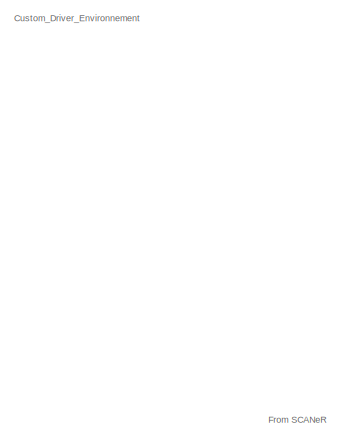
[diagram: root canvas - part 1/20, top left region]
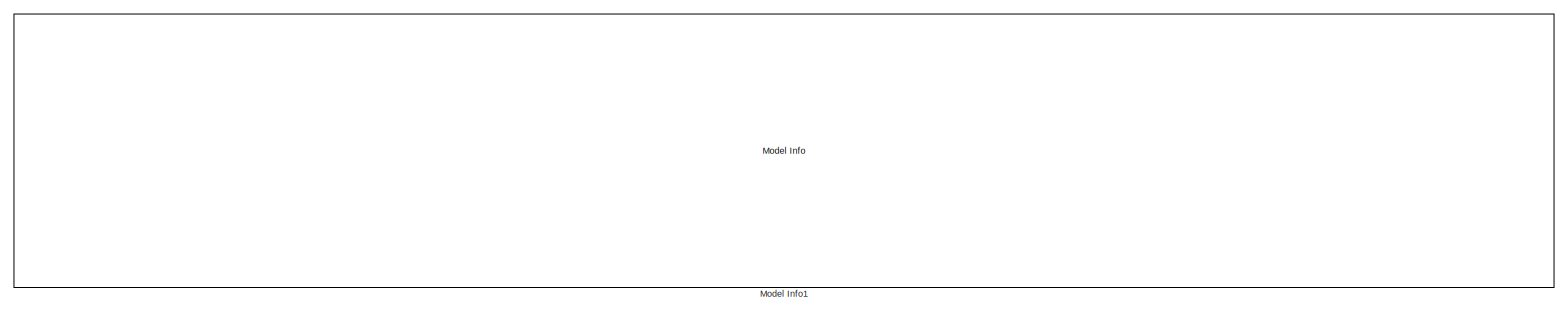
[diagram: root canvas - part 2/20, top left region]
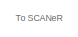
[diagram: root canvas - part 3/20, top right region]
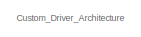
[diagram: root canvas - part 4/20, top left region]
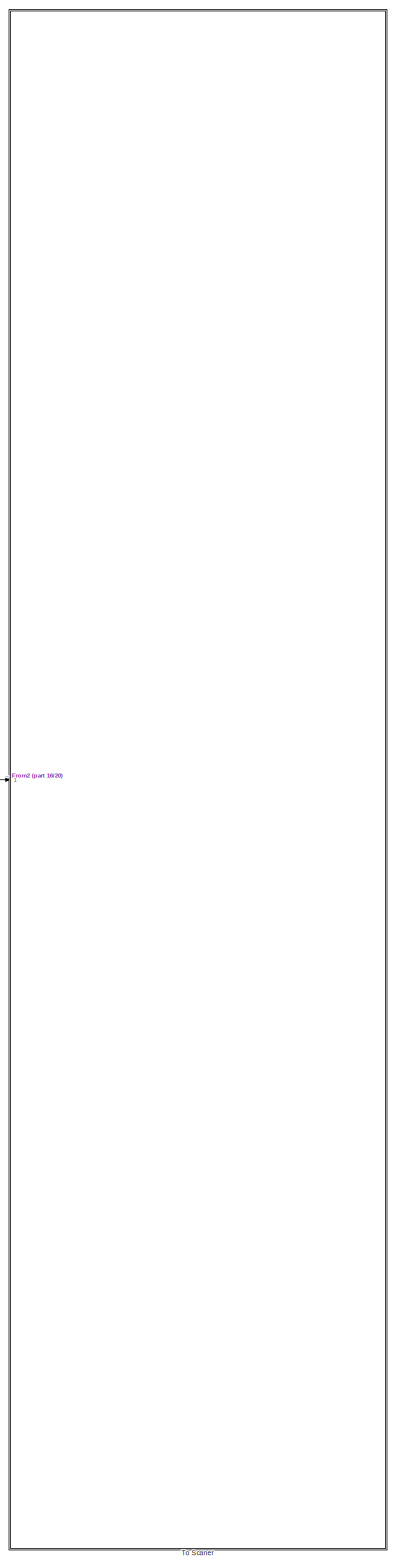
[diagram: root canvas - part 5/20, right side, full height]
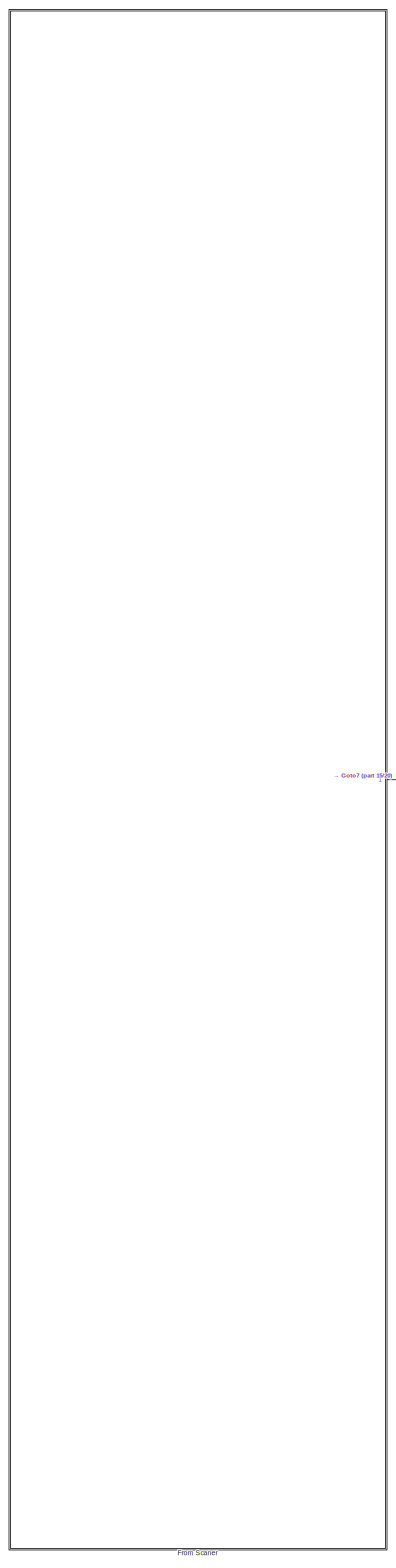
[diagram: root canvas - part 6/20, left side, full height]
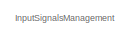
[diagram: root canvas - part 7/20, top left region]
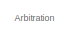
[diagram: root canvas - part 8/20, top right region]
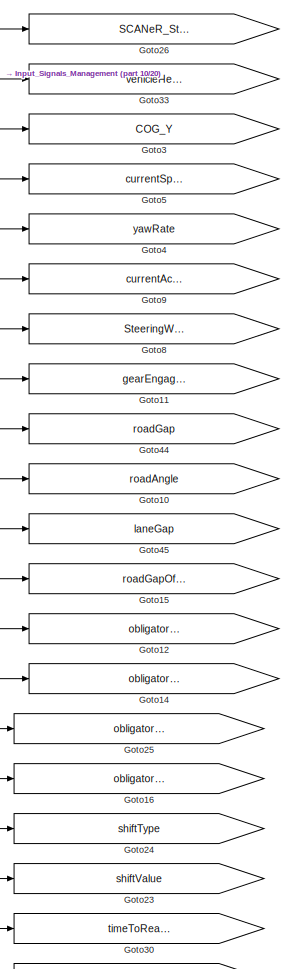
[diagram: root canvas - part 9/20, central region]
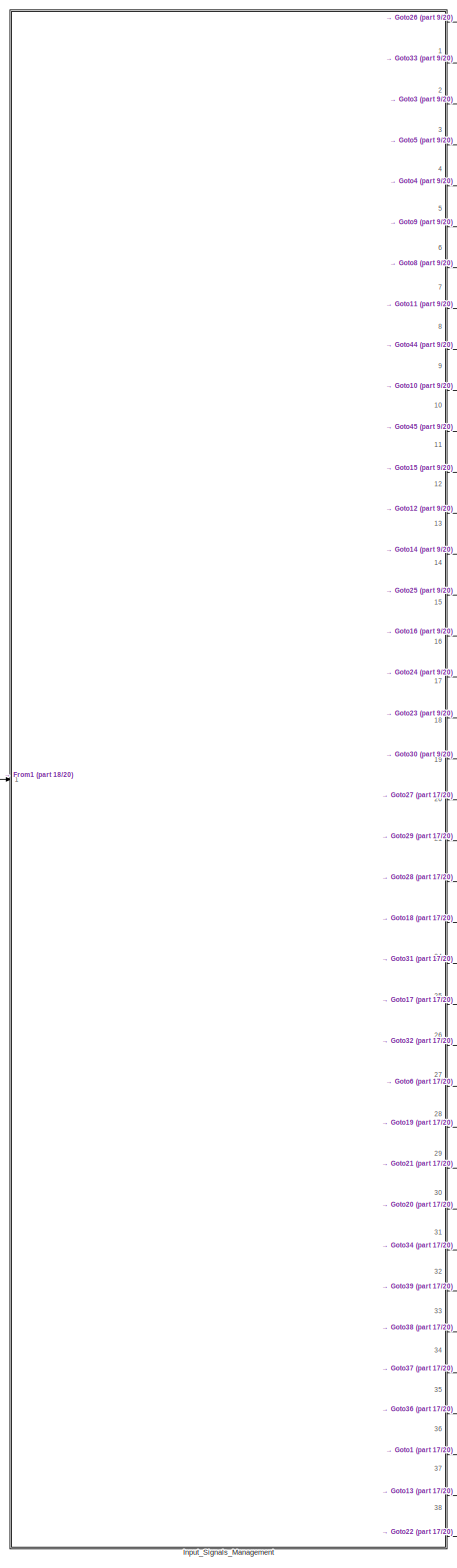
[diagram: root canvas - part 10/20, left side, full height]
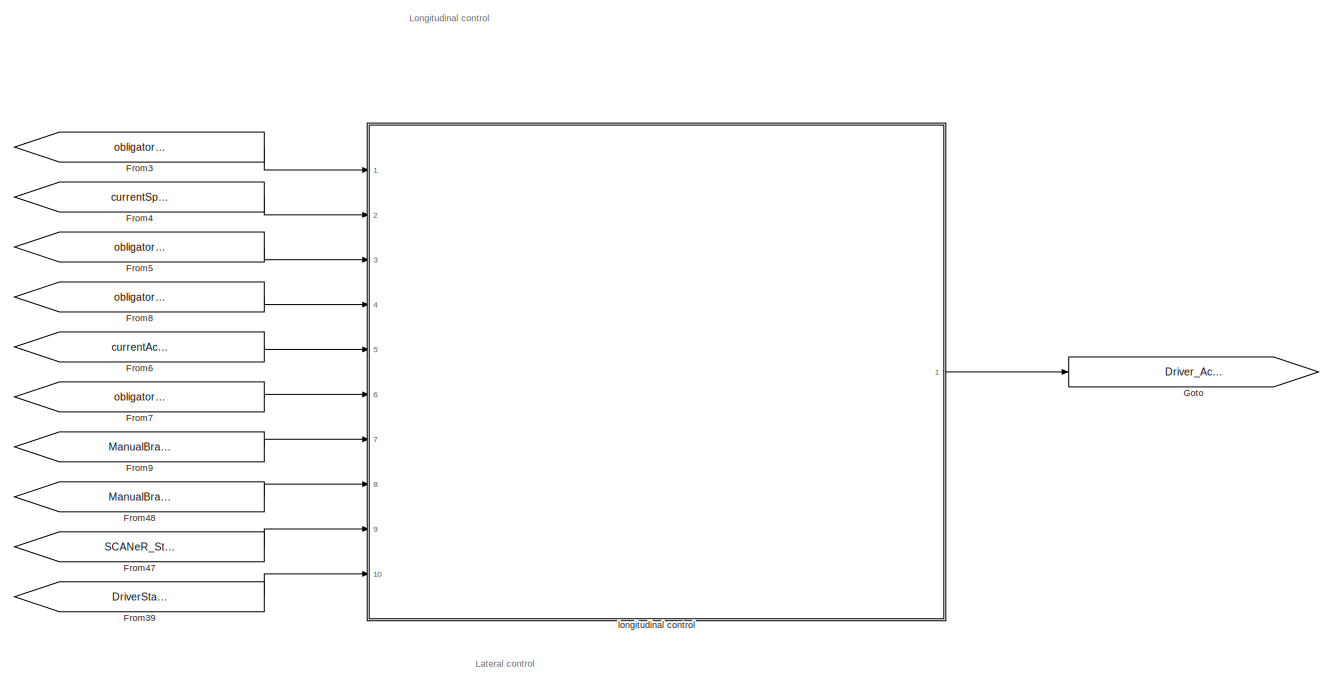
[diagram: root canvas - part 11/20, central region]
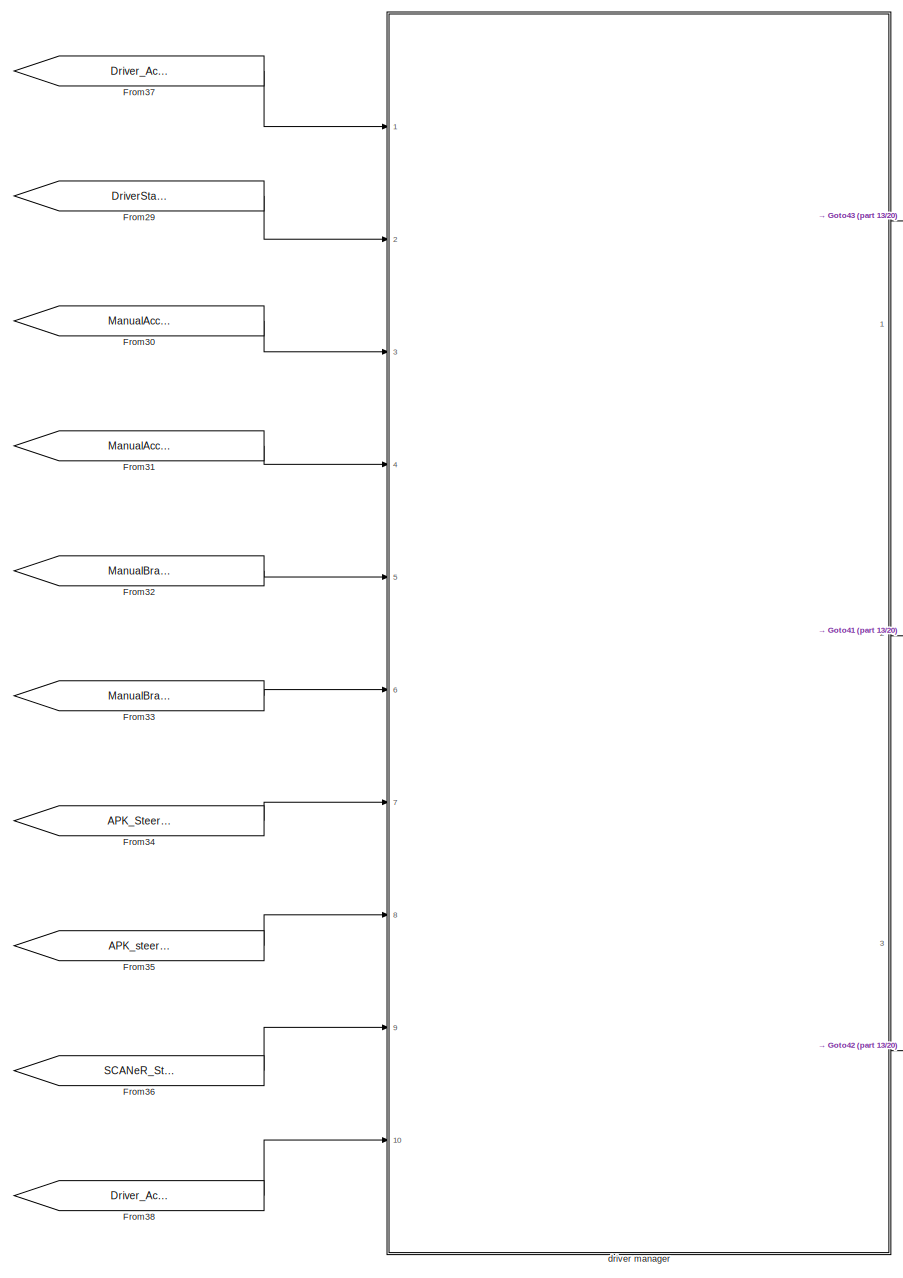
[diagram: root canvas - part 12/20, middle right region]
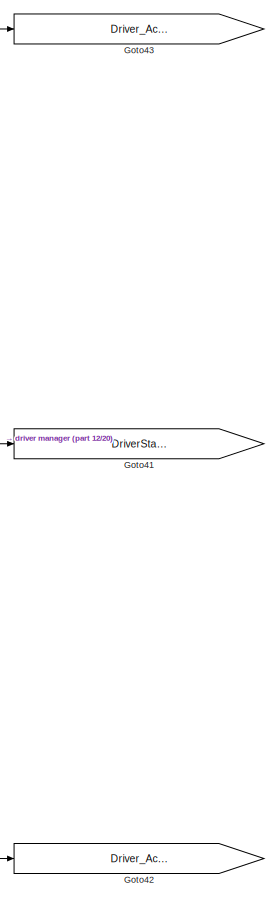
[diagram: root canvas - part 13/20, middle right region]
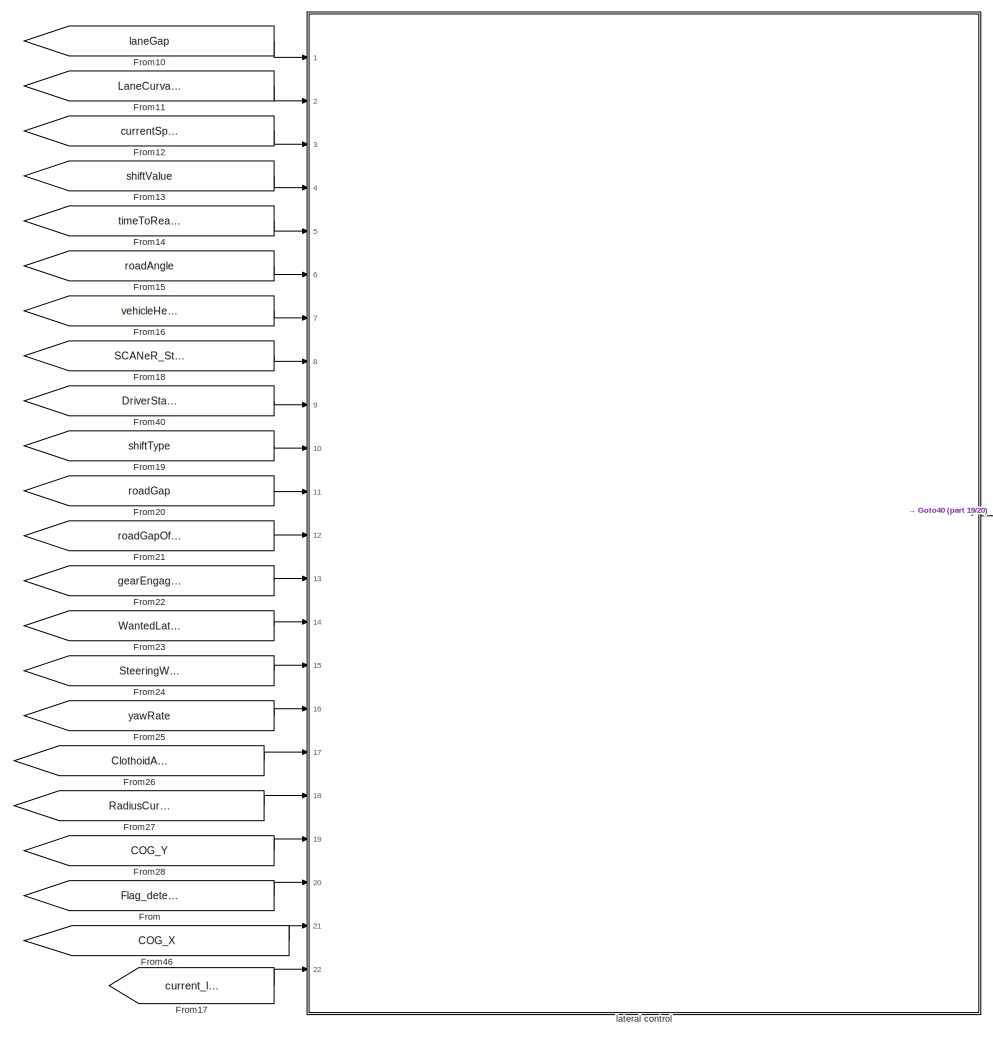
[diagram: root canvas - part 14/20, bottom center region]
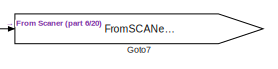
[diagram: root canvas - part 15/20, middle left region]
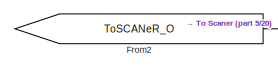
[diagram: root canvas - part 16/20, middle right region]
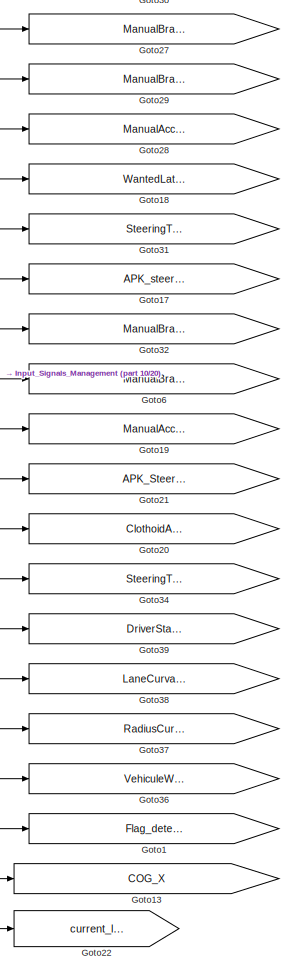
[diagram: root canvas - part 17/20, bottom center region]
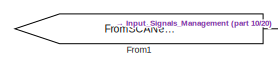
[diagram: root canvas - part 18/20, middle left region]
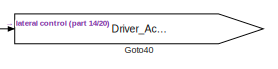
[diagram: root canvas - part 19/20, bottom center region]
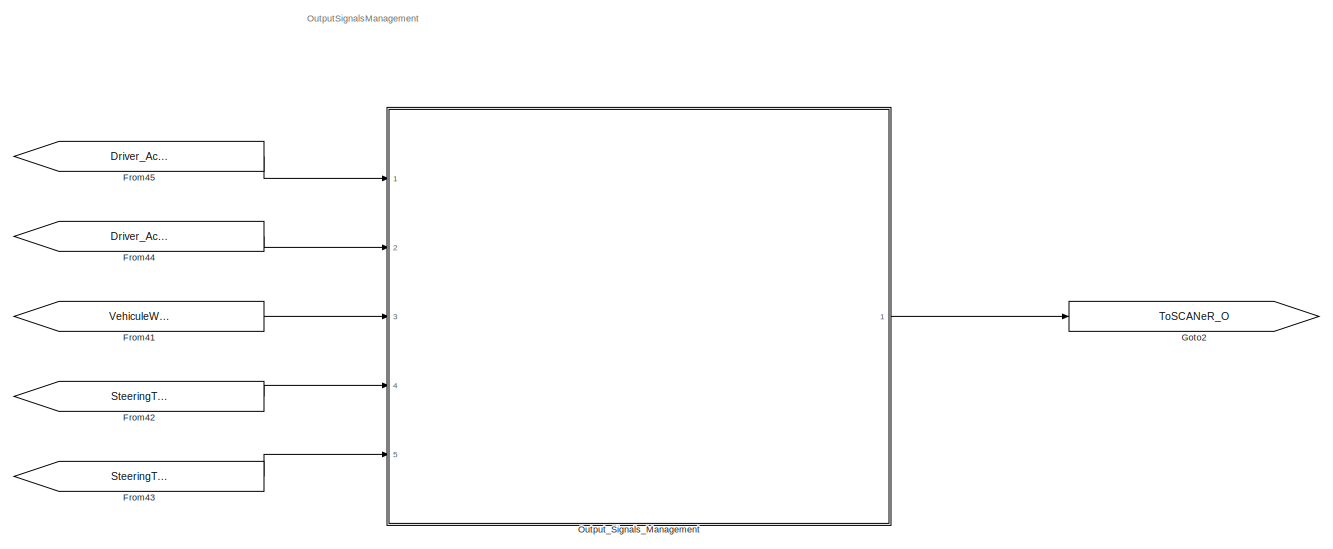
[diagram: root canvas - part 20/20, bottom right region]
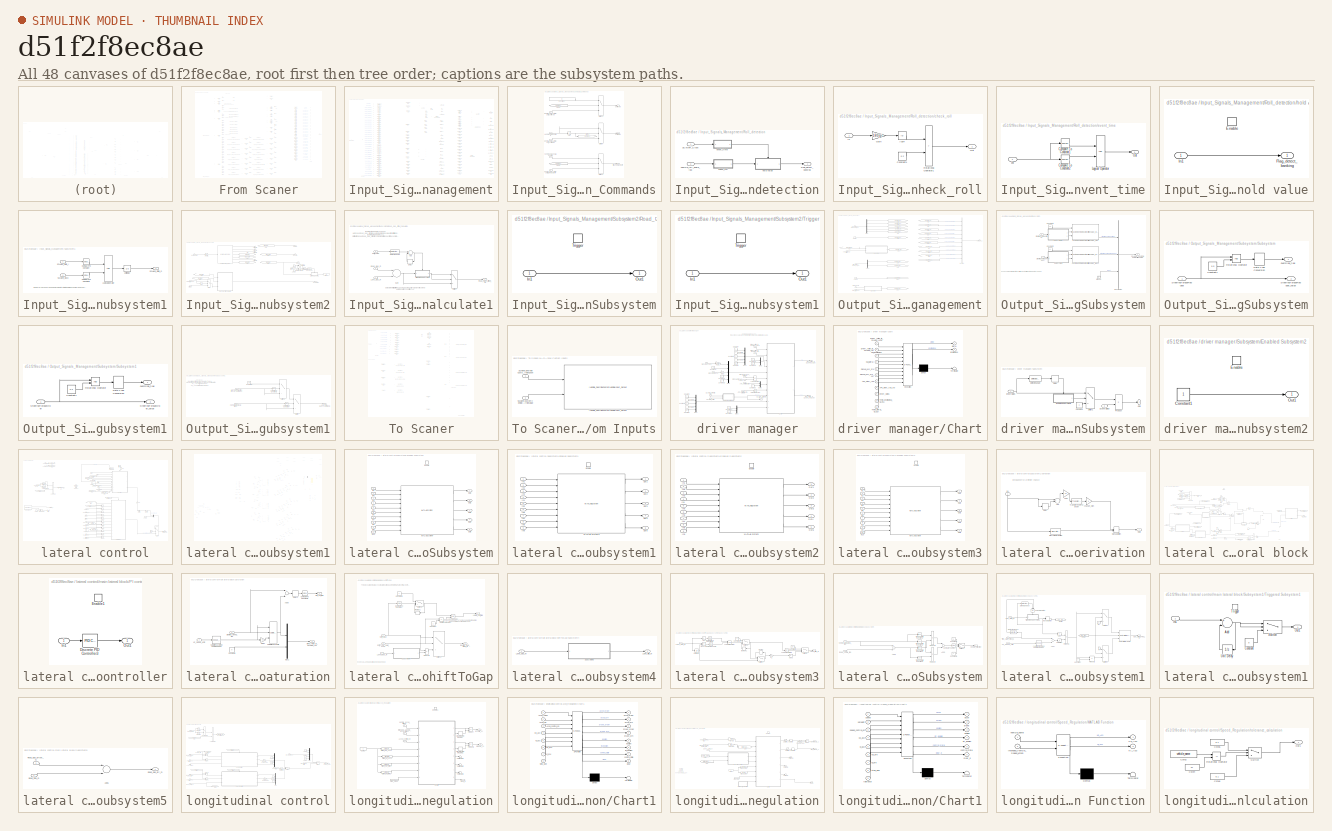
[diagram: thumbnail index - all 48 canvases of the model, root first then tree order]
MODEL slx_d51f2f8ec8ae
KIND model
CONFIG AbsTol = auto
CONFIG EnableMultiTasking = on
CONFIG FixedStep = 0.01
CONFIG MaxStep = auto
CONFIG MinStep = auto
CONFIG RelTol = 1e-3
CONFIG SampleTimeConstraint = Unconstrained
CONFIG Solver = FixedStepDiscrete
CONFIG SolverName = FixedStepDiscrete
CONFIG StartTime = 0.0
CONFIG StopTime = inf
BLOCK [From] From
  GotoTag = Flag_detect_banking
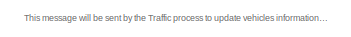
[diagram: From Scaner - part 1/13, top left region]
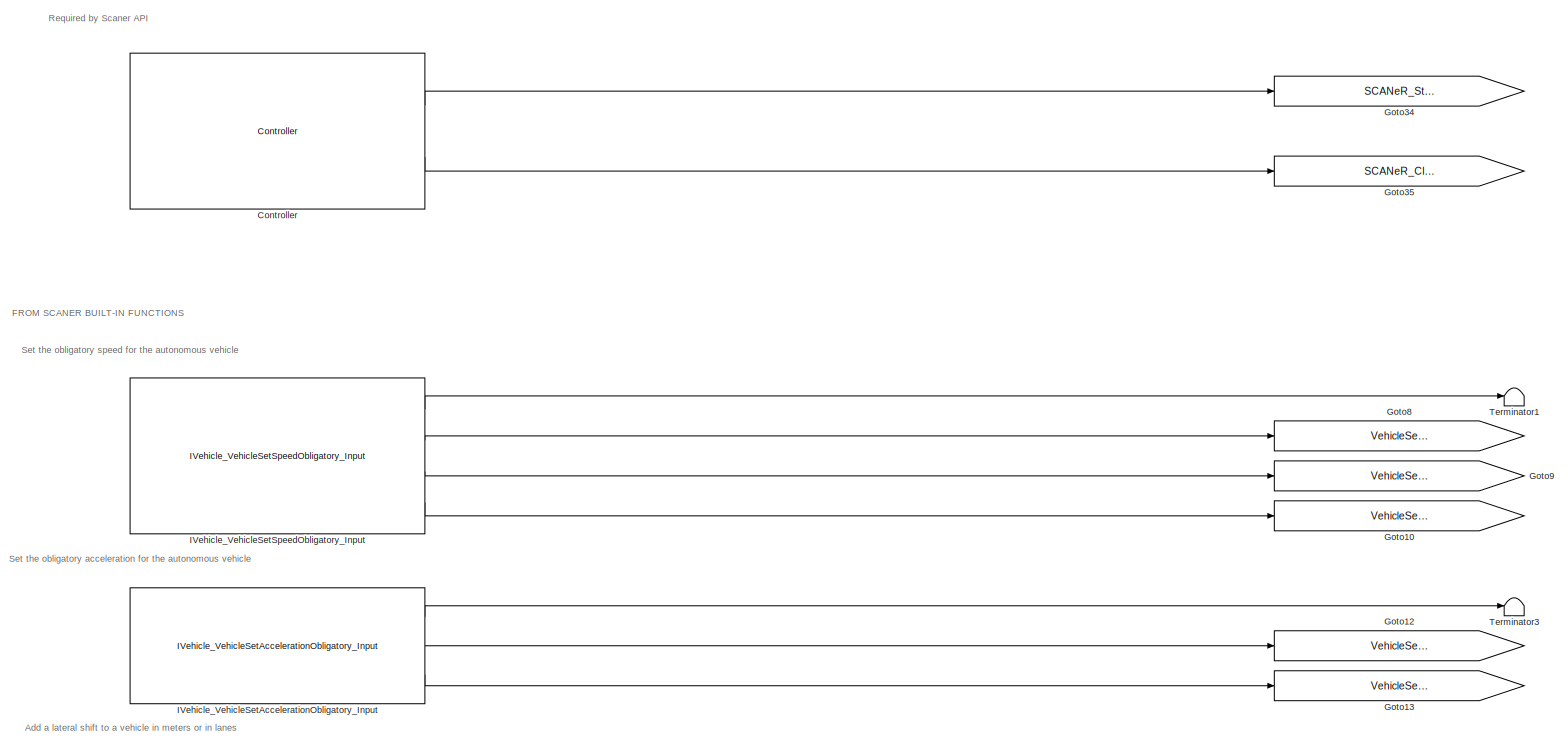
[diagram: From Scaner - part 2/13, top center region]
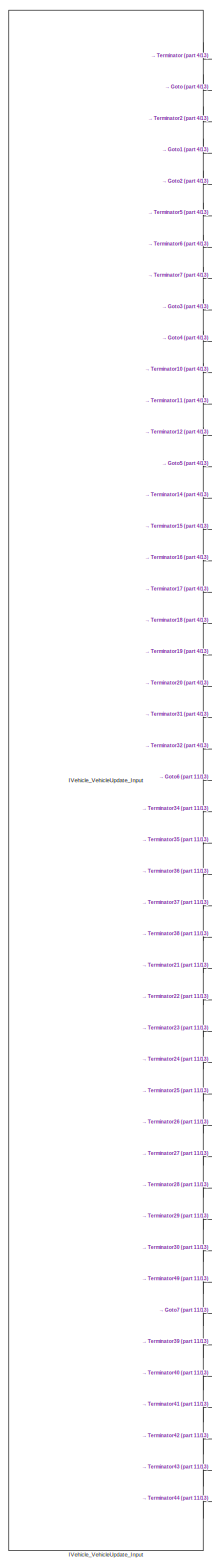
[diagram: From Scaner - part 3/13, left side, full height]
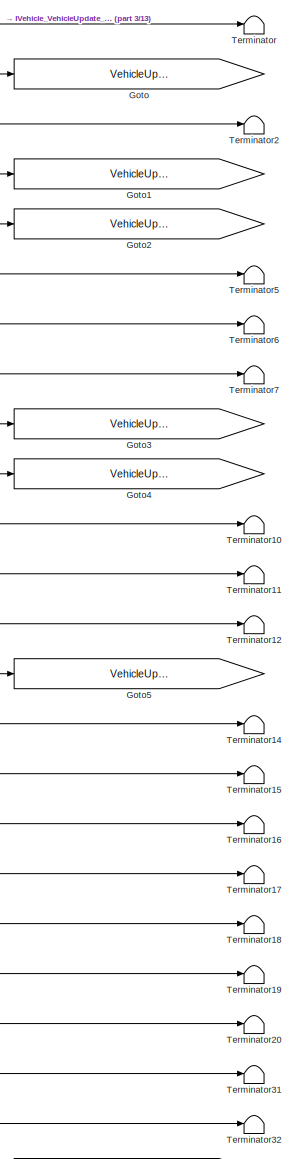
[diagram: From Scaner - part 4/13, top left region]
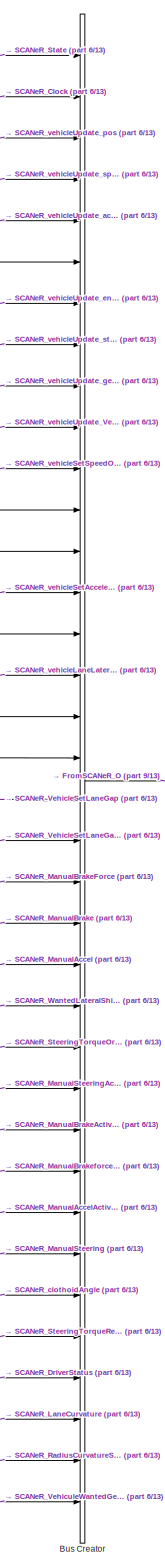
[diagram: From Scaner - part 5/13, middle right region]
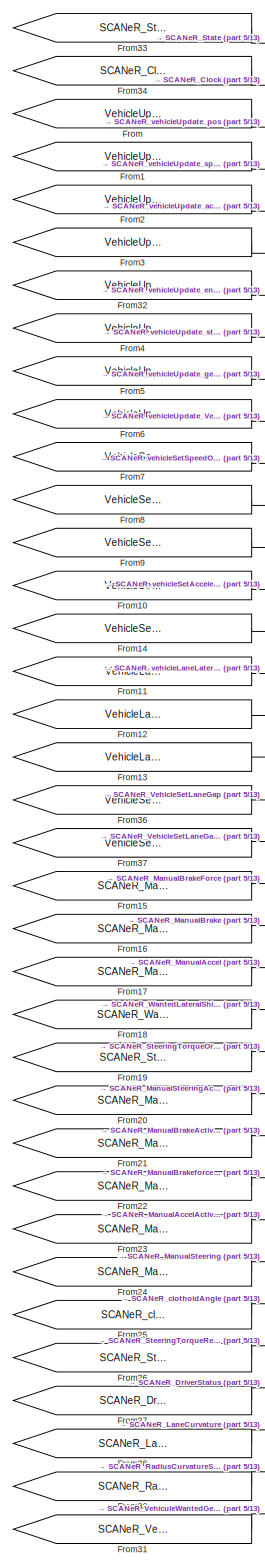
[diagram: From Scaner - part 6/13, middle right region]
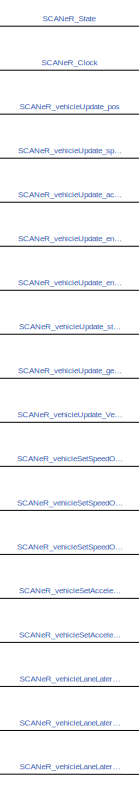
[diagram: From Scaner - part 7/13, top right region]
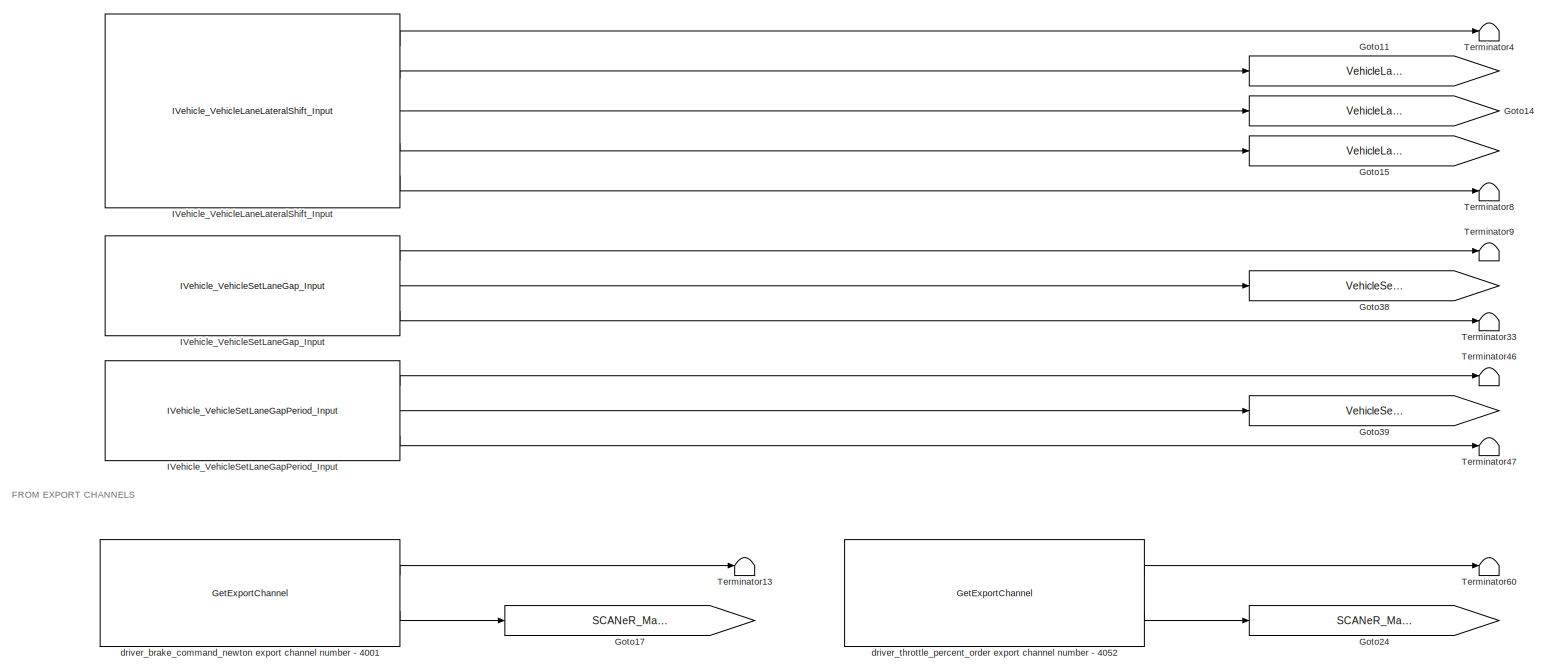
[diagram: From Scaner - part 8/13, central region]
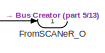
[diagram: From Scaner - part 9/13, middle right region]
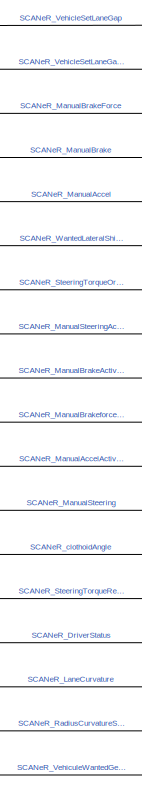
[diagram: From Scaner - part 10/13, middle right region]
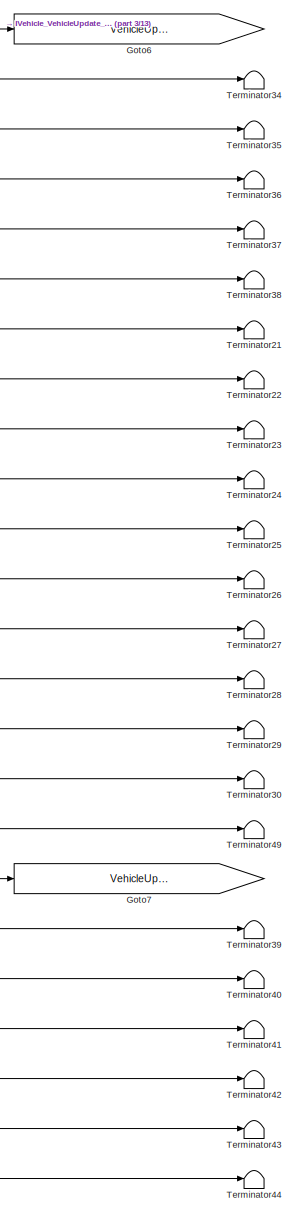
[diagram: From Scaner - part 11/13, bottom left region]
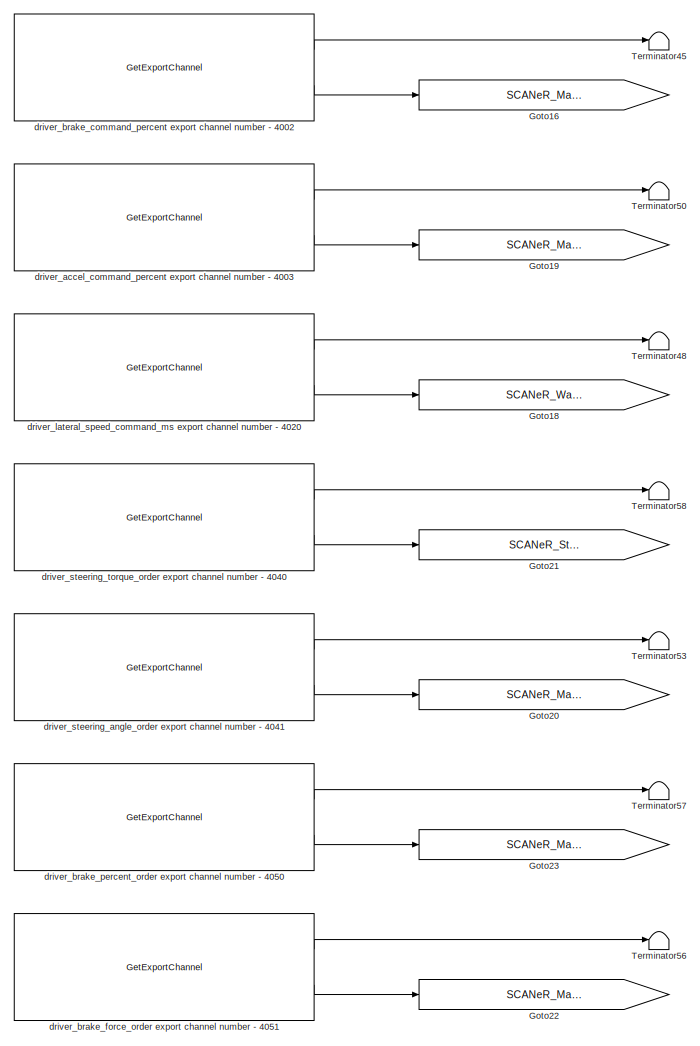
[diagram: From Scaner - part 12/13, bottom center region]
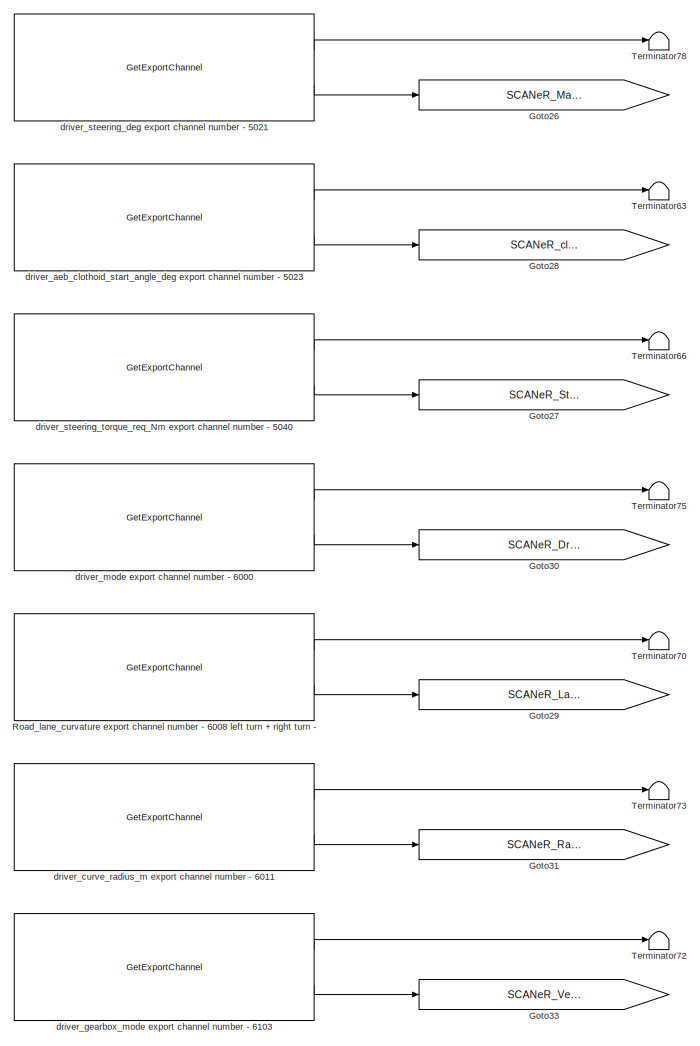
[diagram: From Scaner - part 13/13, bottom center region]
BLOCK [SubSystem] From Scaner
  Ports = [0, 1]
  RequestExecContextInheritance = off
  Variant = off
BLOCK [BusCreator] From Scaner/Bus Creator
  DisplayOption = bar
  InheritFromInputs = on
  Inputs = 'SCANeR_State','SCANeR_Clock','SCANeR_vehicleUpdate_pos','SCANeR_vehicleUpdate_speed','SCANeR_vehicleUpdate_accel','SCANeR_vehicleUpdate_engineStatus','SCANeR_vehicleUpdate_engineSpeed','SCANeR_vehicleUpdate_steeringWheelAngle','SCANeR_vehicleUpdate_gearEngaged','SCANeR_vehicleUpdate_VehicleRoadInfo','SCANeR_vehicleSetSpeedObligatory_speed','SCANeR_vehicleSetSpeedObligatory_state','SCANeR_vehicleS...<+773ch>
  OutDataTypeStr = Bus: Bus_FromSCANeR
  Ports = [36, 1]
BLOCK [Reference] From Scaner/Controller  REF=SCANeR_API/Controller
  Ports = [0, 2]
  Priority = 1
  SourceBlock = SCANeR_API/Controller
BLOCK [From] From Scaner/From
  GotoTag = VehicleUpdate_pos
BLOCK [From] From Scaner/From1
  GotoTag = VehicleUpdate_speed
BLOCK [From] From Scaner/From10
  GotoTag = VehicleSetAccelerationObligatory_acceleration
BLOCK [From] From Scaner/From11
  GotoTag = VehicleLaneLateralShift_shiftType
BLOCK [From] From Scaner/From12
  GotoTag = VehicleLaneLateralShift_shiftValue
BLOCK [From] From Scaner/From13
  GotoTag = VehicleLaneLateralShift_timeToReactShift
BLOCK [From] From Scaner/From14
  GotoTag = VehicleSetAccelerationObligatory_state
BLOCK [From] From Scaner/From15
  GotoTag = SCANeR_ManualBrakeForce
BLOCK [From] From Scaner/From16
  GotoTag = SCANeR_ManualBrake
BLOCK [From] From Scaner/From17
  GotoTag = SCANeR_ManualAccel
BLOCK [From] From Scaner/From18
  GotoTag = SCANeR_WantedLateralShiftSpeed
BLOCK [From] From Scaner/From19
  GotoTag = SCANeR_SteeringTorqueOrder
BLOCK [From] From Scaner/From2
  GotoTag = VehicleUpdate_accel
BLOCK [From] From Scaner/From20
  GotoTag = SCANeR_ManualSteeringActivate
BLOCK [From] From Scaner/From21
  GotoTag = SCANeR_ManualBrakeActivate
BLOCK [From] From Scaner/From22
  GotoTag = SCANeR_ManualBrakeforceActivate
BLOCK [From] From Scaner/From23
  GotoTag = SCANeR_ManualAccelActivate
BLOCK [From] From Scaner/From24
  GotoTag = SCANeR_ManualSteering
BLOCK [From] From Scaner/From25
  GotoTag = SCANeR_clothoidAngle
BLOCK [From] From Scaner/From26
  GotoTag = SCANeR_SteeringTorqueRequest
BLOCK [From] From Scaner/From27
  GotoTag = SCANeR_DriverStatus
BLOCK [From] From Scaner/From28
  GotoTag = SCANeR_LaneCurvature
BLOCK [From] From Scaner/From3
  GotoTag = VehicleUpdate_engineStatus
BLOCK [From] From Scaner/From30
  GotoTag = SCANeR_RadiusCurvatureSetPoint
BLOCK [From] From Scaner/From31
  GotoTag = SCANeR_VehiculeWantedGearBox
BLOCK [From] From Scaner/From32
  GotoTag = VehicleUpdate_engineSpeed
BLOCK [From] From Scaner/From33
  GotoTag = SCANeR_State
BLOCK [From] From Scaner/From34
  GotoTag = SCANeR_Clock
BLOCK [From] From Scaner/From36
  GotoTag = VehicleSetLaneGap
BLOCK [From] From Scaner/From37
  GotoTag = VehicleSetLaneGapPeriod
BLOCK [From] From Scaner/From4
  GotoTag = VehicleUpdate_steeringWheelAngle
BLOCK [From] From Scaner/From5
  GotoTag = VehicleUpdate_gearEngaged
BLOCK [From] From Scaner/From6
  GotoTag = VehicleUpdate_VehicleRoadInfo
BLOCK [From] From Scaner/From7
  GotoTag = VehicleSetSpeedObligatory_speed
BLOCK [From] From Scaner/From8
  GotoTag = VehicleSetSpeedObligatory_state
BLOCK [From] From Scaner/From9
  GotoTag = VehicleSetSpeedObligatory_smoothingTime
BLOCK [Outport] From Scaner/FromSCANeR_O
  AttributesFormatString = %<OutDataTypeStr>
  IconDisplay = Port number
  OutDataTypeStr = Bus: Bus_FromSCANeR
BLOCK [Goto] From Scaner/Goto
  GotoTag = VehicleUpdate_pos
BLOCK [Goto] From Scaner/Goto1
  GotoTag = VehicleUpdate_speed
BLOCK [Goto] From Scaner/Goto10
  GotoTag = VehicleSetSpeedObligatory_smoothingTime
BLOCK [Goto] From Scaner/Goto11
  GotoTag = VehicleLaneLateralShift_shiftType
BLOCK [Goto] From Scaner/Goto12
  GotoTag = VehicleSetAccelerationObligatory_acceleration
BLOCK [Goto] From Scaner/Goto13
  GotoTag = VehicleSetAccelerationObligatory_state
BLOCK [Goto] From Scaner/Goto14
  GotoTag = VehicleLaneLateralShift_shiftValue
BLOCK [Goto] From Scaner/Goto15
  GotoTag = VehicleLaneLateralShift_timeToReactShift
BLOCK [Goto] From Scaner/Goto16
  GotoTag = SCANeR_ManualBrake
BLOCK [Goto] From Scaner/Goto17
  GotoTag = SCANeR_ManualBrakeForce
BLOCK [Goto] From Scaner/Goto18
  GotoTag = SCANeR_WantedLateralShiftSpeed
BLOCK [Goto] From Scaner/Goto19
  GotoTag = SCANeR_ManualAccel
BLOCK [Goto] From Scaner/Goto2
  GotoTag = VehicleUpdate_accel
BLOCK [Goto] From Scaner/Goto20
  GotoTag = SCANeR_ManualSteeringActivate
BLOCK [Goto] From Scaner/Goto21
  GotoTag = SCANeR_SteeringTorqueOrder
BLOCK [Goto] From Scaner/Goto22
  GotoTag = SCANeR_ManualBrakeforceActivate
BLOCK [Goto] From Scaner/Goto23
  GotoTag = SCANeR_ManualBrakeActivate
BLOCK [Goto] From Scaner/Goto24
  GotoTag = SCANeR_ManualAccelActivate
BLOCK [Goto] From Scaner/Goto26
  GotoTag = SCANeR_ManualSteering
BLOCK [Goto] From Scaner/Goto27
  GotoTag = SCANeR_SteeringTorqueRequest
BLOCK [Goto] From Scaner/Goto28
  GotoTag = SCANeR_clothoidAngle
BLOCK [Goto] From Scaner/Goto29
  GotoTag = SCANeR_LaneCurvature
BLOCK [Goto] From Scaner/Goto3
  GotoTag = VehicleUpdate_engineStatus
BLOCK [Goto] From Scaner/Goto30
  GotoTag = SCANeR_DriverStatus
BLOCK [Goto] From Scaner/Goto31
  GotoTag = SCANeR_RadiusCurvatureSetPoint
BLOCK [Goto] From Scaner/Goto33
  GotoTag = SCANeR_VehiculeWantedGearBox
BLOCK [Goto] From Scaner/Goto34
  GotoTag = SCANeR_State
BLOCK [Goto] From Scaner/Goto35
  GotoTag = SCANeR_Clock
BLOCK [Goto] From Scaner/Goto38
  GotoTag = VehicleSetLaneGap
BLOCK [Goto] From Scaner/Goto39
  GotoTag = VehicleSetLaneGapPeriod
BLOCK [Goto] From Scaner/Goto4
  GotoTag = VehicleUpdate_engineSpeed
BLOCK [Goto] From Scaner/Goto5
  GotoTag = VehicleUpdate_steeringWheelAngle
BLOCK [Goto] From Scaner/Goto6
  GotoTag = VehicleUpdate_gearEngaged
BLOCK [Goto] From Scaner/Goto7
  GotoTag = VehicleUpdate_VehicleRoadInfo
BLOCK [Goto] From Scaner/Goto8
  GotoTag = VehicleSetSpeedObligatory_speed
BLOCK [Goto] From Scaner/Goto9
  GotoTag = VehicleSetSpeedObligatory_state
BLOCK [Reference] From Scaner/IVehicle_VehicleLaneLateralShift_Input  REF=SCANeR_API/Network inputs/IVehicle/IVehicle_VehicleLaneLateralShift_Input
  Ports = [0, 5]
  Priority = 2
  SourceBlock = SCANeR_API/Network inputs/IVehicle/IVehicle_VehicleLaneLateralShift_Input
  SourceType = IVehicle_VehicleLaneLateralShift_Input
BLOCK [Reference] From Scaner/IVehicle_VehicleSetAccelerationObligatory_Input  REF=SCANeR_API/Network inputs/IVehicle/IVehicle_VehicleSetAccelerationObligatory_Input
  Ports = [0, 3]
  Priority = 2
  SourceBlock = SCANeR_API/Network inputs/IVehicle/IVehicle_VehicleSetAccelerationObligatory_Input
  SourceType = IVehicle_VehicleSetAccelerationObligatory_Input
BLOCK [Reference] From Scaner/IVehicle_VehicleSetLaneGapPeriod_Input  REF=SCANeR_API/Network inputs/IVehicle/IVehicle_VehicleSetLaneGapPeriod_Input
  Ports = [0, 3]
  Priority = 2
  SourceBlock = SCANeR_API/Network inputs/IVehicle/IVehicle_VehicleSetLaneGapPeriod_Input
  SourceType = IVehicle_VehicleSetLaneGapPeriod_Input
BLOCK [Reference] From Scaner/IVehicle_VehicleSetLaneGap_Input  REF=SCANeR_API/Network inputs/IVehicle/IVehicle_VehicleSetLaneGap_Input
  Ports = [0, 3]
  Priority = 2
  SourceBlock = SCANeR_API/Network inputs/IVehicle/IVehicle_VehicleSetLaneGap_Input
  SourceType = IVehicle_VehicleSetLaneGap_Input
BLOCK [Reference] From Scaner/IVehicle_VehicleSetSpeedObligatory_Input  REF=SCANeR_API/Network inputs/IVehicle/IVehicle_VehicleSetSpeedObligatory_Input
  Ports = [0, 4]
  Priority = 2
  SourceBlock = SCANeR_API/Network inputs/IVehicle/IVehicle_VehicleSetSpeedObligatory_Input
  SourceType = IVehicle_VehicleSetSpeedObligatory_Input
BLOCK [Reference] From Scaner/IVehicle_VehicleUpdate_Input  REF=SCANeR_API/Network inputs/IVehicle/IVehicle_VehicleUpdate_Input
  Ports = [0, 47]
  Priority = 2
  SourceBlock = SCANeR_API/Network inputs/IVehicle/IVehicle_VehicleUpdate_Input
  SourceType = IVehicle_VehicleUpdate_Input
BLOCK [Reference] From Scaner/Road_lane_curvature export channel number - 6008 left turn + right turn -  REF=SCANeR_API/GetExportChannel
  Ports = [0, 2]
  Priority = 0
  SourceBlock = SCANeR_API/GetExportChannel
BLOCK [Terminator] From Scaner/Terminator
BLOCK [Terminator] From Scaner/Terminator1
BLOCK [Terminator] From Scaner/Terminator10
BLOCK [Terminator] From Scaner/Terminator11
BLOCK [Terminator] From Scaner/Terminator12
BLOCK [Terminator] From Scaner/Terminator13
BLOCK [Terminator] From Scaner/Terminator14
BLOCK [Terminator] From Scaner/Terminator15
BLOCK [Terminator] From Scaner/Terminator16
BLOCK [Terminator] From Scaner/Terminator17
BLOCK [Terminator] From Scaner/Terminator18
BLOCK [Terminator] From Scaner/Terminator19
BLOCK [Terminator] From Scaner/Terminator2
BLOCK [Terminator] From Scaner/Terminator20
BLOCK [Terminator] From Scaner/Terminator21
BLOCK [Terminator] From Scaner/Terminator22
BLOCK [Terminator] From Scaner/Terminator23
BLOCK [Terminator] From Scaner/Terminator24
BLOCK [Terminator] From Scaner/Terminator25
BLOCK [Terminator] From Scaner/Terminator26
BLOCK [Terminator] From Scaner/Terminator27
BLOCK [Terminator] From Scaner/Terminator28
BLOCK [Terminator] From Scaner/Terminator29
BLOCK [Terminator] From Scaner/Terminator3
BLOCK [Terminator] From Scaner/Terminator30
BLOCK [Terminator] From Scaner/Terminator31
BLOCK [Terminator] From Scaner/Terminator32
BLOCK [Terminator] From Scaner/Terminator33
BLOCK [Terminator] From Scaner/Terminator34
BLOCK [Terminator] From Scaner/Terminator35
BLOCK [Terminator] From Scaner/Terminator36
BLOCK [Terminator] From Scaner/Terminator37
BLOCK [Terminator] From Scaner/Terminator38
BLOCK [Terminator] From Scaner/Terminator39
BLOCK [Terminator] From Scaner/Terminator4
BLOCK [Terminator] From Scaner/Terminator40
BLOCK [Terminator] From Scaner/Terminator41
BLOCK [Terminator] From Scaner/Terminator42
BLOCK [Terminator] From Scaner/Terminator43
BLOCK [Terminator] From Scaner/Terminator44
BLOCK [Terminator] From Scaner/Terminator45
BLOCK [Terminator] From Scaner/Terminator46
BLOCK [Terminator] From Scaner/Terminator47
BLOCK [Terminator] From Scaner/Terminator48
BLOCK [Terminator] From Scaner/Terminator49
BLOCK [Terminator] From Scaner/Terminator5
BLOCK [Terminator] From Scaner/Terminator50
BLOCK [Terminator] From Scaner/Terminator53
BLOCK [Terminator] From Scaner/Terminator56
BLOCK [Terminator] From Scaner/Terminator57
BLOCK [Terminator] From Scaner/Terminator58
BLOCK [Terminator] From Scaner/Terminator6
BLOCK [Terminator] From Scaner/Terminator60
BLOCK [Terminator] From Scaner/Terminator63
BLOCK [Terminator] From Scaner/Terminator66
BLOCK [Terminator] From Scaner/Terminator7
BLOCK [Terminator] From Scaner/Terminator70
BLOCK [Terminator] From Scaner/Terminator72
BLOCK [Terminator] From Scaner/Terminator73
BLOCK [Terminator] From Scaner/Terminator75
BLOCK [Terminator] From Scaner/Terminator78
BLOCK [Terminator] From Scaner/Terminator8
BLOCK [Terminator] From Scaner/Terminator9
BLOCK [Reference] From Scaner/driver_accel_command_percent export channel number - 4003  REF=SCANeR_API/GetExportChannel
  Ports = [0, 2]
  Priority = 0
  SourceBlock = SCANeR_API/GetExportChannel
BLOCK [Reference] From Scaner/driver_aeb_clothoid_start_angle_deg export channel number - 5023  REF=SCANeR_API/GetExportChannel
  Ports = [0, 2]
  Priority = 0
  SourceBlock = SCANeR_API/GetExportChannel
BLOCK [Reference] From Scaner/driver_brake_command_newton export channel number - 4001  REF=SCANeR_API/GetExportChannel
  Ports = [0, 2]
  Priority = 0
  SourceBlock = SCANeR_API/GetExportChannel
BLOCK [Reference] From Scaner/driver_brake_command_percent export channel number - 4002  REF=SCANeR_API/GetExportChannel
  Ports = [0, 2]
  Priority = 0
  SourceBlock = SCANeR_API/GetExportChannel
BLOCK [Reference] From Scaner/driver_brake_force_order export channel number - 4051  REF=SCANeR_API/GetExportChannel
  Ports = [0, 2]
  Priority = 0
  SourceBlock = SCANeR_API/GetExportChannel
BLOCK [Reference] From Scaner/driver_brake_percent_order export channel number - 4050  REF=SCANeR_API/GetExportChannel
  Ports = [0, 2]
  Priority = 0
  SourceBlock = SCANeR_API/GetExportChannel
BLOCK [Reference] From Scaner/driver_curve_radius_m export channel number - 6011  REF=SCANeR_API/GetExportChannel
  Ports = [0, 2]
  Priority = 0
  SourceBlock = SCANeR_API/GetExportChannel
BLOCK [Reference] From Scaner/driver_gearbox_mode export channel number - 6103  REF=SCANeR_API/GetExportChannel
  Ports = [0, 2]
  Priority = 0
  SourceBlock = SCANeR_API/GetExportChannel
BLOCK [Reference] From Scaner/driver_lateral_speed_command_ms export channel number - 4020  REF=SCANeR_API/GetExportChannel
  Ports = [0, 2]
  Priority = 0
  SourceBlock = SCANeR_API/GetExportChannel
BLOCK [Reference] From Scaner/driver_mode export channel number - 6000  REF=SCANeR_API/GetExportChannel
  Ports = [0, 2]
  Priority = 0
  SourceBlock = SCANeR_API/GetExportChannel
BLOCK [Reference] From Scaner/driver_steering_angle_order export channel number - 4041  REF=SCANeR_API/GetExportChannel
  Ports = [0, 2]
  Priority = 0
  SourceBlock = SCANeR_API/GetExportChannel
BLOCK [Reference] From Scaner/driver_steering_deg export channel number - 5021  REF=SCANeR_API/GetExportChannel
  Ports = [0, 2]
  Priority = 0
  SourceBlock = SCANeR_API/GetExportChannel
BLOCK [Reference] From Scaner/driver_steering_torque_order export channel number - 4040  REF=SCANeR_API/GetExportChannel
  Ports = [0, 2]
  Priority = 0
  SourceBlock = SCANeR_API/GetExportChannel
BLOCK [Reference] From Scaner/driver_steering_torque_req_Nm export channel number - 5040  REF=SCANeR_API/GetExportChannel
  Ports = [0, 2]
  Priority = 0
  SourceBlock = SCANeR_API/GetExportChannel
BLOCK [Reference] From Scaner/driver_throttle_percent_order export channel number - 4052  REF=SCANeR_API/GetExportChannel
  Ports = [0, 2]
  Priority = 0
  SourceBlock = SCANeR_API/GetExportChannel
BLOCK [From] From1
  GotoTag = FromSCANeR_I
BLOCK [From] From10
  GotoTag = laneGap
BLOCK [From] From11
  GotoTag = LaneCurvature
BLOCK [From] From12
  GotoTag = currentSpeed
BLOCK [From] From13
  GotoTag = shiftValue
BLOCK [From] From14
  GotoTag = timeToReactShift
BLOCK [From] From15
  GotoTag = roadAngle
BLOCK [From] From16
  GotoTag = vehicleHeading
BLOCK [From] From17
  GotoTag = current_lateral_speed
BLOCK [From] From18
  GotoTag = SCANeR_State
BLOCK [From] From19
  GotoTag = shiftType
BLOCK [From] From2
  GotoTag = ToSCANeR_O
BLOCK [From] From20
  GotoTag = roadGap
BLOCK [From] From21
  GotoTag = roadGapOffset
BLOCK [From] From22
  GotoTag = gearEngaged
BLOCK [From] From23
  GotoTag = WantedLateralShiftSpeed
BLOCK [From] From24
  GotoTag = SteeringWheelAngle
BLOCK [From] From25
  GotoTag = yawRate
BLOCK [From] From26
  GotoTag = ClothoidAngle
BLOCK [From] From27
  GotoTag = RadiusCurvatureSetPoint
BLOCK [From] From28
  GotoTag = COG_Y
BLOCK [From] From29
  GotoTag = DriverStatus
BLOCK [From] From3
  GotoTag = obligatorySpeed
BLOCK [From] From30
  GotoTag = ManualAccel
BLOCK [From] From31
  GotoTag = ManualAccelActivate
BLOCK [From] From32
  GotoTag = ManualBrake
BLOCK [From] From33
  GotoTag = ManualBrakeActivate
BLOCK [From] From34
  GotoTag = APK_Steering
BLOCK [From] From35
  GotoTag = APK_steeringActivate
BLOCK [From] From36
  GotoTag = SCANeR_State
BLOCK [From] From37
  GotoTag = Driver_Action_to_SCANeR_Longi
BLOCK [From] From38
  GotoTag = Driver_Action_to_SCANeR_Lat
BLOCK [From] From39
  GotoTag = DriverStatus_O
BLOCK [From] From4
  GotoTag = currentSpeed
BLOCK [From] From40
  GotoTag = DriverStatus_O
BLOCK [From] From41
  GotoTag = VehiculeWantedGearBox
BLOCK [From] From42
  GotoTag = SteeringTorqueOrder
BLOCK [From] From43
  GotoTag = SteeringTorqueRequest
BLOCK [From] From44
  GotoTag = Driver_Action_to_SCANeR_Lat_out
BLOCK [From] From45
  GotoTag = Driver_Action_to_SCANeR_Longi_out
BLOCK [From] From46
  GotoTag = COG_X
BLOCK [From] From47
  GotoTag = SCANeR_State
BLOCK [From] From48
  GotoTag = ManualBrakeforceActivate
BLOCK [From] From5
  GotoTag = obligatorySpeedState
BLOCK [From] From6
  GotoTag = currentAcceleration
BLOCK [From] From7
  GotoTag = obligatoryAccelerationState
BLOCK [From] From8
  GotoTag = obligatoryAcceleration
BLOCK [From] From9
  GotoTag = ManualBrakeForce
BLOCK [Goto] Goto
  GotoTag = Driver_Action_to_SCANeR_Longi
BLOCK [Goto] Goto1
  GotoTag = Flag_detect_banking
BLOCK [Goto] Goto10
  GotoTag = roadAngle
BLOCK [Goto] Goto11
  GotoTag = gearEngaged
BLOCK [Goto] Goto12
  GotoTag = obligatorySpeed
BLOCK [Goto] Goto13
  GotoTag = COG_X
BLOCK [Goto] Goto14
  GotoTag = obligatorySpeedState
BLOCK [Goto] Goto15
  GotoTag = roadGapOffset
BLOCK [Goto] Goto16
  GotoTag = obligatoryAccelerationState
BLOCK [Goto] Goto17
  GotoTag = APK_steeringActivate
BLOCK [Goto] Goto18
  GotoTag = WantedLateralShiftSpeed
BLOCK [Goto] Goto19
  GotoTag = ManualAccelActivate
BLOCK [Goto] Goto2
  GotoTag = ToSCANeR_O
BLOCK [Goto] Goto20
  GotoTag = ClothoidAngle
BLOCK [Goto] Goto21
  GotoTag = APK_Steering
BLOCK [Goto] Goto22
  GotoTag = current_lateral_speed
BLOCK [Goto] Goto23
  GotoTag = shiftValue
BLOCK [Goto] Goto24
  GotoTag = shiftType
BLOCK [Goto] Goto25
  GotoTag = obligatoryAcceleration
BLOCK [Goto] Goto26
  GotoTag = SCANeR_State
BLOCK [Goto] Goto27
  GotoTag = ManualBrakeForce
BLOCK [Goto] Goto28
  GotoTag = ManualAccel
BLOCK [Goto] Goto29
  GotoTag = ManualBrake
BLOCK [Goto] Goto3
  GotoTag = COG_Y
BLOCK [Goto] Goto30
  GotoTag = timeToReactShift
BLOCK [Goto] Goto31
  GotoTag = SteeringTorqueOrder
BLOCK [Goto] Goto32
  GotoTag = ManualBrakeActivate
BLOCK [Goto] Goto33
  GotoTag = vehicleHeading
BLOCK [Goto] Goto34
  GotoTag = SteeringTorqueRequest
BLOCK [Goto] Goto36
  GotoTag = VehiculeWantedGearBox
BLOCK [Goto] Goto37
  GotoTag = RadiusCurvatureSetPoint
BLOCK [Goto] Goto38
  GotoTag = LaneCurvature
BLOCK [Goto] Goto39
  GotoTag = DriverStatus
BLOCK [Goto] Goto4
  GotoTag = yawRate
BLOCK [Goto] Goto40
  GotoTag = Driver_Action_to_SCANeR_Lat
BLOCK [Goto] Goto41
  GotoTag = DriverStatus_O
BLOCK [Goto] Goto42
  GotoTag = Driver_Action_to_SCANeR_Lat_out
BLOCK [Goto] Goto43
  GotoTag = Driver_Action_to_SCANeR_Longi_out
BLOCK [Goto] Goto44
  GotoTag = roadGap
BLOCK [Goto] Goto45
  GotoTag = laneGap
BLOCK [Goto] Goto5
  GotoTag = currentSpeed
BLOCK [Goto] Goto6
  GotoTag = ManualBrakeforceActivate
BLOCK [Goto] Goto7
  GotoTag = FromSCANeR_I
BLOCK [Goto] Goto8
  GotoTag = SteeringWheelAngle
BLOCK [Goto] Goto9
  GotoTag = currentAcceleration
BLOCK [SubSystem] Input_Signals_Management
  Ports = [1, 38]
  RequestExecContextInheritance = off
  Variant = off
BLOCK [Outport] Input_Signals_Management/APK_Steering
  AttributesFormatString = %<Unit>
  IconDisplay = Port number
  Port = 29
BLOCK [Outport] Input_Signals_Management/APK_steeringActivate
  AttributesFormatString = %<Unit>
  IconDisplay = Port number
  Port = 25
BLOCK [BusSelector] Input_Signals_Management/Bus Selector
  OutputSignals = SCANeR_State,SCANeR_Clock,SCANeR_vehicleUpdate_pos,SCANeR_vehicleUpdate_speed,SCANeR_vehicleUpdate_accel,SCANeR_vehicleUpdate_engineStatus,SCANeR_vehicleUpdate_engineSpeed,SCANeR_vehicleUpdate_steeringWheelAngle,SCANeR_vehicleUpdate_gearEngaged,SCANeR_vehicleUpdate_VehicleRoadInfo,SCANeR_vehicleSetSpeedObligatory_speed,SCANeR_vehicleSetSpeedObligatory_state,SCANeR_vehicleSetSpeedObligatory_smoothi...<+701ch>
  Ports = [1, 36]
BLOCK [Outport] Input_Signals_Management/COG_X
  IconDisplay = Port number
  Port = 37
BLOCK [Outport] Input_Signals_Management/COG_Y
  AttributesFormatString = %<Unit>
  IconDisplay = Port number
  Port = 3
BLOCK [Gain] Input_Signals_Management/Degree to Radians
  Gain = pi/180
  OutDataTypeStr = Inherit: Inherit via internal rule
  ParamDataTypeStr = Inherit: Inherit via internal rule
  SaturateOnIntegerOverflow = off
BLOCK [Outport] Input_Signals_Management/DriverStatus
  AttributesFormatString = %<Unit>
  IconDisplay = Port number
  Port = 32
BLOCK [Outport] Input_Signals_Management/Flag_detect_banking
  IconDisplay = Port number
  Port = 36
BLOCK [From] Input_Signals_Management/From
  GotoTag = VehicleUpdate_pos
BLOCK [From] Input_Signals_Management/From1
  GotoTag = VehicleUpdate_speed
BLOCK [From] Input_Signals_Management/From10
  GotoTag = VehicleSetAccelerationObligatory_acceleration
BLOCK [From] Input_Signals_Management/From11
  GotoTag = VehicleSetAccelerationObligatory_state
BLOCK [From] Input_Signals_Management/From12
  GotoTag = VehicleLaneLateralShift_shiftType
BLOCK [From] Input_Signals_Management/From13
  GotoTag = VehicleLaneLateralShift_shiftValue
BLOCK [From] Input_Signals_Management/From14
  GotoTag = VehicleLaneLateralShift_timeToReactShift
BLOCK [From] Input_Signals_Management/From15
  GotoTag = SCANeR_ManualBrakeForce
BLOCK [From] Input_Signals_Management/From16
  GotoTag = SCANeR_ManualBrake
BLOCK [From] Input_Signals_Management/From17
  GotoTag = SCANeR_ManualAccel
BLOCK [From] Input_Signals_Management/From18
  GotoTag = SCANeR_WantedLateralShiftSpeed
BLOCK [From] Input_Signals_Management/From19
  GotoTag = SCANeR_SteeringTorqueOrder
BLOCK [From] Input_Signals_Management/From2
  GotoTag = VehicleUpdate_accel
BLOCK [From] Input_Signals_Management/From20
  GotoTag = SCANeR_ManualSteeringActivate
BLOCK [From] Input_Signals_Management/From21
  GotoTag = SCANeR_ManualBrakeActivate
BLOCK [From] Input_Signals_Management/From22
  GotoTag = SCANeR_ManualBrakeforceActivate
BLOCK [From] Input_Signals_Management/From23
  GotoTag = SCANeR_ManualAccelActivate
BLOCK [From] Input_Signals_Management/From24
  GotoTag = SCANeR_ManualSteering
BLOCK [From] Input_Signals_Management/From25
  GotoTag = SCANeR_clothoidAngle
BLOCK [From] Input_Signals_Management/From26
  GotoTag = SCANeR_SteeringTorqueRequest
BLOCK [From] Input_Signals_Management/From27
  GotoTag = SCANeR_DriverStatus
BLOCK [From] Input_Signals_Management/From28
  GotoTag = SCANeR_LaneCurvature
BLOCK [From] Input_Signals_Management/From29
  GotoTag = VehicleSetLaneGap
BLOCK [From] Input_Signals_Management/From3
  GotoTag = VehicleUpdate_engineStatus
BLOCK [From] Input_Signals_Management/From30
  GotoTag = SCANeR_RadiusCurvatureSetPoint
BLOCK [From] Input_Signals_Management/From31
  GotoTag = SCANeR_VehiculeWantedGearBox
BLOCK [From] Input_Signals_Management/From32
  GotoTag = VehicleUpdate_engineSpeed
BLOCK [From] Input_Signals_Management/From33
  GotoTag = VehicleLaneLateralShift_shiftValue
BLOCK [From] Input_Signals_Management/From34
  GotoTag = SCANeR_State
BLOCK [From] Input_Signals_Management/From35
  GotoTag = SCANeR_Clock
BLOCK [From] Input_Signals_Management/From36
  GotoTag = SCANeR_Clock
BLOCK [From] Input_Signals_Management/From37
  GotoTag = vehicle_roll_angle_rad
BLOCK [From] Input_Signals_Management/From38
  GotoTag = VehicleSetLaneGapPeriod
BLOCK [From] Input_Signals_Management/From39
  GotoTag = VehicleSetLaneGap
BLOCK [From] Input_Signals_Management/From4
  GotoTag = VehicleUpdate_steeringWheelAngle
BLOCK [From] Input_Signals_Management/From5
  GotoTag = VehicleUpdate_gearEngaged
BLOCK [From] Input_Signals_Management/From6
  GotoTag = VehicleUpdate_VehicleRoadInfo
BLOCK [From] Input_Signals_Management/From7
  GotoTag = VehicleSetSpeedObligatory_speed
BLOCK [From] Input_Signals_Management/From8
  GotoTag = VehicleSetSpeedObligatory_state
BLOCK [From] Input_Signals_Management/From9
  GotoTag = VehicleSetSpeedObligatory_smoothingTime
BLOCK [Inport] Input_Signals_Management/From_SCANeR_I
  AttributesFormatString = %<OutDataTypeStr>
  IconDisplay = Port number
  OutDataTypeStr = Bus: Bus_FromSCANeR
BLOCK [Goto] Input_Signals_Management/Goto
  GotoTag = VehicleUpdate_pos
BLOCK [Goto] Input_Signals_Management/Goto1
  GotoTag = VehicleUpdate_speed
BLOCK [Goto] Input_Signals_Management/Goto10
  GotoTag = VehicleSetSpeedObligatory_smoothingTime
BLOCK [Goto] Input_Signals_Management/Goto11
  GotoTag = VehicleSetAccelerationObligatory_acceleration
BLOCK [Goto] Input_Signals_Management/Goto12
  GotoTag = VehicleSetAccelerationObligatory_state
BLOCK [Goto] Input_Signals_Management/Goto13
  GotoTag = VehicleLaneLateralShift_shiftType
BLOCK [Goto] Input_Signals_Management/Goto14
  GotoTag = VehicleLaneLateralShift_shiftValue
BLOCK [Goto] Input_Signals_Management/Goto15
  GotoTag = VehicleLaneLateralShift_timeToReactShift
BLOCK [Goto] Input_Signals_Management/Goto16
  GotoTag = SCANeR_ManualBrakeForce
BLOCK [Goto] Input_Signals_Management/Goto17
  GotoTag = SCANeR_ManualBrake
BLOCK [Goto] Input_Signals_Management/Goto18
  GotoTag = SCANeR_ManualAccel
BLOCK [Goto] Input_Signals_Management/Goto19
  GotoTag = SCANeR_WantedLateralShiftSpeed
BLOCK [Goto] Input_Signals_Management/Goto2
  GotoTag = VehicleUpdate_accel
BLOCK [Goto] Input_Signals_Management/Goto20
  GotoTag = SCANeR_SteeringTorqueOrder
BLOCK [Goto] Input_Signals_Management/Goto21
  GotoTag = SCANeR_ManualSteeringActivate
BLOCK [Goto] Input_Signals_Management/Goto22
  GotoTag = SCANeR_ManualBrakeActivate
BLOCK [Goto] Input_Signals_Management/Goto23
  GotoTag = SCANeR_ManualBrakeforceActivate
BLOCK [Goto] Input_Signals_Management/Goto24
  GotoTag = SCANeR_ManualAccelActivate
BLOCK [Goto] Input_Signals_Management/Goto25
  GotoTag = SCANeR_ManualSteering
BLOCK [Goto] Input_Signals_Management/Goto26
  GotoTag = SCANeR_clothoidAngle
BLOCK [Goto] Input_Signals_Management/Goto27
  GotoTag = SCANeR_SteeringTorqueRequest
BLOCK [Goto] Input_Signals_Management/Goto28
  GotoTag = SCANeR_DriverStatus
BLOCK [Goto] Input_Signals_Management/Goto29
  GotoTag = SCANeR_LaneCurvature
BLOCK [Goto] Input_Signals_Management/Goto3
  GotoTag = VehicleUpdate_engineStatus
BLOCK [Goto] Input_Signals_Management/Goto31
  GotoTag = SCANeR_RadiusCurvatureSetPoint
BLOCK [Goto] Input_Signals_Management/Goto32
  GotoTag = SCANeR_VehiculeWantedGearBox
BLOCK [Goto] Input_Signals_Management/Goto34
  GotoTag = SCANeR_State
BLOCK [Goto] Input_Signals_Management/Goto35
  GotoTag = SCANeR_Clock
BLOCK [Goto] Input_Signals_Management/Goto38
  GotoTag = VehicleSetLaneGap
BLOCK [Goto] Input_Signals_Management/Goto39
  GotoTag = VehicleSetLaneGapPeriod
BLOCK [Goto] Input_Signals_Management/Goto4
  GotoTag = VehicleUpdate_engineSpeed
BLOCK [Goto] Input_Signals_Management/Goto5
  GotoTag = VehicleUpdate_steeringWheelAngle
BLOCK [Goto] Input_Signals_Management/Goto6
  GotoTag = VehicleUpdate_gearEngaged
BLOCK [Goto] Input_Signals_Management/Goto7
  GotoTag = VehicleUpdate_VehicleRoadInfo
BLOCK [Goto] Input_Signals_Management/Goto8
  GotoTag = VehicleSetSpeedObligatory_speed
BLOCK [Goto] Input_Signals_Management/Goto9
  GotoTag = VehicleSetSpeedObligatory_state
BLOCK [Outport] Input_Signals_Management/LaneCurvature
  AttributesFormatString = %<Unit>
  IconDisplay = Port number
  Port = 33
BLOCK [SubSystem] Input_Signals_Management/LateralShift_Commands
  Ports = [5, 3]
  RequestExecContextInheritance = off
  Variant = off
BLOCK [Abs] Input_Signals_Management/LateralShift_Commands/Abs
  SaturateOnIntegerOverflow = off
BLOCK [Constant] Input_Signals_Management/LateralShift_Commands/Constant
BLOCK [From] Input_Signals_Management/LateralShift_Commands/From1
  GotoTag = VehicleSetLaneGap_Flag
BLOCK [From] Input_Signals_Management/LateralShift_Commands/From2
  GotoTag = VehicleSetLaneGap_Flag
BLOCK [Goto] Input_Signals_Management/LateralShift_Commands/Goto1
  GotoTag = VehicleSetLaneGap_Flag
BLOCK [Switch] Input_Signals_Management/LateralShift_Commands/Switch
  Criteria = u2 ~= 0
  InputSameDT = off
  SaturateOnIntegerOverflow = off
BLOCK [Switch] Input_Signals_Management/LateralShift_Commands/Switch1
  Criteria = u2 ~= 0
  InputSameDT = off
  SaturateOnIntegerOverflow = off
BLOCK [Switch] Input_Signals_Management/LateralShift_Commands/Switch2
  Criteria = u2 ~= 0
  InputSameDT = off
  SaturateOnIntegerOverflow = off
BLOCK [Inport] Input_Signals_Management/LateralShift_Commands/VehicleLaneLateralShift_shiftType
  IconDisplay = Port number
BLOCK [Inport] Input_Signals_Management/LateralShift_Commands/VehicleLaneLateralShift_shiftValue
  IconDisplay = Port number
  Port = 2
BLOCK [Inport] Input_Signals_Management/LateralShift_Commands/VehicleLaneLateralShift_timeToReactShift
  IconDisplay = Port number
  Port = 3
BLOCK [Inport] Input_Signals_Management/LateralShift_Commands/VehicleSetLaneGap
  IconDisplay = Port number
  Port = 4
BLOCK [Inport] Input_Signals_Management/LateralShift_Commands/VehicleSetLaneGapPeriod
  IconDisplay = Port number
  Port = 5
BLOCK [Outport] Input_Signals_Management/LateralShift_Commands/shiftType
  IconDisplay = Port number
BLOCK [Outport] Input_Signals_Management/LateralShift_Commands/shiftValue
  IconDisplay = Port number
  Port = 2
BLOCK [Outport] Input_Signals_Management/LateralShift_Commands/timeToReactShift
  IconDisplay = Port number
  Port = 3
BLOCK [Outport] Input_Signals_Management/ManualAccel
  AttributesFormatString = %<Unit>
  IconDisplay = Port number
  Port = 22
BLOCK [Outport] Input_Signals_Management/ManualAccelActivate
  AttributesFormatString = %<Unit>
  IconDisplay = Port number
  Port = 28
BLOCK [Outport] Input_Signals_Management/ManualBrake
  AttributesFormatString = %<Unit>
  IconDisplay = Port number
  Port = 21
BLOCK [Outport] Input_Signals_Management/ManualBrakeActivate
  AttributesFormatString = %<Unit>
  IconDisplay = Port number
  Port = 26
BLOCK [Outport] Input_Signals_Management/ManualBrakeForce
  AttributesFormatString = %<Unit>
  IconDisplay = Port number
  Port = 20
BLOCK [Outport] Input_Signals_Management/ManualBrakeforceActivate
  AttributesFormatString = %<Unit>
  IconDisplay = Port number
  Port = 27
BLOCK [Outport] Input_Signals_Management/RadiusCurvatureSetPoint
  AttributesFormatString = %<Unit>
  IconDisplay = Port number
  Port = 34
BLOCK [SubSystem] Input_Signals_Management/Roll_detection
  Ports = [2, 1]
  RequestExecContextInheritance = off
  Variant = off
BLOCK [Outport] Input_Signals_Management/Roll_detection/Flag_detect_banking
  IconDisplay = Port number
BLOCK [Inport] Input_Signals_Management/Roll_detection/SCANeR_Clock
  IconDisplay = Port number
BLOCK [SubSystem] Input_Signals_Management/Roll_detection/check_roll
  Ports = [1, 1]
  RequestExecContextInheritance = off
  Variant = off
BLOCK [Abs] Input_Signals_Management/Roll_detection/check_roll/Abs4
  SaturateOnIntegerOverflow = off
BLOCK [Constant] Input_Signals_Management/Roll_detection/check_roll/Constant1
  Value = 0.2
BLOCK [Gain] Input_Signals_Management/Roll_detection/check_roll/Gain
  Gain = 180/pi
  OutDataTypeStr = Inherit: Inherit via internal rule
  ParamDataTypeStr = Inherit: Inherit via internal rule
  SaturateOnIntegerOverflow = off
BLOCK [Inport] Input_Signals_Management/Roll_detection/check_roll/In
  IconDisplay = Port number
BLOCK [Outport] Input_Signals_Management/Roll_detection/check_roll/Out
  IconDisplay = Port number
BLOCK [RelationalOperator] Input_Signals_Management/Roll_detection/check_roll/Relational Operator1
  InputSameDT = off
  Operator = >
  OutDataTypeStr = boolean
  Ports = [2, 1]
  RndMeth = Simplest
BLOCK [SubSystem] Input_Signals_Management/Roll_detection/event_time
  Ports = [1, 1]
  RequestExecContextInheritance = off
  Variant = off
BLOCK [Reference] Input_Signals_Management/Roll_detection/event_time/Compare To Constant1  REF=simulink/Logic and Bit
Operations/Compare
To Constant
  Ports = [1, 1]
  SourceBlock = simulink/Logic and Bit\nOperations/Compare\nTo Constant
  SourceType = Compare To Constant
BLOCK [Reference] Input_Signals_Management/Roll_detection/event_time/Compare To Constant2  REF=simulink/Logic and Bit
Operations/Compare
To Constant
  Ports = [1, 1]
  SourceBlock = simulink/Logic and Bit\nOperations/Compare\nTo Constant
  SourceType = Compare To Constant
BLOCK [Inport] Input_Signals_Management/Roll_detection/event_time/In
  IconDisplay = Port number
BLOCK [Logic] Input_Signals_Management/Roll_detection/event_time/Logical Operator
  AllPortsSameDT = off
  OutDataTypeStr = boolean
  Ports = [2, 1]
BLOCK [Outport] Input_Signals_Management/Roll_detection/event_time/Out
  IconDisplay = Port number
BLOCK [SubSystem] Input_Signals_Management/Roll_detection/hold value
  Ports = [1, 1, 1]
  RequestExecContextInheritance = off
  TreatAsAtomicUnit = on
  Variant = off
BLOCK [EnablePort] Input_Signals_Management/Roll_detection/hold value/Enable
  Ports = []
BLOCK [Outport] Input_Signals_Management/Roll_detection/hold value/Flag_detect_banking
  IconDisplay = Port number
BLOCK [Inport] Input_Signals_Management/Roll_detection/hold value/In1
  IconDisplay = Port number
BLOCK [Inport] Input_Signals_Management/Roll_detection/vehicle_roll_angle_rad
  IconDisplay = Port number
  Port = 2
BLOCK [Outport] Input_Signals_Management/SCANeR_State
  AttributesFormatString = %<Unit>
  IconDisplay = Port number
BLOCK [Selector] Input_Signals_Management/Selector
  IndexOptions = Index vector (dialog)
  Indices = [4]
  InputPortWidth = 6
  OutputSizes = 1
  Ports = [1, 1]
BLOCK [Selector] Input_Signals_Management/Selector1
  IndexOptions = Index vector (dialog)
  Indices = [2]
  InputPortWidth = 6
  OutputSizes = 1
  Ports = [1, 1]
BLOCK [Selector] Input_Signals_Management/Selector2
  IndexOptions = Index vector (dialog)
  Indices = [1]
  InputPortWidth = 6
  OutputSizes = 1
  Ports = [1, 1]
BLOCK [Selector] Input_Signals_Management/Selector3
  IndexOptions = Index vector (dialog)
  Indices = [4]
  InputPortWidth = 6
  OutputSizes = 1
  Ports = [1, 1]
BLOCK [Selector] Input_Signals_Management/Selector4
  IndexOptions = Index vector (dialog)
  Indices = [1]
  InputPortWidth = 6
  OutputSizes = 1
  Ports = [1, 1]
BLOCK [Selector] Input_Signals_Management/Selector5
  IndexOptions = Index vector (dialog)
  Indices = [6]
  InputPortWidth = 6
  OutputSizes = 1
  Ports = [1, 1]
BLOCK [Selector] Input_Signals_Management/Selector6
  IndexOptions = Index vector (dialog)
  Indices = [1]
  InputPortWidth = 6
  OutputSizes = 1
  Ports = [1, 1]
BLOCK [Selector] Input_Signals_Management/Selector7
  IndexOptions = Index vector (dialog)
  Indices = [2]
  InputPortWidth = 6
  OutputSizes = 1
  Ports = [1, 1]
BLOCK [Outport] Input_Signals_Management/SteeringTorqueOrder
  AttributesFormatString = %<Unit>
  IconDisplay = Port number
  Port = 24
BLOCK [Outport] Input_Signals_Management/SteeringTorqueRequest
  AttributesFormatString = %<Unit>
  IconDisplay = Port number
  Port = 31
BLOCK [Outport] Input_Signals_Management/SteeringWheelAngle
  AttributesFormatString = %<Unit>
  IconDisplay = Port number
  Port = 7
BLOCK [SubSystem] Input_Signals_Management/Subsystem1
  Ports = [2, 1]
  RequestExecContextInheritance = off
  Variant = off
BLOCK [Reference] Input_Signals_Management/Subsystem1/Compare To Constant  REF=simulink/Logic and Bit
Operations/Compare
To Constant
  Ports = [1, 1]
  SourceBlock = simulink/Logic and Bit\nOperations/Compare\nTo Constant
  SourceType = Compare To Constant
BLOCK [Reference] Input_Signals_Management/Subsystem1/Compare To Constant1  REF=simulink/Logic and Bit
Operations/Compare
To Constant
  Ports = [1, 1]
  SourceBlock = simulink/Logic and Bit\nOperations/Compare\nTo Constant
  SourceType = Compare To Constant
BLOCK [Logic] Input_Signals_Management/Subsystem1/Logical Operator
  AllPortsSameDT = off
  OutDataTypeStr = boolean
  Ports = [2, 1]
BLOCK [Inport] Input_Signals_Management/Subsystem1/SCANeR_Clock
  IconDisplay = Port number
  Port = 2
BLOCK [Inport] Input_Signals_Management/Subsystem1/SCANeR_State_I
  IconDisplay = Port number
BLOCK [Outport] Input_Signals_Management/Subsystem1/SCANeR_State_O
  IconDisplay = Port number
BLOCK [UnitDelay] Input_Signals_Management/Subsystem1/Unit Delay
  InputProcessing = Elements as channels (sample based)
  SampleTime = -1
BLOCK [SubSystem] Input_Signals_Management/Subsystem2
  Ports = [3, 4]
  RequestExecContextInheritance = off
  Variant = off
BLOCK [Abs] Input_Signals_Management/Subsystem2/Abs
  SaturateOnIntegerOverflow = off
BLOCK [Clock] Input_Signals_Management/Subsystem2/Clock
  Commented = on
BLOCK [Constant] Input_Signals_Management/Subsystem2/Constant
  Commented = on
  Value = 3.1
BLOCK [Constant] Input_Signals_Management/Subsystem2/Constant2
  Commented = on
  Value = 2.9
BLOCK [Reference] Input_Signals_Management/Subsystem2/Detect Change1  REF=simulink/Logic and Bit
Operations/Detect
Change
  Commented = on
  Ports = [1, 1]
  SourceBlock = simulink/Logic and Bit\nOperations/Detect\nChange
  SourceType = Detect Change
BLOCK [Display] Input_Signals_Management/Subsystem2/Display
  Commented = on
  Decimation = 1
  Ports = [1]
BLOCK [From] Input_Signals_Management/Subsystem2/From
  GotoTag = roadGap
BLOCK [From] Input_Signals_Management/Subsystem2/From1
  GotoTag = laneGap
BLOCK [From] Input_Signals_Management/Subsystem2/From2
  GotoTag = roadGap
BLOCK [From] Input_Signals_Management/Subsystem2/From3
  GotoTag = roadAngle
BLOCK [From] Input_Signals_Management/Subsystem2/From4
  GotoTag = laneGap
BLOCK [Goto] Input_Signals_Management/Subsystem2/Goto
  GotoTag = roadGap
BLOCK [Goto] Input_Signals_Management/Subsystem2/Goto1
  GotoTag = roadAngle
BLOCK [Goto] Input_Signals_Management/Subsystem2/Goto2
  GotoTag = laneGap
BLOCK [Logic] Input_Signals_Management/Subsystem2/Logical Operator
  AllPortsSameDT = off
  Commented = on
  OutDataTypeStr = boolean
  Ports = [2, 1]
BLOCK [RelationalOperator] Input_Signals_Management/Subsystem2/Relational Operator
  Commented = on
  InputSameDT = off
  Operator = <=
  OutDataTypeStr = boolean
  Ports = [2, 1]
  RndMeth = Simplest
BLOCK [RelationalOperator] Input_Signals_Management/Subsystem2/Relational Operator1
  Commented = on
  InputSameDT = off
  Operator = >
  OutDataTypeStr = boolean
  Ports = [2, 1]
  RndMeth = Simplest
BLOCK [SubSystem] Input_Signals_Management/Subsystem2/Road_Gap_Offset_Calculate1
  Ports = [3, 1]
  RequestExecContextInheritance = off
  Variant = off
  VariantControl = (default)
BLOCK [Sum] Input_Signals_Management/Subsystem2/Road_Gap_Offset_Calculate1/Add
  InputSameDT = off
  OutDataTypeStr = Inherit: Inherit via internal rule
  Ports = [2, 1]
  SaturateOnIntegerOverflow = off
BLOCK [Delay] Input_Signals_Management/Subsystem2/Road_Gap_Offset_Calculate1/Delay
  DelayLength = 1
  InputPortMap = u0
  Ports = [1, 1]
BLOCK [Reference] Input_Signals_Management/Subsystem2/Road_Gap_Offset_Calculate1/Detect Change  REF=simulink/Logic and Bit
Operations/Detect
Change
  Ports = [1, 1]
  SourceBlock = simulink/Logic and Bit\nOperations/Detect\nChange
  SourceType = Detect Change
BLOCK [Inport] Input_Signals_Management/Subsystem2/Road_Gap_Offset_Calculate1/Lane_Gap_m
  IconDisplay = Port number
  Port = 2
BLOCK [Outport] Input_Signals_Management/Subsystem2/Road_Gap_Offset_Calculate1/Road_Gap_Offset_m
  IconDisplay = Port number
BLOCK [Inport] Input_Signals_Management/Subsystem2/Road_Gap_Offset_Calculate1/Road_Gap_m
  IconDisplay = Port number
BLOCK [Inport] Input_Signals_Management/Subsystem2/Road_Gap_Offset_Calculate1/Shift_value
  IconDisplay = Port number
  Port = 3
BLOCK [Sum] Input_Signals_Management/Subsystem2/Road_Gap_Offset_Calculate1/Sum
  InputSameDT = off
  Inputs = +-
  OutDataTypeStr = Inherit: Inherit via internal rule
  Ports = [2, 1]
  SaturateOnIntegerOverflow = off
BLOCK [Switch] Input_Signals_Management/Subsystem2/Road_Gap_Offset_Calculate1/Switch
  Criteria = u2 ~= 0
  InputSameDT = off
  SaturateOnIntegerOverflow = off
BLOCK [SubSystem] Input_Signals_Management/Subsystem2/Road_Gap_Offset_Calculate1/Triggered Subsystem
  Ports = [1, 1, 0, 1]
  RequestExecContextInheritance = off
  TreatAsAtomicUnit = on
  Variant = off
BLOCK [Inport] Input_Signals_Management/Subsystem2/Road_Gap_Offset_Calculate1/Triggered Subsystem/In1
  IconDisplay = Port number
BLOCK [Outport] Input_Signals_Management/Subsystem2/Road_Gap_Offset_Calculate1/Triggered Subsystem/Out1
  IconDisplay = Port number
BLOCK [TriggerPort] Input_Signals_Management/Subsystem2/Road_Gap_Offset_Calculate1/Triggered Subsystem/Trigger
  Ports = []
  StatesWhenEnabling = held
  VariantControl = Variant
BLOCK [Selector] Input_Signals_Management/Subsystem2/Selector5
  IndexOptions = Index vector (dialog)
  Indices = [1 2 3 4 5 6 7]
  InputPortWidth = VehicleRoadInfoStructSize*dimensionsFactor
  OutputSizes = 1
  Ports = [1, 1]
BLOCK [Switch] Input_Signals_Management/Subsystem2/Switch
  Criteria = u2 ~= 0
  InputSameDT = off
  SaturateOnIntegerOverflow = off
BLOCK [Terminator] Input_Signals_Management/Subsystem2/Terminator1
BLOCK [Terminator] Input_Signals_Management/Subsystem2/Terminator2
BLOCK [Terminator] Input_Signals_Management/Subsystem2/Terminator3
BLOCK [Terminator] Input_Signals_Management/Subsystem2/Terminator8
BLOCK [SubSystem] Input_Signals_Management/Subsystem2/Triggered Subsystem1
  Commented = on
  Ports = [1, 1, 0, 1]
  RequestExecContextInheritance = off
  TreatAsAtomicUnit = on
  Variant = off
BLOCK [Inport] Input_Signals_Management/Subsystem2/Triggered Subsystem1/In1
  IconDisplay = Port number
BLOCK [Outport] Input_Signals_Management/Subsystem2/Triggered Subsystem1/Out1
  IconDisplay = Port number
BLOCK [TriggerPort] Input_Signals_Management/Subsystem2/Triggered Subsystem1/Trigger
  Ports = []
  StatesWhenEnabling = held
  VariantControl = Variant
BLOCK [Reference] Input_Signals_Management/Subsystem2/VehicleRoadInfo_Demux  REF=SCANeR_API/Structures/VehicleRoadInfo_Demux
  Ports = [1, 7]
  SourceBlock = SCANeR_API/Structures/VehicleRoadInfo_Demux
  SourceType = VehicleRoadInfo_Demux
BLOCK [Inport] Input_Signals_Management/Subsystem2/VehicleSetLaneGap
  IconDisplay = Port number
  Port = 3
BLOCK [Outport] Input_Signals_Management/Subsystem2/laneGap
  IconDisplay = Port number
  Port = 3
BLOCK [Outport] Input_Signals_Management/Subsystem2/roadAngle
  IconDisplay = Port number
  Port = 2
BLOCK [Outport] Input_Signals_Management/Subsystem2/roadGap
  IconDisplay = Port number
BLOCK [Outport] Input_Signals_Management/Subsystem2/roadGapOffset
  IconDisplay = Port number
  Port = 4
BLOCK [Inport] Input_Signals_Management/Subsystem2/shiftValue
  IconDisplay = Port number
  Port = 2
BLOCK [Inport] Input_Signals_Management/Subsystem2/vehicleRoadInfo
  IconDisplay = Port number
BLOCK [Terminator] Input_Signals_Management/Terminator
BLOCK [Terminator] Input_Signals_Management/Terminator1
BLOCK [Terminator] Input_Signals_Management/Terminator2
BLOCK [Outport] Input_Signals_Management/VehiculeWantedGearBox
  AttributesFormatString = %<Unit>
  IconDisplay = Port number
  Port = 35
BLOCK [Outport] Input_Signals_Management/WantedLateralShiftSpeed
  AttributesFormatString = %<Unit>
  IconDisplay = Port number
  Port = 23
BLOCK [Outport] Input_Signals_Management/clothoidAngle
  AttributesFormatString = %<Unit>
  IconDisplay = Port number
  Port = 30
BLOCK [Outport] Input_Signals_Management/currentAccel
  AttributesFormatString = %<Unit>
  IconDisplay = Port number
  Port = 6
BLOCK [Outport] Input_Signals_Management/currentSpeed
  AttributesFormatString = %<Unit>
  IconDisplay = Port number
  Port = 4
BLOCK [Outport] Input_Signals_Management/current_lateral_speed
  IconDisplay = Port number
  Port = 38
BLOCK [Outport] Input_Signals_Management/gearEngaged
  AttributesFormatString = %<Unit>
  IconDisplay = Port number
  Port = 8
BLOCK [Outport] Input_Signals_Management/laneGap
  AttributesFormatString = %<Unit>
  IconDisplay = Port number
  Port = 11
BLOCK [Outport] Input_Signals_Management/obligatoryAcceleration
  AttributesFormatString = %<Unit>
  IconDisplay = Port number
  Port = 15
BLOCK [Outport] Input_Signals_Management/obligatoryAccelerationState
  AttributesFormatString = %<Unit>
  IconDisplay = Port number
  Port = 16
BLOCK [Outport] Input_Signals_Management/obligatorySpeed
  AttributesFormatString = %<Unit>
  IconDisplay = Port number
  Port = 13
BLOCK [Outport] Input_Signals_Management/obligatorySpeedState
  AttributesFormatString = %<Unit>
  IconDisplay = Port number
  Port = 14
BLOCK [Outport] Input_Signals_Management/roadAngle
  AttributesFormatString = %<Unit>
  IconDisplay = Port number
  Port = 10
BLOCK [Outport] Input_Signals_Management/roadGap
  AttributesFormatString = %<Unit>
  IconDisplay = Port number
  Port = 9
BLOCK [Outport] Input_Signals_Management/roadGapOffset
  AttributesFormatString = %<Unit>
  IconDisplay = Port number
  Port = 12
BLOCK [Outport] Input_Signals_Management/shiftType
  AttributesFormatString = %<Unit>
  IconDisplay = Port number
  Port = 17
BLOCK [Outport] Input_Signals_Management/shiftValue
  AttributesFormatString = %<Unit>
  IconDisplay = Port number
  Port = 18
BLOCK [Outport] Input_Signals_Management/timeToReactShift
  AttributesFormatString = %<Unit>
  IconDisplay = Port number
  Port = 19
BLOCK [Outport] Input_Signals_Management/vehicleHeading
  AttributesFormatString = %<Unit>
  IconDisplay = Port number
  Port = 2
BLOCK [Goto] Input_Signals_Management/vehicle_roll_angle_rad
  GotoTag = vehicle_roll_angle_rad
BLOCK [Outport] Input_Signals_Management/yawRate
  AttributesFormatString = %<Unit>
  IconDisplay = Port number
  Port = 5
BLOCK [Reference] Model Info1  REF=simulink/Model-Wide
Utilities/Model Info
  Ports = []
  SourceBlock = simulink/Model-Wide\nUtilities/Model Info
  SourceType = CMBlock
BLOCK [SubSystem] Output_Signals_Management
  Ports = [5, 1]
  RequestExecContextInheritance = off
  Variant = off
BLOCK [BusCreator] Output_Signals_Management/Bus Creator
  DisplayOption = bar
  InheritFromInputs = on
  Inputs = 10
  Ports = [10, 1]
BLOCK [Constant] Output_Signals_Management/Constant
BLOCK [Constant] Output_Signals_Management/Constant1
  Value = 2
BLOCK [Demux] Output_Signals_Management/Demux
  DisplayOption = bar
  Outputs = 5
  Ports = [1, 5]
BLOCK [Demux] Output_Signals_Management/Demux1
  DisplayOption = bar
  Outputs = 2
  Ports = [1, 2]
BLOCK [Inport] Output_Signals_Management/Driver_Action_to_SCANeR_Lat_out
  IconDisplay = Port number
  Port = 2
BLOCK [Inport] Output_Signals_Management/Driver_Action_to_SCANeR_Longi_out
  IconDisplay = Port number
BLOCK [From] Output_Signals_Management/From
  GotoTag = CabToModelCorrective_gearboxAutoMode
BLOCK [From] Output_Signals_Management/From1
  GotoTag = SCANeR_CabToModelCorrective_acceleratorAdditive
BLOCK [From] Output_Signals_Management/From10
  GotoTag = SCANeR_CustomVehicleInputOverrideValue
BLOCK [From] Output_Signals_Management/From2
  GotoTag = SCANeR_CabToModelCorrective_acceleratorMultiplicative
BLOCK [From] Output_Signals_Management/From3
  GotoTag = SCANeR_CabToModelCorrective_brakeAdditive
BLOCK [From] Output_Signals_Management/From4
  GotoTag = SCANeR_CabToModelCorrective_brakeMultiplicative
BLOCK [From] Output_Signals_Management/From5
  GotoTag = SCANeR_CabToModelCorrective_gearboxTakeOver
BLOCK [From] Output_Signals_Management/From6
  GotoTag = SCANeR_CabToModelCorrective_gearboxAutoMode
BLOCK [From] Output_Signals_Management/From7
  GotoTag = SCANeR_CabToSteeringCorrective_AdditiveSteeringWheelAngle
BLOCK [From] Output_Signals_Management/From8
  GotoTag = SCANeR_CabToSteeringCorrective_MultiplicativeSteeringWheelAngle
BLOCK [From] Output_Signals_Management/From9
  GotoTag = SCANeR_OverrideCustomVehicleInputOverrideCount
BLOCK [Goto] Output_Signals_Management/Goto10
  GotoTag = SCANeR_OverrideCustomVehicleInputOverrideCount
BLOCK [Goto] Output_Signals_Management/Goto11
  GotoTag = SCANeR_CustomVehicleInputOverrideValue
BLOCK [Goto] Output_Signals_Management/Goto12
  GotoTag = SCANeR_CabToModelCorrective_brakeMultiplicative
BLOCK [Goto] Output_Signals_Management/Goto13
  GotoTag = SCANeR_CabToModelCorrective_gearboxAutoMode
BLOCK [Goto] Output_Signals_Management/Goto3
  GotoTag = SCANeR_CabToModelCorrective_acceleratorMultiplicative
BLOCK [Goto] Output_Signals_Management/Goto4
  GotoTag = SCANeR_CabToModelCorrective_brakeAdditive
BLOCK [Goto] Output_Signals_Management/Goto5
  GotoTag = SCANeR_CabToModelCorrective_gearboxTakeOver
BLOCK [Goto] Output_Signals_Management/Goto6
  GotoTag = CabToModelCorrective_gearboxAutoMode
BLOCK [Goto] Output_Signals_Management/Goto7
  GotoTag = SCANeR_CabToSteeringCorrective_AdditiveSteeringWheelAngle
BLOCK [Goto] Output_Signals_Management/Goto8
  GotoTag = SCANeR_CabToModelCorrective_acceleratorAdditive
BLOCK [Goto] Output_Signals_Management/Goto9
  GotoTag = SCANeR_CabToSteeringCorrective_MultiplicativeSteeringWheelAngle
BLOCK [Inport] Output_Signals_Management/SteeringTorqueOrder
  IconDisplay = Port number
  Port = 4
BLOCK [Inport] Output_Signals_Management/SteeringTorqueRequest
  IconDisplay = Port number
  Port = 5
BLOCK [SubSystem] Output_Signals_Management/Subsystem
  Ports = [2, 1]
  RequestExecContextInheritance = off
  Variant = off
BLOCK [BusCreator] Output_Signals_Management/Subsystem/Bus Creator
  DisplayOption = bar
  InheritFromInputs = on
  Inputs = 3
  Ports = [3, 1]
BLOCK [Constant] Output_Signals_Management/Subsystem/Constant2
  Value = 11
BLOCK [Constant] Output_Signals_Management/Subsystem/Constant4
  Value = 10
BLOCK [Reference] Output_Signals_Management/Subsystem/CustomVehicleInputOverrideValue_Mux  REF=SCANeR_API/Structures/CustomVehicleInputOverrideValue_Mux
  Ports = [3, 1]
  SourceBlock = SCANeR_API/Structures/CustomVehicleInputOverrideValue_Mux
  SourceType = CustomVehicleInputOverrideValue_Mux
BLOCK [Reference] Output_Signals_Management/Subsystem/CustomVehicleInputOverrideValue_Mux1  REF=SCANeR_API/Structures/CustomVehicleInputOverrideValue_Mux
  Ports = [3, 1]
  SourceBlock = SCANeR_API/Structures/CustomVehicleInputOverrideValue_Mux
  SourceType = CustomVehicleInputOverrideValue_Mux
BLOCK [Ground] Output_Signals_Management/Subsystem/Ground
BLOCK [Outport] Output_Signals_Management/Subsystem/SCANeR_CustomVehicleInputOverrideValue
  AttributesFormatString = %<OutDataTypeStr>
  IconDisplay = Port number
  OutDataTypeStr = Bus: SCANeR_CustomVehicleInputOverrideValue
BLOCK [Inport] Output_Signals_Management/Subsystem/SteeringTorqueOrder
  IconDisplay = Port number
BLOCK [Inport] Output_Signals_Management/Subsystem/SteeringTorqueRequest
  IconDisplay = Port number
  Port = 2
BLOCK [SubSystem] Output_Signals_Management/Subsystem/Subsystem
  Ports = [1, 2]
  RequestExecContextInheritance = off
  Variant = off
BLOCK [Constant] Output_Signals_Management/Subsystem/Subsystem/Constant1
  Value = 0.5
BLOCK [DataTypeConversion] Output_Signals_Management/Subsystem/Subsystem/Data Type Conversion
  OutDataTypeStr = double
  RndMeth = Floor
  SaturateOnIntegerOverflow = off
BLOCK [RelationalOperator] Output_Signals_Management/Subsystem/Subsystem/Relational Operator
  InputSameDT = off
  OutDataTypeStr = boolean
  Ports = [2, 1]
  RndMeth = Simplest
BLOCK [Inport] Output_Signals_Management/Subsystem/Subsystem/SteeringTorqueRequest
  IconDisplay = Port number
BLOCK [Outport] Output_Signals_Management/Subsystem/Subsystem/SteeringTorqueRequest_value
  IconDisplay = Port number
  Port = 2
BLOCK [Outport] Output_Signals_Management/Subsystem/Subsystem/overRide_flag
  IconDisplay = Port number
BLOCK [SubSystem] Output_Signals_Management/Subsystem/Subsystem1
  Ports = [1, 2]
  RequestExecContextInheritance = off
  Variant = off
BLOCK [Constant] Output_Signals_Management/Subsystem/Subsystem1/Constant1
  Value = 0.5
BLOCK [DataTypeConversion] Output_Signals_Management/Subsystem/Subsystem1/Data Type Conversion
  OutDataTypeStr = double
  RndMeth = Floor
  SaturateOnIntegerOverflow = off
BLOCK [RelationalOperator] Output_Signals_Management/Subsystem/Subsystem1/Relational Operator
  InputSameDT = off
  OutDataTypeStr = boolean
  Ports = [2, 1]
  RndMeth = Simplest
BLOCK [Inport] Output_Signals_Management/Subsystem/Subsystem1/SteeringTorqueOrder
  IconDisplay = Port number
BLOCK [Outport] Output_Signals_Management/Subsystem/Subsystem1/SteeringTorqueOrder_value
  IconDisplay = Port number
  Port = 2
BLOCK [Outport] Output_Signals_Management/Subsystem/Subsystem1/overRide_flag
  IconDisplay = Port number
BLOCK [SubSystem] Output_Signals_Management/Subsystem1
  Ports = [2, 1]
  RequestExecContextInheritance = off
  Variant = off
BLOCK [Inport] Output_Signals_Management/Subsystem1/CabToModelCorrective_gearboxAutoMode
  IconDisplay = Port number
BLOCK [Reference] Output_Signals_Management/Subsystem1/Compare To Constant  REF=simulink/Logic and Bit
Operations/Compare
To Constant
  Ports = [1, 1]
  SourceBlock = simulink/Logic and Bit\nOperations/Compare\nTo Constant
  SourceType = Compare To Constant
BLOCK [Reference] Output_Signals_Management/Subsystem1/Compare To Constant1  REF=simulink/Logic and Bit
Operations/Compare
To Constant
  Ports = [1, 1]
  SourceBlock = simulink/Logic and Bit\nOperations/Compare\nTo Constant
  SourceType = Compare To Constant
BLOCK [Constant] Output_Signals_Management/Subsystem1/Constant2
  Value = 10
BLOCK [Outport] Output_Signals_Management/Subsystem1/SCANeR_CabToModelCorrective_gearboxAutoMode
  IconDisplay = Port number
BLOCK [Switch] Output_Signals_Management/Subsystem1/Switch
  Criteria = u2 > Threshold
  InputSameDT = off
  SaturateOnIntegerOverflow = off
BLOCK [Switch] Output_Signals_Management/Subsystem1/Switch1
  Criteria = u2 > Threshold
  InputSameDT = off
  SaturateOnIntegerOverflow = off
BLOCK [Inport] Output_Signals_Management/Subsystem1/VehiculeWantedGearBox
  IconDisplay = Port number
  Port = 2
BLOCK [Outport] Output_Signals_Management/ToSCANeR_O
  AttributesFormatString = %<OutDataTypeStr>
  IconDisplay = Port number
  OutDataTypeStr = Bus: Bus_ToSCANeR
BLOCK [Inport] Output_Signals_Management/VehiculeWantedGearBox
  IconDisplay = Port number
  Port = 3
BLOCK [SubSystem] To Scaner
  Ports = [1]
  RequestExecContextInheritance = off
  Variant = off
BLOCK [BusSelector] To Scaner/Bus Selector
  OutputSignals = SCANeR_CabToModelCorrective_acceleratorAdditive,SCANeR_CabToModelCorrective_acceleratorMultiplicative,SCANeR_CabToModelCorrective_brakeAdditive,SCANeR_CabToModelCorrective_brakeMultiplicative,SCANeR_CabToModelCorrective_gearboxTakeOver,SCANeR_CabToModelCorrective_gearboxAutoMode,SCANeR_CabToSteeringCorrective_AdditiveSteeringWheelAngle,SCANeR_CabToSteeringCorrective_MultiplicativeSteeringWheelAngl...<+87ch>
  Ports = [1, 10]
BLOCK [Constant] To Scaner/Cste3
  SampleTime = 0.01
  Value = vehicle_name
BLOCK [From] To Scaner/From
  GotoTag = SCANeR_CabToModelCorrective_acceleratorAdditive
BLOCK [From] To Scaner/From1
  GotoTag = SCANeR_CabToModelCorrective_acceleratorMultiplicative
BLOCK [From] To Scaner/From10
  GotoTag = SCANeR_CabToModelCorrective_acceleratorAdditive
BLOCK [From] To Scaner/From11
  GotoTag = SCANeR_CabToModelCorrective_brakeAdditive
BLOCK [From] To Scaner/From12
  GotoTag = SCANeR_CabToSteeringCorrective_AdditiveSteeringWheelAngle
BLOCK [From] To Scaner/From13
  GotoTag = SCANeR_CabToModelCorrective_gearboxAutoMode
BLOCK [From] To Scaner/From2
  GotoTag = SCANeR_CabToModelCorrective_brakeAdditive
BLOCK [From] To Scaner/From3
  GotoTag = SCANeR_CabToModelCorrective_gearboxTakeOver
BLOCK [From] To Scaner/From4
  GotoTag = SCANeR_CabToModelCorrective_gearboxAutoMode
BLOCK [From] To Scaner/From5
  GotoTag = SCANeR_CabToSteeringCorrective_AdditiveSteeringWheelAngle
BLOCK [From] To Scaner/From6
  GotoTag = SCANeR_CabToSteeringCorrective_MultiplicativeSteeringWheelAngle
BLOCK [From] To Scaner/From7
  GotoTag = SCANeR_OverrideCustomVehicleInputOverrideCount
BLOCK [From] To Scaner/From8
  GotoTag = SCANeR_CustomVehicleInputOverrideValue
BLOCK [From] To Scaner/From9
  GotoTag = SCANeR_CabToModelCorrective_brakeMultiplicative
BLOCK [Goto] To Scaner/Goto
  GotoTag = SCANeR_CabToModelCorrective_brakeMultiplicative
BLOCK [Goto] To Scaner/Goto1
  GotoTag = SCANeR_CabToModelCorrective_acceleratorMultiplicative
BLOCK [Goto] To Scaner/Goto2
  GotoTag = SCANeR_CabToModelCorrective_brakeAdditive
BLOCK [Goto] To Scaner/Goto3
  GotoTag = SCANeR_CabToModelCorrective_gearboxTakeOver
BLOCK [Goto] To Scaner/Goto4
  GotoTag = SCANeR_CabToModelCorrective_gearboxAutoMode
BLOCK [Goto] To Scaner/Goto5
  GotoTag = SCANeR_CabToSteeringCorrective_AdditiveSteeringWheelAngle
BLOCK [Goto] To Scaner/Goto6
  GotoTag = SCANeR_CabToModelCorrective_acceleratorAdditive
BLOCK [Goto] To Scaner/Goto7
  GotoTag = SCANeR_CabToSteeringCorrective_MultiplicativeSteeringWheelAngle
BLOCK [Goto] To Scaner/Goto8
  GotoTag = SCANeR_OverrideCustomVehicleInputOverrideCount
BLOCK [Goto] To Scaner/Goto9
  GotoTag = SCANeR_CustomVehicleInputOverrideValue
BLOCK [Ground] To Scaner/Ground
BLOCK [Ground] To Scaner/Ground1
BLOCK [Ground] To Scaner/Ground2
BLOCK [SubSystem] To Scaner/MADA2016 Custom Inputs
  Description = MADA_Custom_Inputs\n\n0                  BrakeWheelTorqueOrder\n1                  Nm_BrakeWheelTorque\n2                  PWTWheelTorqueOrder\n3	Nm_PWTWheelTorque\n4	SteeringWheelOrder\n5	SteeringWheelRequest\n6	MODE4RD_0conf_1agil_2normal\n7	SWITCH4RD_1activ_0desactiv\n8	LKATorqueOrder\n9	LKATorqueRequest\n10	Driver_SteeringWheelTorqueOrder\n11	Driver_SteeringWheelTorqueRequest\n12	BrakePumpPrefillOrder
  Ports = [2]
  RequestExecContextInheritance = off
  Variant = off
BLOCK [Reference] To Scaner/MADA2016 Custom Inputs/IVehicle_OverrideCustomVehicleInput_Output  REF=SCANeR_API/Network outputs/IVehicle/IVehicle_OverrideCustomVehicleInput_Output
  Ports = [2]
  Priority = 2
  SourceBlock = SCANeR_API/Network outputs/IVehicle/IVehicle_OverrideCustomVehicleInput_Output
  SourceType = IVehicle_OverrideCustomVehicleInput_Output
BLOCK [Inport] To Scaner/MADA2016 Custom Inputs/SCANeR_CustomVehicleInputOverrideValue
  AttributesFormatString = %<OutDataTypeStr>
  IconDisplay = Port number
  OutDataTypeStr = Bus: SCANeR_CustomVehicleInputOverrideValue
  Port = 2
BLOCK [Inport] To Scaner/MADA2016 Custom Inputs/SCANeR_OverrideCustomVehicleInputOverrideCount
  IconDisplay = Port number
BLOCK [Reference] To Scaner/ModelCabin_CabToModelCorrective_Output  REF=SCANeR_API/SHM outputs/ModelCabin/ModelCabin_CabToModelCorrective_Output
  Ports = [17]
  Priority = 2
  SourceBlock = SCANeR_API/SHM outputs/ModelCabin/ModelCabin_CabToModelCorrective_Output
  SourceType = ModelCabin_CabToModelCorrective_Output
BLOCK [Reference] To Scaner/ModelCabin_CabToSteeringCorrective_Output  REF=SCANeR_API/SHM outputs/ModelCabin/ModelCabin_CabToSteeringCorrective_Output
  Ports = [9]
  Priority = 2
  SourceBlock = SCANeR_API/SHM outputs/ModelCabin/ModelCabin_CabToSteeringCorrective_Output
  SourceType = ModelCabin_CabToSteeringCorrective_Output
BLOCK [Inport] To Scaner/ToSCANeR_I
  AttributesFormatString = %<OutDataTypeStr>
  IconDisplay = Port number
  OutDataTypeStr = Bus: Bus_ToSCANeR
BLOCK [Reference] To Scaner/driver_output_accelerator_pedal_ratio  REF=SCANeR_API/SetExportChannel
  Ports = [1]
  Priority = 0
  SourceBlock = SCANeR_API/SetExportChannel
BLOCK [Reference] To Scaner/driver_output_brake_force_newton  REF=SCANeR_API/SetExportChannel
  Ports = [1]
  Priority = 0
  SourceBlock = SCANeR_API/SetExportChannel
BLOCK [Reference] To Scaner/driver_output_gearbox_mode  REF=SCANeR_API/SetExportChannel
  Ports = [1]
  Priority = 0
  SourceBlock = SCANeR_API/SetExportChannel
BLOCK [Reference] To Scaner/driver_output_steering_wheel_angle_rad  REF=SCANeR_API/SetExportChannel
  Ports = [1]
  Priority = 0
  SourceBlock = SCANeR_API/SetExportChannel
BLOCK [Reference] To Scaner/driver_tuning_vehicle_name  REF=SCANeR_API/SetExportChannel
  Ports = [1]
  Priority = 0
  SourceBlock = SCANeR_API/SetExportChannel
BLOCK [SubSystem] driver manager
  Ports = [10, 3]
  RequestExecContextInheritance = off
  Variant = off
BLOCK [Inport] driver manager/APK_steering_rad
  IconDisplay = Port number
  Port = 7
BLOCK [Inport] driver manager/APK_steering_rad_Activate
  IconDisplay = Port number
  Port = 8
BLOCK [SubSystem] driver manager/Chart
  ErrorFcn = Stateflow.Translate.translate
  PermitHierarchicalResolution = ExplicitOnly
  Ports = [11, 2]
  RequestExecContextInheritance = off
  SFBlockType = Chart
  TreatAsAtomicUnit = on
  Variant = off
BLOCK [Demux] driver manager/Chart/ Demux 
  Outputs = 1
  Ports = [1, 1]
BLOCK [S-Function] driver manager/Chart/ SFunction 
  EnableBusSupport = on
  FunctionName = sf_sfun
  PortCounts = [11 3]
  Ports = [11, 3]
  SFcnIsStateOwnerBlock = off
  SFunctionDeploymentMode = off
  Tag = Stateflow S-Function Casadi_Custom_Driver 7
BLOCK [Terminator] driver manager/Chart/ Terminator 
BLOCK [Inport] driver manager/Chart/APK_steer_rad
  IconDisplay = Port number
  Port = 7
BLOCK [Inport] driver manager/Chart/APK_steer_rad_val
  IconDisplay = Port number
  Port = 8
BLOCK [Inport] driver manager/Chart/Driver_Action_to_SCANeR_Lat
  IconDisplay = Port number
  Port = 2
BLOCK [Inport] driver manager/Chart/Driver_Action_to_SCANeR_Long
  IconDisplay = Port number
BLOCK [Inport] driver manager/Chart/Driver_status
  IconDisplay = Port number
  Port = 9
BLOCK [Inport] driver manager/Chart/Null_lateral
  IconDisplay = Port number
  Port = 4
BLOCK [Inport] driver manager/Chart/Null_longitudinal
  IconDisplay = Port number
  Port = 3
BLOCK [Inport] driver manager/Chart/Temp_lateral_GLOSA
  IconDisplay = Port number
  Port = 11
BLOCK [Inport] driver manager/Chart/Temp_longitudinal_GLOSA
  IconDisplay = Port number
  Port = 10
BLOCK [Outport] driver manager/Chart/lateral
  IconDisplay = Port number
BLOCK [Outport] driver manager/Chart/longitudinal
  IconDisplay = Port number
  Port = 2
BLOCK [Inport] driver manager/Chart/manual_acc_brk
  IconDisplay = Port number
  Port = 5
BLOCK [Inport] driver manager/Chart/manual_acc_brk_val
  IconDisplay = Port number
  Port = 6
BLOCK [Reference] driver manager/Compare To Zero1  REF=simulink/Logic and Bit
Operations/Compare
To Zero
  Ports = [1, 1]
  SourceBlock = simulink/Logic and Bit\nOperations/Compare\nTo Zero
  SourceType = Compare To Zero
BLOCK [Constant] driver manager/Constant1
BLOCK [Constant] driver manager/Constant10
BLOCK [Constant] driver manager/Constant11
  Value = 0
BLOCK [Constant] driver manager/Constant14
  Value = 0
BLOCK [Constant] driver manager/Constant15
  Value = 0
BLOCK [Constant] driver manager/Constant16
  Value = 0
BLOCK [Constant] driver manager/Constant17
  Value = 0
BLOCK [Constant] driver manager/Constant18
  Value = 0
BLOCK [Constant] driver manager/Constant19
  Value = 10
BLOCK [Constant] driver manager/Constant2
  Value = 10
BLOCK [Constant] driver manager/Constant20
  Value = 0
BLOCK [Constant] driver manager/Constant3
BLOCK [Constant] driver manager/Constant4
  Value = 0
BLOCK [Constant] driver manager/Constant5
  Value = 10
BLOCK [Constant] driver manager/Constant6
  Value = 0
BLOCK [Constant] driver manager/Constant7
  Value = 0
BLOCK [Constant] driver manager/Constant8
  Value = 0
BLOCK [Constant] driver manager/Constant9
  Value = 0
BLOCK [Inport] driver manager/Driver_Action_to_SCANeR_Lat
  IconDisplay = Port number
  Port = 10
BLOCK [Outport] driver manager/Driver_Action_to_SCANeR_Lat_out
  IconDisplay = Port number
  Port = 3
BLOCK [Inport] driver manager/Driver_Action_to_SCANeR_Long
  IconDisplay = Port number
BLOCK [Outport] driver manager/Driver_Action_to_SCANeR_Longi_out
  IconDisplay = Port number
BLOCK [Gain] driver manager/Gain2
  Gain = 1/100
  OutDataTypeStr = Inherit: Inherit via internal rule
  ParamDataTypeStr = Inherit: Inherit via internal rule
  SaturateOnIntegerOverflow = off
BLOCK [Gain] driver manager/Gain3
  Gain = 4
  OutDataTypeStr = Inherit: Inherit via internal rule
  ParamDataTypeStr = Inherit: Inherit via internal rule
  SaturateOnIntegerOverflow = off
BLOCK [Logic] driver manager/Logical Operator2
  AllPortsSameDT = off
  Operator = OR
  OutDataTypeStr = boolean
  Ports = [2, 1]
BLOCK [Inport] driver manager/Manual_accel_%
  IconDisplay = Port number
  Port = 3
BLOCK [Inport] driver manager/Manual_accel_%_activate
  IconDisplay = Port number
  Port = 4
BLOCK [Inport] driver manager/Manual_brake_%
  IconDisplay = Port number
  Port = 5
BLOCK [Inport] driver manager/Manual_brake_%_activate
  IconDisplay = Port number
  Port = 6
BLOCK [Mux] driver manager/Mux1
  DisplayOption = bar
  Inputs = 5
  Ports = [5, 1]
BLOCK [Mux] driver manager/Mux2
  DisplayOption = bar
  Inputs = 2
  Ports = [2, 1]
BLOCK [Mux] driver manager/Mux4
  DisplayOption = bar
  Inputs = 5
  Ports = [5, 1]
BLOCK [Mux] driver manager/Mux5
  DisplayOption = bar
  Inputs = 2
  Ports = [2, 1]
BLOCK [Mux] driver manager/Mux6
  DisplayOption = bar
  Inputs = 5
  Ports = [5, 1]
BLOCK [Mux] driver manager/Mux8
  DisplayOption = bar
  Inputs = 2
  Ports = [2, 1]
BLOCK [Inport] driver manager/SCANeR_DriverStatus
  IconDisplay = Port number
  Port = 2
BLOCK [Outport] driver manager/SCANeR_DriverStatus_Out
  IconDisplay = Port number
  Port = 2
BLOCK [Inport] driver manager/SCANeR_State
  IconDisplay = Port number
  Port = 9
BLOCK [SubSystem] driver manager/Subsystem
  Ports = [2, 1]
  RequestExecContextInheritance = off
  Variant = off
BLOCK [Constant] driver manager/Subsystem/Constant1
BLOCK [Delay] driver manager/Subsystem/Delay
  DelayLength = 1
  InitialCondition = 0
  InputPortMap = u0
  Ports = [1, 1]
BLOCK [Reference] driver manager/Subsystem/Detect Change  REF=simulink/Logic and Bit
Operations/Detect
Change
  Ports = [1, 1]
  SourceBlock = simulink/Logic and Bit\nOperations/Detect\nChange
  SourceType = Detect Change
BLOCK [Inport] driver manager/Subsystem/Driver status
  IconDisplay = Port number
BLOCK [SubSystem] driver manager/Subsystem/Enabled Subsystem2
  Ports = [0, 1, 1]
  RequestExecContextInheritance = off
  TreatAsAtomicUnit = on
  Variant = off
BLOCK [Constant] driver manager/Subsystem/Enabled Subsystem2/Constant1
BLOCK [EnablePort] driver manager/Subsystem/Enabled Subsystem2/Enable
  Ports = []
BLOCK [Outport] driver manager/Subsystem/Enabled Subsystem2/Out1
  IconDisplay = Port number
BLOCK [Outport] driver manager/Subsystem/Out1
  IconDisplay = Port number
BLOCK [Product] driver manager/Subsystem/Product
  InputSameDT = off
  OutDataTypeStr = Inherit: Inherit via internal rule
  Ports = [2, 1]
  RndMeth = Floor
  SaturateOnIntegerOverflow = off
BLOCK [Inport] driver manager/Subsystem/Scaner Status
  IconDisplay = Port number
  Port = 2
BLOCK [Switch] driver manager/Subsystem/Switch1
  Criteria = u2 > Threshold
  InputSameDT = off
  SaturateOnIntegerOverflow = off
BLOCK [SubSystem] lateral control
  Ports = [22, 1]
  RequestExecContextInheritance = off
  Variant = off
BLOCK [Inport] lateral control/COG_X
  IconDisplay = Port number
  Port = 21
BLOCK [Inport] lateral control/COG_Y
  IconDisplay = Port number
  Port = 19
BLOCK [Reference] lateral control/Compare To Constant  REF=simulink/Logic and Bit
Operations/Compare
To Constant
  Ports = [1, 1]
  SourceBlock = simulink/Logic and Bit\nOperations/Compare\nTo Constant
  SourceType = Compare To Constant
BLOCK [Reference] lateral control/Compare To Constant1  REF=simulink/Logic and Bit
Operations/Compare
To Constant
  Ports = [1, 1]
  SourceBlock = simulink/Logic and Bit\nOperations/Compare\nTo Constant
  SourceType = Compare To Constant
BLOCK [Constant] lateral control/Constant
  Value = 0
BLOCK [Constant] lateral control/Constant1
  Value = 3
BLOCK [Constant] lateral control/Constant2
  Value = 0
BLOCK [Delay] lateral control/Delay
  DelayLength = 1
  InputPortMap = u0
  Ports = [1, 1]
BLOCK [Reference] lateral control/Detect Change  REF=simulink/Logic and Bit
Operations/Detect
Change
  Commented = through
  Ports = [1, 1]
  SourceBlock = simulink/Logic and Bit\nOperations/Detect\nChange
  SourceType = Detect Change
BLOCK [Outport] lateral control/Driver_Action_to_SCANeR_Lat
  IconDisplay = Port number
BLOCK [Inport] lateral control/Flag_detect_banking
  IconDisplay = Port number
  Port = 20
BLOCK [From] lateral control/From
  GotoTag = flag
BLOCK [From] lateral control/From1
  GotoTag = SCANeR_State
BLOCK [From] lateral control/From2
  GotoTag = Enable_Lateral
BLOCK [From] lateral control/From3
  GotoTag = Vh_Speed_ms
BLOCK [From] lateral control/From4
  GotoTag = Vh_Speed_ms
BLOCK [From] lateral control/From5
  GotoTag = SCANeR_State
BLOCK [From] lateral control/From6
  GotoTag = heading
BLOCK [From] lateral control/From7
  GotoTag = Vh_Speed_ms
BLOCK [From] lateral control/From8
  GotoTag = flag
BLOCK [From] lateral control/From9
  GotoTag = road_gap
BLOCK [Gain] lateral control/Gain3
  Gain = 1/57
  OutDataTypeStr = Inherit: Inherit via internal rule
  ParamDataTypeStr = Inherit: Inherit via internal rule
  SaturateOnIntegerOverflow = off
BLOCK [Reference] lateral control/GetExportChannel  REF=SCANeR_API/GetExportChannel
  Ports = [0, 2]
  Priority = 0
  SourceBlock = SCANeR_API/GetExportChannel
BLOCK [Goto] lateral control/Goto
  GotoTag = heading
BLOCK [Goto] lateral control/Goto1
  GotoTag = Enable_Lateral
BLOCK [Goto] lateral control/Goto2
  GotoTag = SCANeR_State
BLOCK [Goto] lateral control/Goto3
  GotoTag = Vh_Speed_ms
BLOCK [Goto] lateral control/Goto4
  GotoTag = flag
BLOCK [Goto] lateral control/Goto5
  GotoTag = road_gap
BLOCK [Inport] lateral control/Lane_gap_m
  IconDisplay = Port number
BLOCK [Logic] lateral control/Logical Operator
  AllPortsSameDT = off
  OutDataTypeStr = boolean
  Ports = [2, 1]
BLOCK [Logic] lateral control/Logical Operator1
  AllPortsSameDT = off
  Operator = OR
  OutDataTypeStr = boolean
  Ports = [2, 1]
BLOCK [Mux] lateral control/Mux
  DisplayOption = bar
  Inputs = 2
  Ports = [2, 1]
BLOCK [Product] lateral control/Product
  InputSameDT = off
  OutDataTypeStr = Inherit: Inherit via internal rule
  Ports = [2, 1]
  RndMeth = Floor
  SaturateOnIntegerOverflow = off
BLOCK [Product] lateral control/Product1
  InputSameDT = off
  OutDataTypeStr = Inherit: Inherit via internal rule
  Ports = [2, 1]
  RndMeth = Floor
  SaturateOnIntegerOverflow = off
BLOCK [Product] lateral control/Product10
  InputSameDT = off
  OutDataTypeStr = Inherit: Inherit via internal rule
  Ports = [2, 1]
  RndMeth = Floor
  SaturateOnIntegerOverflow = off
BLOCK [Product] lateral control/Product2
  InputSameDT = off
  OutDataTypeStr = Inherit: Inherit via internal rule
  Ports = [2, 1]
  RndMeth = Floor
  SaturateOnIntegerOverflow = off
BLOCK [Product] lateral control/Product3
  InputSameDT = off
  OutDataTypeStr = Inherit: Inherit via internal rule
  Ports = [2, 1]
  RndMeth = Floor
  SaturateOnIntegerOverflow = off
BLOCK [Product] lateral control/Product4
  InputSameDT = off
  OutDataTypeStr = Inherit: Inherit via internal rule
  Ports = [2, 1]
  RndMeth = Floor
  SaturateOnIntegerOverflow = off
BLOCK [Product] lateral control/Product5
  InputSameDT = off
  OutDataTypeStr = Inherit: Inherit via internal rule
  Ports = [2, 1]
  RndMeth = Floor
  SaturateOnIntegerOverflow = off
BLOCK [Product] lateral control/Product6
  InputSameDT = off
  OutDataTypeStr = Inherit: Inherit via internal rule
  Ports = [2, 1]
  RndMeth = Floor
  SaturateOnIntegerOverflow = off
BLOCK [Product] lateral control/Product7
  InputSameDT = off
  OutDataTypeStr = Inherit: Inherit via internal rule
  Ports = [2, 1]
  RndMeth = Floor
  SaturateOnIntegerOverflow = off
BLOCK [Product] lateral control/Product8
  InputSameDT = off
  OutDataTypeStr = Inherit: Inherit via internal rule
  Ports = [2, 1]
  RndMeth = Floor
  SaturateOnIntegerOverflow = off
BLOCK [Product] lateral control/Product9
  InputSameDT = off
  OutDataTypeStr = Inherit: Inherit via internal rule
  Ports = [2, 1]
  RndMeth = Floor
  SaturateOnIntegerOverflow = off
BLOCK [RateLimiter] lateral control/Rate Limiter
  FallingSlewLimit = -10
  RisingSlewLimit = 10
  SampleTimeMode = inherited
BLOCK [RelationalOperator] lateral control/Relational Operator
  InputSameDT = off
  Operator = >
  OutDataTypeStr = boolean
  Ports = [2, 1]
  RndMeth = Simplest
BLOCK [Inport] lateral control/RoadCurvature_pm
  IconDisplay = Port number
  Port = 2
BLOCK [Inport] lateral control/Road_Angle_rad
  IconDisplay = Port number
  Port = 6
BLOCK [Inport] lateral control/Road_Gap_Offset_m
  IconDisplay = Port number
  Port = 12
BLOCK [Inport] lateral control/Road_Gap_m
  IconDisplay = Port number
  Port = 11
BLOCK [Inport] lateral control/SCANeR_DriverStatus_Out
  IconDisplay = Port number
  Port = 9
BLOCK [Inport] lateral control/SCANeR_State
  IconDisplay = Port number
  Port = 8
BLOCK [Inport] lateral control/SCANeR_gearEngaged
  IconDisplay = Port number
  Port = 13
BLOCK [Inport] lateral control/SW_angle_IN
  IconDisplay = Port number
  Port = 15
BLOCK [Saturate] lateral control/Saturation
  InputPortMap = u0
  LowerLimit = -10
  Ports = [1, 1]
  UpperLimit = 10
BLOCK [Inport] lateral control/Shift_Type_1Met_0Lan
  IconDisplay = Port number
  Port = 10
BLOCK [Inport] lateral control/Shift_Value
  IconDisplay = Port number
  Port = 4
BLOCK [Inport] lateral control/Shift_time_s
  IconDisplay = Port number
  Port = 5
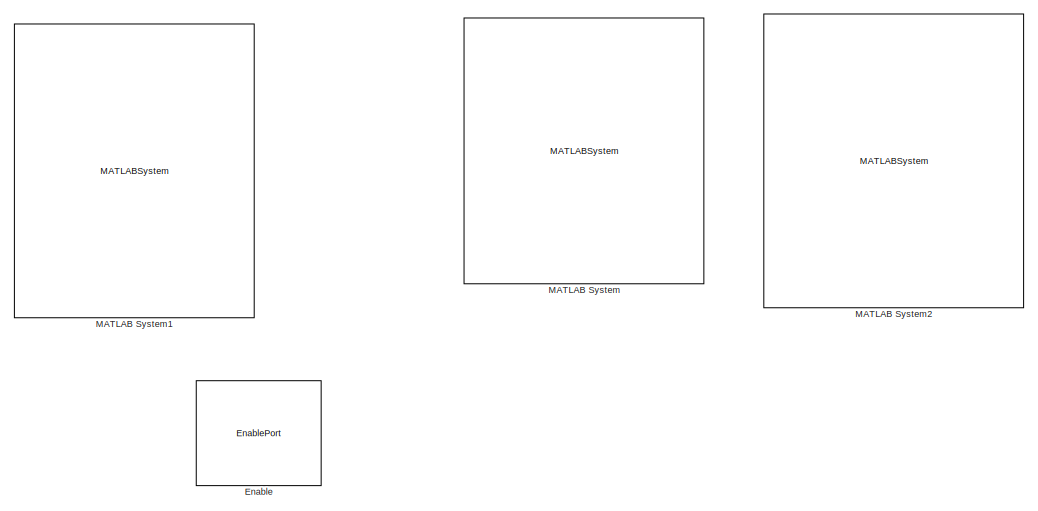
[diagram: lateral control/Subsystem1 - part 1/13, top right region]
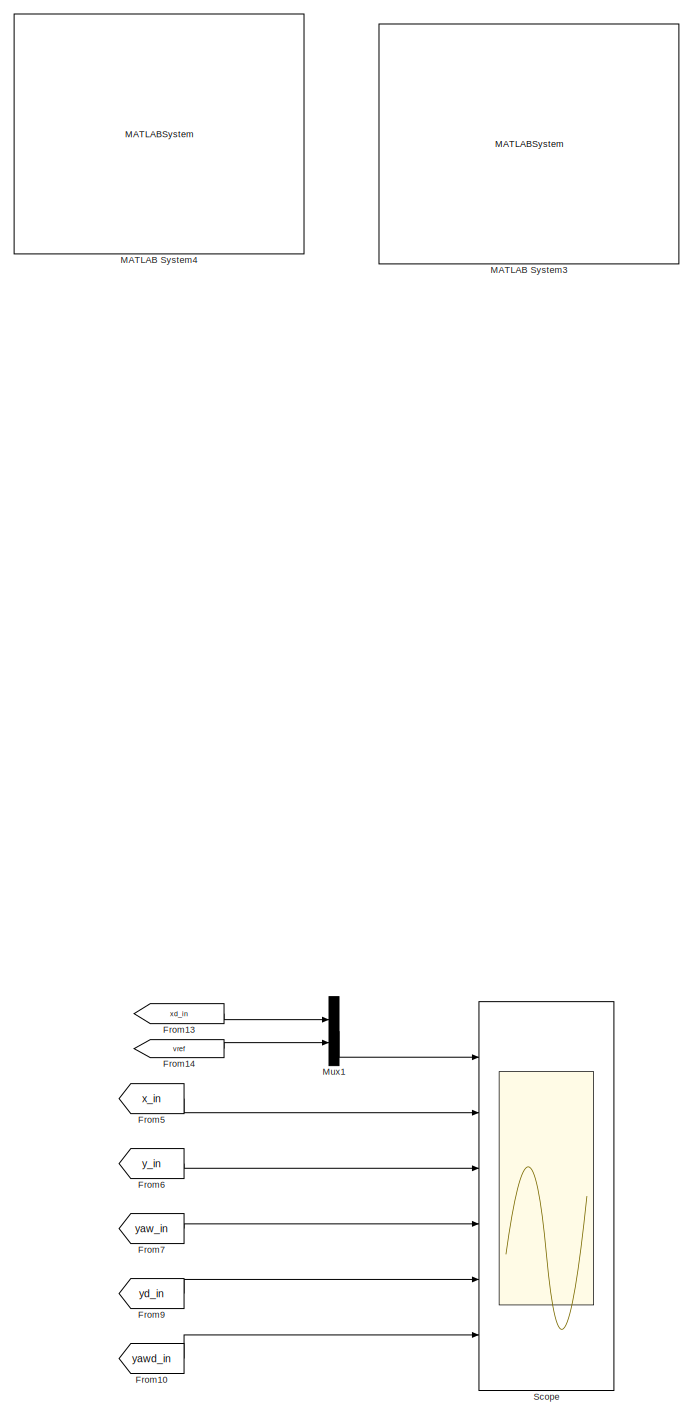
[diagram: lateral control/Subsystem1 - part 2/13, top right region]
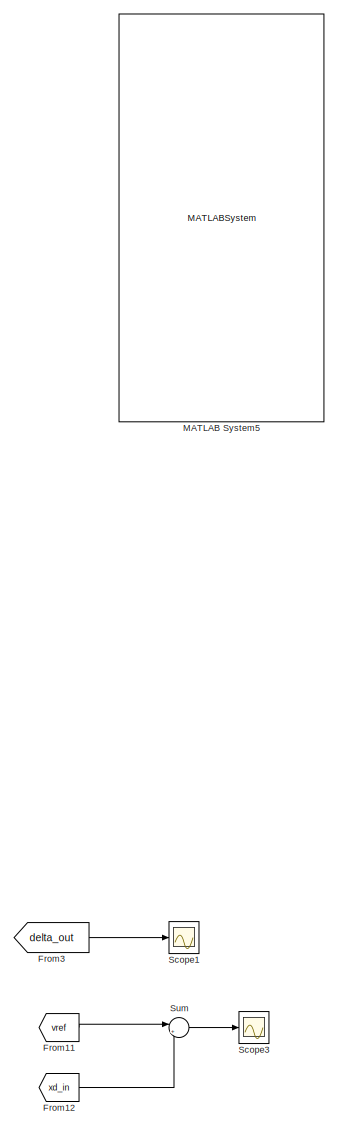
[diagram: lateral control/Subsystem1 - part 3/13, top right region]
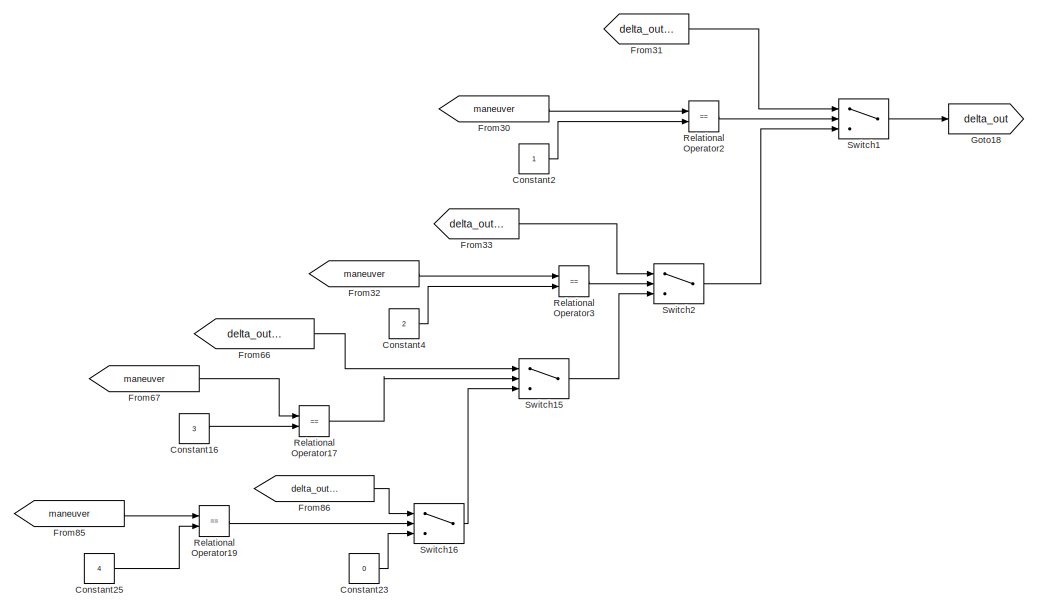
[diagram: lateral control/Subsystem1 - part 4/13, top right region]
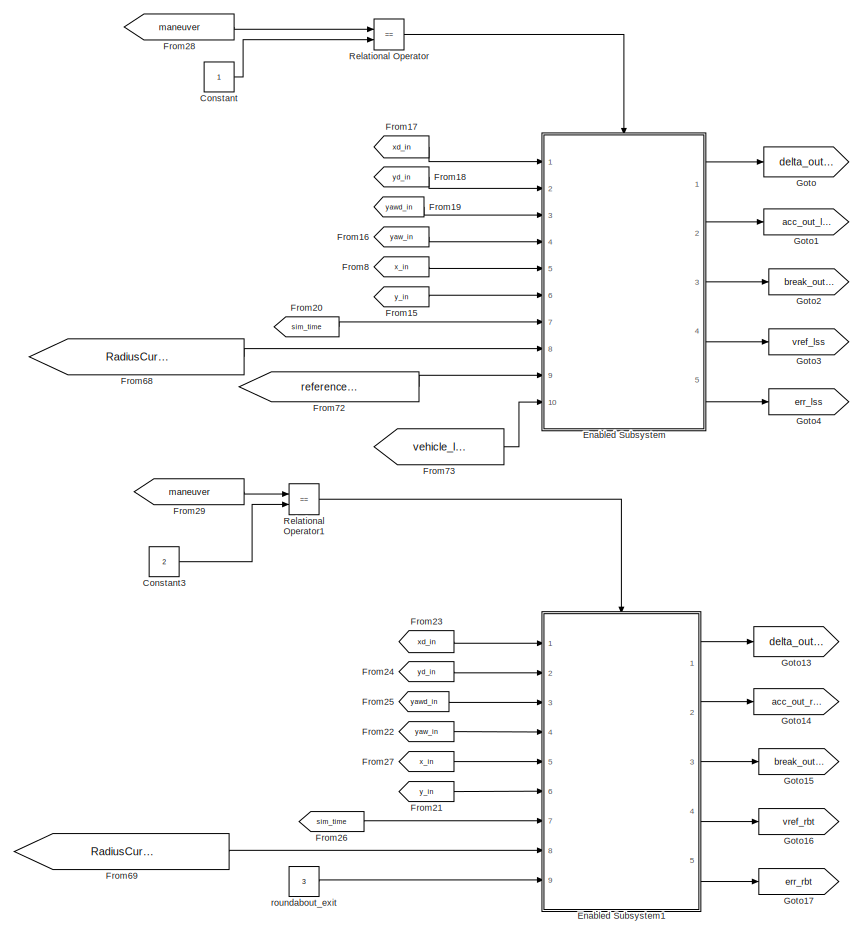
[diagram: lateral control/Subsystem1 - part 5/13, central region]
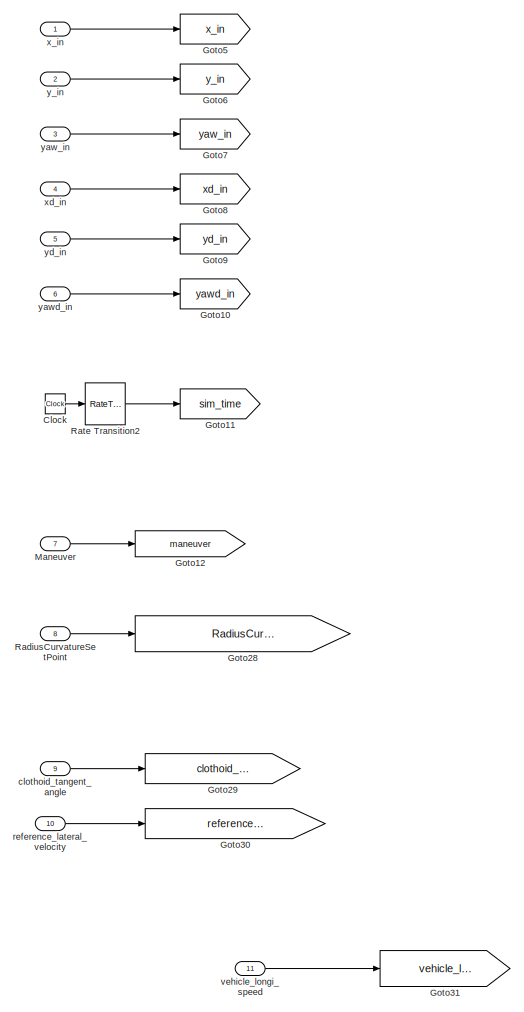
[diagram: lateral control/Subsystem1 - part 6/13, central region]
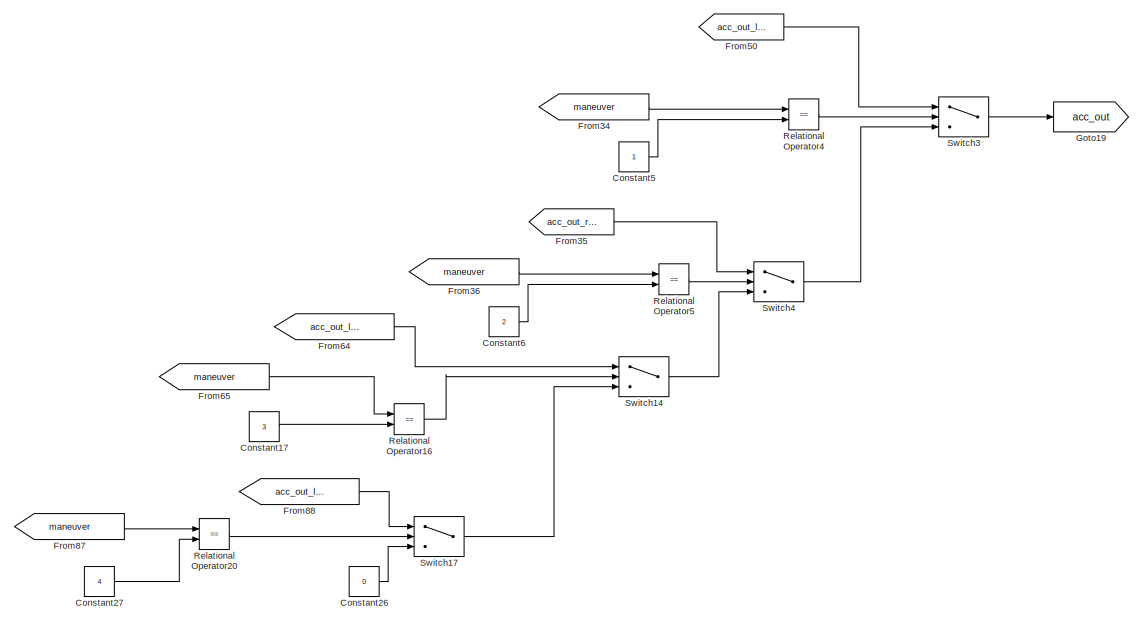
[diagram: lateral control/Subsystem1 - part 7/13, middle right region]
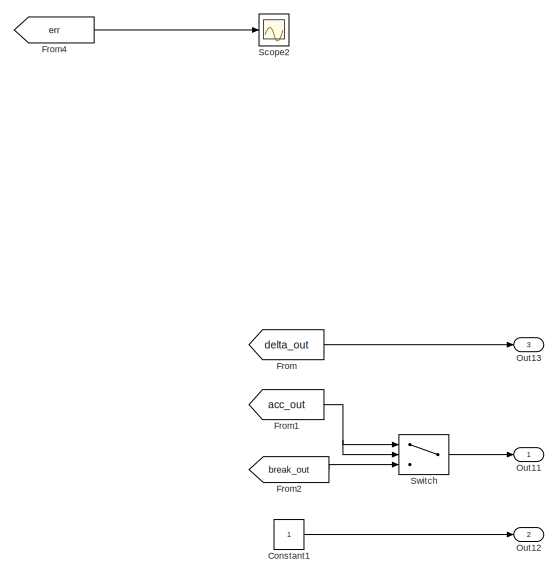
[diagram: lateral control/Subsystem1 - part 8/13, middle right region]
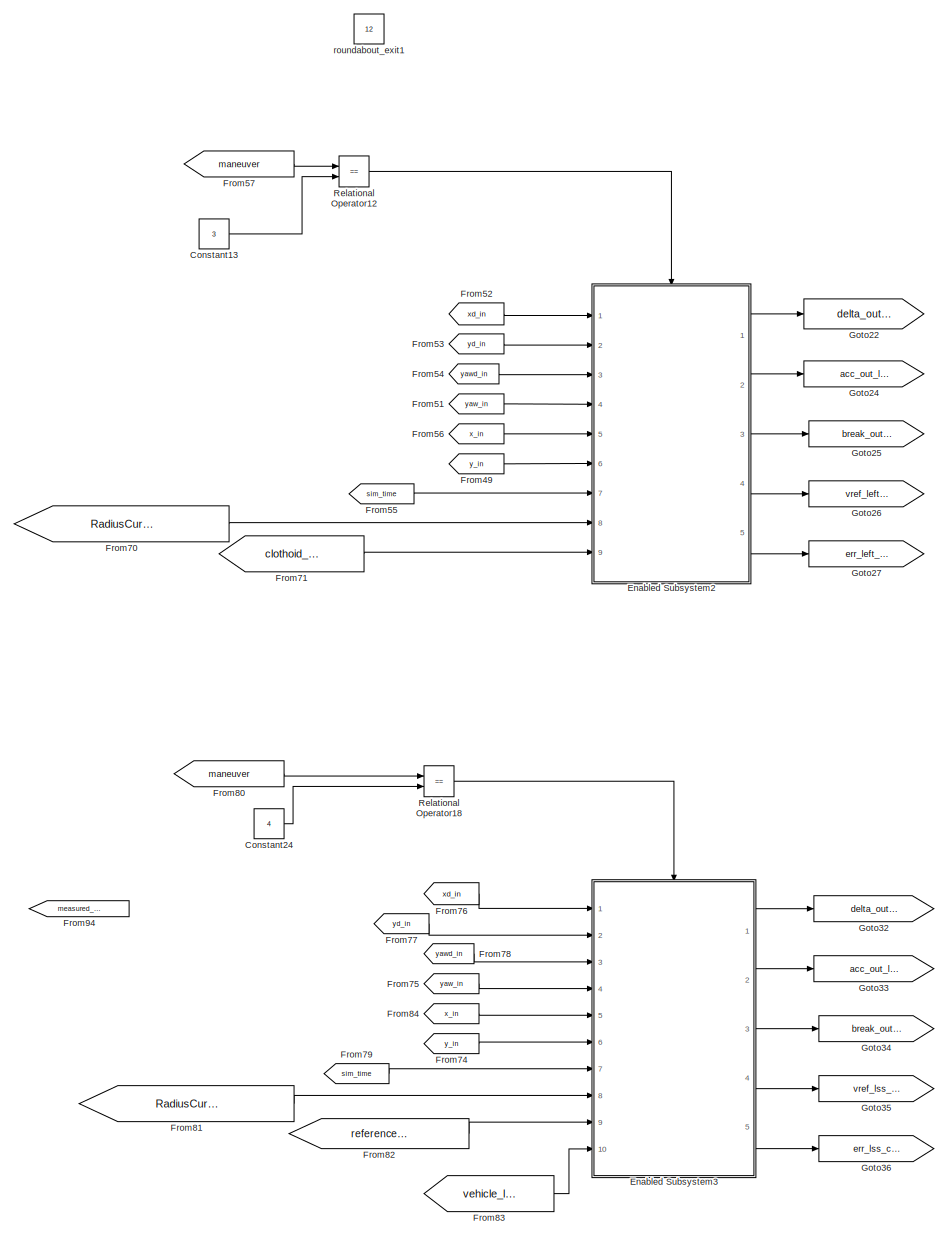
[diagram: lateral control/Subsystem1 - part 9/13, central region]
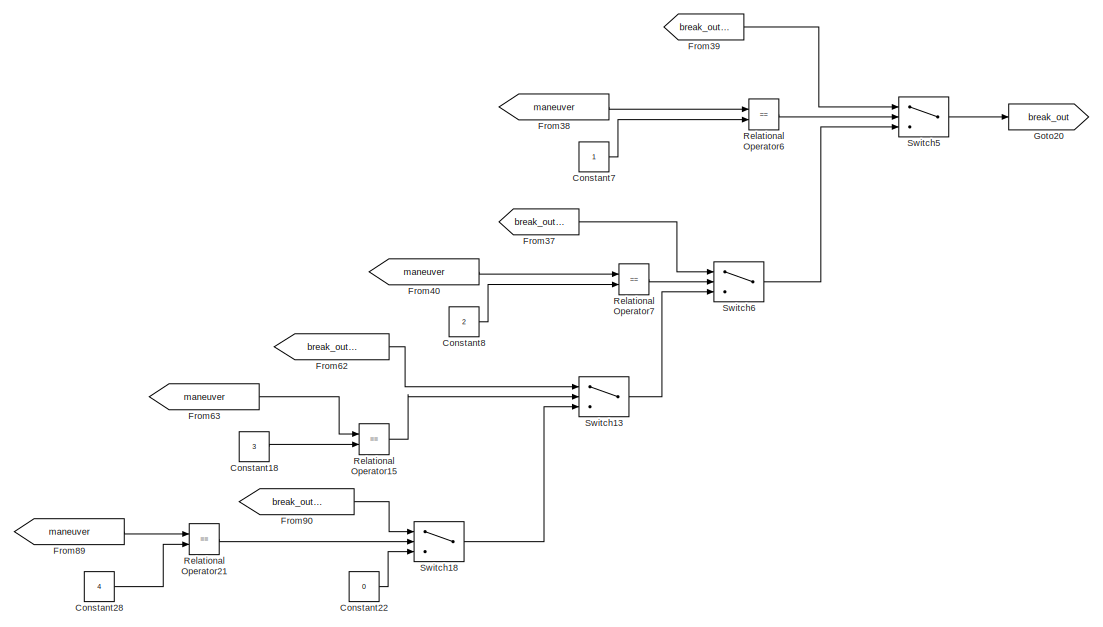
[diagram: lateral control/Subsystem1 - part 10/13, middle right region]
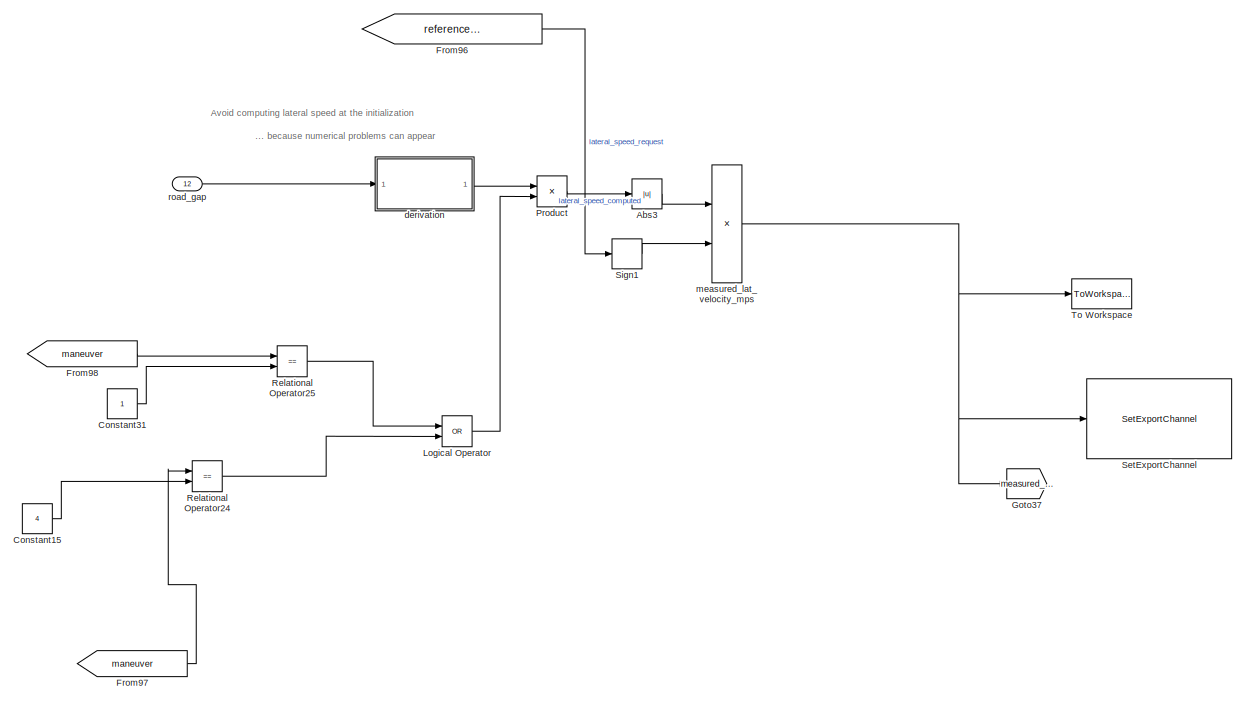
[diagram: lateral control/Subsystem1 - part 11/13, middle left region]
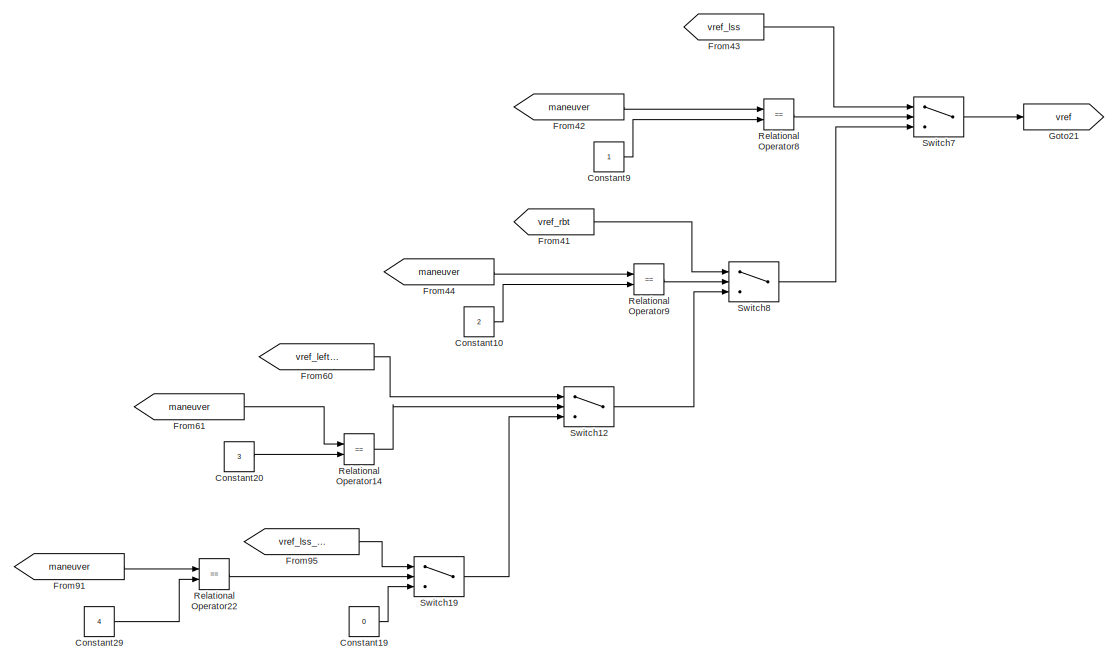
[diagram: lateral control/Subsystem1 - part 12/13, bottom right region]
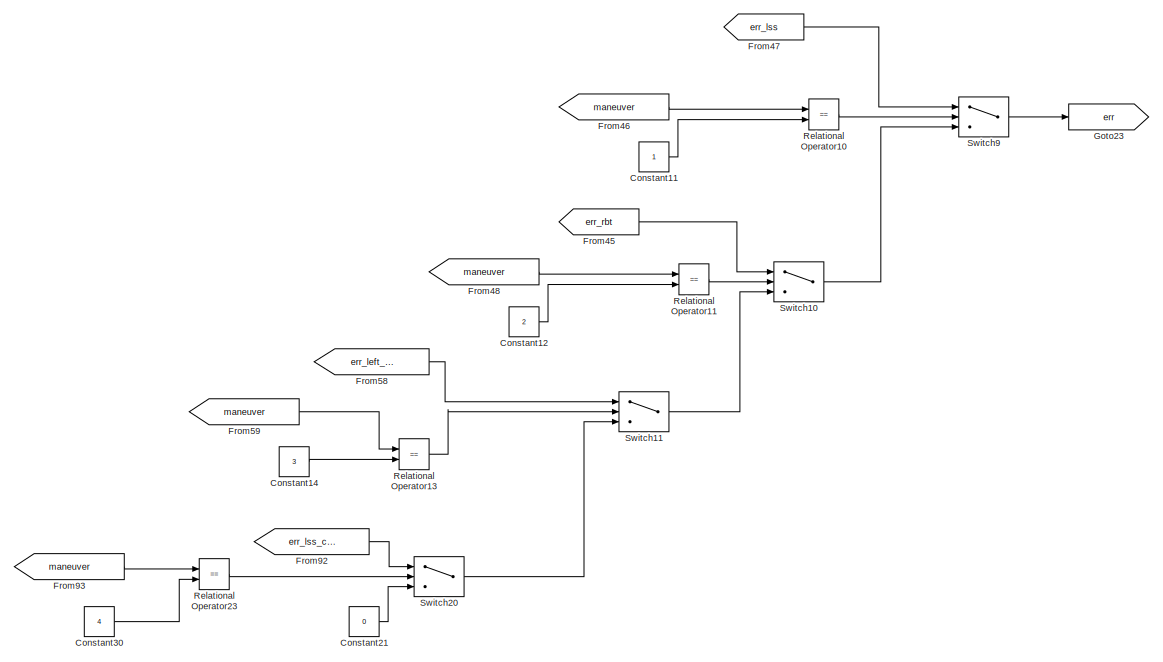
[diagram: lateral control/Subsystem1 - part 13/13, bottom right region]
BLOCK [SubSystem] lateral control/Subsystem1
  Ports = [12, 3, 1]
  RequestExecContextInheritance = off
  Variant = off
BLOCK [Abs] lateral control/Subsystem1/Abs3
  SaturateOnIntegerOverflow = off
BLOCK [Clock] lateral control/Subsystem1/Clock
BLOCK [Constant] lateral control/Subsystem1/Constant
BLOCK [Constant] lateral control/Subsystem1/Constant1
BLOCK [Constant] lateral control/Subsystem1/Constant10
  Value = 2
BLOCK [Constant] lateral control/Subsystem1/Constant11
BLOCK [Constant] lateral control/Subsystem1/Constant12
  Value = 2
BLOCK [Constant] lateral control/Subsystem1/Constant13
  Value = 3
BLOCK [Constant] lateral control/Subsystem1/Constant14
  Value = 3
BLOCK [Constant] lateral control/Subsystem1/Constant15
  Value = 4
BLOCK [Constant] lateral control/Subsystem1/Constant16
  Value = 3
BLOCK [Constant] lateral control/Subsystem1/Constant17
  Value = 3
BLOCK [Constant] lateral control/Subsystem1/Constant18
  Value = 3
BLOCK [Constant] lateral control/Subsystem1/Constant19
  Value = 0
BLOCK [Constant] lateral control/Subsystem1/Constant2
BLOCK [Constant] lateral control/Subsystem1/Constant20
  Value = 3
BLOCK [Constant] lateral control/Subsystem1/Constant21
  Value = 0
BLOCK [Constant] lateral control/Subsystem1/Constant22
  Value = 0
BLOCK [Constant] lateral control/Subsystem1/Constant23
  Value = 0
BLOCK [Constant] lateral control/Subsystem1/Constant24
  Value = 4
BLOCK [Constant] lateral control/Subsystem1/Constant25
  Value = 4
BLOCK [Constant] lateral control/Subsystem1/Constant26
  Value = 0
BLOCK [Constant] lateral control/Subsystem1/Constant27
  Value = 4
BLOCK [Constant] lateral control/Subsystem1/Constant28
  Value = 4
BLOCK [Constant] lateral control/Subsystem1/Constant29
  Value = 4
BLOCK [Constant] lateral control/Subsystem1/Constant3
  Value = 2
BLOCK [Constant] lateral control/Subsystem1/Constant30
  Value = 4
BLOCK [Constant] lateral control/Subsystem1/Constant31
BLOCK [Constant] lateral control/Subsystem1/Constant4
  Value = 2
BLOCK [Constant] lateral control/Subsystem1/Constant5
BLOCK [Constant] lateral control/Subsystem1/Constant6
  Value = 2
BLOCK [Constant] lateral control/Subsystem1/Constant7
BLOCK [Constant] lateral control/Subsystem1/Constant8
  Value = 2
BLOCK [Constant] lateral control/Subsystem1/Constant9
BLOCK [EnablePort] lateral control/Subsystem1/Enable
  Ports = []
  PropagateVarSize = During execution
BLOCK [SubSystem] lateral control/Subsystem1/Enabled Subsystem
  Ports = [10, 5, 1]
  RequestExecContextInheritance = off
  TreatAsAtomicUnit = on
  Variant = off
BLOCK [EnablePort] lateral control/Subsystem1/Enabled Subsystem/Enable
  Ports = []
BLOCK [Inport] lateral control/Subsystem1/Enabled Subsystem/In1
  IconDisplay = Port number
BLOCK [Inport] lateral control/Subsystem1/Enabled Subsystem/In10
  IconDisplay = Port number
  Port = 10
BLOCK [Inport] lateral control/Subsystem1/Enabled Subsystem/In2
  IconDisplay = Port number
  Port = 2
BLOCK [Inport] lateral control/Subsystem1/Enabled Subsystem/In3
  IconDisplay = Port number
  Port = 3
BLOCK [Inport] lateral control/Subsystem1/Enabled Subsystem/In4
  IconDisplay = Port number
  Port = 4
BLOCK [Inport] lateral control/Subsystem1/Enabled Subsystem/In5
  IconDisplay = Port number
  Port = 5
BLOCK [Inport] lateral control/Subsystem1/Enabled Subsystem/In6
  IconDisplay = Port number
  Port = 6
BLOCK [Inport] lateral control/Subsystem1/Enabled Subsystem/In7
  IconDisplay = Port number
  Port = 7
BLOCK [Inport] lateral control/Subsystem1/Enabled Subsystem/In8
  IconDisplay = Port number
  Port = 8
BLOCK [Inport] lateral control/Subsystem1/Enabled Subsystem/In9
  IconDisplay = Port number
  Port = 9
BLOCK [MATLABSystem] lateral control/Subsystem1/Enabled Subsystem/MATLAB System7
  MaskDisplay = disp('casadi_block_MPC_LSS_onthego');\nport_label('input',1,'xd_in');\nport_label('input',2,'yd_in');\nport_label('input',3,'yawd_in');\nport_label('input',4,'yaw_in');\nport_label('input',5,'x_in');\nport_label('input',6,'y_in');\nport_label('input',7,'t');\nport_label('input',8,'R');\nport_label('input',9,'vlat_ref');\nport_label('input',10,'vlongi_ref');\nport_label('output',1,'delta_out');\nport_label('ou...<+116ch>
  MaskType = casadi_block_MPC_LSS_onthego
  Ports = [10, 5]
  SimulateUsing = Interpreted execution
  System = casadi_block_MPC_LSS_onthego
BLOCK [Outport] lateral control/Subsystem1/Enabled Subsystem/Out1
  IconDisplay = Port number
BLOCK [Outport] lateral control/Subsystem1/Enabled Subsystem/Out2
  IconDisplay = Port number
  Port = 2
BLOCK [Outport] lateral control/Subsystem1/Enabled Subsystem/Out3
  IconDisplay = Port number
  Port = 3
BLOCK [Outport] lateral control/Subsystem1/Enabled Subsystem/Out4
  IconDisplay = Port number
  Port = 4
BLOCK [Outport] lateral control/Subsystem1/Enabled Subsystem/Out5
  IconDisplay = Port number
  Port = 5
BLOCK [SubSystem] lateral control/Subsystem1/Enabled Subsystem1
  Ports = [9, 5, 1]
  RequestExecContextInheritance = off
  TreatAsAtomicUnit = on
  Variant = off
BLOCK [EnablePort] lateral control/Subsystem1/Enabled Subsystem1/Enable
  Ports = []
BLOCK [Inport] lateral control/Subsystem1/Enabled Subsystem1/In1
  IconDisplay = Port number
BLOCK [Inport] lateral control/Subsystem1/Enabled Subsystem1/In2
  IconDisplay = Port number
  Port = 2
BLOCK [Inport] lateral control/Subsystem1/Enabled Subsystem1/In3
  IconDisplay = Port number
  Port = 3
BLOCK [Inport] lateral control/Subsystem1/Enabled Subsystem1/In4
  IconDisplay = Port number
  Port = 4
BLOCK [Inport] lateral control/Subsystem1/Enabled Subsystem1/In5
  IconDisplay = Port number
  Port = 5
BLOCK [Inport] lateral control/Subsystem1/Enabled Subsystem1/In6
  IconDisplay = Port number
  Port = 6
BLOCK [Inport] lateral control/Subsystem1/Enabled Subsystem1/In7
  IconDisplay = Port number
  Port = 7
BLOCK [Inport] lateral control/Subsystem1/Enabled Subsystem1/In8
  IconDisplay = Port number
  Port = 8
BLOCK [Inport] lateral control/Subsystem1/Enabled Subsystem1/In9
  IconDisplay = Port number
  Port = 9
BLOCK [MATLABSystem] lateral control/Subsystem1/Enabled Subsystem1/MATLAB System6
  MaskDisplay = disp('casadi_block_MPCtry_5');\nport_label('input',1,'xd_in');\nport_label('input',2,'yd_in');\nport_label('input',3,'yawd_in');\nport_label('input',4,'yaw_in');\nport_label('input',5,'x_in');\nport_label('input',6,'y_in');\nport_label('input',7,'t');\nport_label('input',8,'r');\nport_label('input',9,'ex');\nport_label('output',1,'delta_out');\nport_label('output',2,'acc_out');\nport_label('output',3,'break_o...<+66ch>
  MaskType = casadi_block_MPCtry_5
  Ports = [9, 5]
  SimulateUsing = Interpreted execution
  System = casadi_block_MPCtry_5
BLOCK [Outport] lateral control/Subsystem1/Enabled Subsystem1/Out1
  IconDisplay = Port number
BLOCK [Outport] lateral control/Subsystem1/Enabled Subsystem1/Out2
  IconDisplay = Port number
  Port = 2
BLOCK [Outport] lateral control/Subsystem1/Enabled Subsystem1/Out3
  IconDisplay = Port number
  Port = 3
BLOCK [Outport] lateral control/Subsystem1/Enabled Subsystem1/Out4
  IconDisplay = Port number
  Port = 4
BLOCK [Outport] lateral control/Subsystem1/Enabled Subsystem1/Out5
  IconDisplay = Port number
  Port = 5
BLOCK [SubSystem] lateral control/Subsystem1/Enabled Subsystem2
  Ports = [9, 5, 1]
  RequestExecContextInheritance = off
  TreatAsAtomicUnit = on
  Variant = off
BLOCK [EnablePort] lateral control/Subsystem1/Enabled Subsystem2/Enable
  Ports = []
BLOCK [Inport] lateral control/Subsystem1/Enabled Subsystem2/In1
  IconDisplay = Port number
BLOCK [Inport] lateral control/Subsystem1/Enabled Subsystem2/In2
  IconDisplay = Port number
  Port = 2
BLOCK [Inport] lateral control/Subsystem1/Enabled Subsystem2/In3
  IconDisplay = Port number
  Port = 3
BLOCK [Inport] lateral control/Subsystem1/Enabled Subsystem2/In4
  IconDisplay = Port number
  Port = 4
BLOCK [Inport] lateral control/Subsystem1/Enabled Subsystem2/In5
  IconDisplay = Port number
  Port = 5
BLOCK [Inport] lateral control/Subsystem1/Enabled Subsystem2/In6
  IconDisplay = Port number
  Port = 6
BLOCK [Inport] lateral control/Subsystem1/Enabled Subsystem2/In7
  IconDisplay = Port number
  Port = 7
BLOCK [Inport] lateral control/Subsystem1/Enabled Subsystem2/In8
  IconDisplay = Port number
  Port = 8
BLOCK [Inport] lateral control/Subsystem1/Enabled Subsystem2/In9
  IconDisplay = Port number
  Port = 9
BLOCK [MATLABSystem] lateral control/Subsystem1/Enabled Subsystem2/MATLAB System
  MaskDisplay = disp('casadi_block_MPC_left_turn_onthego');\nport_label('input',1,'xd_in');\nport_label('input',2,'yd_in');\nport_label('input',3,'yawd_in');\nport_label('input',4,'yaw_in');\nport_label('input',5,'x_in');\nport_label('input',6,'y_in');\nport_label('input',7,'t');\nport_label('input',8,'r');\nport_label('input',9,'alpha');\nport_label('output',1,'delta_out');\nport_label('output',2,'acc_out');\nport_label('ou...<+82ch>
  MaskType = casadi_block_MPC_left_turn_onthego
  Ports = [9, 5]
  SimulateUsing = Interpreted execution
  System = casadi_block_MPC_left_turn_onthego
BLOCK [Outport] lateral control/Subsystem1/Enabled Subsystem2/Out1
  IconDisplay = Port number
BLOCK [Outport] lateral control/Subsystem1/Enabled Subsystem2/Out2
  IconDisplay = Port number
  Port = 2
BLOCK [Outport] lateral control/Subsystem1/Enabled Subsystem2/Out3
  IconDisplay = Port number
  Port = 3
BLOCK [Outport] lateral control/Subsystem1/Enabled Subsystem2/Out4
  IconDisplay = Port number
  Port = 4
BLOCK [Outport] lateral control/Subsystem1/Enabled Subsystem2/Out5
  IconDisplay = Port number
  Port = 5
BLOCK [SubSystem] lateral control/Subsystem1/Enabled Subsystem3
  Ports = [10, 5, 1]
  RequestExecContextInheritance = off
  TreatAsAtomicUnit = on
  Variant = off
BLOCK [EnablePort] lateral control/Subsystem1/Enabled Subsystem3/Enable
  Ports = []
BLOCK [Inport] lateral control/Subsystem1/Enabled Subsystem3/In1
  IconDisplay = Port number
BLOCK [Inport] lateral control/Subsystem1/Enabled Subsystem3/In10
  IconDisplay = Port number
  Port = 10
BLOCK [Inport] lateral control/Subsystem1/Enabled Subsystem3/In2
  IconDisplay = Port number
  Port = 2
BLOCK [Inport] lateral control/Subsystem1/Enabled Subsystem3/In3
  IconDisplay = Port number
  Port = 3
BLOCK [Inport] lateral control/Subsystem1/Enabled Subsystem3/In4
  IconDisplay = Port number
  Port = 4
BLOCK [Inport] lateral control/Subsystem1/Enabled Subsystem3/In5
  IconDisplay = Port number
  Port = 5
BLOCK [Inport] lateral control/Subsystem1/Enabled Subsystem3/In6
  IconDisplay = Port number
  Port = 6
BLOCK [Inport] lateral control/Subsystem1/Enabled Subsystem3/In7
  IconDisplay = Port number
  Port = 7
BLOCK [Inport] lateral control/Subsystem1/Enabled Subsystem3/In8
  IconDisplay = Port number
  Port = 8
BLOCK [Inport] lateral control/Subsystem1/Enabled Subsystem3/In9
  IconDisplay = Port number
  Port = 9
BLOCK [MATLABSystem] lateral control/Subsystem1/Enabled Subsystem3/MATLAB System
  MaskDisplay = disp('casadi_block_MPC_LSS_curve_onthego');\nport_label('input',1,'xd_in');\nport_label('input',2,'yd_in');\nport_label('input',3,'yawd_in');\nport_label('input',4,'yaw_in');\nport_label('input',5,'x_in');\nport_label('input',6,'y_in');\nport_label('input',7,'t');\nport_label('input',8,'R');\nport_label('input',9,'vlat_ref');\nport_label('input',10,'vlongi_ref');\nport_label('output',1,'delta_out');\nport_lab...<+122ch>
  MaskType = casadi_block_MPC_LSS_curve_onthego
  Ports = [10, 5]
  SimulateUsing = Interpreted execution
  System = casadi_block_MPC_LSS_curve_onthego
BLOCK [Outport] lateral control/Subsystem1/Enabled Subsystem3/Out1
  IconDisplay = Port number
BLOCK [Outport] lateral control/Subsystem1/Enabled Subsystem3/Out2
  IconDisplay = Port number
  Port = 2
BLOCK [Outport] lateral control/Subsystem1/Enabled Subsystem3/Out3
  IconDisplay = Port number
  Port = 3
BLOCK [Outport] lateral control/Subsystem1/Enabled Subsystem3/Out4
  IconDisplay = Port number
  Port = 4
BLOCK [Outport] lateral control/Subsystem1/Enabled Subsystem3/Out5
  IconDisplay = Port number
  Port = 5
BLOCK [From] lateral control/Subsystem1/From
  GotoTag = delta_out
BLOCK [From] lateral control/Subsystem1/From1
  GotoTag = acc_out
BLOCK [From] lateral control/Subsystem1/From10
  GotoTag = yawd_in
BLOCK [From] lateral control/Subsystem1/From11
  GotoTag = vref
BLOCK [From] lateral control/Subsystem1/From12
  GotoTag = xd_in
BLOCK [From] lateral control/Subsystem1/From13
  GotoTag = xd_in
BLOCK [From] lateral control/Subsystem1/From14
  GotoTag = vref
BLOCK [From] lateral control/Subsystem1/From15
  GotoTag = y_in
BLOCK [From] lateral control/Subsystem1/From16
  GotoTag = yaw_in
BLOCK [From] lateral control/Subsystem1/From17
  GotoTag = xd_in
BLOCK [From] lateral control/Subsystem1/From18
  GotoTag = yd_in
BLOCK [From] lateral control/Subsystem1/From19
  GotoTag = yawd_in
BLOCK [From] lateral control/Subsystem1/From2
  GotoTag = break_out
BLOCK [From] lateral control/Subsystem1/From20
  GotoTag = sim_time
BLOCK [From] lateral control/Subsystem1/From21
  GotoTag = y_in
BLOCK [From] lateral control/Subsystem1/From22
  GotoTag = yaw_in
BLOCK [From] lateral control/Subsystem1/From23
  GotoTag = xd_in
BLOCK [From] lateral control/Subsystem1/From24
  GotoTag = yd_in
BLOCK [From] lateral control/Subsystem1/From25
  GotoTag = yawd_in
BLOCK [From] lateral control/Subsystem1/From26
  GotoTag = sim_time
BLOCK [From] lateral control/Subsystem1/From27
  GotoTag = x_in
BLOCK [From] lateral control/Subsystem1/From28
  GotoTag = maneuver
BLOCK [From] lateral control/Subsystem1/From29
  GotoTag = maneuver
BLOCK [From] lateral control/Subsystem1/From3
  GotoTag = delta_out
BLOCK [From] lateral control/Subsystem1/From30
  GotoTag = maneuver
BLOCK [From] lateral control/Subsystem1/From31
  GotoTag = delta_out_lss
BLOCK [From] lateral control/Subsystem1/From32
  GotoTag = maneuver
BLOCK [From] lateral control/Subsystem1/From33
  GotoTag = delta_out_rbt
BLOCK [From] lateral control/Subsystem1/From34
  GotoTag = maneuver
BLOCK [From] lateral control/Subsystem1/From35
  GotoTag = acc_out_rbt
BLOCK [From] lateral control/Subsystem1/From36
  GotoTag = maneuver
BLOCK [From] lateral control/Subsystem1/From37
  GotoTag = break_out_rbt
BLOCK [From] lateral control/Subsystem1/From38
  GotoTag = maneuver
BLOCK [From] lateral control/Subsystem1/From39
  GotoTag = break_out_lss
BLOCK [From] lateral control/Subsystem1/From4
  GotoTag = err
BLOCK [From] lateral control/Subsystem1/From40
  GotoTag = maneuver
BLOCK [From] lateral control/Subsystem1/From41
  GotoTag = vref_rbt
BLOCK [From] lateral control/Subsystem1/From42
  GotoTag = maneuver
BLOCK [From] lateral control/Subsystem1/From43
  GotoTag = vref_lss
BLOCK [From] lateral control/Subsystem1/From44
  GotoTag = maneuver
BLOCK [From] lateral control/Subsystem1/From45
  GotoTag = err_rbt
BLOCK [From] lateral control/Subsystem1/From46
  GotoTag = maneuver
BLOCK [From] lateral control/Subsystem1/From47
  GotoTag = err_lss
BLOCK [From] lateral control/Subsystem1/From48
  GotoTag = maneuver
BLOCK [From] lateral control/Subsystem1/From49
  GotoTag = y_in
BLOCK [From] lateral control/Subsystem1/From5
  GotoTag = x_in
BLOCK [From] lateral control/Subsystem1/From50
  GotoTag = acc_out_lss
BLOCK [From] lateral control/Subsystem1/From51
  GotoTag = yaw_in
BLOCK [From] lateral control/Subsystem1/From52
  GotoTag = xd_in
BLOCK [From] lateral control/Subsystem1/From53
  GotoTag = yd_in
BLOCK [From] lateral control/Subsystem1/From54
  GotoTag = yawd_in
BLOCK [From] lateral control/Subsystem1/From55
  GotoTag = sim_time
BLOCK [From] lateral control/Subsystem1/From56
  GotoTag = x_in
BLOCK [From] lateral control/Subsystem1/From57
  GotoTag = maneuver
BLOCK [From] lateral control/Subsystem1/From58
  GotoTag = err_left_turn
BLOCK [From] lateral control/Subsystem1/From59
  GotoTag = maneuver
BLOCK [From] lateral control/Subsystem1/From6
  GotoTag = y_in
BLOCK [From] lateral control/Subsystem1/From60
  GotoTag = vref_left_turn
BLOCK [From] lateral control/Subsystem1/From61
  GotoTag = maneuver
BLOCK [From] lateral control/Subsystem1/From62
  GotoTag = break_out_left_turn
BLOCK [From] lateral control/Subsystem1/From63
  GotoTag = maneuver
BLOCK [From] lateral control/Subsystem1/From64
  GotoTag = acc_out_left_turn
BLOCK [From] lateral control/Subsystem1/From65
  GotoTag = maneuver
BLOCK [From] lateral control/Subsystem1/From66
  GotoTag = delta_out_left_turn
BLOCK [From] lateral control/Subsystem1/From67
  GotoTag = maneuver
BLOCK [From] lateral control/Subsystem1/From68
  GotoTag = RadiusCurvatureSetPoint
BLOCK [From] lateral control/Subsystem1/From69
  GotoTag = RadiusCurvatureSetPoint
BLOCK [From] lateral control/Subsystem1/From7
  GotoTag = yaw_in
BLOCK [From] lateral control/Subsystem1/From70
  GotoTag = RadiusCurvatureSetPoint
BLOCK [From] lateral control/Subsystem1/From71
  GotoTag = clothoid_tangent_angle
BLOCK [From] lateral control/Subsystem1/From72
  GotoTag = reference_lateral_velocity
BLOCK [From] lateral control/Subsystem1/From73
  GotoTag = vehicle_longi_speed
BLOCK [From] lateral control/Subsystem1/From74
  GotoTag = y_in
BLOCK [From] lateral control/Subsystem1/From75
  GotoTag = yaw_in
BLOCK [From] lateral control/Subsystem1/From76
  GotoTag = xd_in
BLOCK [From] lateral control/Subsystem1/From77
  GotoTag = yd_in
BLOCK [From] lateral control/Subsystem1/From78
  GotoTag = yawd_in
BLOCK [From] lateral control/Subsystem1/From79
  GotoTag = sim_time
BLOCK [From] lateral control/Subsystem1/From8
  GotoTag = x_in
BLOCK [From] lateral control/Subsystem1/From80
  GotoTag = maneuver
BLOCK [From] lateral control/Subsystem1/From81
  GotoTag = RadiusCurvatureSetPoint
BLOCK [From] lateral control/Subsystem1/From82
  GotoTag = reference_lateral_velocity
BLOCK [From] lateral control/Subsystem1/From83
  GotoTag = vehicle_longi_speed
BLOCK [From] lateral control/Subsystem1/From84
  GotoTag = x_in
BLOCK [From] lateral control/Subsystem1/From85
  GotoTag = maneuver
BLOCK [From] lateral control/Subsystem1/From86
  GotoTag = delta_out_lss_curv
BLOCK [From] lateral control/Subsystem1/From87
  GotoTag = maneuver
BLOCK [From] lateral control/Subsystem1/From88
  GotoTag = acc_out_lss_curv
BLOCK [From] lateral control/Subsystem1/From89
  GotoTag = maneuver
BLOCK [From] lateral control/Subsystem1/From9
  GotoTag = yd_in
BLOCK [From] lateral control/Subsystem1/From90
  GotoTag = break_out_lss_curv
BLOCK [From] lateral control/Subsystem1/From91
  GotoTag = maneuver
BLOCK [From] lateral control/Subsystem1/From92
  GotoTag = err_lss_curv
BLOCK [From] lateral control/Subsystem1/From93
  GotoTag = maneuver
BLOCK [From] lateral control/Subsystem1/From94
  Commented = on
  GotoTag = measured_vy
BLOCK [From] lateral control/Subsystem1/From95
  GotoTag = vref_lss_curv
BLOCK [From] lateral control/Subsystem1/From96
  GotoTag = reference_lateral_velocity
BLOCK [From] lateral control/Subsystem1/From97
  GotoTag = maneuver
BLOCK [From] lateral control/Subsystem1/From98
  GotoTag = maneuver
BLOCK [Goto] lateral control/Subsystem1/Goto
  GotoTag = delta_out_lss
BLOCK [Goto] lateral control/Subsystem1/Goto1
  GotoTag = acc_out_lss
BLOCK [Goto] lateral control/Subsystem1/Goto10
  GotoTag = yawd_in
BLOCK [Goto] lateral control/Subsystem1/Goto11
  GotoTag = sim_time
BLOCK [Goto] lateral control/Subsystem1/Goto12
  GotoTag = maneuver
BLOCK [Goto] lateral control/Subsystem1/Goto13
  GotoTag = delta_out_rbt
BLOCK [Goto] lateral control/Subsystem1/Goto14
  GotoTag = acc_out_rbt
BLOCK [Goto] lateral control/Subsystem1/Goto15
  GotoTag = break_out_rbt
BLOCK [Goto] lateral control/Subsystem1/Goto16
  GotoTag = vref_rbt
BLOCK [Goto] lateral control/Subsystem1/Goto17
  GotoTag = err_rbt
BLOCK [Goto] lateral control/Subsystem1/Goto18
  GotoTag = delta_out
BLOCK [Goto] lateral control/Subsystem1/Goto19
  GotoTag = acc_out
BLOCK [Goto] lateral control/Subsystem1/Goto2
  GotoTag = break_out_lss
BLOCK [Goto] lateral control/Subsystem1/Goto20
  GotoTag = break_out
BLOCK [Goto] lateral control/Subsystem1/Goto21
  GotoTag = vref
BLOCK [Goto] lateral control/Subsystem1/Goto22
  GotoTag = delta_out_left_turn
BLOCK [Goto] lateral control/Subsystem1/Goto23
  GotoTag = err
BLOCK [Goto] lateral control/Subsystem1/Goto24
  GotoTag = acc_out_left_turn
BLOCK [Goto] lateral control/Subsystem1/Goto25
  GotoTag = break_out_left_turn
BLOCK [Goto] lateral control/Subsystem1/Goto26
  GotoTag = vref_left_turn
BLOCK [Goto] lateral control/Subsystem1/Goto27
  GotoTag = err_left_turn
BLOCK [Goto] lateral control/Subsystem1/Goto28
  GotoTag = RadiusCurvatureSetPoint
BLOCK [Goto] lateral control/Subsystem1/Goto29
  GotoTag = clothoid_tangent_angle
BLOCK [Goto] lateral control/Subsystem1/Goto3
  GotoTag = vref_lss
BLOCK [Goto] lateral control/Subsystem1/Goto30
  GotoTag = reference_lateral_velocity
BLOCK [Goto] lateral control/Subsystem1/Goto31
  GotoTag = vehicle_longi_speed
BLOCK [Goto] lateral control/Subsystem1/Goto32
  GotoTag = delta_out_lss_curv
BLOCK [Goto] lateral control/Subsystem1/Goto33
  GotoTag = acc_out_lss_curv
BLOCK [Goto] lateral control/Subsystem1/Goto34
  GotoTag = break_out_lss_curv
BLOCK [Goto] lateral control/Subsystem1/Goto35
  GotoTag = vref_lss_curv
BLOCK [Goto] lateral control/Subsystem1/Goto36
  GotoTag = err_lss_curv
BLOCK [Goto] lateral control/Subsystem1/Goto37
  GotoTag = measured_vy
BLOCK [Goto] lateral control/Subsystem1/Goto4
  GotoTag = err_lss
BLOCK [Goto] lateral control/Subsystem1/Goto5
  GotoTag = x_in
BLOCK [Goto] lateral control/Subsystem1/Goto6
  GotoTag = y_in
BLOCK [Goto] lateral control/Subsystem1/Goto7
  GotoTag = yaw_in
BLOCK [Goto] lateral control/Subsystem1/Goto8
  GotoTag = xd_in
BLOCK [Goto] lateral control/Subsystem1/Goto9
  GotoTag = yd_in
BLOCK [Logic] lateral control/Subsystem1/Logical Operator
  AllPortsSameDT = off
  Operator = OR
  OutDataTypeStr = boolean
  Ports = [2, 1]
BLOCK [MATLABSystem] lateral control/Subsystem1/MATLAB System
  Commented = on
  MaskDisplay = disp('casadi_block_MPCtry_1');\nport_label('input',1,'xd_in');\nport_label('input',2,'yd_in');\nport_label('input',3,'yawd_in');\nport_label('input',4,'yaw_in');\nport_label('input',5,'x_in');\nport_label('input',6,'y_in');\nport_label('input',7,'t');\nport_label('output',1,'delta_out');\nport_label('output',2,'acc_out');\nport_label('output',3,'break_out');\nport_label('output',4,'vref');\nport_label('output...<+11ch>
  MaskType = casadi_block_MPCtry_1
  Ports = [7, 5]
  SimulateUsing = Interpreted execution
  System = casadi_block_MPCtry_1
BLOCK [MATLABSystem] lateral control/Subsystem1/MATLAB System1
  Commented = on
  MaskDisplay = disp('casadi_block_MPCtry_3');\nport_label('input',1,'xd_in');\nport_label('input',2,'yd_in');\nport_label('input',3,'yawd_in');\nport_label('input',4,'yaw_in');\nport_label('input',5,'x_in');\nport_label('input',6,'y_in');\nport_label('input',7,'t');\nport_label('output',1,'delta_out');\nport_label('output',2,'acc_out');\nport_label('output',3,'break_out');\nport_label('output',4,'vref');\nport_label('output...<+11ch>
  MaskType = casadi_block_MPCtry_3
  Ports = [7, 5]
  SimulateUsing = Interpreted execution
  System = casadi_block_MPCtry_3
BLOCK [MATLABSystem] lateral control/Subsystem1/MATLAB System2
  Commented = on
  MaskDisplay = disp('casadi_block_MPC_LSS');\nport_label('input',1,'xd_in');\nport_label('input',2,'yd_in');\nport_label('input',3,'yawd_in');\nport_label('input',4,'yaw_in');\nport_label('input',5,'x_in');\nport_label('input',6,'y_in');\nport_label('input',7,'t');\nport_label('output',1,'delta_out');\nport_label('output',2,'acc_out');\nport_label('output',3,'break_out');\nport_label('output',4,'vref');\nport_label('output'...<+10ch>
  MaskType = casadi_block_MPC_LSS
  Ports = [7, 5]
  SimulateUsing = Interpreted execution
  System = casadi_block_MPC_LSS
BLOCK [MATLABSystem] lateral control/Subsystem1/MATLAB System3
  Commented = on
  MaskDisplay = disp('casadi_block_MPC_left_turn');\nport_label('input',1,'xd_in');\nport_label('input',2,'yd_in');\nport_label('input',3,'yawd_in');\nport_label('input',4,'yaw_in');\nport_label('input',5,'x_in');\nport_label('input',6,'y_in');\nport_label('input',7,'t');\nport_label('output',1,'delta_out');\nport_label('output',2,'acc_out');\nport_label('output',3,'break_out');\nport_label('output',4,'vref');\nport_label('o...<+16ch>
  MaskType = casadi_block_MPC_left_turn
  Ports = [7, 5]
  SimulateUsing = Interpreted execution
  System = casadi_block_MPC_left_turn
BLOCK [MATLABSystem] lateral control/Subsystem1/MATLAB System4
  Commented = on
  MaskDisplay = disp('casadi_block_MPC_left_turn_2');\nport_label('input',1,'xd_in');\nport_label('input',2,'yd_in');\nport_label('input',3,'yawd_in');\nport_label('input',4,'yaw_in');\nport_label('input',5,'x_in');\nport_label('input',6,'y_in');\nport_label('input',7,'t');\nport_label('output',1,'delta_out');\nport_label('output',2,'acc_out');\nport_label('output',3,'break_out');\nport_label('output',4,'vref');\nport_label(...<+18ch>
  MaskType = casadi_block_MPC_left_turn_2
  Ports = [7, 5]
  SimulateUsing = Interpreted execution
  System = casadi_block_MPC_left_turn_2
BLOCK [MATLABSystem] lateral control/Subsystem1/MATLAB System5
  Commented = on
  MaskDisplay = disp('casadi_block_MPCtry_4');\nport_label('input',1,'xd_in');\nport_label('input',2,'yd_in');\nport_label('input',3,'yawd_in');\nport_label('input',4,'yaw_in');\nport_label('input',5,'x_in');\nport_label('input',6,'y_in');\nport_label('input',7,'t');\nport_label('input',8,'ref_path');\nport_label('output',1,'delta_out');\nport_label('output',2,'acc_out');\nport_label('output',3,'break_out');\nport_label('out...<+45ch>
  MaskType = casadi_block_MPCtry_4
  Ports = [8, 5]
  SimulateUsing = Interpreted execution
  System = casadi_block_MPCtry_4
BLOCK [Inport] lateral control/Subsystem1/Maneuver
  IconDisplay = Port number
  Port = 7
BLOCK [Mux] lateral control/Subsystem1/Mux1
  DisplayOption = bar
  Inputs = 2
  Ports = [2, 1]
BLOCK [Outport] lateral control/Subsystem1/Out11
  IconDisplay = Port number
BLOCK [Outport] lateral control/Subsystem1/Out12
  IconDisplay = Port number
  Port = 2
BLOCK [Outport] lateral control/Subsystem1/Out13
  IconDisplay = Port number
  Port = 3
BLOCK [Product] lateral control/Subsystem1/Product
  InputSameDT = off
  OutDataTypeStr = Inherit: Inherit via internal rule
  Ports = [2, 1]
  RndMeth = Floor
  SaturateOnIntegerOverflow = off
BLOCK [Inport] lateral control/Subsystem1/RadiusCurvatureSetPoint
  IconDisplay = Port number
  Port = 8
BLOCK [RateTransition] lateral control/Subsystem1/Rate Transition2
  OutPortSampleTime = 0.01
BLOCK [RelationalOperator] lateral control/Subsystem1/Relational Operator
  InputSameDT = off
  Operator = ==
  OutDataTypeStr = boolean
  Ports = [2, 1]
  RndMeth = Simplest
BLOCK [RelationalOperator] lateral control/Subsystem1/Relational Operator1
  InputSameDT = off
  Operator = ==
  OutDataTypeStr = boolean
  Ports = [2, 1]
  RndMeth = Simplest
BLOCK [RelationalOperator] lateral control/Subsystem1/Relational Operator10
  InputSameDT = off
  Operator = ==
  OutDataTypeStr = boolean
  Ports = [2, 1]
  RndMeth = Simplest
BLOCK [RelationalOperator] lateral control/Subsystem1/Relational Operator11
  InputSameDT = off
  Operator = ==
  OutDataTypeStr = boolean
  Ports = [2, 1]
  RndMeth = Simplest
BLOCK [RelationalOperator] lateral control/Subsystem1/Relational Operator12
  InputSameDT = off
  Operator = ==
  OutDataTypeStr = boolean
  Ports = [2, 1]
  RndMeth = Simplest
BLOCK [RelationalOperator] lateral control/Subsystem1/Relational Operator13
  InputSameDT = off
  Operator = ==
  OutDataTypeStr = boolean
  Ports = [2, 1]
  RndMeth = Simplest
BLOCK [RelationalOperator] lateral control/Subsystem1/Relational Operator14
  InputSameDT = off
  Operator = ==
  OutDataTypeStr = boolean
  Ports = [2, 1]
  RndMeth = Simplest
BLOCK [RelationalOperator] lateral control/Subsystem1/Relational Operator15
  InputSameDT = off
  Operator = ==
  OutDataTypeStr = boolean
  Ports = [2, 1]
  RndMeth = Simplest
BLOCK [RelationalOperator] lateral control/Subsystem1/Relational Operator16
  InputSameDT = off
  Operator = ==
  OutDataTypeStr = boolean
  Ports = [2, 1]
  RndMeth = Simplest
BLOCK [RelationalOperator] lateral control/Subsystem1/Relational Operator17
  InputSameDT = off
  Operator = ==
  OutDataTypeStr = boolean
  Ports = [2, 1]
  RndMeth = Simplest
BLOCK [RelationalOperator] lateral control/Subsystem1/Relational Operator18
  InputSameDT = off
  Operator = ==
  OutDataTypeStr = boolean
  Ports = [2, 1]
  RndMeth = Simplest
BLOCK [RelationalOperator] lateral control/Subsystem1/Relational Operator19
  InputSameDT = off
  Operator = ==
  OutDataTypeStr = boolean
  Ports = [2, 1]
  RndMeth = Simplest
BLOCK [RelationalOperator] lateral control/Subsystem1/Relational Operator2
  InputSameDT = off
  Operator = ==
  OutDataTypeStr = boolean
  Ports = [2, 1]
  RndMeth = Simplest
BLOCK [RelationalOperator] lateral control/Subsystem1/Relational Operator20
  InputSameDT = off
  Operator = ==
  OutDataTypeStr = boolean
  Ports = [2, 1]
  RndMeth = Simplest
BLOCK [RelationalOperator] lateral control/Subsystem1/Relational Operator21
  InputSameDT = off
  Operator = ==
  OutDataTypeStr = boolean
  Ports = [2, 1]
  RndMeth = Simplest
BLOCK [RelationalOperator] lateral control/Subsystem1/Relational Operator22
  InputSameDT = off
  Operator = ==
  OutDataTypeStr = boolean
  Ports = [2, 1]
  RndMeth = Simplest
BLOCK [RelationalOperator] lateral control/Subsystem1/Relational Operator23
  InputSameDT = off
  Operator = ==
  OutDataTypeStr = boolean
  Ports = [2, 1]
  RndMeth = Simplest
BLOCK [RelationalOperator] lateral control/Subsystem1/Relational Operator24
  InputSameDT = off
  Operator = ==
  OutDataTypeStr = boolean
  Ports = [2, 1]
  RndMeth = Simplest
BLOCK [RelationalOperator] lateral control/Subsystem1/Relational Operator25
  InputSameDT = off
  Operator = ==
  OutDataTypeStr = boolean
  Ports = [2, 1]
  RndMeth = Simplest
BLOCK [RelationalOperator] lateral control/Subsystem1/Relational Operator3
  InputSameDT = off
  Operator = ==
  OutDataTypeStr = boolean
  Ports = [2, 1]
  RndMeth = Simplest
BLOCK [RelationalOperator] lateral control/Subsystem1/Relational Operator4
  InputSameDT = off
  Operator = ==
  OutDataTypeStr = boolean
  Ports = [2, 1]
  RndMeth = Simplest
BLOCK [RelationalOperator] lateral control/Subsystem1/Relational Operator5
  InputSameDT = off
  Operator = ==
  OutDataTypeStr = boolean
  Ports = [2, 1]
  RndMeth = Simplest
BLOCK [RelationalOperator] lateral control/Subsystem1/Relational Operator6
  InputSameDT = off
  Operator = ==
  OutDataTypeStr = boolean
  Ports = [2, 1]
  RndMeth = Simplest
BLOCK [RelationalOperator] lateral control/Subsystem1/Relational Operator7
  InputSameDT = off
  Operator = ==
  OutDataTypeStr = boolean
  Ports = [2, 1]
  RndMeth = Simplest
BLOCK [RelationalOperator] lateral control/Subsystem1/Relational Operator8
  InputSameDT = off
  Operator = ==
  OutDataTypeStr = boolean
  Ports = [2, 1]
  RndMeth = Simplest
BLOCK [RelationalOperator] lateral control/Subsystem1/Relational Operator9
  InputSameDT = off
  Operator = ==
  OutDataTypeStr = boolean
  Ports = [2, 1]
  RndMeth = Simplest
BLOCK [Scope] lateral control/Subsystem1/Scope
  NumInputPorts = 6
  Ports = [6]
  ScopeSpecificationString = Simulink.scopes.TimeScopeBlockCfg('CurrentConfiguration', extmgr.ConfigurationSet(extmgr.Configuration('Core','General UI',true),extmgr.Configuration('Core','Source UI',true),extmgr.Configuration('Sources','WiredSimulink',true,'DataLoggingVariableName','ScopeData1','DataLoggingLimitDataPoints',true,'DataLoggingSaveFormat','Array','DataLoggingDecimation','1','DataLoggingDecimateData',true),extmgr.C...<+1908ch>
BLOCK [Scope] lateral control/Subsystem1/Scope1
  NumInputPorts = 1
  Ports = [1]
  ScopeSpecificationString = Simulink.scopes.TimeScopeBlockCfg('CurrentConfiguration', extmgr.ConfigurationSet(extmgr.Configuration('Core','General UI',true),extmgr.Configuration('Core','Source UI',true),extmgr.Configuration('Sources','WiredSimulink',true,'DataLoggingVariableName','ScopeData1'),extmgr.Configuration('Visuals','Time Domain',true,'SerializedDisplays',{struct('MinYLimReal','-605.1994','MaxYLimReal','435.51842','Y...<+1448ch>
BLOCK [Scope] lateral control/Subsystem1/Scope2
  NumInputPorts = 1
  Ports = [1]
  ScopeSpecificationString = Simulink.scopes.TimeScopeBlockCfg('CurrentConfiguration', extmgr.ConfigurationSet(extmgr.Configuration('Core','General UI',true),extmgr.Configuration('Core','Source UI',true),extmgr.Configuration('Sources','WiredSimulink',true,'DataLoggingVariableName','ScopeData3','DataLoggingLimitDataPoints',true,'DataLoggingSaveFormat','Array','DataLoggingDecimation','1','DataLoggingDecimateData',true),extmgr.C...<+1560ch>
BLOCK [Scope] lateral control/Subsystem1/Scope3
  NumInputPorts = 1
  Ports = [1]
  ScopeSpecificationString = C++SS(StrPVP('SaveName','ScopeData'),StrPVP('LimitDataPoints','on'),StrPVP('DataFormat','Array'),StrPVP('Decimation','1'),StrPVP('BlockParamSampleInput','off'),StrPVP('SaveName','ScopeData'),StrPVP('SaveName','ScopeData4'))
BLOCK [Reference] lateral control/Subsystem1/SetExportChannel  REF=SCANeR_API/SetExportChannel
  Ports = [1]
  Priority = 0
  SourceBlock = SCANeR_API/SetExportChannel
BLOCK [Signum] lateral control/Subsystem1/Sign1
BLOCK [Sum] lateral control/Subsystem1/Sum
  IconShape = round
  InputSameDT = off
  Inputs = |+-
  OutDataTypeStr = Inherit: Inherit via internal rule
  Ports = [2, 1]
  SaturateOnIntegerOverflow = off
BLOCK [Switch] lateral control/Subsystem1/Switch
  InputSameDT = off
  SaturateOnIntegerOverflow = off
BLOCK [Switch] lateral control/Subsystem1/Switch1
  Criteria = u2 > Threshold
  InputSameDT = off
  SaturateOnIntegerOverflow = off
BLOCK [Switch] lateral control/Subsystem1/Switch10
  Criteria = u2 > Threshold
  InputSameDT = off
  SaturateOnIntegerOverflow = off
BLOCK [Switch] lateral control/Subsystem1/Switch11
  Criteria = u2 > Threshold
  InputSameDT = off
  SaturateOnIntegerOverflow = off
BLOCK [Switch] lateral control/Subsystem1/Switch12
  Criteria = u2 > Threshold
  InputSameDT = off
  SaturateOnIntegerOverflow = off
BLOCK [Switch] lateral control/Subsystem1/Switch13
  Criteria = u2 > Threshold
  InputSameDT = off
  SaturateOnIntegerOverflow = off
BLOCK [Switch] lateral control/Subsystem1/Switch14
  Criteria = u2 > Threshold
  InputSameDT = off
  SaturateOnIntegerOverflow = off
BLOCK [Switch] lateral control/Subsystem1/Switch15
  Criteria = u2 > Threshold
  InputSameDT = off
  SaturateOnIntegerOverflow = off
BLOCK [Switch] lateral control/Subsystem1/Switch16
  Criteria = u2 > Threshold
  InputSameDT = off
  SaturateOnIntegerOverflow = off
BLOCK [Switch] lateral control/Subsystem1/Switch17
  Criteria = u2 > Threshold
  InputSameDT = off
  SaturateOnIntegerOverflow = off
BLOCK [Switch] lateral control/Subsystem1/Switch18
  Criteria = u2 > Threshold
  InputSameDT = off
  SaturateOnIntegerOverflow = off
BLOCK [Switch] lateral control/Subsystem1/Switch19
  Criteria = u2 > Threshold
  InputSameDT = off
  SaturateOnIntegerOverflow = off
BLOCK [Switch] lateral control/Subsystem1/Switch2
  Criteria = u2 > Threshold
  InputSameDT = off
  SaturateOnIntegerOverflow = off
BLOCK [Switch] lateral control/Subsystem1/Switch20
  Criteria = u2 > Threshold
  InputSameDT = off
  SaturateOnIntegerOverflow = off
BLOCK [Switch] lateral control/Subsystem1/Switch3
  Criteria = u2 > Threshold
  InputSameDT = off
  SaturateOnIntegerOverflow = off
BLOCK [Switch] lateral control/Subsystem1/Switch4
  Criteria = u2 > Threshold
  InputSameDT = off
  SaturateOnIntegerOverflow = off
BLOCK [Switch] lateral control/Subsystem1/Switch5
  Criteria = u2 > Threshold
  InputSameDT = off
  SaturateOnIntegerOverflow = off
BLOCK [Switch] lateral control/Subsystem1/Switch6
  Criteria = u2 > Threshold
  InputSameDT = off
  SaturateOnIntegerOverflow = off
BLOCK [Switch] lateral control/Subsystem1/Switch7
  Criteria = u2 > Threshold
  InputSameDT = off
  SaturateOnIntegerOverflow = off
BLOCK [Switch] lateral control/Subsystem1/Switch8
  Criteria = u2 > Threshold
  InputSameDT = off
  SaturateOnIntegerOverflow = off
BLOCK [Switch] lateral control/Subsystem1/Switch9
  Criteria = u2 > Threshold
  InputSameDT = off
  SaturateOnIntegerOverflow = off
BLOCK [ToWorkspace] lateral control/Subsystem1/To Workspace
  FixptAsFi = on
  MaxDataPoints = inf
  Ports = [1]
  SampleTime = -1
  Save2DSignal = 3-D array (concatenate along third dimension)
  SaveFormat = Timeseries
  VariableName = lss_mpc_lat_vel
BLOCK [Inport] lateral control/Subsystem1/clothoid_tangent_angle
  IconDisplay = Port number
  Port = 9
BLOCK [SubSystem] lateral control/Subsystem1/derivation
  Ports = [1, 1]
  RequestExecContextInheritance = off
  Variant = off
BLOCK [Sum] lateral control/Subsystem1/derivation/Add
  InputSameDT = off
  Inputs = +-
  OutDataTypeStr = Inherit: Inherit via internal rule
  Ports = [2, 1]
  SaturateOnIntegerOverflow = off
BLOCK [Delay] lateral control/Subsystem1/derivation/Delay
  DelayLength = 10
  InputPortMap = u0
  Ports = [1, 1]
  SampleTime = 0.01
BLOCK [Reference] lateral control/Subsystem1/derivation/Discrete Derivative  REF=simulink/Discrete/Discrete Derivative
  Ports = [1, 1]
  SourceBlock = simulink/Discrete/Discrete Derivative
  SourceType = Discrete Derivative
BLOCK [Inport] lateral control/Subsystem1/derivation/In1
  IconDisplay = Port number
BLOCK [ManualSwitch] lateral control/Subsystem1/derivation/Manual Switch
BLOCK [Outport] lateral control/Subsystem1/derivation/Out1
  IconDisplay = Port number
BLOCK [Reference] lateral control/Subsystem1/derivation/Transfer Fcn First Order  REF=simulink/Discrete/Transfer Fcn
First Order
  Commented = through
  Ports = [1, 1]
  SourceBlock = simulink/Discrete/Transfer Fcn\nFirst Order
  SourceType = First Order Transfer Fcn
BLOCK [Gain] lateral control/Subsystem1/derivation/change_sign
  Commented = through
  Gain = -1
  OutDataTypeStr = Inherit: Inherit via internal rule
  ParamDataTypeStr = Inherit: Inherit via internal rule
  SaturateOnIntegerOverflow = off
BLOCK [Gain] lateral control/Subsystem1/derivation/coef
  Gain = 10
  OutDataTypeStr = Inherit: Inherit via internal rule
  ParamDataTypeStr = Inherit: Inherit via internal rule
  SaturateOnIntegerOverflow = off
BLOCK [Product] lateral control/Subsystem1/measured_lat_velocity_mps
  InputSameDT = off
  OutDataTypeStr = Inherit: Inherit via internal rule
  Ports = [2, 1]
  RndMeth = Floor
  SaturateOnIntegerOverflow = off
BLOCK [Inport] lateral control/Subsystem1/reference_lateral_velocity
  IconDisplay = Port number
  Port = 10
BLOCK [Inport] lateral control/Subsystem1/road_gap
  IconDisplay = Port number
  Port = 12
BLOCK [Constant] lateral control/Subsystem1/roundabout_exit
  Value = 3
BLOCK [Constant] lateral control/Subsystem1/roundabout_exit1
  Commented = on
  Value = 12
BLOCK [Inport] lateral control/Subsystem1/vehicle_longi_speed
  IconDisplay = Port number
  Port = 11
BLOCK [Inport] lateral control/Subsystem1/x_in
  IconDisplay = Port number
BLOCK [Inport] lateral control/Subsystem1/xd_in
  IconDisplay = Port number
  Port = 4
BLOCK [Inport] lateral control/Subsystem1/y_in
  IconDisplay = Port number
  Port = 2
BLOCK [Inport] lateral control/Subsystem1/yaw_in
  IconDisplay = Port number
  Port = 3
BLOCK [Inport] lateral control/Subsystem1/yawd_in
  IconDisplay = Port number
  Port = 6
BLOCK [Inport] lateral control/Subsystem1/yd_in
  IconDisplay = Port number
  Port = 5
BLOCK [Switch] lateral control/Switch3
  AttributesFormatString = If request for lateral shift speed is not null,\n selects output from lateral shift speed controller
  Criteria = u2 ~= 0
  InputSameDT = off
  SaturateOnIntegerOverflow = off
BLOCK [Terminator] lateral control/Terminator_9
BLOCK [Inport] lateral control/Vehicle_Heading_rad
  IconDisplay = Port number
  Port = 7
BLOCK [Inport] lateral control/Vh_Speed_m//s
  IconDisplay = Port number
  Port = 3
BLOCK [Inport] lateral control/clothoid_flag
  IconDisplay = Port number
  Port = 18
BLOCK [Inport] lateral control/clothoid_tangent_angle
  IconDisplay = Port number
  Port = 17
BLOCK [SubSystem] lateral control/main lateral block
  Ports = [12, 1, 1]
  RequestExecContextInheritance = off
  Variant = off
BLOCK [Sum] lateral control/main lateral block/Add1
  InputSameDT = off
  OutDataTypeStr = Inherit: Inherit via internal rule
  Ports = [2, 1]
  SampleTime = 0.01
  SaturateOnIntegerOverflow = off
BLOCK [Sum] lateral control/main lateral block/Add2
  InputSameDT = off
  OutDataTypeStr = Inherit: Inherit via internal rule
  Ports = [2, 1]
  SampleTime = 0.01
  SaturateOnIntegerOverflow = off
BLOCK [Sum] lateral control/main lateral block/Add3
  InputSameDT = off
  OutDataTypeStr = Inherit: Inherit via internal rule
  Ports = [2, 1]
  SampleTime = 0.01
  SaturateOnIntegerOverflow = off
BLOCK [Sum] lateral control/main lateral block/Add4
  InputSameDT = off
  Inputs = +-
  OutDataTypeStr = Inherit: Inherit via internal rule
  Ports = [2, 1]
  SampleTime = 0.01
  SaturateOnIntegerOverflow = off
BLOCK [Reference] lateral control/main lateral block/Compare To Constant  REF=simulink/Logic and Bit
Operations/Compare
To Constant
  Ports = [1, 1]
  SourceBlock = simulink/Logic and Bit\nOperations/Compare\nTo Constant
  SourceType = Compare To Constant
BLOCK [Reference] lateral control/main lateral block/Compare To Constant1  REF=simulink/Logic and Bit
Operations/Compare
To Constant
  Ports = [1, 1]
  SourceBlock = simulink/Logic and Bit\nOperations/Compare\nTo Constant
  SourceType = Compare To Constant
BLOCK [Outport] lateral control/main lateral block/Driver_Action_to_SCANeR_Lat
  IconDisplay = Port number
BLOCK [EnablePort] lateral control/main lateral block/Enable1
  Ports = []
  StatesWhenEnabling = reset
BLOCK [From] lateral control/main lateral block/From10
  GotoTag = Lane_gap_m
BLOCK [From] lateral control/main lateral block/From11
  GotoTag = Lateral_Shift_flag
BLOCK [From] lateral control/main lateral block/From13
  GotoTag = Lateral_Shift_flag
BLOCK [From] lateral control/main lateral block/From14
  GotoTag = PID_sat_flag
BLOCK [From] lateral control/main lateral block/From2
  GotoTag = Vh_Speed_kmh
BLOCK [From] lateral control/main lateral block/From3
  GotoTag = Road_Angle_rad
BLOCK [From] lateral control/main lateral block/From4
  GotoTag = Vh_Speed_kmh
BLOCK [From] lateral control/main lateral block/From5
  GotoTag = PID_Flag
BLOCK [From] lateral control/main lateral block/From6
  GotoTag = PID_Flag
BLOCK [From] lateral control/main lateral block/From7
  GotoTag = Vh_Speed_kmh
BLOCK [From] lateral control/main lateral block/From8
  GotoTag = RoadCurvature_pm
BLOCK [Gain] lateral control/main lateral block/Gain4
  Gain = 16
  OutDataTypeStr = Inherit: Inherit via internal rule
  ParamDataTypeStr = Inherit: Inherit via internal rule
  SaturateOnIntegerOverflow = off
BLOCK [Goto] lateral control/main lateral block/Goto1
  GotoTag = PID_sat_flag
BLOCK [Goto] lateral control/main lateral block/Goto2
  GotoTag = Road_Angle_rad
BLOCK [Goto] lateral control/main lateral block/Goto3
  GotoTag = PID_Flag
BLOCK [Goto] lateral control/main lateral block/Goto4
  GotoTag = Lateral_Shift_flag
BLOCK [Goto] lateral control/main lateral block/Goto6
  GotoTag = RoadCurvature_pm
BLOCK [Goto] lateral control/main lateral block/Goto7
  GotoTag = Lane_gap_m
BLOCK [Goto] lateral control/main lateral block/Goto8
  GotoTag = Vh_Speed_kmh
BLOCK [Inport] lateral control/main lateral block/Lane_gap_m
  IconDisplay = Port number
  Port = 3
BLOCK [Logic] lateral control/main lateral block/Logical Operator1
  AllPortsSameDT = off
  Inputs = 4
  OutDataTypeStr = boolean
  Ports = [4, 1]
BLOCK [SubSystem] lateral control/main lateral block/PI controller
  Ports = [1, 1, 1]
  RequestExecContextInheritance = off
  Variant = off
BLOCK [Reference] lateral control/main lateral block/PI controller/Discrete PID Controller3  REF=simulink/Continuous/PID Controller
  Ports = [1, 1]
  SourceBlock = simulink/Continuous/PID Controller
  SourceType = PID 1dof
BLOCK [EnablePort] lateral control/main lateral block/PI controller/Enable1
  Ports = []
  StatesWhenEnabling = reset
BLOCK [Inport] lateral control/main lateral block/PI controller/In1
  IconDisplay = Port number
BLOCK [Outport] lateral control/main lateral block/PI controller/Out1
  IconDisplay = Port number
BLOCK [Product] lateral control/main lateral block/Product
  InputSameDT = off
  OutDataTypeStr = Inherit: Inherit via internal rule
  Ports = [2, 1]
  SampleTime = 0.01
  SaturateOnIntegerOverflow = off
BLOCK [Product] lateral control/main lateral block/Product1
  InputSameDT = off
  OutDataTypeStr = Inherit: Inherit via internal rule
  Ports = [2, 1]
  SampleTime = 0.01
  SaturateOnIntegerOverflow = off
BLOCK [Product] lateral control/main lateral block/Product2
  InputSameDT = off
  OutDataTypeStr = Inherit: Inherit via internal rule
  Ports = [2, 1]
  SampleTime = 0.01
  SaturateOnIntegerOverflow = off
BLOCK [Product] lateral control/main lateral block/Product3
  InputSameDT = off
  OutDataTypeStr = Inherit: Inherit via internal rule
  Ports = [2, 1]
  SampleTime = 0.01
  SaturateOnIntegerOverflow = off
BLOCK [Product] lateral control/main lateral block/Product5
  InputSameDT = off
  OutDataTypeStr = Inherit: Inherit via internal rule
  Ports = [2, 1]
  RndMeth = Floor
  SaturateOnIntegerOverflow = off
BLOCK [Inport] lateral control/main lateral block/RoadCurvature_pm
  IconDisplay = Port number
  Port = 4
BLOCK [Inport] lateral control/main lateral block/Road_Angle_rad
  IconDisplay = Port number
  Port = 7
BLOCK [Inport] lateral control/main lateral block/Road_Gap_Offset_m
  IconDisplay = Port number
  Port = 11
BLOCK [Inport] lateral control/main lateral block/Road_Gap_m
  IconDisplay = Port number
  Port = 10
BLOCK [Inport] lateral control/main lateral block/SCANeR_State_working
  IconDisplay = Port number
BLOCK [Inport] lateral control/main lateral block/SCANeR_gearEngaged
  IconDisplay = Port number
  Port = 12
BLOCK [SubSystem] lateral control/main lateral block/Saturation
  Ports = [2, 2]
  RequestExecContextInheritance = off
  Variant = off
BLOCK [Sum] lateral control/main lateral block/Saturation/Add5
  InputSameDT = off
  Inputs = +-
  OutDataTypeStr = Inherit: Inherit via internal rule
  Ports = [2, 1]
  SampleTime = 0.01
  SaturateOnIntegerOverflow = off
BLOCK [Reference] lateral control/main lateral block/Saturation/Compare To Constant2  REF=simulink/Logic and Bit
Operations/Compare
To Constant
  Ports = [1, 1]
  SourceBlock = simulink/Logic and Bit\nOperations/Compare\nTo Constant
  SourceType = Compare To Constant
BLOCK [Constant] lateral control/main lateral block/Saturation/Constant1
  Value = 0
BLOCK [Delay] lateral control/main lateral block/Saturation/Delay2
  DelayLength = 1
  InputPortMap = u0
  Ports = [1, 1]
BLOCK [Outport] lateral control/main lateral block/Saturation/Driver_Action_to_SCANeR_Lat
  IconDisplay = Port number
  Port = 2
BLOCK [Gain] lateral control/main lateral block/Saturation/Gain1
  Gain = -1
  OutDataTypeStr = Inherit: Inherit via internal rule
  ParamDataTypeStr = Inherit: Inherit via internal rule
  SaturateOnIntegerOverflow = off
BLOCK [Mux] lateral control/main lateral block/Saturation/Mux1
  DisplayOption = bar
  Inputs = 2
  Ports = [2, 1]
BLOCK [Outport] lateral control/main lateral block/Saturation/PID_sat_flag
  IconDisplay = Port number
BLOCK [Reference] lateral control/main lateral block/Saturation/Saturation Dynamic  REF=simulink/Discontinuities/Saturation
Dynamic
  Ports = [3, 1]
  SourceBlock = simulink/Discontinuities/Saturation\nDynamic
  SourceType = Saturation Dynamic
BLOCK [Lookup_n-D] lateral control/main lateral block/Saturation/Saturation acording vehicle speed
  AttributesFormatString = %<Description>
  BreakpointsForDimension1 = [0,10,50,100,150]
  BreakpointsForDimension1Max = 150
  BreakpointsForDimension1Min = 0
  ExtrapMethod = Clip
  NumberOfTableDimensions = 1
  Ports = [1, 1]
  RndMeth = Simplest
  SampleTime = 0.01
  Table = [1.3,1.25,1.1,0.8,0.3]
  TableMax = 7.1
  TableMin = 0
  UseLastTableValue = on
BLOCK [Inport] lateral control/main lateral block/Saturation/Steering_wheel_rad
  IconDisplay = Port number
  Port = 2
BLOCK [Inport] lateral control/main lateral block/Saturation/Vh_Speed_kmh
  IconDisplay = Port number
BLOCK [SubSystem] lateral control/main lateral block/ShiftToGap
  Ports = [3, 2]
  RequestExecContextInheritance = off
  Variant = off
BLOCK [Reference] lateral control/main lateral block/ShiftToGap/Compare To Constant  REF=simulink/Logic and Bit
Operations/Compare
To Constant
  Ports = [1, 1]
  SourceBlock = simulink/Logic and Bit\nOperations/Compare\nTo Constant
  SourceType = Compare To Constant
BLOCK [Constant] lateral control/main lateral block/ShiftToGap/Constant
BLOCK [Constant] lateral control/main lateral block/ShiftToGap/Constant2
BLOCK [Outport] lateral control/main lateral block/ShiftToGap/Desired_Gap_offset_m
  IconDisplay = Port number
  Port = 2
BLOCK [Inport] lateral control/main lateral block/ShiftToGap/Lane_gap_m
  IconDisplay = Port number
BLOCK [Outport] lateral control/main lateral block/ShiftToGap/Lateral_Shift_flag
  IconDisplay = Port number
BLOCK [Logic] lateral control/main lateral block/ShiftToGap/Logical Operator
  AllPortsSameDT = off
  Operator = OR
  OutDataTypeStr = boolean
  Ports = [2, 1]
BLOCK [Memory] lateral control/main lateral block/ShiftToGap/Memory1
BLOCK [Product] lateral control/main lateral block/ShiftToGap/Product6
  InputSameDT = off
  OutDataTypeStr = Inherit: Inherit via internal rule
  Ports = [2, 1]
  SampleTime = 0.01
  SaturateOnIntegerOverflow = off
BLOCK [RelationalOperator] lateral control/main lateral block/ShiftToGap/Relational Operator
  InputSameDT = off
  Operator = ==
  OutDataTypeStr = boolean
  Ports = [2, 1]
  RndMeth = Simplest
BLOCK [Inport] lateral control/main lateral block/ShiftToGap/Shift_Type_1Met_0Lan
  IconDisplay = Port number
  Port = 3
BLOCK [Inport] lateral control/main lateral block/ShiftToGap/Shift_Value
  IconDisplay = Port number
  Port = 2
BLOCK [SubSystem] lateral control/main lateral block/ShiftToGap/Subsystem4
  Ports = [1, 1]
  RequestExecContextInheritance = off
  Variant = off
BLOCK [Inport] lateral control/main lateral block/ShiftToGap/Subsystem4/Lane_Gap_m
  IconDisplay = Port number
BLOCK [Outport] lateral control/main lateral block/ShiftToGap/Subsystem4/Lane_with_m
  IconDisplay = Port number
BLOCK [SubSystem] lateral control/main lateral block/ShiftToGap/Subsystem4/Subsystem3
  Ports = [1, 1]
  RequestExecContextInheritance = off
  Variant = off
BLOCK [Abs] lateral control/main lateral block/ShiftToGap/Subsystem4/Subsystem3/Abs
  SaturateOnIntegerOverflow = off
BLOCK [Abs] lateral control/main lateral block/ShiftToGap/Subsystem4/Subsystem3/Abs1
  SaturateOnIntegerOverflow = off
BLOCK [Reference] lateral control/main lateral block/ShiftToGap/Subsystem4/Subsystem3/Compare To Constant1  REF=simulink/Logic and Bit
Operations/Compare
To Constant
  Ports = [1, 1]
  SourceBlock = simulink/Logic and Bit\nOperations/Compare\nTo Constant
  SourceType = Compare To Constant
BLOCK [Reference] lateral control/main lateral block/ShiftToGap/Subsystem4/Subsystem3/Compare To Zero  REF=simulink/Logic and Bit
Operations/Compare
To Zero
  Ports = [1, 1]
  SourceBlock = simulink/Logic and Bit\nOperations/Compare\nTo Zero
  SourceType = Compare To Zero
BLOCK [Constant] lateral control/main lateral block/ShiftToGap/Subsystem4/Subsystem3/Constant1
  Value = 3.5
BLOCK [Constant] lateral control/main lateral block/ShiftToGap/Subsystem4/Subsystem3/Constant2
BLOCK [Inport] lateral control/main lateral block/ShiftToGap/Subsystem4/Subsystem3/Lane_Gap_m
  IconDisplay = Port number
BLOCK [Outport] lateral control/main lateral block/ShiftToGap/Subsystem4/Subsystem3/Lane_with_m
  IconDisplay = Port number
BLOCK [Logic] lateral control/main lateral block/ShiftToGap/Subsystem4/Subsystem3/Logical Operator
  AllPortsSameDT = off
  OutDataTypeStr = boolean
  Ports = [2, 1]
BLOCK [Logic] lateral control/main lateral block/ShiftToGap/Subsystem4/Subsystem3/Logical Operator1
  AllPortsSameDT = off
  Operator = NOT
  OutDataTypeStr = boolean
  Ports = [1, 1]
BLOCK [Memory] lateral control/main lateral block/ShiftToGap/Subsystem4/Subsystem3/Memory
BLOCK [Memory] lateral control/main lateral block/ShiftToGap/Subsystem4/Subsystem3/Memory1
BLOCK [Product] lateral control/main lateral block/ShiftToGap/Subsystem4/Subsystem3/Product11
  InputSameDT = off
  OutDataTypeStr = Inherit: Inherit via internal rule
  Ports = [2, 1]
  RndMeth = Floor
  SaturateOnIntegerOverflow = off
BLOCK [Switch] lateral control/main lateral block/ShiftToGap/Subsystem4/Subsystem3/Switch1
  Criteria = u2 > Threshold
  InputSameDT = off
  SaturateOnIntegerOverflow = off
  Threshold = 0.5
BLOCK [Switch] lateral control/main lateral block/ShiftToGap/Subsystem4/Subsystem3/Switch2
  Criteria = u2 > Threshold
  InputSameDT = off
  SaturateOnIntegerOverflow = off
  Threshold = 0.5
BLOCK [Switch] lateral control/main lateral block/ShiftToGap/Subsystem4/Subsystem3/Switch3
  Criteria = u2 > Threshold
  InputSameDT = off
  SaturateOnIntegerOverflow = off
  Threshold = 0.5
BLOCK [UnitDelay] lateral control/main lateral block/ShiftToGap/Subsystem4/Subsystem3/Unit Delay
  InputProcessing = Elements as channels (sample based)
  SampleTime = -1
BLOCK [Gain] lateral control/main lateral block/ShiftToGap/Subsystem4/Subsystem3/g
  Gain = 2
  OutDataTypeStr = Inherit: Inherit via internal rule
  ParamDataTypeStr = Inherit: Inherit via internal rule
  SaturateOnIntegerOverflow = off
BLOCK [Switch] lateral control/main lateral block/ShiftToGap/Switch1
  Criteria = u2 > Threshold
  InputSameDT = off
  SaturateOnIntegerOverflow = off
  Threshold = 0.5
BLOCK [Switch] lateral control/main lateral block/ShiftToGap/Switch3
  Criteria = u2 > Threshold
  InputSameDT = off
  SaturateOnIntegerOverflow = off
  Threshold = 0.5
BLOCK [Inport] lateral control/main lateral block/Shift_Type_1Met_0Lan
  IconDisplay = Port number
  Port = 9
BLOCK [Inport] lateral control/main lateral block/Shift_Value
  IconDisplay = Port number
  Port = 5
BLOCK [Inport] lateral control/main lateral block/Shift_time_s
  IconDisplay = Port number
  Port = 6
BLOCK [SubSystem] lateral control/main lateral block/Subsystem
  Ports = [2, 1]
  RequestExecContextInheritance = off
  Variant = off
BLOCK [Sum] lateral control/main lateral block/Subsystem/Add5
  InputSameDT = off
  Inputs = +-
  OutDataTypeStr = Inherit: Inherit via internal rule
  Ports = [2, 1]
  SampleTime = 0.01
  SaturateOnIntegerOverflow = off
BLOCK [Sum] lateral control/main lateral block/Subsystem/Add6
  InputSameDT = off
  OutDataTypeStr = Inherit: Inherit via internal rule
  Ports = [2, 1]
  SampleTime = 0.01
  SaturateOnIntegerOverflow = off
BLOCK [Reference] lateral control/main lateral block/Subsystem/Compare To Zero1  REF=simulink/Logic and Bit
Operations/Compare
To Zero
  Ports = [1, 1]
  SourceBlock = simulink/Logic and Bit\nOperations/Compare\nTo Zero
  SourceType = Compare To Zero
BLOCK [Constant] lateral control/main lateral block/Subsystem/Constant3
BLOCK [Constant] lateral control/main lateral block/Subsystem/Constant4
  Value = -1
BLOCK [Product] lateral control/main lateral block/Subsystem/Product3
  InputSameDT = off
  OutDataTypeStr = Inherit: Inherit via internal rule
  Ports = [2, 1]
  SampleTime = 0.01
  SaturateOnIntegerOverflow = off
BLOCK [Product] lateral control/main lateral block/Subsystem/Product4
  InputSameDT = off
  OutDataTypeStr = Inherit: Inherit via internal rule
  Ports = [2, 1]
  SampleTime = 0.01
  SaturateOnIntegerOverflow = off
BLOCK [Inport] lateral control/main lateral block/Subsystem/Road_Angle_rad
  IconDisplay = Port number
  Port = 2
BLOCK [Switch] lateral control/main lateral block/Subsystem/Switch1
  InputSameDT = off
  SaturateOnIntegerOverflow = off
  Threshold = 0.5
BLOCK [Trigonometry] lateral control/main lateral block/Subsystem/Trigonometric Function1
  Ports = [1, 1]
BLOCK [Trigonometry] lateral control/main lateral block/Subsystem/Trigonometric Function2
  Operator = cos
  Ports = [1, 1]
BLOCK [Trigonometry] lateral control/main lateral block/Subsystem/Trigonometric Function3
  Operator = cos
  Ports = [1, 1]
BLOCK [Trigonometry] lateral control/main lateral block/Subsystem/Trigonometric Function4
  Ports = [1, 1]
BLOCK [Inport] lateral control/main lateral block/Subsystem/Vehicle_Heading_rad
  IconDisplay = Port number
BLOCK [Outport] lateral control/main lateral block/Subsystem/Vehicle_direction
  IconDisplay = Port number
BLOCK [SubSystem] lateral control/main lateral block/Subsystem1
  Ports = [3, 1]
  RequestExecContextInheritance = off
  Variant = off
BLOCK [Abs] lateral control/main lateral block/Subsystem1/Abs
  SaturateOnIntegerOverflow = off
BLOCK [Sum] lateral control/main lateral block/Subsystem1/Add7
  InputSameDT = off
  Inputs = +-
  OutDataTypeStr = Inherit: Inherit via internal rule
  Ports = [2, 1]
  SampleTime = 0.01
  SaturateOnIntegerOverflow = off
BLOCK [Constant] lateral control/main lateral block/Subsystem1/Constant
  Value = -1
BLOCK [Reference] lateral control/main lateral block/Subsystem1/Detect Change  REF=simulink/Logic and Bit
Operations/Detect
Change
  Ports = [1, 1]
  SourceBlock = simulink/Logic and Bit\nOperations/Detect\nChange
  SourceType = Detect Change
BLOCK [Reference] lateral control/main lateral block/Subsystem1/Detect Change1  REF=simulink/Logic and Bit
Operations/Detect
Change
  Ports = [1, 1]
  SourceBlock = simulink/Logic and Bit\nOperations/Detect\nChange
  SourceType = Detect Change
BLOCK [From] lateral control/main lateral block/Subsystem1/From2
  GotoTag = Gap_offset_m
BLOCK [Outport] lateral control/main lateral block/Subsystem1/Gap_offset_Final_m
  IconDisplay = Port number
BLOCK [Inport] lateral control/main lateral block/Subsystem1/Gap_offset_m
  IconDisplay = Port number
BLOCK [Goto] lateral control/main lateral block/Subsystem1/Goto5
  GotoTag = Gap_offset_m
BLOCK [Logic] lateral control/main lateral block/Subsystem1/Logical Operator
  AllPortsSameDT = off
  Operator = OR
  OutDataTypeStr = boolean
  Ports = [2, 1]
BLOCK [ManualSwitch] lateral control/main lateral block/Subsystem1/Manual Switch
BLOCK [Product] lateral control/main lateral block/Subsystem1/Product1
  InputSameDT = off
  Inputs = */
  OutDataTypeStr = Inherit: Inherit via internal rule
  Ports = [2, 1]
  SampleTime = 0.01
  SaturateOnIntegerOverflow = off
BLOCK [Product] lateral control/main lateral block/Subsystem1/Product2
  InputSameDT = off
  Inputs = **
  OutDataTypeStr = Inherit: Inherit via internal rule
  Ports = [2, 1]
  SampleTime = 0.01
  SaturateOnIntegerOverflow = off
BLOCK [Reference] lateral control/main lateral block/Subsystem1/Rate Limiter Dynamic  REF=simulink/Discontinuities/Rate Limiter
Dynamic
  Ports = [3, 1]
  SourceBlock = simulink/Discontinuities/Rate Limiter\nDynamic
  SourceType = Rate Limiter Dynamic
BLOCK [Saturate] lateral control/main lateral block/Subsystem1/Saturation
  InputPortMap = u0
  LowerLimit = 0
  Ports = [1, 1]
  UpperLimit = inf
BLOCK [Switch] lateral control/main lateral block/Subsystem1/Switch1
  InputSameDT = off
  SaturateOnIntegerOverflow = off
  Threshold = 0.0
BLOCK [Switch] lateral control/main lateral block/Subsystem1/Switch2
  InputSameDT = off
  SaturateOnIntegerOverflow = off
  Threshold = 0.0
BLOCK [Inport] lateral control/main lateral block/Subsystem1/Time_Gap_offset_s
  IconDisplay = Port number
  Port = 2
BLOCK [SubSystem] lateral control/main lateral block/Subsystem1/Triggered Subsystem1
  Ports = [1, 1, 0, 1]
  RequestExecContextInheritance = off
  TreatAsAtomicUnit = on
  Variant = off
BLOCK [Sum] lateral control/main lateral block/Subsystem1/Triggered Subsystem1/Add
  InputSameDT = off
  OutDataTypeStr = Inherit: Inherit via internal rule
  Ports = [2, 1]
  SaturateOnIntegerOverflow = off
BLOCK [Constant] lateral control/main lateral block/Subsystem1/Triggered Subsystem1/Constant
  Value = 0
BLOCK [Inport] lateral control/main lateral block/Subsystem1/Triggered Subsystem1/In1
  IconDisplay = Port number
BLOCK [Outport] lateral control/main lateral block/Subsystem1/Triggered Subsystem1/Out1
  IconDisplay = Port number
BLOCK [Switch] lateral control/main lateral block/Subsystem1/Triggered Subsystem1/Switch
  Criteria = u2 ~= 0
  InputSameDT = off
  SaturateOnIntegerOverflow = off
  Threshold = 0.0
BLOCK [TriggerPort] lateral control/main lateral block/Subsystem1/Triggered Subsystem1/Trigger
  Ports = []
  StatesWhenEnabling = held
  VariantControl = Variant
BLOCK [UnitDelay] lateral control/main lateral block/Subsystem1/Triggered Subsystem1/Unit Delay
  InputProcessing = Elements as channels (sample based)
  SampleTime = -1
BLOCK [Inport] lateral control/main lateral block/Subsystem1/Vh_Speed_kmh
  IconDisplay = Port number
  Port = 3
BLOCK [Lookup_n-D] lateral control/main lateral block/Subsystem1/coefficient acording vehicle speed1
  BreakpointsForDimension1 = [0,20,100,200]
  NumberOfTableDimensions = 1
  Ports = [1, 1]
  RndMeth = Simplest
  SampleTime = 0.01
  Table = [3,3,1,1]
BLOCK [Constant] lateral control/main lateral block/Subsystem1/lo
  Value = -1
BLOCK [Constant] lateral control/main lateral block/Subsystem1/lo1
BLOCK [SubSystem] lateral control/main lateral block/Subsystem5
  Ports = [2, 1]
  RequestExecContextInheritance = off
  Variant = off
BLOCK [Sum] lateral control/main lateral block/Subsystem5/Add5
  InputSameDT = off
  Inputs = +-
  OutDataTypeStr = Inherit: Inherit via internal rule
  Ports = [2, 1]
  SampleTime = 0.01
  SaturateOnIntegerOverflow = off
BLOCK [Outport] lateral control/main lateral block/Subsystem5/Road_Gap_Err_m
  IconDisplay = Port number
BLOCK [Inport] lateral control/main lateral block/Subsystem5/Road_Gap_Offset_m
  IconDisplay = Port number
  Port = 2
BLOCK [Inport] lateral control/main lateral block/Subsystem5/Road_Gap_m
  IconDisplay = Port number
BLOCK [Switch] lateral control/main lateral block/Switch1
  Criteria = u2 > Threshold
  InputSameDT = off
  SaturateOnIntegerOverflow = off
  Threshold = 0.5
BLOCK [Switch] lateral control/main lateral block/Switch2
  Criteria = u2 > Threshold
  InputSameDT = off
  SaturateOnIntegerOverflow = off
  Threshold = 0.5
BLOCK [Switch] lateral control/main lateral block/Switch3
  Criteria = u2 > Threshold
  InputSameDT = off
  SaturateOnIntegerOverflow = off
  Threshold = 0.5
BLOCK [Switch] lateral control/main lateral block/Switch4
  Criteria = u2 > Threshold
  InputSameDT = off
  SaturateOnIntegerOverflow = off
  Threshold = 0.5
BLOCK [Trigonometry] lateral control/main lateral block/Trigonometric Function
  Operator = tan
  Ports = [1, 1]
BLOCK [Inport] lateral control/main lateral block/Vehicle_Heading_rad
  IconDisplay = Port number
  Port = 8
BLOCK [Inport] lateral control/main lateral block/Vh_Speed_m//s
  IconDisplay = Port number
  Port = 2
BLOCK [Lookup_n-D] lateral control/main lateral block/coefficient acording vehicle speed
  AttributesFormatString = %<Description>
  BreakpointsForDimension1 = [0,10,50,100,150]
  BreakpointsForDimension1Max = 150
  BreakpointsForDimension1Min = 0
  Description = l=2.8\nlf=1.2\nlr=1.6\nCf=70000\nCr=60000\nm=1900\nv=10--150 km/h\nDelta=(1/R)*[l-K*m*v^2]\nK=(lf*Cf-lr*Cr)/(l*Cf*Cr)
  ExtrapMethod = Clip
  NumberOfTableDimensions = 1
  Ports = [1, 1]
  RndMeth = Simplest
  SampleTime = 0.01
  Table = [0,2.3,3.1,5.1,7.1]
  TableMax = 7.1
  TableMin = 0
  UseLastTableValue = on
BLOCK [Constant] lateral control/main lateral block/distance_ahead
  Value = 10
BLOCK [Gain] lateral control/main lateral block/m//s-->km//h
  Gain = 3.6
  OutDataTypeStr = Inherit: Inherit via internal rule
  ParamDataTypeStr = Inherit: Inherit via internal rule
  SaturateOnIntegerOverflow = off
BLOCK [Reference] lateral control/main lateral block/p  REF=simulink/Continuous/PID Controller
  Ports = [1, 1]
  SourceBlock = simulink/Continuous/PID Controller
  SourceType = PID 1dof
BLOCK [Constant] lateral control/main lateral block/time1
  Value = 0
BLOCK [Constant] lateral control/main lateral block/time2
  Value = -1
BLOCK [Constant] lateral control/main lateral block/time3
BLOCK [Constant] lateral control/main lateral block/time4
  Value = -1
BLOCK [Constant] lateral control/main lateral block/time5
BLOCK [Inport] lateral control/measured_lateral_speed
  IconDisplay = Port number
  Port = 22
BLOCK [Inport] lateral control/wantedLateralShiftSpeed
  IconDisplay = Port number
  Port = 14
BLOCK [Inport] lateral control/yaw rate
  IconDisplay = Port number
  Port = 16
BLOCK [SubSystem] longitudinal control
  Ports = [10, 1]
  RequestExecContextInheritance = off
  Variant = off
BLOCK [SubSystem] longitudinal control/Accel_Regulation
  Ports = [3, 3, 1]
  RequestExecContextInheritance = off
  Variant = off
BLOCK [Inport] longitudinal control/Accel_Regulation/Accel_control_on
  IconDisplay = Port number
  Port = 3
BLOCK [SubSystem] longitudinal control/Accel_Regulation/Chart1
  ErrorFcn = Stateflow.Translate.translate
  PermitHierarchicalResolution = ExplicitOnly
  Ports = [8, 8]
  RequestExecContextInheritance = off
  SFBlockType = Chart
  SystemSampleTime = 0.01
  TreatAsAtomicUnit = on
  Variant = off
BLOCK [Demux] longitudinal control/Accel_Regulation/Chart1/ Demux 
  Outputs = 1
  Ports = [1, 1]
BLOCK [S-Function] longitudinal control/Accel_Regulation/Chart1/ SFunction 
  EnableBusSupport = on
  FunctionName = sf_sfun
  PortCounts = [8 9]
  Ports = [8, 9]
  SFcnIsStateOwnerBlock = off
  SFunctionDeploymentMode = off
  Tag = Stateflow S-Function Casadi_Custom_Driver 1
BLOCK [Terminator] longitudinal control/Accel_Regulation/Chart1/ Terminator 
BLOCK [Inport] longitudinal control/Accel_Regulation/Chart1/Accel_Actual
  IconDisplay = Port number
BLOCK [Inport] longitudinal control/Accel_Regulation/Chart1/Accel_SP
  IconDisplay = Port number
  Port = 2
BLOCK [Inport] longitudinal control/Accel_Regulation/Chart1/Accel_control_on
  IconDisplay = Port number
  Port = 3
BLOCK [Outport] longitudinal control/Accel_Regulation/Chart1/Gear
  IconDisplay = Port number
  Port = 8
BLOCK [Outport] longitudinal control/Accel_Regulation/Chart1/accel_dyn
  IconDisplay = Port number
  Port = 2
BLOCK [Outport] longitudinal control/Accel_Regulation/Chart1/accel_order
  IconDisplay = Port number
BLOCK [Outport] longitudinal control/Accel_Regulation/Chart1/brake_dyn
  IconDisplay = Port number
  Port = 4
BLOCK [Outport] longitudinal control/Accel_Regulation/Chart1/brake_order
  IconDisplay = Port number
  Port = 3
BLOCK [Outport] longitudinal control/Accel_Regulation/Chart1/control_state
  IconDisplay = Port number
  Port = 7
BLOCK [Outport] longitudinal control/Accel_Regulation/Chart1/epsilon
  IconDisplay = Port number
  Port = 5
BLOCK [Outport] longitudinal control/Accel_Regulation/Chart1/int_epsilon
  IconDisplay = Port number
  Port = 6
BLOCK [Inport] longitudinal control/Accel_Regulation/Chart1/ki_acc
  IconDisplay = Port number
  Port = 5
BLOCK [Inport] longitudinal control/Accel_Regulation/Chart1/ki_brk
  IconDisplay = Port number
  Port = 7
BLOCK [Inport] longitudinal control/Accel_Regulation/Chart1/kp_acc
  IconDisplay = Port number
  Port = 4
BLOCK [Inport] longitudinal control/Accel_Regulation/Chart1/kp_brk
  IconDisplay = Port number
  Port = 6
BLOCK [Inport] longitudinal control/Accel_Regulation/Chart1/step_size
  IconDisplay = Port number
  Port = 8
BLOCK [Constant] longitudinal control/Accel_Regulation/Cste1
  SampleTime = 0.01
BLOCK [DiscreteIntegrator] longitudinal control/Accel_Regulation/Discrete-Time Integrator
  Commented = through
  ICPrevOutput = DiscIntNeverNeededParam
  ICPrevScaledInput = DiscIntNeverNeededParam
  LimitOutput = on
  LowerSaturationLimit = 0
  Ports = [1, 1]
  SampleTime = -1
  UpperSaturationLimit = 1
BLOCK [DiscreteIntegrator] longitudinal control/Accel_Regulation/Discrete-Time Integrator1
  ICPrevOutput = DiscIntNeverNeededParam
  ICPrevScaledInput = DiscIntNeverNeededParam
  LimitOutput = on
  LowerSaturationLimit = 0
  Ports = [1, 1]
  SampleTime = -1
  UpperSaturationLimit = 1
BLOCK [EnablePort] longitudinal control/Accel_Regulation/Enable1
  Ports = []
  StatesWhenEnabling = reset
BLOCK [Outport] longitudinal control/Accel_Regulation/Gear_d
  IconDisplay = Port number
  Port = 3
BLOCK [Inport] longitudinal control/Accel_Regulation/Intended_Vehicle_accel_[m//s2]
  IconDisplay = Port number
BLOCK [Product] longitudinal control/Accel_Regulation/Product
  InputSameDT = off
  OutDataTypeStr = Inherit: Inherit via internal rule
  Ports = [2, 1]
  RndMeth = Floor
  SaturateOnIntegerOverflow = off
BLOCK [Product] longitudinal control/Accel_Regulation/Product1
  InputSameDT = off
  OutDataTypeStr = Inherit: Inherit via internal rule
  Ports = [2, 1]
  RndMeth = Floor
  SaturateOnIntegerOverflow = off
BLOCK [Reference] longitudinal control/Accel_Regulation/Slider_Ki_Acc1  REF=simulink/Math
Operations/Slider
Gain
  Ports = [1, 1]
  SourceBlock = simulink/Math\nOperations/Slider\nGain
  SourceType = Slider Gain
BLOCK [Reference] longitudinal control/Accel_Regulation/Slider_Ki_Brk1  REF=simulink/Math
Operations/Slider
Gain
  Ports = [1, 1]
  SourceBlock = simulink/Math\nOperations/Slider\nGain
  SourceType = Slider Gain
BLOCK [Reference] longitudinal control/Accel_Regulation/Slider_Kp_Acc1  REF=simulink/Math
Operations/Slider
Gain
  Ports = [1, 1]
  SourceBlock = simulink/Math\nOperations/Slider\nGain
  SourceType = Slider Gain
BLOCK [Reference] longitudinal control/Accel_Regulation/Slider_Kp_Brk1  REF=simulink/Math
Operations/Slider
Gain
  Ports = [1, 1]
  SourceBlock = simulink/Math\nOperations/Slider\nGain
  SourceType = Slider Gain
BLOCK [Terminator] longitudinal control/Accel_Regulation/Terminator4
BLOCK [Terminator] longitudinal control/Accel_Regulation/Terminator5
BLOCK [Terminator] longitudinal control/Accel_Regulation/Terminator6
BLOCK [Inport] longitudinal control/Accel_Regulation/Vehicle_accel_[m//s2]
  IconDisplay = Port number
  Port = 2
BLOCK [Outport] longitudinal control/Accel_Regulation/accel [0_1]
  IconDisplay = Port number
BLOCK [Outport] longitudinal control/Accel_Regulation/brake [0_1]
  IconDisplay = Port number
  Port = 2
BLOCK [Constant] longitudinal control/Accel_Regulation/step_size1
  SampleTime = 0.01
  Value = 0.01
BLOCK [Inport] longitudinal control/Accel_control_on
  IconDisplay = Port number
  Port = 6
BLOCK [Reference] longitudinal control/Compare To Constant  REF=simulink/Logic and Bit
Operations/Compare
To Constant
  Ports = [1, 1]
  SourceBlock = simulink/Logic and Bit\nOperations/Compare\nTo Constant
  SourceType = Compare To Constant
BLOCK [Reference] longitudinal control/Compare To Constant1  REF=simulink/Logic and Bit
Operations/Compare
To Constant
  Ports = [1, 1]
  SourceBlock = simulink/Logic and Bit\nOperations/Compare\nTo Constant
  SourceType = Compare To Constant
BLOCK [Reference] longitudinal control/Compare To Constant2  REF=simulink/Logic and Bit
Operations/Compare
To Constant
  Ports = [1, 1]
  SourceBlock = simulink/Logic and Bit\nOperations/Compare\nTo Constant
  SourceType = Compare To Constant
BLOCK [Constant] longitudinal control/Constant1
  Value = 10
BLOCK [Constant] longitudinal control/Constant3
  Value = 0
BLOCK [Constant] longitudinal control/Constant4
  Value = 0
BLOCK [Constant] longitudinal control/Constant5
  Value = 0
BLOCK [Constant] longitudinal control/Constant6
  Value = 0
BLOCK [Constant] longitudinal control/Constant7
  Value = 0
BLOCK [Constant] longitudinal control/Constant8
  Value = 0
BLOCK [Outport] longitudinal control/Driver_Action_to_SCANeR_Longi
  IconDisplay = Port number
BLOCK [From] longitudinal control/From
  GotoTag = Speed_control_on
BLOCK [From] longitudinal control/From1
  GotoTag = Enable_Regulation
BLOCK [From] longitudinal control/From2
  GotoTag = SCANeR_State
BLOCK [From] longitudinal control/From21
  GotoTag = Enable_Regulation
BLOCK [From] longitudinal control/From3
  GotoTag = SCANeR_State
BLOCK [Goto] longitudinal control/Goto1
  GotoTag = Enable_Regulation
BLOCK [Goto] longitudinal control/Goto16
  GotoTag = SCANeR_State
BLOCK [Goto] longitudinal control/Goto3
  GotoTag = Speed_control_on
BLOCK [Inport] longitudinal control/Intended_Vehicle_Speed_[m//s]
  IconDisplay = Port number
BLOCK [Inport] longitudinal control/Intended_Vehicle_accel_[m//s2]
  IconDisplay = Port number
  Port = 4
BLOCK [Logic] longitudinal control/Logical Operator
  AllPortsSameDT = off
  OutDataTypeStr = boolean
  Ports = [2, 1]
BLOCK [Logic] longitudinal control/Logical Operator1
  AllPortsSameDT = off
  Operator = OR
  OutDataTypeStr = boolean
  Ports = [2, 1]
BLOCK [Inport] longitudinal control/Manual_braking_N
  IconDisplay = Port number
  Port = 7
BLOCK [Inport] longitudinal control/Manual_braking_Switch
  IconDisplay = Port number
  Port = 8
BLOCK [Gain] longitudinal control/Max_brake_SCANeR=400N
  Gain = 400
  OutDataTypeStr = Inherit: Inherit via internal rule
  ParamDataTypeStr = Inherit: Inherit via internal rule
  SaturateOnIntegerOverflow = off
BLOCK [Gain] longitudinal control/Max_brake_SCANeR=400N1
  Gain = 400
  OutDataTypeStr = Inherit: Inherit via internal rule
  ParamDataTypeStr = Inherit: Inherit via internal rule
  SaturateOnIntegerOverflow = off
BLOCK [Mux] longitudinal control/Mux1
  DisplayOption = bar
  Inputs = 5
  Ports = [5, 1]
BLOCK [Mux] longitudinal control/Mux2
  DisplayOption = bar
  Inputs = 5
  Ports = [5, 1]
BLOCK [Mux] longitudinal control/Mux3
  DisplayOption = bar
  Inputs = 5
  Ports = [5, 1]
BLOCK [Product] longitudinal control/Product
  InputSameDT = off
  OutDataTypeStr = Inherit: Inherit via internal rule
  Ports = [2, 1]
  RndMeth = Floor
  SaturateOnIntegerOverflow = off
BLOCK [Product] longitudinal control/Product1
  InputSameDT = off
  OutDataTypeStr = Inherit: Inherit via internal rule
  Ports = [2, 1]
  RndMeth = Floor
  SaturateOnIntegerOverflow = off
BLOCK [Product] longitudinal control/Product2
  InputSameDT = off
  OutDataTypeStr = Inherit: Inherit via internal rule
  Ports = [2, 1]
  RndMeth = Floor
  SaturateOnIntegerOverflow = off
BLOCK [Product] longitudinal control/Product3
  InputSameDT = off
  OutDataTypeStr = Inherit: Inherit via internal rule
  Ports = [2, 1]
  RndMeth = Floor
  SaturateOnIntegerOverflow = off
BLOCK [Inport] longitudinal control/SCANeR_DriverStatus_Out
  IconDisplay = Port number
  Port = 10
BLOCK [Inport] longitudinal control/SCANeR_State
  IconDisplay = Port number
  Port = 9
BLOCK [SubSystem] longitudinal control/Speed_Regulation
  Ports = [3, 3, 1]
  RequestExecContextInheritance = off
  Variant = off
BLOCK [SubSystem] longitudinal control/Speed_Regulation/Chart1
  ErrorFcn = Stateflow.Translate.translate
  PermitHierarchicalResolution = ExplicitOnly
  Ports = [9, 6]
  RequestExecContextInheritance = off
  SFBlockType = Chart
  SystemSampleTime = 0.01
  TreatAsAtomicUnit = on
  Variant = off
BLOCK [Demux] longitudinal control/Speed_Regulation/Chart1/ Demux 
  Outputs = 1
  Ports = [1, 1]
BLOCK [S-Function] longitudinal control/Speed_Regulation/Chart1/ SFunction 
  EnableBusSupport = on
  FunctionName = sf_sfun
  PortCounts = [9 7]
  Ports = [9, 7]
  SFcnIsStateOwnerBlock = off
  SFunctionDeploymentMode = off
  Tag = Stateflow S-Function Casadi_Custom_Driver 5
BLOCK [Terminator] longitudinal control/Speed_Regulation/Chart1/ Terminator 
BLOCK [Outport] longitudinal control/Speed_Regulation/Chart1/Gear_d
  IconDisplay = Port number
  Port = 6
BLOCK [Outport] longitudinal control/Speed_Regulation/Chart1/accel
  IconDisplay = Port number
BLOCK [Outport] longitudinal control/Speed_Regulation/Chart1/brake
  IconDisplay = Port number
  Port = 2
BLOCK [Outport] longitudinal control/Speed_Regulation/Chart1/control_state
  IconDisplay = Port number
  Port = 5
BLOCK [Outport] longitudinal control/Speed_Regulation/Chart1/epsilon
  IconDisplay = Port number
  Port = 3
BLOCK [Outport] longitudinal control/Speed_Regulation/Chart1/int_epsilon
  IconDisplay = Port number
  Port = 4
BLOCK [Inport] longitudinal control/Speed_Regulation/Chart1/ki_acc
  IconDisplay = Port number
  Port = 5
BLOCK [Inport] longitudinal control/Speed_Regulation/Chart1/ki_brk
  IconDisplay = Port number
  Port = 7
BLOCK [Inport] longitudinal control/Speed_Regulation/Chart1/kp_acc
  IconDisplay = Port number
  Port = 4
BLOCK [Inport] longitudinal control/Speed_Regulation/Chart1/kp_brk
  IconDisplay = Port number
  Port = 6
BLOCK [Inport] longitudinal control/Speed_Regulation/Chart1/setpoint
  IconDisplay = Port number
  Port = 2
BLOCK [Inport] longitudinal control/Speed_Regulation/Chart1/speed
  IconDisplay = Port number
BLOCK [Inport] longitudinal control/Speed_Regulation/Chart1/speed_control_on
  IconDisplay = Port number
  Port = 3
BLOCK [Inport] longitudinal control/Speed_Regulation/Chart1/step_size
  IconDisplay = Port number
  Port = 8
BLOCK [Inport] longitudinal control/Speed_Regulation/Chart1/tolerance
  IconDisplay = Port number
  Port = 9
BLOCK [Reference] longitudinal control/Speed_Regulation/Compare To Zero  REF=simulink/Logic and Bit
Operations/Compare
To Zero
  Ports = [1, 1]
  SourceBlock = simulink/Logic and Bit\nOperations/Compare\nTo Zero
  SourceType = Compare To Zero
BLOCK [Constant] longitudinal control/Speed_Regulation/Cste1
  SampleTime = 0.01
BLOCK [Constant] longitudinal control/Speed_Regulation/Cste3
  SampleTime = 0.01
  Value = vehicle_name
BLOCK [Outport] longitudinal control/Speed_Regulation/Driver_Brake [0_1]
  IconDisplay = Port number
  Port = 2
BLOCK [EnablePort] longitudinal control/Speed_Regulation/Enable1
  Ports = []
  StatesWhenEnabling = reset
BLOCK [From] longitudinal control/Speed_Regulation/From
  GotoTag = Intended_Vehicle_Speed_kmph
BLOCK [Outport] longitudinal control/Speed_Regulation/Gear_d
  IconDisplay = Port number
  Port = 3
BLOCK [Goto] longitudinal control/Speed_Regulation/Goto
  GotoTag = Intended_Vehicle_Speed_kmph
BLOCK [Inport] longitudinal control/Speed_Regulation/Intended_Vehicle_Speed_[m//s]
  IconDisplay = Port number
BLOCK [SubSystem] longitudinal control/Speed_Regulation/MATLAB Function
  ErrorFcn = Stateflow.Translate.translate
  PermitHierarchicalResolution = ExplicitOnly
  Ports = [2, 2]
  RequestExecContextInheritance = off
  SFBlockType = MATLAB Function
  TreatAsAtomicUnit = on
  Variant = off
BLOCK [Demux] longitudinal control/Speed_Regulation/MATLAB Function/ Demux 
  Outputs = 1
  Ports = [1, 1]
BLOCK [S-Function] longitudinal control/Speed_Regulation/MATLAB Function/ SFunction 
  EnableBusSupport = on
  FunctionName = sf_sfun
  PortCounts = [2 3]
  Ports = [2, 3]
  SFcnIsStateOwnerBlock = off
  SFunctionDeploymentMode = off
  Tag = Stateflow S-Function Casadi_Custom_Driver 6
BLOCK [Terminator] longitudinal control/Speed_Regulation/MATLAB Function/ Terminator 
BLOCK [Inport] longitudinal control/Speed_Regulation/MATLAB Function/Intended_Vehicle_Speed_kmph
  IconDisplay = Port number
  Port = 2
BLOCK [Outport] longitudinal control/Speed_Regulation/MATLAB Function/Ki_Accl
  IconDisplay = Port number
  Port = 2
BLOCK [Outport] longitudinal control/Speed_Regulation/MATLAB Function/Kp_Accl
  IconDisplay = Port number
BLOCK [Inport] longitudinal control/Speed_Regulation/MATLAB Function/vehicle_name
  IconDisplay = Port number
BLOCK [Product] longitudinal control/Speed_Regulation/Product
  InputSameDT = off
  OutDataTypeStr = Inherit: Inherit via internal rule
  Ports = [2, 1]
  RndMeth = Floor
  SaturateOnIntegerOverflow = off
BLOCK [RateLimiter] longitudinal control/Speed_Regulation/Rate Limiter
  RisingSlewLimit = 0.5
  SampleTimeMode = inherited
BLOCK [RateLimiter] longitudinal control/Speed_Regulation/Rate Limiter1
  RisingSlewLimit = 0.2
  SampleTimeMode = inherited
BLOCK [Saturate] longitudinal control/Speed_Regulation/Saturation2
  InputPortMap = u0
  LowerLimit = 0
  Ports = [1, 1]
  SampleTime = 0.01
  UpperLimit = 1
BLOCK [Saturate] longitudinal control/Speed_Regulation/Saturation4
  InputPortMap = u0
  LowerLimit = 0
  Ports = [1, 1]
  SampleTime = 0.01
  UpperLimit = 1
BLOCK [Reference] longitudinal control/Speed_Regulation/Slider_Ki_Brk1  REF=simulink/Math
Operations/Slider
Gain
  Ports = [1, 1]
  SourceBlock = simulink/Math\nOperations/Slider\nGain
  SourceType = Slider Gain
BLOCK [Reference] longitudinal control/Speed_Regulation/Slider_Kp_Brk1  REF=simulink/Math
Operations/Slider
Gain
  Ports = [1, 1]
  SourceBlock = simulink/Math\nOperations/Slider\nGain
  SourceType = Slider Gain
BLOCK [Inport] longitudinal control/Speed_Regulation/Speed_control_on
  IconDisplay = Port number
  Port = 3
BLOCK [Terminator] longitudinal control/Speed_Regulation/Terminator4
BLOCK [Terminator] longitudinal control/Speed_Regulation/Terminator5
BLOCK [Terminator] longitudinal control/Speed_Regulation/Terminator6
BLOCK [Inport] longitudinal control/Speed_Regulation/Vehicle_Speed_[m//s]
  IconDisplay = Port number
  Port = 2
BLOCK [Outport] longitudinal control/Speed_Regulation/accel_regul [0_1]
  IconDisplay = Port number
BLOCK [Gain] longitudinal control/Speed_Regulation/m//s-->km//h
  Gain = 3.6
  OutDataTypeStr = Inherit: Inherit via internal rule
  ParamDataTypeStr = Inherit: Inherit via internal rule
  SaturateOnIntegerOverflow = off
BLOCK [Gain] longitudinal control/Speed_Regulation/m//s-->km//h1
  Gain = 3.6
  OutDataTypeStr = Inherit: Inherit via internal rule
  ParamDataTypeStr = Inherit: Inherit via internal rule
  SaturateOnIntegerOverflow = off
BLOCK [Constant] longitudinal control/Speed_Regulation/step_size1
  SampleTime = 0.01
  Value = 0.01
BLOCK [SubSystem] longitudinal control/Speed_Regulation/tolerance_calculation
  Ports = [0, 1]
  RequestExecContextInheritance = off
  Variant = off
BLOCK [Constant] longitudinal control/Speed_Regulation/tolerance_calculation/Cste2
  SampleTime = 0.01
  Value = vehicle_name
BLOCK [Constant] longitudinal control/Speed_Regulation/tolerance_calculation/Cste4
  SampleTime = 0.01
  Value = 21
BLOCK [Constant] longitudinal control/Speed_Regulation/tolerance_calculation/Cste5
  SampleTime = 0.01
  Value = 0.4
BLOCK [Constant] longitudinal control/Speed_Regulation/tolerance_calculation/Cste6
  SampleTime = 0.01
  Value = 0.1
BLOCK [Outport] longitudinal control/Speed_Regulation/tolerance_calculation/Out1
  IconDisplay = Port number
BLOCK [RelationalOperator] longitudinal control/Speed_Regulation/tolerance_calculation/Relational Operator
  InputSameDT = off
  Operator = ==
  OutDataTypeStr = boolean
  Ports = [2, 1]
  RndMeth = Simplest
BLOCK [Switch] longitudinal control/Speed_Regulation/tolerance_calculation/Switch
  Criteria = u2 > Threshold
  InputSameDT = off
  SaturateOnIntegerOverflow = off
  Threshold = 0.5
BLOCK [Inport] longitudinal control/Speed_control_on
  IconDisplay = Port number
  Port = 3
BLOCK [Switch] longitudinal control/Switch2
  Criteria = u2 ~= 0
  InputSameDT = off
  SaturateOnIntegerOverflow = off
  Threshold = 0.5
BLOCK [Switch] longitudinal control/Switch4
  Criteria = u2 > Threshold
  InputSameDT = off
  SaturateOnIntegerOverflow = off
  Threshold = 0.5
BLOCK [Inport] longitudinal control/Vehicle_Speed_[m//s]
  IconDisplay = Port number
  Port = 2
BLOCK [Inport] longitudinal control/Vehicle_accel_[m//s2]
  IconDisplay = Port number
  Port = 5
ANNOTATION (root): Arbitration
ANNOTATION (root): Custom_Driver_Architecture
ANNOTATION (root): Custom_Driver_Environnement
ANNOTATION (root): From SCANeR
ANNOTATION (root): InputSignalsManagement
ANNOTATION (root): Lateral control
ANNOTATION (root): Longitudinal control
ANNOTATION (root): OutputSignalsManagement
ANNOTATION (root): To SCANeR
ANNOTATION From Scaner: Add a lateral shift to a vehicle in meters or in lanes
ANNOTATION From Scaner: Set the obligatory acceleration for the autonomous vehicle
ANNOTATION From Scaner: Set the obligatory speed for the autonomous vehicle
ANNOTATION From Scaner: This message will be sent by the Traffic process to update vehicles informations in other processes.
ANNOTATION From Scaner: FROM EXPORT CHANNELS
ANNOTATION From Scaner: FROM SCANER BUILT-IN FUNCTIONS
ANNOTATION From Scaner: Required by Scaner API
ANNOTATION Input_Signals_Management/Subsystem1: E.Cabrol(July 2020): Changed from 0.2 to >1 to let one full second for MADA vehicle initialization
ANNOTATION Input_Signals_Management/Subsystem2/Road_Gap_Offset_Calculate1: (Comment added May 04, 2020) Up to v5.6.4 : Road_gap_offset is used to memorize the value at the initialization of the simulation of the roadGap of the center of the lane where EGO is initially positioned (Comment added May 11) starting from v5.6.6 : Road_Gap_Offset is computed with respect to the center of the lane where EGO is positioned when the setLaneLateralShift is received
ANNOTATION Input_Signals_Management/Subsystem2/Road_Gap_Offset_Calculate1: Outputs the initial difference as long as the shift_value is not received Note the switch condition : ~=0
ANNOTATION Output_Signals_Management/Subsystem: z019013: Requirement to override Custom Iinput added to v7p6p0
ANNOTATION Output_Signals_Management/Subsystem1: z019013: Requirement to for DAVID vehicles in v7p8p0 ensure automode value is always 10 throughout simulation SC_TAUTOMODEMANUAL 0 SC_TAUTOMODEREVERSE2 1 SC_TAUTOMODEREVERSE1 2 SC_TAUTOMODENEUTRAL 3 SC_TAUTOMODEPARK 4 SC_TAUTOMODELIMIT1 5 SC_TAUTOMODELIMIT2 6 SC_TAUTOMODELIMIT3 7 SC_TAUTOMODELIMIT4 8 SC_TAUTOMODERACE 9 SC_TAUTOMODEDRIVE 10 SC_TAUTOMODEOVERDRIVE 11 SC_SEQUENTIAL 12
ANNOTATION To Scaner: Custom Inputs for MADA
ANNOTATION To Scaner: z019013 : Added in v7p9p0
ANNOTATION driver manager: Remark (E. Cabrol, Feb. 2020) : this section should be reconsidered (for example using Stateflow) to be easier to understand
ANNOTATION lateral control/Subsystem1: ... because numerical problems can appear
ANNOTATION lateral control/Subsystem1: Avoid computing lateral speed at the initialization
ANNOTATION lateral control/Subsystem1/derivation: Bricolage perso - a retester - 09/2019
ANNOTATION lateral control/main lateral block/ShiftToGap: This block allows to always output a required gap in meters, whatever may be the choice of shift type (1= meters / 0= lanes)
ANNOTATION lateral control/main lateral block/ShiftToGap: z019013 : Added to v7p7p0 : to enable driver to maintian lane center when offset of 0 is used
ANNOTATION lateral control/main lateral block/ShiftToGap: z019013 :LAne gap part can be cleaned up
ANNOTATION longitudinal control/Speed_Regulation: 0 = HHN 1 = BCB 2 = FFK 3 = KFKL1 4 = KFKL2 5 = KFKL1_VODM_CD04 6= KFKL1_VODM_CD05 7 = KFKL1_VODM_CD06 8 = FFKL1_VODM_CD06 9 = FFKL1_MMAC_CD06 10 = FFKL2_MMAC_CD06 11 = KFKL2_MMAC_CD06 12 = XDD_35T_TRS_L2H2
LINE From Scaner/Bus Creator:1 -> From Scaner/FromSCANeR_O:1
LINE From Scaner/Controller:1 -> From Scaner/Goto34:1
LINE From Scaner/Controller:2 -> From Scaner/Goto35:1
LINE From Scaner/From10:1 -> From Scaner/Bus Creator:14
LINE From Scaner/From11:1 -> From Scaner/Bus Creator:16
LINE From Scaner/From12:1 -> From Scaner/Bus Creator:17
LINE From Scaner/From13:1 -> From Scaner/Bus Creator:18
LINE From Scaner/From14:1 -> From Scaner/Bus Creator:15
LINE From Scaner/From15:1 -> From Scaner/Bus Creator:21
LINE From Scaner/From16:1 -> From Scaner/Bus Creator:22
LINE From Scaner/From17:1 -> From Scaner/Bus Creator:23
LINE From Scaner/From18:1 -> From Scaner/Bus Creator:24
LINE From Scaner/From19:1 -> From Scaner/Bus Creator:25
LINE From Scaner/From1:1 -> From Scaner/Bus Creator:4
LINE From Scaner/From20:1 -> From Scaner/Bus Creator:26
LINE From Scaner/From21:1 -> From Scaner/Bus Creator:27
LINE From Scaner/From22:1 -> From Scaner/Bus Creator:28
LINE From Scaner/From23:1 -> From Scaner/Bus Creator:29
LINE From Scaner/From24:1 -> From Scaner/Bus Creator:30
LINE From Scaner/From25:1 -> From Scaner/Bus Creator:31
LINE From Scaner/From26:1 -> From Scaner/Bus Creator:32
LINE From Scaner/From27:1 -> From Scaner/Bus Creator:33
LINE From Scaner/From28:1 -> From Scaner/Bus Creator:34
LINE From Scaner/From2:1 -> From Scaner/Bus Creator:5
LINE From Scaner/From30:1 -> From Scaner/Bus Creator:35
LINE From Scaner/From31:1 -> From Scaner/Bus Creator:36
LINE From Scaner/From32:1 -> From Scaner/Bus Creator:7
LINE From Scaner/From33:1 -> From Scaner/Bus Creator:1
LINE From Scaner/From34:1 -> From Scaner/Bus Creator:2
LINE From Scaner/From36:1 -> From Scaner/Bus Creator:19
LINE From Scaner/From37:1 -> From Scaner/Bus Creator:20
LINE From Scaner/From3:1 -> From Scaner/Bus Creator:6
LINE From Scaner/From4:1 -> From Scaner/Bus Creator:8
LINE From Scaner/From5:1 -> From Scaner/Bus Creator:9
LINE From Scaner/From6:1 -> From Scaner/Bus Creator:10
LINE From Scaner/From7:1 -> From Scaner/Bus Creator:11
LINE From Scaner/From8:1 -> From Scaner/Bus Creator:12
LINE From Scaner/From9:1 -> From Scaner/Bus Creator:13
LINE From Scaner/From:1 -> From Scaner/Bus Creator:3
LINE From Scaner/IVehicle_VehicleLaneLateralShift_Input:1 -> From Scaner/Terminator4:1
LINE From Scaner/IVehicle_VehicleLaneLateralShift_Input:2 -> From Scaner/Goto11:1
LINE From Scaner/IVehicle_VehicleLaneLateralShift_Input:3 -> From Scaner/Goto14:1
LINE From Scaner/IVehicle_VehicleLaneLateralShift_Input:4 -> From Scaner/Goto15:1
LINE From Scaner/IVehicle_VehicleLaneLateralShift_Input:5 -> From Scaner/Terminator8:1
LINE From Scaner/IVehicle_VehicleSetAccelerationObligatory_Input:1 -> From Scaner/Terminator3:1
LINE From Scaner/IVehicle_VehicleSetAccelerationObligatory_Input:2 -> From Scaner/Goto12:1
LINE From Scaner/IVehicle_VehicleSetAccelerationObligatory_Input:3 -> From Scaner/Goto13:1
LINE From Scaner/IVehicle_VehicleSetLaneGapPeriod_Input:1 -> From Scaner/Terminator46:1
LINE From Scaner/IVehicle_VehicleSetLaneGapPeriod_Input:2 -> From Scaner/Goto39:1
LINE From Scaner/IVehicle_VehicleSetLaneGapPeriod_Input:3 -> From Scaner/Terminator47:1
LINE From Scaner/IVehicle_VehicleSetLaneGap_Input:1 -> From Scaner/Terminator9:1
LINE From Scaner/IVehicle_VehicleSetLaneGap_Input:2 -> From Scaner/Goto38:1
LINE From Scaner/IVehicle_VehicleSetLaneGap_Input:3 -> From Scaner/Terminator33:1
LINE From Scaner/IVehicle_VehicleSetSpeedObligatory_Input:1 -> From Scaner/Terminator1:1
LINE From Scaner/IVehicle_VehicleSetSpeedObligatory_Input:2 -> From Scaner/Goto8:1
LINE From Scaner/IVehicle_VehicleSetSpeedObligatory_Input:3 -> From Scaner/Goto9:1
LINE From Scaner/IVehicle_VehicleSetSpeedObligatory_Input:4 -> From Scaner/Goto10:1
LINE From Scaner/IVehicle_VehicleUpdate_Input:1 -> From Scaner/Terminator:1
LINE From Scaner/IVehicle_VehicleUpdate_Input:10 -> From Scaner/Goto4:1
LINE From Scaner/IVehicle_VehicleUpdate_Input:11 -> From Scaner/Terminator10:1
LINE From Scaner/IVehicle_VehicleUpdate_Input:12 -> From Scaner/Terminator11:1
LINE From Scaner/IVehicle_VehicleUpdate_Input:13 -> From Scaner/Terminator12:1
LINE From Scaner/IVehicle_VehicleUpdate_Input:14 -> From Scaner/Goto5:1
LINE From Scaner/IVehicle_VehicleUpdate_Input:15 -> From Scaner/Terminator14:1
LINE From Scaner/IVehicle_VehicleUpdate_Input:16 -> From Scaner/Terminator15:1
LINE From Scaner/IVehicle_VehicleUpdate_Input:17 -> From Scaner/Terminator16:1
LINE From Scaner/IVehicle_VehicleUpdate_Input:18 -> From Scaner/Terminator17:1
LINE From Scaner/IVehicle_VehicleUpdate_Input:19 -> From Scaner/Terminator18:1
LINE From Scaner/IVehicle_VehicleUpdate_Input:2 -> From Scaner/Goto:1
LINE From Scaner/IVehicle_VehicleUpdate_Input:20 -> From Scaner/Terminator19:1
LINE From Scaner/IVehicle_VehicleUpdate_Input:21 -> From Scaner/Terminator20:1
LINE From Scaner/IVehicle_VehicleUpdate_Input:22 -> From Scaner/Terminator31:1
LINE From Scaner/IVehicle_VehicleUpdate_Input:23 -> From Scaner/Terminator32:1
LINE From Scaner/IVehicle_VehicleUpdate_Input:24 -> From Scaner/Goto6:1
LINE From Scaner/IVehicle_VehicleUpdate_Input:25 -> From Scaner/Terminator34:1
LINE From Scaner/IVehicle_VehicleUpdate_Input:26 -> From Scaner/Terminator35:1
LINE From Scaner/IVehicle_VehicleUpdate_Input:27 -> From Scaner/Terminator36:1
LINE From Scaner/IVehicle_VehicleUpdate_Input:28 -> From Scaner/Terminator37:1
LINE From Scaner/IVehicle_VehicleUpdate_Input:29 -> From Scaner/Terminator38:1
LINE From Scaner/IVehicle_VehicleUpdate_Input:3 -> From Scaner/Terminator2:1
LINE From Scaner/IVehicle_VehicleUpdate_Input:30 -> From Scaner/Terminator21:1
LINE From Scaner/IVehicle_VehicleUpdate_Input:31 -> From Scaner/Terminator22:1
LINE From Scaner/IVehicle_VehicleUpdate_Input:32 -> From Scaner/Terminator23:1
LINE From Scaner/IVehicle_VehicleUpdate_Input:33 -> From Scaner/Terminator24:1
LINE From Scaner/IVehicle_VehicleUpdate_Input:34 -> From Scaner/Terminator25:1
LINE From Scaner/IVehicle_VehicleUpdate_Input:35 -> From Scaner/Terminator26:1
LINE From Scaner/IVehicle_VehicleUpdate_Input:36 -> From Scaner/Terminator27:1
LINE From Scaner/IVehicle_VehicleUpdate_Input:37 -> From Scaner/Terminator28:1
LINE From Scaner/IVehicle_VehicleUpdate_Input:38 -> From Scaner/Terminator29:1
LINE From Scaner/IVehicle_VehicleUpdate_Input:39 -> From Scaner/Terminator30:1
LINE From Scaner/IVehicle_VehicleUpdate_Input:4 -> From Scaner/Goto1:1
LINE From Scaner/IVehicle_VehicleUpdate_Input:40 -> From Scaner/Terminator49:1
LINE From Scaner/IVehicle_VehicleUpdate_Input:41 -> From Scaner/Goto7:1
LINE From Scaner/IVehicle_VehicleUpdate_Input:42 -> From Scaner/Terminator39:1
LINE From Scaner/IVehicle_VehicleUpdate_Input:43 -> From Scaner/Terminator40:1
LINE From Scaner/IVehicle_VehicleUpdate_Input:44 -> From Scaner/Terminator41:1
LINE From Scaner/IVehicle_VehicleUpdate_Input:45 -> From Scaner/Terminator42:1
LINE From Scaner/IVehicle_VehicleUpdate_Input:46 -> From Scaner/Terminator43:1
LINE From Scaner/IVehicle_VehicleUpdate_Input:47 -> From Scaner/Terminator44:1
LINE From Scaner/IVehicle_VehicleUpdate_Input:5 -> From Scaner/Goto2:1
LINE From Scaner/IVehicle_VehicleUpdate_Input:6 -> From Scaner/Terminator5:1
LINE From Scaner/IVehicle_VehicleUpdate_Input:7 -> From Scaner/Terminator6:1
LINE From Scaner/IVehicle_VehicleUpdate_Input:8 -> From Scaner/Terminator7:1
LINE From Scaner/IVehicle_VehicleUpdate_Input:9 -> From Scaner/Goto3:1
LINE From Scaner/Road_lane_curvature export channel number - 6008 left turn + right turn -:1 -> From Scaner/Terminator70:1
LINE From Scaner/Road_lane_curvature export channel number - 6008 left turn + right turn -:2 -> From Scaner/Goto29:1
LINE From Scaner/driver_accel_command_percent export channel number - 4003:1 -> From Scaner/Terminator50:1
LINE From Scaner/driver_accel_command_percent export channel number - 4003:2 -> From Scaner/Goto19:1
LINE From Scaner/driver_aeb_clothoid_start_angle_deg export channel number - 5023:1 -> From Scaner/Terminator63:1
LINE From Scaner/driver_aeb_clothoid_start_angle_deg export channel number - 5023:2 -> From Scaner/Goto28:1
LINE From Scaner/driver_brake_command_newton export channel number - 4001:1 -> From Scaner/Terminator13:1
LINE From Scaner/driver_brake_command_newton export channel number - 4001:2 -> From Scaner/Goto17:1
LINE From Scaner/driver_brake_command_percent export channel number - 4002:1 -> From Scaner/Terminator45:1
LINE From Scaner/driver_brake_command_percent export channel number - 4002:2 -> From Scaner/Goto16:1
LINE From Scaner/driver_brake_force_order export channel number - 4051:1 -> From Scaner/Terminator56:1
LINE From Scaner/driver_brake_force_order export channel number - 4051:2 -> From Scaner/Goto22:1
LINE From Scaner/driver_brake_percent_order export channel number - 4050:1 -> From Scaner/Terminator57:1
LINE From Scaner/driver_brake_percent_order export channel number - 4050:2 -> From Scaner/Goto23:1
LINE From Scaner/driver_curve_radius_m export channel number - 6011:1 -> From Scaner/Terminator73:1
LINE From Scaner/driver_curve_radius_m export channel number - 6011:2 -> From Scaner/Goto31:1
LINE From Scaner/driver_gearbox_mode export channel number - 6103:1 -> From Scaner/Terminator72:1
LINE From Scaner/driver_gearbox_mode export channel number - 6103:2 -> From Scaner/Goto33:1
LINE From Scaner/driver_lateral_speed_command_ms export channel number - 4020:1 -> From Scaner/Terminator48:1
LINE From Scaner/driver_lateral_speed_command_ms export channel number - 4020:2 -> From Scaner/Goto18:1
LINE From Scaner/driver_mode export channel number - 6000:1 -> From Scaner/Terminator75:1
LINE From Scaner/driver_mode export channel number - 6000:2 -> From Scaner/Goto30:1
LINE From Scaner/driver_steering_angle_order export channel number - 4041:1 -> From Scaner/Terminator53:1
LINE From Scaner/driver_steering_angle_order export channel number - 4041:2 -> From Scaner/Goto20:1
LINE From Scaner/driver_steering_deg export channel number - 5021:1 -> From Scaner/Terminator78:1
LINE From Scaner/driver_steering_deg export channel number - 5021:2 -> From Scaner/Goto26:1
LINE From Scaner/driver_steering_torque_order export channel number - 4040:1 -> From Scaner/Terminator58:1
LINE From Scaner/driver_steering_torque_order export channel number - 4040:2 -> From Scaner/Goto21:1
LINE From Scaner/driver_steering_torque_req_Nm export channel number - 5040:1 -> From Scaner/Terminator66:1
LINE From Scaner/driver_steering_torque_req_Nm export channel number - 5040:2 -> From Scaner/Goto27:1
LINE From Scaner/driver_throttle_percent_order export channel number - 4052:1 -> From Scaner/Terminator60:1
LINE From Scaner/driver_throttle_percent_order export channel number - 4052:2 -> From Scaner/Goto24:1
LINE From Scaner:1 -> Goto7:1
LINE From10:1 -> lateral control:1
LINE From11:1 -> lateral control:2
LINE From12:1 -> lateral control:3
LINE From13:1 -> lateral control:4
LINE From14:1 -> lateral control:5
LINE From15:1 -> lateral control:6
LINE From16:1 -> lateral control:7
LINE From17:1 -> lateral control:22
LINE From18:1 -> lateral control:8
LINE From19:1 -> lateral control:10
LINE From1:1 -> Input_Signals_Management:1
LINE From20:1 -> lateral control:11
LINE From21:1 -> lateral control:12
LINE From22:1 -> lateral control:13
LINE From23:1 -> lateral control:14
LINE From24:1 -> lateral control:15
LINE From25:1 -> lateral control:16
LINE From26:1 -> lateral control:17
LINE From27:1 -> lateral control:18
LINE From28:1 -> lateral control:19
LINE From29:1 -> driver manager:2
LINE From2:1 -> To Scaner:1
LINE From30:1 -> driver manager:3
LINE From31:1 -> driver manager:4
LINE From32:1 -> driver manager:5
LINE From33:1 -> driver manager:6
LINE From34:1 -> driver manager:7
LINE From35:1 -> driver manager:8
LINE From36:1 -> driver manager:9
LINE From37:1 -> driver manager:1
LINE From38:1 -> driver manager:10
LINE From39:1 -> longitudinal control:10
LINE From3:1 -> longitudinal control:1
LINE From40:1 -> lateral control:9
LINE From41:1 -> Output_Signals_Management:3
LINE From42:1 -> Output_Signals_Management:4
LINE From43:1 -> Output_Signals_Management:5
LINE From44:1 -> Output_Signals_Management:2
LINE From45:1 -> Output_Signals_Management:1
LINE From46:1 -> lateral control:21
LINE From47:1 -> longitudinal control:9
LINE From48:1 -> longitudinal control:8
LINE From4:1 -> longitudinal control:2
LINE From5:1 -> longitudinal control:3
LINE From6:1 -> longitudinal control:5
LINE From7:1 -> longitudinal control:6
LINE From8:1 -> longitudinal control:4
LINE From9:1 -> longitudinal control:7
LINE From:1 -> lateral control:20
LINE Input_Signals_Management/Bus Selector:1 -> Input_Signals_Management/Goto34:1
LINE Input_Signals_Management/Bus Selector:10 -> Input_Signals_Management/Goto7:1
LINE Input_Signals_Management/Bus Selector:11 -> Input_Signals_Management/Goto8:1
LINE Input_Signals_Management/Bus Selector:12 -> Input_Signals_Management/Goto9:1
LINE Input_Signals_Management/Bus Selector:13 -> Input_Signals_Management/Goto10:1
LINE Input_Signals_Management/Bus Selector:14 -> Input_Signals_Management/Goto11:1
LINE Input_Signals_Management/Bus Selector:15 -> Input_Signals_Management/Goto12:1
LINE Input_Signals_Management/Bus Selector:16 -> Input_Signals_Management/Goto13:1
LINE Input_Signals_Management/Bus Selector:17 -> Input_Signals_Management/Goto14:1
LINE Input_Signals_Management/Bus Selector:18 -> Input_Signals_Management/Goto15:1
LINE Input_Signals_Management/Bus Selector:19 -> Input_Signals_Management/Goto38:1
LINE Input_Signals_Management/Bus Selector:2 -> Input_Signals_Management/Goto35:1
LINE Input_Signals_Management/Bus Selector:20 -> Input_Signals_Management/Goto39:1
LINE Input_Signals_Management/Bus Selector:21 -> Input_Signals_Management/Goto16:1
LINE Input_Signals_Management/Bus Selector:22 -> Input_Signals_Management/Goto17:1
LINE Input_Signals_Management/Bus Selector:23 -> Input_Signals_Management/Goto18:1
LINE Input_Signals_Management/Bus Selector:24 -> Input_Signals_Management/Goto19:1
LINE Input_Signals_Management/Bus Selector:25 -> Input_Signals_Management/Goto20:1
LINE Input_Signals_Management/Bus Selector:26 -> Input_Signals_Management/Goto21:1
LINE Input_Signals_Management/Bus Selector:27 -> Input_Signals_Management/Goto22:1
LINE Input_Signals_Management/Bus Selector:28 -> Input_Signals_Management/Goto23:1
LINE Input_Signals_Management/Bus Selector:29 -> Input_Signals_Management/Goto24:1
LINE Input_Signals_Management/Bus Selector:3 -> Input_Signals_Management/Goto:1
LINE Input_Signals_Management/Bus Selector:30 -> Input_Signals_Management/Goto25:1
LINE Input_Signals_Management/Bus Selector:31 -> Input_Signals_Management/Goto26:1
LINE Input_Signals_Management/Bus Selector:32 -> Input_Signals_Management/Goto27:1
LINE Input_Signals_Management/Bus Selector:33 -> Input_Signals_Management/Goto28:1
LINE Input_Signals_Management/Bus Selector:34 -> Input_Signals_Management/Goto29:1
LINE Input_Signals_Management/Bus Selector:35 -> Input_Signals_Management/Goto31:1
LINE Input_Signals_Management/Bus Selector:36 -> Input_Signals_Management/Goto32:1
LINE Input_Signals_Management/Bus Selector:4 -> Input_Signals_Management/Goto1:1
LINE Input_Signals_Management/Bus Selector:5 -> Input_Signals_Management/Goto2:1
LINE Input_Signals_Management/Bus Selector:6 -> Input_Signals_Management/Goto3:1
LINE Input_Signals_Management/Bus Selector:7 -> Input_Signals_Management/Goto4:1
LINE Input_Signals_Management/Bus Selector:8 -> Input_Signals_Management/Goto5:1
LINE Input_Signals_Management/Bus Selector:9 -> Input_Signals_Management/Goto6:1
LINE Input_Signals_Management/Degree to Radians:1 -> Input_Signals_Management/APK_Steering:1
LINE Input_Signals_Management/From10:1 -> Input_Signals_Management/obligatoryAcceleration:1
LINE Input_Signals_Management/From11:1 -> Input_Signals_Management/obligatoryAccelerationState:1
LINE Input_Signals_Management/From12:1 -> Input_Signals_Management/LateralShift_Commands:1
LINE Input_Signals_Management/From13:1 -> Input_Signals_Management/LateralShift_Commands:2
LINE Input_Signals_Management/From14:1 -> Input_Signals_Management/LateralShift_Commands:3
LINE Input_Signals_Management/From15:1 -> Input_Signals_Management/ManualBrakeForce:1
LINE Input_Signals_Management/From16:1 -> Input_Signals_Management/ManualBrake:1
LINE Input_Signals_Management/From17:1 -> Input_Signals_Management/ManualAccel:1
LINE Input_Signals_Management/From18:1 -> Input_Signals_Management/WantedLateralShiftSpeed:1
LINE Input_Signals_Management/From19:1 -> Input_Signals_Management/SteeringTorqueOrder:1
NET Input_Signals_Management/From1:1 -> Input_Signals_Management/Selector2:1, Input_Signals_Management/Selector3:1, Input_Signals_Management/Selector7:1
LINE Input_Signals_Management/From20:1 -> Input_Signals_Management/APK_steeringActivate:1
LINE Input_Signals_Management/From21:1 -> Input_Signals_Management/ManualBrakeActivate:1
LINE Input_Signals_Management/From22:1 -> Input_Signals_Management/ManualBrakeforceActivate:1
LINE Input_Signals_Management/From23:1 -> Input_Signals_Management/ManualAccelActivate:1
LINE Input_Signals_Management/From24:1 -> Input_Signals_Management/Degree to Radians:1
LINE Input_Signals_Management/From25:1 -> Input_Signals_Management/clothoidAngle:1
LINE Input_Signals_Management/From26:1 -> Input_Signals_Management/SteeringTorqueRequest:1
LINE Input_Signals_Management/From27:1 -> Input_Signals_Management/DriverStatus:1
LINE Input_Signals_Management/From28:1 -> Input_Signals_Management/LaneCurvature:1
LINE Input_Signals_Management/From29:1 -> Input_Signals_Management/LateralShift_Commands:4
LINE Input_Signals_Management/From2:1 -> Input_Signals_Management/Selector4:1
LINE Input_Signals_Management/From30:1 -> Input_Signals_Management/RadiusCurvatureSetPoint:1
LINE Input_Signals_Management/From31:1 -> Input_Signals_Management/VehiculeWantedGearBox:1
LINE Input_Signals_Management/From32:1 -> Input_Signals_Management/Terminator1:1
LINE Input_Signals_Management/From33:1 -> Input_Signals_Management/Subsystem2:2
LINE Input_Signals_Management/From34:1 -> Input_Signals_Management/Subsystem1:1
LINE Input_Signals_Management/From35:1 -> Input_Signals_Management/Subsystem1:2
LINE Input_Signals_Management/From36:1 -> Input_Signals_Management/Roll_detection:1
LINE Input_Signals_Management/From37:1 -> Input_Signals_Management/Roll_detection:2
LINE Input_Signals_Management/From38:1 -> Input_Signals_Management/LateralShift_Commands:5
LINE Input_Signals_Management/From39:1 -> Input_Signals_Management/Subsystem2:3
LINE Input_Signals_Management/From3:1 -> Input_Signals_Management/Terminator:1
LINE Input_Signals_Management/From4:1 -> Input_Signals_Management/SteeringWheelAngle:1
LINE Input_Signals_Management/From5:1 -> Input_Signals_Management/gearEngaged:1
LINE Input_Signals_Management/From6:1 -> Input_Signals_Management/Subsystem2:1
LINE Input_Signals_Management/From7:1 -> Input_Signals_Management/obligatorySpeed:1
LINE Input_Signals_Management/From8:1 -> Input_Signals_Management/obligatorySpeedState:1
LINE Input_Signals_Management/From9:1 -> Input_Signals_Management/Terminator2:1
NET Input_Signals_Management/From:1 -> Input_Signals_Management/Selector1:1, Input_Signals_Management/Selector5:1, Input_Signals_Management/Selector6:1, Input_Signals_Management/Selector:1
LINE Input_Signals_Management/From_SCANeR_I:1 -> Input_Signals_Management/Bus Selector:1
NET Input_Signals_Management/LateralShift_Commands/Abs:1 -> Input_Signals_Management/LateralShift_Commands/Goto1:1, Input_Signals_Management/LateralShift_Commands/Switch:2
LINE Input_Signals_Management/LateralShift_Commands/Constant:1 -> Input_Signals_Management/LateralShift_Commands/Switch1:1
LINE Input_Signals_Management/LateralShift_Commands/From1:1 -> Input_Signals_Management/LateralShift_Commands/Switch1:2
LINE Input_Signals_Management/LateralShift_Commands/From2:1 -> Input_Signals_Management/LateralShift_Commands/Switch2:2
LINE Input_Signals_Management/LateralShift_Commands/Switch1:1 -> Input_Signals_Management/LateralShift_Commands/shiftType:1
LINE Input_Signals_Management/LateralShift_Commands/Switch2:1 -> Input_Signals_Management/LateralShift_Commands/timeToReactShift:1
LINE Input_Signals_Management/LateralShift_Commands/Switch:1 -> Input_Signals_Management/LateralShift_Commands/shiftValue:1
LINE Input_Signals_Management/LateralShift_Commands/VehicleLaneLateralShift_shiftType:1 -> Input_Signals_Management/LateralShift_Commands/Switch1:3
LINE Input_Signals_Management/LateralShift_Commands/VehicleLaneLateralShift_shiftValue:1 -> Input_Signals_Management/LateralShift_Commands/Switch:3
LINE Input_Signals_Management/LateralShift_Commands/VehicleLaneLateralShift_timeToReactShift:1 -> Input_Signals_Management/LateralShift_Commands/Switch2:3
NET Input_Signals_Management/LateralShift_Commands/VehicleSetLaneGap:1 -> Input_Signals_Management/LateralShift_Commands/Abs:1, Input_Signals_Management/LateralShift_Commands/Switch:1
LINE Input_Signals_Management/LateralShift_Commands/VehicleSetLaneGapPeriod:1 -> Input_Signals_Management/LateralShift_Commands/Switch2:1
LINE Input_Signals_Management/LateralShift_Commands:1 -> Input_Signals_Management/shiftType:1
LINE Input_Signals_Management/LateralShift_Commands:2 -> Input_Signals_Management/shiftValue:1
LINE Input_Signals_Management/LateralShift_Commands:3 -> Input_Signals_Management/timeToReactShift:1
LINE Input_Signals_Management/Roll_detection/SCANeR_Clock:1 -> Input_Signals_Management/Roll_detection/event_time:1
LINE Input_Signals_Management/Roll_detection/check_roll/Abs4:1 -> Input_Signals_Management/Roll_detection/check_roll/Relational Operator1:1
LINE Input_Signals_Management/Roll_detection/check_roll/Constant1:1 -> Input_Signals_Management/Roll_detection/check_roll/Relational Operator1:2
LINE Input_Signals_Management/Roll_detection/check_roll/Gain:1 -> Input_Signals_Management/Roll_detection/check_roll/Abs4:1
LINE Input_Signals_Management/Roll_detection/check_roll/In:1 -> Input_Signals_Management/Roll_detection/check_roll/Gain:1
LINE Input_Signals_Management/Roll_detection/check_roll/Relational Operator1:1 -> Input_Signals_Management/Roll_detection/check_roll/Out:1
LINE Input_Signals_Management/Roll_detection/check_roll:1 -> Input_Signals_Management/Roll_detection/hold value:1
LINE Input_Signals_Management/Roll_detection/event_time/Compare To Constant1:1 -> Input_Signals_Management/Roll_detection/event_time/Logical Operator:1
LINE Input_Signals_Management/Roll_detection/event_time/Compare To Constant2:1 -> Input_Signals_Management/Roll_detection/event_time/Logical Operator:2
NET Input_Signals_Management/Roll_detection/event_time/In:1 -> Input_Signals_Management/Roll_detection/event_time/Compare To Constant1:1, Input_Signals_Management/Roll_detection/event_time/Compare To Constant2:1
LINE Input_Signals_Management/Roll_detection/event_time/Logical Operator:1 -> Input_Signals_Management/Roll_detection/event_time/Out:1
LINE Input_Signals_Management/Roll_detection/event_time:1 -> Input_Signals_Management/Roll_detection/hold value:enable
LINE Input_Signals_Management/Roll_detection/hold value/In1:1 -> Input_Signals_Management/Roll_detection/hold value/Flag_detect_banking:1
LINE Input_Signals_Management/Roll_detection/hold value:1 -> Input_Signals_Management/Roll_detection/Flag_detect_banking:1
LINE Input_Signals_Management/Roll_detection/vehicle_roll_angle_rad:1 -> Input_Signals_Management/Roll_detection/check_roll:1
LINE Input_Signals_Management/Roll_detection:1 -> Input_Signals_Management/Flag_detect_banking:1
LINE Input_Signals_Management/Selector1:1 -> Input_Signals_Management/COG_Y:1
LINE Input_Signals_Management/Selector2:1 -> Input_Signals_Management/currentSpeed:1
LINE Input_Signals_Management/Selector3:1 -> Input_Signals_Management/yawRate:1
LINE Input_Signals_Management/Selector4:1 -> Input_Signals_Management/currentAccel:1
LINE Input_Signals_Management/Selector5:1 -> Input_Signals_Management/vehicle_roll_angle_rad:1
LINE Input_Signals_Management/Selector6:1 -> Input_Signals_Management/COG_X:1
LINE Input_Signals_Management/Selector7:1 -> Input_Signals_Management/current_lateral_speed:1
LINE Input_Signals_Management/Selector:1 -> Input_Signals_Management/vehicleHeading:1
LINE Input_Signals_Management/Subsystem1/Compare To Constant1:1 -> Input_Signals_Management/Subsystem1/Logical Operator:2
LINE Input_Signals_Management/Subsystem1/Compare To Constant:1 -> Input_Signals_Management/Subsystem1/Logical Operator:1
LINE Input_Signals_Management/Subsystem1/Logical Operator:1 -> Input_Signals_Management/Subsystem1/Unit Delay:1
LINE Input_Signals_Management/Subsystem1/SCANeR_Clock:1 -> Input_Signals_Management/Subsystem1/Compare To Constant1:1
LINE Input_Signals_Management/Subsystem1/SCANeR_State_I:1 -> Input_Signals_Management/Subsystem1/Compare To Constant:1
LINE Input_Signals_Management/Subsystem1/Unit Delay:1 -> Input_Signals_Management/Subsystem1/SCANeR_State_O:1
LINE Input_Signals_Management/Subsystem1:1 -> Input_Signals_Management/SCANeR_State:1
LINE Input_Signals_Management/Subsystem2/Abs:1 -> Input_Signals_Management/Subsystem2/Switch:2
NET Input_Signals_Management/Subsystem2/Clock:1 -> Input_Signals_Management/Subsystem2/Relational Operator1:1, Input_Signals_Management/Subsystem2/Relational Operator:1
LINE Input_Signals_Management/Subsystem2/Constant2:1 -> Input_Signals_Management/Subsystem2/Relational Operator1:2
LINE Input_Signals_Management/Subsystem2/Constant:1 -> Input_Signals_Management/Subsystem2/Relational Operator:2
LINE Input_Signals_Management/Subsystem2/Detect Change1:1 -> Input_Signals_Management/Subsystem2/Triggered Subsystem1:trigger
LINE Input_Signals_Management/Subsystem2/From1:1 -> Input_Signals_Management/Subsystem2/Road_Gap_Offset_Calculate1:2
LINE Input_Signals_Management/Subsystem2/From2:1 -> Input_Signals_Management/Subsystem2/roadGap:1
LINE Input_Signals_Management/Subsystem2/From3:1 -> Input_Signals_Management/Subsystem2/roadAngle:1
NET Input_Signals_Management/Subsystem2/From4:1 -> Input_Signals_Management/Subsystem2/Triggered Subsystem1:1, Input_Signals_Management/Subsystem2/laneGap:1
LINE Input_Signals_Management/Subsystem2/From:1 -> Input_Signals_Management/Subsystem2/Road_Gap_Offset_Calculate1:1
LINE Input_Signals_Management/Subsystem2/Logical Operator:1 -> Input_Signals_Management/Subsystem2/Detect Change1:1
LINE Input_Signals_Management/Subsystem2/Relational Operator1:1 -> Input_Signals_Management/Subsystem2/Logical Operator:1
LINE Input_Signals_Management/Subsystem2/Relational Operator:1 -> Input_Signals_Management/Subsystem2/Logical Operator:2
NET Input_Signals_Management/Subsystem2/Road_Gap_Offset_Calculate1/Add:1 -> Input_Signals_Management/Subsystem2/Road_Gap_Offset_Calculate1/Delay:1, Input_Signals_Management/Subsystem2/Road_Gap_Offset_Calculate1/Triggered Subsystem:trigger
LINE Input_Signals_Management/Subsystem2/Road_Gap_Offset_Calculate1/Delay:1 -> Input_Signals_Management/Subsystem2/Road_Gap_Offset_Calculate1/Add:2
LINE Input_Signals_Management/Subsystem2/Road_Gap_Offset_Calculate1/Detect Change:1 -> Input_Signals_Management/Subsystem2/Road_Gap_Offset_Calculate1/Add:1
LINE Input_Signals_Management/Subsystem2/Road_Gap_Offset_Calculate1/Lane_Gap_m:1 -> Input_Signals_Management/Subsystem2/Road_Gap_Offset_Calculate1/Sum:2
LINE Input_Signals_Management/Subsystem2/Road_Gap_Offset_Calculate1/Road_Gap_m:1 -> Input_Signals_Management/Subsystem2/Road_Gap_Offset_Calculate1/Sum:1
LINE Input_Signals_Management/Subsystem2/Road_Gap_Offset_Calculate1/Shift_value:1 -> Input_Signals_Management/Subsystem2/Road_Gap_Offset_Calculate1/Detect Change:1
NET Input_Signals_Management/Subsystem2/Road_Gap_Offset_Calculate1/Sum:1 -> Input_Signals_Management/Subsystem2/Road_Gap_Offset_Calculate1/Switch:3, Input_Signals_Management/Subsystem2/Road_Gap_Offset_Calculate1/Triggered Subsystem:1
LINE Input_Signals_Management/Subsystem2/Road_Gap_Offset_Calculate1/Switch:1 -> Input_Signals_Management/Subsystem2/Road_Gap_Offset_Calculate1/Road_Gap_Offset_m:1
LINE Input_Signals_Management/Subsystem2/Road_Gap_Offset_Calculate1/Triggered Subsystem/In1:1 -> Input_Signals_Management/Subsystem2/Road_Gap_Offset_Calculate1/Triggered Subsystem/Out1:1
NET Input_Signals_Management/Subsystem2/Road_Gap_Offset_Calculate1/Triggered Subsystem:1 -> Input_Signals_Management/Subsystem2/Road_Gap_Offset_Calculate1/Switch:1, Input_Signals_Management/Subsystem2/Road_Gap_Offset_Calculate1/Switch:2
LINE Input_Signals_Management/Subsystem2/Road_Gap_Offset_Calculate1:1 -> Input_Signals_Management/Subsystem2/roadGapOffset:1
LINE Input_Signals_Management/Subsystem2/Selector5:1 -> Input_Signals_Management/Subsystem2/VehicleRoadInfo_Demux:1
LINE Input_Signals_Management/Subsystem2/Switch:1 -> Input_Signals_Management/Subsystem2/Road_Gap_Offset_Calculate1:3
LINE Input_Signals_Management/Subsystem2/Triggered Subsystem1/In1:1 -> Input_Signals_Management/Subsystem2/Triggered Subsystem1/Out1:1
LINE Input_Signals_Management/Subsystem2/Triggered Subsystem1:1 -> Input_Signals_Management/Subsystem2/Display:1
LINE Input_Signals_Management/Subsystem2/VehicleRoadInfo_Demux:1 -> Input_Signals_Management/Subsystem2/Terminator8:1
LINE Input_Signals_Management/Subsystem2/VehicleRoadInfo_Demux:2 -> Input_Signals_Management/Subsystem2/Terminator1:1
LINE Input_Signals_Management/Subsystem2/VehicleRoadInfo_Demux:3 -> Input_Signals_Management/Subsystem2/Terminator2:1
LINE Input_Signals_Management/Subsystem2/VehicleRoadInfo_Demux:4 -> Input_Signals_Management/Subsystem2/Goto:1
LINE Input_Signals_Management/Subsystem2/VehicleRoadInfo_Demux:5 -> Input_Signals_Management/Subsystem2/Goto1:1
LINE Input_Signals_Management/Subsystem2/VehicleRoadInfo_Demux:6 -> Input_Signals_Management/Subsystem2/Terminator3:1
LINE Input_Signals_Management/Subsystem2/VehicleRoadInfo_Demux:7 -> Input_Signals_Management/Subsystem2/Goto2:1
NET Input_Signals_Management/Subsystem2/VehicleSetLaneGap:1 -> Input_Signals_Management/Subsystem2/Abs:1, Input_Signals_Management/Subsystem2/Switch:1
LINE Input_Signals_Management/Subsystem2/shiftValue:1 -> Input_Signals_Management/Subsystem2/Switch:3
LINE Input_Signals_Management/Subsystem2/vehicleRoadInfo:1 -> Input_Signals_Management/Subsystem2/Selector5:1
LINE Input_Signals_Management/Subsystem2:1 -> Input_Signals_Management/roadGap:1
LINE Input_Signals_Management/Subsystem2:2 -> Input_Signals_Management/roadAngle:1
LINE Input_Signals_Management/Subsystem2:3 -> Input_Signals_Management/laneGap:1
LINE Input_Signals_Management/Subsystem2:4 -> Input_Signals_Management/roadGapOffset:1
LINE Input_Signals_Management:1 -> Goto26:1
LINE Input_Signals_Management:10 -> Goto10:1
LINE Input_Signals_Management:11 -> Goto45:1
LINE Input_Signals_Management:12 -> Goto15:1
LINE Input_Signals_Management:13 -> Goto12:1
LINE Input_Signals_Management:14 -> Goto14:1
LINE Input_Signals_Management:15 -> Goto25:1
LINE Input_Signals_Management:16 -> Goto16:1
LINE Input_Signals_Management:17 -> Goto24:1
LINE Input_Signals_Management:18 -> Goto23:1
LINE Input_Signals_Management:19 -> Goto30:1
LINE Input_Signals_Management:2 -> Goto33:1
LINE Input_Signals_Management:20 -> Goto27:1
LINE Input_Signals_Management:21 -> Goto29:1
LINE Input_Signals_Management:22 -> Goto28:1
LINE Input_Signals_Management:23 -> Goto18:1
LINE Input_Signals_Management:24 -> Goto31:1
LINE Input_Signals_Management:25 -> Goto17:1
LINE Input_Signals_Management:26 -> Goto32:1
LINE Input_Signals_Management:27 -> Goto6:1
LINE Input_Signals_Management:28 -> Goto19:1
LINE Input_Signals_Management:29 -> Goto21:1
LINE Input_Signals_Management:3 -> Goto3:1
LINE Input_Signals_Management:30 -> Goto20:1
LINE Input_Signals_Management:31 -> Goto34:1
LINE Input_Signals_Management:32 -> Goto39:1
LINE Input_Signals_Management:33 -> Goto38:1
LINE Input_Signals_Management:34 -> Goto37:1
LINE Input_Signals_Management:35 -> Goto36:1
LINE Input_Signals_Management:36 -> Goto1:1
LINE Input_Signals_Management:37 -> Goto13:1
LINE Input_Signals_Management:38 -> Goto22:1
LINE Input_Signals_Management:4 -> Goto5:1
LINE Input_Signals_Management:5 -> Goto4:1
LINE Input_Signals_Management:6 -> Goto9:1
LINE Input_Signals_Management:7 -> Goto8:1
LINE Input_Signals_Management:8 -> Goto11:1
LINE Input_Signals_Management:9 -> Goto44:1
LINE Output_Signals_Management/Bus Creator:1 -> Output_Signals_Management/ToSCANeR_O:1
LINE Output_Signals_Management/Constant1:1 -> Output_Signals_Management/Goto10:1
LINE Output_Signals_Management/Constant:1 -> Output_Signals_Management/Goto5:1
LINE Output_Signals_Management/Demux1:1 -> Output_Signals_Management/Goto7:1
LINE Output_Signals_Management/Demux1:2 -> Output_Signals_Management/Goto9:1
LINE Output_Signals_Management/Demux:1 -> Output_Signals_Management/Goto8:1
LINE Output_Signals_Management/Demux:2 -> Output_Signals_Management/Goto3:1
LINE Output_Signals_Management/Demux:3 -> Output_Signals_Management/Goto4:1
LINE Output_Signals_Management/Demux:4 -> Output_Signals_Management/Goto12:1
LINE Output_Signals_Management/Demux:5 -> Output_Signals_Management/Goto6:1
LINE Output_Signals_Management/Driver_Action_to_SCANeR_Lat_out:1 -> Output_Signals_Management/Demux1:1
LINE Output_Signals_Management/Driver_Action_to_SCANeR_Longi_out:1 -> Output_Signals_Management/Demux:1
LINE Output_Signals_Management/From10:1 -> Output_Signals_Management/Bus Creator:10
LINE Output_Signals_Management/From1:1 -> Output_Signals_Management/Bus Creator:1
LINE Output_Signals_Management/From2:1 -> Output_Signals_Management/Bus Creator:2
LINE Output_Signals_Management/From3:1 -> Output_Signals_Management/Bus Creator:3
LINE Output_Signals_Management/From4:1 -> Output_Signals_Management/Bus Creator:4
LINE Output_Signals_Management/From5:1 -> Output_Signals_Management/Bus Creator:5
LINE Output_Signals_Management/From6:1 -> Output_Signals_Management/Bus Creator:6
LINE Output_Signals_Management/From7:1 -> Output_Signals_Management/Bus Creator:7
LINE Output_Signals_Management/From8:1 -> Output_Signals_Management/Bus Creator:8
LINE Output_Signals_Management/From9:1 -> Output_Signals_Management/Bus Creator:9
LINE Output_Signals_Management/From:1 -> Output_Signals_Management/Subsystem1:1
LINE Output_Signals_Management/SteeringTorqueOrder:1 -> Output_Signals_Management/Subsystem:1
LINE Output_Signals_Management/SteeringTorqueRequest:1 -> Output_Signals_Management/Subsystem:2
LINE Output_Signals_Management/Subsystem/Bus Creator:1 -> Output_Signals_Management/Subsystem/SCANeR_CustomVehicleInputOverrideValue:1
LINE Output_Signals_Management/Subsystem/Constant2:1 -> Output_Signals_Management/Subsystem/CustomVehicleInputOverrideValue_Mux1:1
LINE Output_Signals_Management/Subsystem/Constant4:1 -> Output_Signals_Management/Subsystem/CustomVehicleInputOverrideValue_Mux:1
LINE Output_Signals_Management/Subsystem/CustomVehicleInputOverrideValue_Mux1:1 -> Output_Signals_Management/Subsystem/Bus Creator:2
LINE Output_Signals_Management/Subsystem/CustomVehicleInputOverrideValue_Mux:1 -> Output_Signals_Management/Subsystem/Bus Creator:1
LINE Output_Signals_Management/Subsystem/Ground:1 -> Output_Signals_Management/Subsystem/Bus Creator:3
LINE Output_Signals_Management/Subsystem/SteeringTorqueOrder:1 -> Output_Signals_Management/Subsystem/Subsystem1:1
LINE Output_Signals_Management/Subsystem/SteeringTorqueRequest:1 -> Output_Signals_Management/Subsystem/Subsystem:1
LINE Output_Signals_Management/Subsystem/Subsystem/Constant1:1 -> Output_Signals_Management/Subsystem/Subsystem/Relational Operator:2
LINE Output_Signals_Management/Subsystem/Subsystem/Data Type Conversion:1 -> Output_Signals_Management/Subsystem/Subsystem/overRide_flag:1
LINE Output_Signals_Management/Subsystem/Subsystem/Relational Operator:1 -> Output_Signals_Management/Subsystem/Subsystem/Data Type Conversion:1
NET Output_Signals_Management/Subsystem/Subsystem/SteeringTorqueRequest:1 -> Output_Signals_Management/Subsystem/Subsystem/Relational Operator:1, Output_Signals_Management/Subsystem/Subsystem/SteeringTorqueRequest_value:1
LINE Output_Signals_Management/Subsystem/Subsystem1/Constant1:1 -> Output_Signals_Management/Subsystem/Subsystem1/Relational Operator:2
LINE Output_Signals_Management/Subsystem/Subsystem1/Data Type Conversion:1 -> Output_Signals_Management/Subsystem/Subsystem1/overRide_flag:1
LINE Output_Signals_Management/Subsystem/Subsystem1/Relational Operator:1 -> Output_Signals_Management/Subsystem/Subsystem1/Data Type Conversion:1
NET Output_Signals_Management/Subsystem/Subsystem1/SteeringTorqueOrder:1 -> Output_Signals_Management/Subsystem/Subsystem1/Relational Operator:1, Output_Signals_Management/Subsystem/Subsystem1/SteeringTorqueOrder_value:1
LINE Output_Signals_Management/Subsystem/Subsystem1:1 -> Output_Signals_Management/Subsystem/CustomVehicleInputOverrideValue_Mux:2
LINE Output_Signals_Management/Subsystem/Subsystem1:2 -> Output_Signals_Management/Subsystem/CustomVehicleInputOverrideValue_Mux:3
LINE Output_Signals_Management/Subsystem/Subsystem:1 -> Output_Signals_Management/Subsystem/CustomVehicleInputOverrideValue_Mux1:2
LINE Output_Signals_Management/Subsystem/Subsystem:2 -> Output_Signals_Management/Subsystem/CustomVehicleInputOverrideValue_Mux1:3
NET Output_Signals_Management/Subsystem1/CabToModelCorrective_gearboxAutoMode:1 -> Output_Signals_Management/Subsystem1/Compare To Constant1:1, Output_Signals_Management/Subsystem1/Switch1:3
LINE Output_Signals_Management/Subsystem1/Compare To Constant1:1 -> Output_Signals_Management/Subsystem1/Switch1:2
LINE Output_Signals_Management/Subsystem1/Compare To Constant:1 -> Output_Signals_Management/Subsystem1/Switch:2
LINE Output_Signals_Management/Subsystem1/Constant2:1 -> Output_Signals_Management/Subsystem1/Switch1:1
LINE Output_Signals_Management/Subsystem1/Switch1:1 -> Output_Signals_Management/Subsystem1/Switch:1
LINE Output_Signals_Management/Subsystem1/Switch:1 -> Output_Signals_Management/Subsystem1/SCANeR_CabToModelCorrective_gearboxAutoMode:1
NET Output_Signals_Management/Subsystem1/VehiculeWantedGearBox:1 -> Output_Signals_Management/Subsystem1/Compare To Constant:1, Output_Signals_Management/Subsystem1/Switch:3
LINE Output_Signals_Management/Subsystem1:1 -> Output_Signals_Management/Goto13:1
LINE Output_Signals_Management/Subsystem:1 -> Output_Signals_Management/Goto11:1
LINE Output_Signals_Management/VehiculeWantedGearBox:1 -> Output_Signals_Management/Subsystem1:2
LINE Output_Signals_Management:1 -> Goto2:1
LINE To Scaner/Bus Selector:1 -> To Scaner/Goto6:1
LINE To Scaner/Bus Selector:10 -> To Scaner/Goto9:1
LINE To Scaner/Bus Selector:2 -> To Scaner/Goto1:1
LINE To Scaner/Bus Selector:3 -> To Scaner/Goto2:1
LINE To Scaner/Bus Selector:4 -> To Scaner/Goto:1
LINE To Scaner/Bus Selector:5 -> To Scaner/Goto3:1
LINE To Scaner/Bus Selector:6 -> To Scaner/Goto4:1
LINE To Scaner/Bus Selector:7 -> To Scaner/Goto5:1
LINE To Scaner/Bus Selector:8 -> To Scaner/Goto7:1
LINE To Scaner/Bus Selector:9 -> To Scaner/Goto8:1
LINE To Scaner/Cste3:1 -> To Scaner/driver_tuning_vehicle_name:1
LINE To Scaner/From10:1 -> To Scaner/driver_output_accelerator_pedal_ratio:1
LINE To Scaner/From11:1 -> To Scaner/driver_output_brake_force_newton:1
LINE To Scaner/From12:1 -> To Scaner/driver_output_steering_wheel_angle_rad:1
LINE To Scaner/From13:1 -> To Scaner/driver_output_gearbox_mode:1
LINE To Scaner/From1:1 -> To Scaner/ModelCabin_CabToModelCorrective_Output:2
LINE To Scaner/From2:1 -> To Scaner/ModelCabin_CabToModelCorrective_Output:3
LINE To Scaner/From3:1 -> To Scaner/ModelCabin_CabToModelCorrective_Output:9
LINE To Scaner/From4:1 -> To Scaner/ModelCabin_CabToModelCorrective_Output:10
LINE To Scaner/From5:1 -> To Scaner/ModelCabin_CabToSteeringCorrective_Output:1
LINE To Scaner/From6:1 -> To Scaner/ModelCabin_CabToSteeringCorrective_Output:2
LINE To Scaner/From7:1 -> To Scaner/MADA2016 Custom Inputs:1
LINE To Scaner/From8:1 -> To Scaner/MADA2016 Custom Inputs:2
LINE To Scaner/From9:1 -> To Scaner/ModelCabin_CabToModelCorrective_Output:4
LINE To Scaner/From:1 -> To Scaner/ModelCabin_CabToModelCorrective_Output:1
NET To Scaner/Ground1:1 -> To Scaner/ModelCabin_CabToModelCorrective_Output:11, To Scaner/ModelCabin_CabToModelCorrective_Output:12, To Scaner/ModelCabin_CabToModelCorrective_Output:13, To Scaner/ModelCabin_CabToModelCorrective_Output:14, To Scaner/ModelCabin_CabToModelCorrective_Output:15, To Scaner/ModelCabin_CabToModelCorrective_Output:16, To Scaner/ModelCabin_CabToModelCorrective_Output:17
NET To Scaner/Ground2:1 -> To Scaner/ModelCabin_CabToModelCorrective_Output:5, To Scaner/ModelCabin_CabToModelCorrective_Output:6, To Scaner/ModelCabin_CabToModelCorrective_Output:7, To Scaner/ModelCabin_CabToModelCorrective_Output:8
NET To Scaner/Ground:1 -> To Scaner/ModelCabin_CabToSteeringCorrective_Output:3, To Scaner/ModelCabin_CabToSteeringCorrective_Output:4, To Scaner/ModelCabin_CabToSteeringCorrective_Output:5, To Scaner/ModelCabin_CabToSteeringCorrective_Output:6, To Scaner/ModelCabin_CabToSteeringCorrective_Output:7, To Scaner/ModelCabin_CabToSteeringCorrective_Output:8, To Scaner/ModelCabin_CabToSteeringCorrective_Output:9
LINE To Scaner/MADA2016 Custom Inputs/SCANeR_CustomVehicleInputOverrideValue:1 -> To Scaner/MADA2016 Custom Inputs/IVehicle_OverrideCustomVehicleInput_Output:2
LINE To Scaner/MADA2016 Custom Inputs/SCANeR_OverrideCustomVehicleInputOverrideCount:1 -> To Scaner/MADA2016 Custom Inputs/IVehicle_OverrideCustomVehicleInput_Output:1
LINE To Scaner/ToSCANeR_I:1 -> To Scaner/Bus Selector:1
LINE driver manager/APK_steering_rad:1 -> driver manager/Mux8:1
LINE driver manager/APK_steering_rad_Activate:1 -> driver manager/Compare To Zero1:1
LINE driver manager/Chart:1 -> driver manager/Driver_Action_to_SCANeR_Lat_out:1
LINE driver manager/Chart:2 -> driver manager/Driver_Action_to_SCANeR_Longi_out:1
LINE driver manager/Compare To Zero1:1 -> driver manager/Chart:8
LINE driver manager/Constant10:1 -> driver manager/Mux2:2
LINE driver manager/Constant11:1 -> driver manager/Mux2:1
LINE driver manager/Constant14:1 -> driver manager/Mux4:4
LINE driver manager/Constant15:1 -> driver manager/Mux5:2
LINE driver manager/Constant16:1 -> driver manager/Mux5:1
LINE driver manager/Constant17:1 -> driver manager/Mux6:2
LINE driver manager/Constant18:1 -> driver manager/Mux6:4
LINE driver manager/Constant19:1 -> driver manager/Mux6:5
LINE driver manager/Constant1:1 -> driver manager/Mux1:4
LINE driver manager/Constant20:1 -> driver manager/Mux8:2
LINE driver manager/Constant2:1 -> driver manager/Mux1:5
LINE driver manager/Constant3:1 -> driver manager/Mux1:2
LINE driver manager/Constant4:1 -> driver manager/Mux1:1
LINE driver manager/Constant5:1 -> driver manager/Mux4:5
LINE driver manager/Constant6:1 -> driver manager/Mux4:2
LINE driver manager/Constant7:1 -> driver manager/Mux4:1
LINE driver manager/Constant8:1 -> driver manager/Mux4:3
LINE driver manager/Constant9:1 -> driver manager/Mux1:3
LINE driver manager/Driver_Action_to_SCANeR_Lat:1 -> driver manager/Chart:2
LINE driver manager/Driver_Action_to_SCANeR_Long:1 -> driver manager/Chart:1
LINE driver manager/Gain2:1 -> driver manager/Mux6:1
LINE driver manager/Gain3:1 -> driver manager/Mux6:3
LINE driver manager/Logical Operator2:1 -> driver manager/Chart:6
LINE driver manager/Manual_accel_%:1 -> driver manager/Gain2:1
LINE driver manager/Manual_accel_%_activate:1 -> driver manager/Logical Operator2:1
LINE driver manager/Manual_brake_%:1 -> driver manager/Gain3:1
LINE driver manager/Manual_brake_%_activate:1 -> driver manager/Logical Operator2:2
LINE driver manager/Mux1:1 -> driver manager/Chart:10
LINE driver manager/Mux2:1 -> driver manager/Chart:11
LINE driver manager/Mux4:1 -> driver manager/Chart:3
LINE driver manager/Mux5:1 -> driver manager/Chart:4
LINE driver manager/Mux6:1 -> driver manager/Chart:5
LINE driver manager/Mux8:1 -> driver manager/Chart:7
LINE driver manager/SCANeR_DriverStatus:1 -> driver manager/Subsystem:1
LINE driver manager/SCANeR_State:1 -> driver manager/Subsystem:2
LINE driver manager/Subsystem/Constant1:1 -> driver manager/Subsystem/Switch1:3
LINE driver manager/Subsystem/Delay:1 -> driver manager/Subsystem/Enabled Subsystem2:enable
LINE driver manager/Subsystem/Detect Change:1 -> driver manager/Subsystem/Delay:1
NET driver manager/Subsystem/Driver status:1 -> driver manager/Subsystem/Detect Change:1, driver manager/Subsystem/Switch1:1
LINE driver manager/Subsystem/Enabled Subsystem2/Constant1:1 -> driver manager/Subsystem/Enabled Subsystem2/Out1:1
LINE driver manager/Subsystem/Enabled Subsystem2:1 -> driver manager/Subsystem/Switch1:2
LINE driver manager/Subsystem/Product:1 -> driver manager/Subsystem/Out1:1
LINE driver manager/Subsystem/Scaner Status:1 -> driver manager/Subsystem/Product:2
LINE driver manager/Subsystem/Switch1:1 -> driver manager/Subsystem/Product:1
NET driver manager/Subsystem:1 -> driver manager/Chart:9, driver manager/SCANeR_DriverStatus_Out:1
LINE driver manager:1 -> Goto43:1
LINE driver manager:2 -> Goto41:1
LINE driver manager:3 -> Goto42:1
LINE lateral control/COG_X:1 -> lateral control/Subsystem1:1
LINE lateral control/COG_Y:1 -> lateral control/Subsystem1:2
LINE lateral control/Compare To Constant1:1 -> lateral control/Logical Operator1:2
LINE lateral control/Compare To Constant:1 -> lateral control/Logical Operator1:1
LINE lateral control/Constant1:1 -> lateral control/Subsystem1:7
LINE lateral control/Constant2:1 -> lateral control/Mux:2
LINE lateral control/Constant:1 -> lateral control/Relational Operator:2
LINE lateral control/Delay:1 -> lateral control/Subsystem1:enable
LINE lateral control/From1:1 -> lateral control/Logical Operator:2
LINE lateral control/From2:1 -> lateral control/main lateral block:enable
LINE lateral control/From3:1 -> lateral control/Subsystem1:11
LINE lateral control/From4:1 -> lateral control/Product:2
NET lateral control/From5:1 -> lateral control/Product10:1, lateral control/Product1:1, lateral control/Product2:1, lateral control/Product3:1, lateral control/Product4:1, lateral control/Product5:1, lateral control/Product6:1, lateral control/Product7:1, lateral control/Product8:1, lateral control/Product9:1, lateral control/Product:1, lateral control/main lateral block:1
LINE lateral control/From6:1 -> lateral control/Subsystem1:3
LINE lateral control/From7:1 -> lateral control/Subsystem1:4
LINE lateral control/From8:1 -> lateral control/Switch3:2
LINE lateral control/From9:1 -> lateral control/Subsystem1:12
LINE lateral control/From:1 -> lateral control/Delay:1
LINE lateral control/Gain3:1 -> lateral control/Saturation:1
LINE lateral control/GetExportChannel:1 -> lateral control/Terminator_9:1
LINE lateral control/GetExportChannel:2 -> lateral control/Relational Operator:1
LINE lateral control/Lane_gap_m:1 -> lateral control/Product1:2
LINE lateral control/Logical Operator1:1 -> lateral control/Logical Operator:1
LINE lateral control/Logical Operator:1 -> lateral control/Goto1:1
LINE lateral control/Mux:1 -> lateral control/Switch3:1
LINE lateral control/Product10:1 -> lateral control/main lateral block:12
LINE lateral control/Product1:1 -> lateral control/main lateral block:3
LINE lateral control/Product2:1 -> lateral control/main lateral block:4
LINE lateral control/Product3:1 -> lateral control/main lateral block:5
LINE lateral control/Product4:1 -> lateral control/main lateral block:6
LINE lateral control/Product5:1 -> lateral control/main lateral block:7
LINE lateral control/Product6:1 -> lateral control/main lateral block:8
LINE lateral control/Product7:1 -> lateral control/main lateral block:9
LINE lateral control/Product8:1 -> lateral control/main lateral block:10
LINE lateral control/Product9:1 -> lateral control/main lateral block:11
LINE lateral control/Product:1 -> lateral control/main lateral block:2
LINE lateral control/Rate Limiter:1 -> lateral control/Mux:1
LINE lateral control/Relational Operator:1 -> lateral control/Goto4:1
LINE lateral control/RoadCurvature_pm:1 -> lateral control/Product2:2
LINE lateral control/Road_Angle_rad:1 -> lateral control/Product5:2
LINE lateral control/Road_Gap_Offset_m:1 -> lateral control/Product9:2
NET lateral control/Road_Gap_m:1 -> lateral control/Goto5:1, lateral control/Product8:2
NET lateral control/SCANeR_DriverStatus_Out:1 -> lateral control/Compare To Constant1:1, lateral control/Compare To Constant:1
LINE lateral control/SCANeR_State:1 -> lateral control/Goto2:1
LINE lateral control/SCANeR_gearEngaged:1 -> lateral control/Product10:2
LINE lateral control/Saturation:1 -> lateral control/Rate Limiter:1
LINE lateral control/Shift_Type_1Met_0Lan:1 -> lateral control/Product7:2
LINE lateral control/Shift_Value:1 -> lateral control/Product3:2
LINE lateral control/Shift_time_s:1 -> lateral control/Product4:2
LINE lateral control/Subsystem1/Abs3:1 -> lateral control/Subsystem1/measured_lat_velocity_mps:1
LINE lateral control/Subsystem1/Clock:1 -> lateral control/Subsystem1/Rate Transition2:1
LINE lateral control/Subsystem1/Constant10:1 -> lateral control/Subsystem1/Relational Operator9:2
LINE lateral control/Subsystem1/Constant11:1 -> lateral control/Subsystem1/Relational Operator10:2
LINE lateral control/Subsystem1/Constant12:1 -> lateral control/Subsystem1/Relational Operator11:2
LINE lateral control/Subsystem1/Constant13:1 -> lateral control/Subsystem1/Relational Operator12:2
LINE lateral control/Subsystem1/Constant14:1 -> lateral control/Subsystem1/Relational Operator13:2
LINE lateral control/Subsystem1/Constant15:1 -> lateral control/Subsystem1/Relational Operator24:2
LINE lateral control/Subsystem1/Constant16:1 -> lateral control/Subsystem1/Relational Operator17:2
LINE lateral control/Subsystem1/Constant17:1 -> lateral control/Subsystem1/Relational Operator16:2
LINE lateral control/Subsystem1/Constant18:1 -> lateral control/Subsystem1/Relational Operator15:2
LINE lateral control/Subsystem1/Constant19:1 -> lateral control/Subsystem1/Switch19:3
LINE lateral control/Subsystem1/Constant1:1 -> lateral control/Subsystem1/Out12:1
LINE lateral control/Subsystem1/Constant20:1 -> lateral control/Subsystem1/Relational Operator14:2
LINE lateral control/Subsystem1/Constant21:1 -> lateral control/Subsystem1/Switch20:3
LINE lateral control/Subsystem1/Constant22:1 -> lateral control/Subsystem1/Switch18:3
LINE lateral control/Subsystem1/Constant23:1 -> lateral control/Subsystem1/Switch16:3
LINE lateral control/Subsystem1/Constant24:1 -> lateral control/Subsystem1/Relational Operator18:2
LINE lateral control/Subsystem1/Constant25:1 -> lateral control/Subsystem1/Relational Operator19:2
LINE lateral control/Subsystem1/Constant26:1 -> lateral control/Subsystem1/Switch17:3
LINE lateral control/Subsystem1/Constant27:1 -> lateral control/Subsystem1/Relational Operator20:2
LINE lateral control/Subsystem1/Constant28:1 -> lateral control/Subsystem1/Relational Operator21:2
LINE lateral control/Subsystem1/Constant29:1 -> lateral control/Subsystem1/Relational Operator22:2
LINE lateral control/Subsystem1/Constant2:1 -> lateral control/Subsystem1/Relational Operator2:2
LINE lateral control/Subsystem1/Constant30:1 -> lateral control/Subsystem1/Relational Operator23:2
LINE lateral control/Subsystem1/Constant31:1 -> lateral control/Subsystem1/Relational Operator25:2
LINE lateral control/Subsystem1/Constant3:1 -> lateral control/Subsystem1/Relational Operator1:2
LINE lateral control/Subsystem1/Constant4:1 -> lateral control/Subsystem1/Relational Operator3:2
LINE lateral control/Subsystem1/Constant5:1 -> lateral control/Subsystem1/Relational Operator4:2
LINE lateral control/Subsystem1/Constant6:1 -> lateral control/Subsystem1/Relational Operator5:2
LINE lateral control/Subsystem1/Constant7:1 -> lateral control/Subsystem1/Relational Operator6:2
LINE lateral control/Subsystem1/Constant8:1 -> lateral control/Subsystem1/Relational Operator7:2
LINE lateral control/Subsystem1/Constant9:1 -> lateral control/Subsystem1/Relational Operator8:2
LINE lateral control/Subsystem1/Constant:1 -> lateral control/Subsystem1/Relational Operator:2
LINE lateral control/Subsystem1/Enabled Subsystem/In10:1 -> lateral control/Subsystem1/Enabled Subsystem/MATLAB System7:10
LINE lateral control/Subsystem1/Enabled Subsystem/In1:1 -> lateral control/Subsystem1/Enabled Subsystem/MATLAB System7:1
LINE lateral control/Subsystem1/Enabled Subsystem/In2:1 -> lateral control/Subsystem1/Enabled Subsystem/MATLAB System7:2
LINE lateral control/Subsystem1/Enabled Subsystem/In3:1 -> lateral control/Subsystem1/Enabled Subsystem/MATLAB System7:3
LINE lateral control/Subsystem1/Enabled Subsystem/In4:1 -> lateral control/Subsystem1/Enabled Subsystem/MATLAB System7:4
LINE lateral control/Subsystem1/Enabled Subsystem/In5:1 -> lateral control/Subsystem1/Enabled Subsystem/MATLAB System7:5
LINE lateral control/Subsystem1/Enabled Subsystem/In6:1 -> lateral control/Subsystem1/Enabled Subsystem/MATLAB System7:6
LINE lateral control/Subsystem1/Enabled Subsystem/In7:1 -> lateral control/Subsystem1/Enabled Subsystem/MATLAB System7:7
LINE lateral control/Subsystem1/Enabled Subsystem/In8:1 -> lateral control/Subsystem1/Enabled Subsystem/MATLAB System7:8
LINE lateral control/Subsystem1/Enabled Subsystem/In9:1 -> lateral control/Subsystem1/Enabled Subsystem/MATLAB System7:9
LINE lateral control/Subsystem1/Enabled Subsystem/MATLAB System7:1 -> lateral control/Subsystem1/Enabled Subsystem/Out1:1
LINE lateral control/Subsystem1/Enabled Subsystem/MATLAB System7:2 -> lateral control/Subsystem1/Enabled Subsystem/Out2:1
LINE lateral control/Subsystem1/Enabled Subsystem/MATLAB System7:3 -> lateral control/Subsystem1/Enabled Subsystem/Out3:1
LINE lateral control/Subsystem1/Enabled Subsystem/MATLAB System7:4 -> lateral control/Subsystem1/Enabled Subsystem/Out4:1
LINE lateral control/Subsystem1/Enabled Subsystem/MATLAB System7:5 -> lateral control/Subsystem1/Enabled Subsystem/Out5:1
LINE lateral control/Subsystem1/Enabled Subsystem1/In1:1 -> lateral control/Subsystem1/Enabled Subsystem1/MATLAB System6:1
LINE lateral control/Subsystem1/Enabled Subsystem1/In2:1 -> lateral control/Subsystem1/Enabled Subsystem1/MATLAB System6:2
LINE lateral control/Subsystem1/Enabled Subsystem1/In3:1 -> lateral control/Subsystem1/Enabled Subsystem1/MATLAB System6:3
LINE lateral control/Subsystem1/Enabled Subsystem1/In4:1 -> lateral control/Subsystem1/Enabled Subsystem1/MATLAB System6:4
LINE lateral control/Subsystem1/Enabled Subsystem1/In5:1 -> lateral control/Subsystem1/Enabled Subsystem1/MATLAB System6:5
LINE lateral control/Subsystem1/Enabled Subsystem1/In6:1 -> lateral control/Subsystem1/Enabled Subsystem1/MATLAB System6:6
LINE lateral control/Subsystem1/Enabled Subsystem1/In7:1 -> lateral control/Subsystem1/Enabled Subsystem1/MATLAB System6:7
LINE lateral control/Subsystem1/Enabled Subsystem1/In8:1 -> lateral control/Subsystem1/Enabled Subsystem1/MATLAB System6:8
LINE lateral control/Subsystem1/Enabled Subsystem1/In9:1 -> lateral control/Subsystem1/Enabled Subsystem1/MATLAB System6:9
LINE lateral control/Subsystem1/Enabled Subsystem1/MATLAB System6:1 -> lateral control/Subsystem1/Enabled Subsystem1/Out1:1
LINE lateral control/Subsystem1/Enabled Subsystem1/MATLAB System6:2 -> lateral control/Subsystem1/Enabled Subsystem1/Out2:1
LINE lateral control/Subsystem1/Enabled Subsystem1/MATLAB System6:3 -> lateral control/Subsystem1/Enabled Subsystem1/Out3:1
LINE lateral control/Subsystem1/Enabled Subsystem1/MATLAB System6:4 -> lateral control/Subsystem1/Enabled Subsystem1/Out4:1
LINE lateral control/Subsystem1/Enabled Subsystem1/MATLAB System6:5 -> lateral control/Subsystem1/Enabled Subsystem1/Out5:1
LINE lateral control/Subsystem1/Enabled Subsystem1:1 -> lateral control/Subsystem1/Goto13:1
LINE lateral control/Subsystem1/Enabled Subsystem1:2 -> lateral control/Subsystem1/Goto14:1
LINE lateral control/Subsystem1/Enabled Subsystem1:3 -> lateral control/Subsystem1/Goto15:1
LINE lateral control/Subsystem1/Enabled Subsystem1:4 -> lateral control/Subsystem1/Goto16:1
LINE lateral control/Subsystem1/Enabled Subsystem1:5 -> lateral control/Subsystem1/Goto17:1
LINE lateral control/Subsystem1/Enabled Subsystem2/In1:1 -> lateral control/Subsystem1/Enabled Subsystem2/MATLAB System:1
LINE lateral control/Subsystem1/Enabled Subsystem2/In2:1 -> lateral control/Subsystem1/Enabled Subsystem2/MATLAB System:2
LINE lateral control/Subsystem1/Enabled Subsystem2/In3:1 -> lateral control/Subsystem1/Enabled Subsystem2/MATLAB System:3
LINE lateral control/Subsystem1/Enabled Subsystem2/In4:1 -> lateral control/Subsystem1/Enabled Subsystem2/MATLAB System:4
LINE lateral control/Subsystem1/Enabled Subsystem2/In5:1 -> lateral control/Subsystem1/Enabled Subsystem2/MATLAB System:5
LINE lateral control/Subsystem1/Enabled Subsystem2/In6:1 -> lateral control/Subsystem1/Enabled Subsystem2/MATLAB System:6
LINE lateral control/Subsystem1/Enabled Subsystem2/In7:1 -> lateral control/Subsystem1/Enabled Subsystem2/MATLAB System:7
LINE lateral control/Subsystem1/Enabled Subsystem2/In8:1 -> lateral control/Subsystem1/Enabled Subsystem2/MATLAB System:8
LINE lateral control/Subsystem1/Enabled Subsystem2/In9:1 -> lateral control/Subsystem1/Enabled Subsystem2/MATLAB System:9
LINE lateral control/Subsystem1/Enabled Subsystem2/MATLAB System:1 -> lateral control/Subsystem1/Enabled Subsystem2/Out1:1
LINE lateral control/Subsystem1/Enabled Subsystem2/MATLAB System:2 -> lateral control/Subsystem1/Enabled Subsystem2/Out2:1
LINE lateral control/Subsystem1/Enabled Subsystem2/MATLAB System:3 -> lateral control/Subsystem1/Enabled Subsystem2/Out3:1
LINE lateral control/Subsystem1/Enabled Subsystem2/MATLAB System:4 -> lateral control/Subsystem1/Enabled Subsystem2/Out4:1
LINE lateral control/Subsystem1/Enabled Subsystem2/MATLAB System:5 -> lateral control/Subsystem1/Enabled Subsystem2/Out5:1
LINE lateral control/Subsystem1/Enabled Subsystem2:1 -> lateral control/Subsystem1/Goto22:1
LINE lateral control/Subsystem1/Enabled Subsystem2:2 -> lateral control/Subsystem1/Goto24:1
LINE lateral control/Subsystem1/Enabled Subsystem2:3 -> lateral control/Subsystem1/Goto25:1
LINE lateral control/Subsystem1/Enabled Subsystem2:4 -> lateral control/Subsystem1/Goto26:1
LINE lateral control/Subsystem1/Enabled Subsystem2:5 -> lateral control/Subsystem1/Goto27:1
LINE lateral control/Subsystem1/Enabled Subsystem3/In10:1 -> lateral control/Subsystem1/Enabled Subsystem3/MATLAB System:10
LINE lateral control/Subsystem1/Enabled Subsystem3/In1:1 -> lateral control/Subsystem1/Enabled Subsystem3/MATLAB System:1
LINE lateral control/Subsystem1/Enabled Subsystem3/In2:1 -> lateral control/Subsystem1/Enabled Subsystem3/MATLAB System:2
LINE lateral control/Subsystem1/Enabled Subsystem3/In3:1 -> lateral control/Subsystem1/Enabled Subsystem3/MATLAB System:3
LINE lateral control/Subsystem1/Enabled Subsystem3/In4:1 -> lateral control/Subsystem1/Enabled Subsystem3/MATLAB System:4
LINE lateral control/Subsystem1/Enabled Subsystem3/In5:1 -> lateral control/Subsystem1/Enabled Subsystem3/MATLAB System:5
LINE lateral control/Subsystem1/Enabled Subsystem3/In6:1 -> lateral control/Subsystem1/Enabled Subsystem3/MATLAB System:6
LINE lateral control/Subsystem1/Enabled Subsystem3/In7:1 -> lateral control/Subsystem1/Enabled Subsystem3/MATLAB System:7
LINE lateral control/Subsystem1/Enabled Subsystem3/In8:1 -> lateral control/Subsystem1/Enabled Subsystem3/MATLAB System:8
LINE lateral control/Subsystem1/Enabled Subsystem3/In9:1 -> lateral control/Subsystem1/Enabled Subsystem3/MATLAB System:9
LINE lateral control/Subsystem1/Enabled Subsystem3/MATLAB System:1 -> lateral control/Subsystem1/Enabled Subsystem3/Out1:1
LINE lateral control/Subsystem1/Enabled Subsystem3/MATLAB System:2 -> lateral control/Subsystem1/Enabled Subsystem3/Out2:1
LINE lateral control/Subsystem1/Enabled Subsystem3/MATLAB System:3 -> lateral control/Subsystem1/Enabled Subsystem3/Out3:1
LINE lateral control/Subsystem1/Enabled Subsystem3/MATLAB System:4 -> lateral control/Subsystem1/Enabled Subsystem3/Out4:1
LINE lateral control/Subsystem1/Enabled Subsystem3/MATLAB System:5 -> lateral control/Subsystem1/Enabled Subsystem3/Out5:1
LINE lateral control/Subsystem1/Enabled Subsystem3:1 -> lateral control/Subsystem1/Goto32:1
LINE lateral control/Subsystem1/Enabled Subsystem3:2 -> lateral control/Subsystem1/Goto33:1
LINE lateral control/Subsystem1/Enabled Subsystem3:3 -> lateral control/Subsystem1/Goto34:1
LINE lateral control/Subsystem1/Enabled Subsystem3:4 -> lateral control/Subsystem1/Goto35:1
LINE lateral control/Subsystem1/Enabled Subsystem3:5 -> lateral control/Subsystem1/Goto36:1
LINE lateral control/Subsystem1/Enabled Subsystem:1 -> lateral control/Subsystem1/Goto:1
LINE lateral control/Subsystem1/Enabled Subsystem:2 -> lateral control/Subsystem1/Goto1:1
LINE lateral control/Subsystem1/Enabled Subsystem:3 -> lateral control/Subsystem1/Goto2:1
LINE lateral control/Subsystem1/Enabled Subsystem:4 -> lateral control/Subsystem1/Goto3:1
LINE lateral control/Subsystem1/Enabled Subsystem:5 -> lateral control/Subsystem1/Goto4:1
LINE lateral control/Subsystem1/From10:1 -> lateral control/Subsystem1/Scope:6
LINE lateral control/Subsystem1/From11:1 -> lateral control/Subsystem1/Sum:1
LINE lateral control/Subsystem1/From12:1 -> lateral control/Subsystem1/Sum:2
LINE lateral control/Subsystem1/From13:1 -> lateral control/Subsystem1/Mux1:1
LINE lateral control/Subsystem1/From14:1 -> lateral control/Subsystem1/Mux1:2
LINE lateral control/Subsystem1/From15:1 -> lateral control/Subsystem1/Enabled Subsystem:6
LINE lateral control/Subsystem1/From16:1 -> lateral control/Subsystem1/Enabled Subsystem:4
LINE lateral control/Subsystem1/From17:1 -> lateral control/Subsystem1/Enabled Subsystem:1
LINE lateral control/Subsystem1/From18:1 -> lateral control/Subsystem1/Enabled Subsystem:2
LINE lateral control/Subsystem1/From19:1 -> lateral control/Subsystem1/Enabled Subsystem:3
NET lateral control/Subsystem1/From1:1 -> lateral control/Subsystem1/Switch:1, lateral control/Subsystem1/Switch:2
LINE lateral control/Subsystem1/From20:1 -> lateral control/Subsystem1/Enabled Subsystem:7
LINE lateral control/Subsystem1/From21:1 -> lateral control/Subsystem1/Enabled Subsystem1:6
LINE lateral control/Subsystem1/From22:1 -> lateral control/Subsystem1/Enabled Subsystem1:4
LINE lateral control/Subsystem1/From23:1 -> lateral control/Subsystem1/Enabled Subsystem1:1
LINE lateral control/Subsystem1/From24:1 -> lateral control/Subsystem1/Enabled Subsystem1:2
LINE lateral control/Subsystem1/From25:1 -> lateral control/Subsystem1/Enabled Subsystem1:3
LINE lateral control/Subsystem1/From26:1 -> lateral control/Subsystem1/Enabled Subsystem1:7
LINE lateral control/Subsystem1/From27:1 -> lateral control/Subsystem1/Enabled Subsystem1:5
LINE lateral control/Subsystem1/From28:1 -> lateral control/Subsystem1/Relational Operator:1
LINE lateral control/Subsystem1/From29:1 -> lateral control/Subsystem1/Relational Operator1:1
LINE lateral control/Subsystem1/From2:1 -> lateral control/Subsystem1/Switch:3
LINE lateral control/Subsystem1/From30:1 -> lateral control/Subsystem1/Relational Operator2:1
LINE lateral control/Subsystem1/From31:1 -> lateral control/Subsystem1/Switch1:1
LINE lateral control/Subsystem1/From32:1 -> lateral control/Subsystem1/Relational Operator3:1
LINE lateral control/Subsystem1/From33:1 -> lateral control/Subsystem1/Switch2:1
LINE lateral control/Subsystem1/From34:1 -> lateral control/Subsystem1/Relational Operator4:1
LINE lateral control/Subsystem1/From35:1 -> lateral control/Subsystem1/Switch4:1
LINE lateral control/Subsystem1/From36:1 -> lateral control/Subsystem1/Relational Operator5:1
LINE lateral control/Subsystem1/From37:1 -> lateral control/Subsystem1/Switch6:1
LINE lateral control/Subsystem1/From38:1 -> lateral control/Subsystem1/Relational Operator6:1
LINE lateral control/Subsystem1/From39:1 -> lateral control/Subsystem1/Switch5:1
LINE lateral control/Subsystem1/From3:1 -> lateral control/Subsystem1/Scope1:1
LINE lateral control/Subsystem1/From40:1 -> lateral control/Subsystem1/Relational Operator7:1
LINE lateral control/Subsystem1/From41:1 -> lateral control/Subsystem1/Switch8:1
LINE lateral control/Subsystem1/From42:1 -> lateral control/Subsystem1/Relational Operator8:1
LINE lateral control/Subsystem1/From43:1 -> lateral control/Subsystem1/Switch7:1
LINE lateral control/Subsystem1/From44:1 -> lateral control/Subsystem1/Relational Operator9:1
LINE lateral control/Subsystem1/From45:1 -> lateral control/Subsystem1/Switch10:1
LINE lateral control/Subsystem1/From46:1 -> lateral control/Subsystem1/Relational Operator10:1
LINE lateral control/Subsystem1/From47:1 -> lateral control/Subsystem1/Switch9:1
LINE lateral control/Subsystem1/From48:1 -> lateral control/Subsystem1/Relational Operator11:1
LINE lateral control/Subsystem1/From49:1 -> lateral control/Subsystem1/Enabled Subsystem2:6
LINE lateral control/Subsystem1/From4:1 -> lateral control/Subsystem1/Scope2:1
LINE lateral control/Subsystem1/From50:1 -> lateral control/Subsystem1/Switch3:1
LINE lateral control/Subsystem1/From51:1 -> lateral control/Subsystem1/Enabled Subsystem2:4
LINE lateral control/Subsystem1/From52:1 -> lateral control/Subsystem1/Enabled Subsystem2:1
LINE lateral control/Subsystem1/From53:1 -> lateral control/Subsystem1/Enabled Subsystem2:2
LINE lateral control/Subsystem1/From54:1 -> lateral control/Subsystem1/Enabled Subsystem2:3
LINE lateral control/Subsystem1/From55:1 -> lateral control/Subsystem1/Enabled Subsystem2:7
LINE lateral control/Subsystem1/From56:1 -> lateral control/Subsystem1/Enabled Subsystem2:5
LINE lateral control/Subsystem1/From57:1 -> lateral control/Subsystem1/Relational Operator12:1
LINE lateral control/Subsystem1/From58:1 -> lateral control/Subsystem1/Switch11:1
LINE lateral control/Subsystem1/From59:1 -> lateral control/Subsystem1/Relational Operator13:1
LINE lateral control/Subsystem1/From5:1 -> lateral control/Subsystem1/Scope:2
LINE lateral control/Subsystem1/From60:1 -> lateral control/Subsystem1/Switch12:1
LINE lateral control/Subsystem1/From61:1 -> lateral control/Subsystem1/Relational Operator14:1
LINE lateral control/Subsystem1/From62:1 -> lateral control/Subsystem1/Switch13:1
LINE lateral control/Subsystem1/From63:1 -> lateral control/Subsystem1/Relational Operator15:1
LINE lateral control/Subsystem1/From64:1 -> lateral control/Subsystem1/Switch14:1
LINE lateral control/Subsystem1/From65:1 -> lateral control/Subsystem1/Relational Operator16:1
LINE lateral control/Subsystem1/From66:1 -> lateral control/Subsystem1/Switch15:1
LINE lateral control/Subsystem1/From67:1 -> lateral control/Subsystem1/Relational Operator17:1
LINE lateral control/Subsystem1/From68:1 -> lateral control/Subsystem1/Enabled Subsystem:8
LINE lateral control/Subsystem1/From69:1 -> lateral control/Subsystem1/Enabled Subsystem1:8
LINE lateral control/Subsystem1/From6:1 -> lateral control/Subsystem1/Scope:3
LINE lateral control/Subsystem1/From70:1 -> lateral control/Subsystem1/Enabled Subsystem2:8
LINE lateral control/Subsystem1/From71:1 -> lateral control/Subsystem1/Enabled Subsystem2:9
LINE lateral control/Subsystem1/From72:1 -> lateral control/Subsystem1/Enabled Subsystem:9
LINE lateral control/Subsystem1/From73:1 -> lateral control/Subsystem1/Enabled Subsystem:10
LINE lateral control/Subsystem1/From74:1 -> lateral control/Subsystem1/Enabled Subsystem3:6
LINE lateral control/Subsystem1/From75:1 -> lateral control/Subsystem1/Enabled Subsystem3:4
LINE lateral control/Subsystem1/From76:1 -> lateral control/Subsystem1/Enabled Subsystem3:1
LINE lateral control/Subsystem1/From77:1 -> lateral control/Subsystem1/Enabled Subsystem3:2
LINE lateral control/Subsystem1/From78:1 -> lateral control/Subsystem1/Enabled Subsystem3:3
LINE lateral control/Subsystem1/From79:1 -> lateral control/Subsystem1/Enabled Subsystem3:7
LINE lateral control/Subsystem1/From7:1 -> lateral control/Subsystem1/Scope:4
LINE lateral control/Subsystem1/From80:1 -> lateral control/Subsystem1/Relational Operator18:1
LINE lateral control/Subsystem1/From81:1 -> lateral control/Subsystem1/Enabled Subsystem3:8
LINE lateral control/Subsystem1/From82:1 -> lateral control/Subsystem1/Enabled Subsystem3:9
LINE lateral control/Subsystem1/From83:1 -> lateral control/Subsystem1/Enabled Subsystem3:10
LINE lateral control/Subsystem1/From84:1 -> lateral control/Subsystem1/Enabled Subsystem3:5
LINE lateral control/Subsystem1/From85:1 -> lateral control/Subsystem1/Relational Operator19:1
LINE lateral control/Subsystem1/From86:1 -> lateral control/Subsystem1/Switch16:1
LINE lateral control/Subsystem1/From87:1 -> lateral control/Subsystem1/Relational Operator20:1
LINE lateral control/Subsystem1/From88:1 -> lateral control/Subsystem1/Switch17:1
LINE lateral control/Subsystem1/From89:1 -> lateral control/Subsystem1/Relational Operator21:1
LINE lateral control/Subsystem1/From8:1 -> lateral control/Subsystem1/Enabled Subsystem:5
LINE lateral control/Subsystem1/From90:1 -> lateral control/Subsystem1/Switch18:1
LINE lateral control/Subsystem1/From91:1 -> lateral control/Subsystem1/Relational Operator22:1
LINE lateral control/Subsystem1/From92:1 -> lateral control/Subsystem1/Switch20:1
LINE lateral control/Subsystem1/From93:1 -> lateral control/Subsystem1/Relational Operator23:1
LINE lateral control/Subsystem1/From95:1 -> lateral control/Subsystem1/Switch19:1
LINE lateral control/Subsystem1/From96:1 -> lateral control/Subsystem1/Sign1:1
LINE lateral control/Subsystem1/From97:1 -> lateral control/Subsystem1/Relational Operator24:1
LINE lateral control/Subsystem1/From98:1 -> lateral control/Subsystem1/Relational Operator25:1
LINE lateral control/Subsystem1/From9:1 -> lateral control/Subsystem1/Scope:5
LINE lateral control/Subsystem1/From:1 -> lateral control/Subsystem1/Out13:1
LINE lateral control/Subsystem1/Logical Operator:1 -> lateral control/Subsystem1/Product:2
LINE lateral control/Subsystem1/Maneuver:1 -> lateral control/Subsystem1/Goto12:1
LINE lateral control/Subsystem1/Mux1:1 -> lateral control/Subsystem1/Scope:1
LINE lateral control/Subsystem1/Product:1 -> lateral control/Subsystem1/Abs3:1
LINE lateral control/Subsystem1/RadiusCurvatureSetPoint:1 -> lateral control/Subsystem1/Goto28:1
LINE lateral control/Subsystem1/Rate Transition2:1 -> lateral control/Subsystem1/Goto11:1
LINE lateral control/Subsystem1/Relational Operator10:1 -> lateral control/Subsystem1/Switch9:2
LINE lateral control/Subsystem1/Relational Operator11:1 -> lateral control/Subsystem1/Switch10:2
LINE lateral control/Subsystem1/Relational Operator12:1 -> lateral control/Subsystem1/Enabled Subsystem2:enable
LINE lateral control/Subsystem1/Relational Operator13:1 -> lateral control/Subsystem1/Switch11:2
LINE lateral control/Subsystem1/Relational Operator14:1 -> lateral control/Subsystem1/Switch12:2
LINE lateral control/Subsystem1/Relational Operator15:1 -> lateral control/Subsystem1/Switch13:2
LINE lateral control/Subsystem1/Relational Operator16:1 -> lateral control/Subsystem1/Switch14:2
LINE lateral control/Subsystem1/Relational Operator17:1 -> lateral control/Subsystem1/Switch15:2
LINE lateral control/Subsystem1/Relational Operator18:1 -> lateral control/Subsystem1/Enabled Subsystem3:enable
LINE lateral control/Subsystem1/Relational Operator19:1 -> lateral control/Subsystem1/Switch16:2
LINE lateral control/Subsystem1/Relational Operator1:1 -> lateral control/Subsystem1/Enabled Subsystem1:enable
LINE lateral control/Subsystem1/Relational Operator20:1 -> lateral control/Subsystem1/Switch17:2
LINE lateral control/Subsystem1/Relational Operator21:1 -> lateral control/Subsystem1/Switch18:2
LINE lateral control/Subsystem1/Relational Operator22:1 -> lateral control/Subsystem1/Switch19:2
LINE lateral control/Subsystem1/Relational Operator23:1 -> lateral control/Subsystem1/Switch20:2
LINE lateral control/Subsystem1/Relational Operator24:1 -> lateral control/Subsystem1/Logical Operator:2
LINE lateral control/Subsystem1/Relational Operator25:1 -> lateral control/Subsystem1/Logical Operator:1
LINE lateral control/Subsystem1/Relational Operator2:1 -> lateral control/Subsystem1/Switch1:2
LINE lateral control/Subsystem1/Relational Operator3:1 -> lateral control/Subsystem1/Switch2:2
LINE lateral control/Subsystem1/Relational Operator4:1 -> lateral control/Subsystem1/Switch3:2
LINE lateral control/Subsystem1/Relational Operator5:1 -> lateral control/Subsystem1/Switch4:2
LINE lateral control/Subsystem1/Relational Operator6:1 -> lateral control/Subsystem1/Switch5:2
LINE lateral control/Subsystem1/Relational Operator7:1 -> lateral control/Subsystem1/Switch6:2
LINE lateral control/Subsystem1/Relational Operator8:1 -> lateral control/Subsystem1/Switch7:2
LINE lateral control/Subsystem1/Relational Operator9:1 -> lateral control/Subsystem1/Switch8:2
LINE lateral control/Subsystem1/Relational Operator:1 -> lateral control/Subsystem1/Enabled Subsystem:enable
LINE lateral control/Subsystem1/Sign1:1 -> lateral control/Subsystem1/measured_lat_velocity_mps:2
LINE lateral control/Subsystem1/Sum:1 -> lateral control/Subsystem1/Scope3:1
LINE lateral control/Subsystem1/Switch10:1 -> lateral control/Subsystem1/Switch9:3
LINE lateral control/Subsystem1/Switch11:1 -> lateral control/Subsystem1/Switch10:3
LINE lateral control/Subsystem1/Switch12:1 -> lateral control/Subsystem1/Switch8:3
LINE lateral control/Subsystem1/Switch13:1 -> lateral control/Subsystem1/Switch6:3
LINE lateral control/Subsystem1/Switch14:1 -> lateral control/Subsystem1/Switch4:3
LINE lateral control/Subsystem1/Switch15:1 -> lateral control/Subsystem1/Switch2:3
LINE lateral control/Subsystem1/Switch16:1 -> lateral control/Subsystem1/Switch15:3
LINE lateral control/Subsystem1/Switch17:1 -> lateral control/Subsystem1/Switch14:3
LINE lateral control/Subsystem1/Switch18:1 -> lateral control/Subsystem1/Switch13:3
LINE lateral control/Subsystem1/Switch19:1 -> lateral control/Subsystem1/Switch12:3
LINE lateral control/Subsystem1/Switch1:1 -> lateral control/Subsystem1/Goto18:1
LINE lateral control/Subsystem1/Switch20:1 -> lateral control/Subsystem1/Switch11:3
LINE lateral control/Subsystem1/Switch2:1 -> lateral control/Subsystem1/Switch1:3
LINE lateral control/Subsystem1/Switch3:1 -> lateral control/Subsystem1/Goto19:1
LINE lateral control/Subsystem1/Switch4:1 -> lateral control/Subsystem1/Switch3:3
LINE lateral control/Subsystem1/Switch5:1 -> lateral control/Subsystem1/Goto20:1
LINE lateral control/Subsystem1/Switch6:1 -> lateral control/Subsystem1/Switch5:3
LINE lateral control/Subsystem1/Switch7:1 -> lateral control/Subsystem1/Goto21:1
LINE lateral control/Subsystem1/Switch8:1 -> lateral control/Subsystem1/Switch7:3
LINE lateral control/Subsystem1/Switch9:1 -> lateral control/Subsystem1/Goto23:1
LINE lateral control/Subsystem1/Switch:1 -> lateral control/Subsystem1/Out11:1
LINE lateral control/Subsystem1/clothoid_tangent_angle:1 -> lateral control/Subsystem1/Goto29:1
LINE lateral control/Subsystem1/derivation/Add:1 -> lateral control/Subsystem1/derivation/coef:1
LINE lateral control/Subsystem1/derivation/Delay:1 -> lateral control/Subsystem1/derivation/Add:2
LINE lateral control/Subsystem1/derivation/Discrete Derivative:1 -> lateral control/Subsystem1/derivation/Manual Switch:2
NET lateral control/Subsystem1/derivation/In1:1 -> lateral control/Subsystem1/derivation/Add:1, lateral control/Subsystem1/derivation/Delay:1, lateral control/Subsystem1/derivation/Discrete Derivative:1
LINE lateral control/Subsystem1/derivation/Manual Switch:1 -> lateral control/Subsystem1/derivation/Out1:1
LINE lateral control/Subsystem1/derivation/Transfer Fcn First Order:1 -> lateral control/Subsystem1/derivation/change_sign:1
LINE lateral control/Subsystem1/derivation/change_sign:1 -> lateral control/Subsystem1/derivation/Manual Switch:1
LINE lateral control/Subsystem1/derivation/coef:1 -> lateral control/Subsystem1/derivation/Transfer Fcn First Order:1
LINE lateral control/Subsystem1/derivation:1 -> lateral control/Subsystem1/Product:1
NET lateral control/Subsystem1/measured_lat_velocity_mps:1 -> lateral control/Subsystem1/Goto37:1, lateral control/Subsystem1/SetExportChannel:1, lateral control/Subsystem1/To Workspace:1
LINE lateral control/Subsystem1/reference_lateral_velocity:1 -> lateral control/Subsystem1/Goto30:1
LINE lateral control/Subsystem1/road_gap:1 -> lateral control/Subsystem1/derivation:1
LINE lateral control/Subsystem1/roundabout_exit:1 -> lateral control/Subsystem1/Enabled Subsystem1:9
LINE lateral control/Subsystem1/vehicle_longi_speed:1 -> lateral control/Subsystem1/Goto31:1
LINE lateral control/Subsystem1/x_in:1 -> lateral control/Subsystem1/Goto5:1
LINE lateral control/Subsystem1/xd_in:1 -> lateral control/Subsystem1/Goto8:1
LINE lateral control/Subsystem1/y_in:1 -> lateral control/Subsystem1/Goto6:1
LINE lateral control/Subsystem1/yaw_in:1 -> lateral control/Subsystem1/Goto7:1
LINE lateral control/Subsystem1/yawd_in:1 -> lateral control/Subsystem1/Goto10:1
LINE lateral control/Subsystem1/yd_in:1 -> lateral control/Subsystem1/Goto9:1
LINE lateral control/Subsystem1:3 -> lateral control/Gain3:1
LINE lateral control/Switch3:1 -> lateral control/Driver_Action_to_SCANeR_Lat:1
NET lateral control/Vehicle_Heading_rad:1 -> lateral control/Goto:1, lateral control/Product6:2
LINE lateral control/Vh_Speed_m//s:1 -> lateral control/Goto3:1
NET lateral control/clothoid_flag:1 -> lateral control/Detect Change:1, lateral control/Subsystem1:8
LINE lateral control/clothoid_tangent_angle:1 -> lateral control/Subsystem1:9
LINE lateral control/main lateral block/Add1:1 -> lateral control/main lateral block/Add2:1
LINE lateral control/main lateral block/Add2:1 -> lateral control/main lateral block/Saturation:2
LINE lateral control/main lateral block/Add3:1 -> lateral control/main lateral block/p:1
LINE lateral control/main lateral block/Add4:1 -> lateral control/main lateral block/Product3:1
LINE lateral control/main lateral block/Compare To Constant1:1 -> lateral control/main lateral block/Switch1:2
LINE lateral control/main lateral block/Compare To Constant:1 -> lateral control/main lateral block/Logical Operator1:3
LINE lateral control/main lateral block/From10:1 -> lateral control/main lateral block/Switch3:3
LINE lateral control/main lateral block/From11:1 -> lateral control/main lateral block/Switch3:2
LINE lateral control/main lateral block/From13:1 -> lateral control/main lateral block/Switch4:2
LINE lateral control/main lateral block/From14:1 -> lateral control/main lateral block/Logical Operator1:4
LINE lateral control/main lateral block/From2:1 -> lateral control/main lateral block/Subsystem1:3
LINE lateral control/main lateral block/From3:1 -> lateral control/main lateral block/Subsystem:2
LINE lateral control/main lateral block/From4:1 -> lateral control/main lateral block/Compare To Constant:1
LINE lateral control/main lateral block/From5:1 -> lateral control/main lateral block/Switch2:2
LINE lateral control/main lateral block/From6:1 -> lateral control/main lateral block/PI controller:enable
LINE lateral control/main lateral block/From7:1 -> lateral control/main lateral block/Saturation:1
LINE lateral control/main lateral block/From8:1 -> lateral control/main lateral block/Logical Operator1:2
LINE lateral control/main lateral block/Gain4:1 -> lateral control/main lateral block/Add2:2
NET lateral control/main lateral block/Lane_gap_m:1 -> lateral control/main lateral block/Goto7:1, lateral control/main lateral block/ShiftToGap:1
LINE lateral control/main lateral block/Logical Operator1:1 -> lateral control/main lateral block/Goto3:1
LINE lateral control/main lateral block/PI controller/Discrete PID Controller3:1 -> lateral control/main lateral block/PI controller/Out1:1
LINE lateral control/main lateral block/PI controller/In1:1 -> lateral control/main lateral block/PI controller/Discrete PID Controller3:1
LINE lateral control/main lateral block/PI controller:1 -> lateral control/main lateral block/Switch2:1
LINE lateral control/main lateral block/Product1:1 -> lateral control/main lateral block/Add3:1
LINE lateral control/main lateral block/Product2:1 -> lateral control/main lateral block/Product1:2
NET lateral control/main lateral block/Product3:1 -> lateral control/main lateral block/Add3:2, lateral control/main lateral block/PI controller:1
LINE lateral control/main lateral block/Product5:1 -> lateral control/main lateral block/Add4:1
LINE lateral control/main lateral block/Product:1 -> lateral control/main lateral block/Gain4:1
NET lateral control/main lateral block/RoadCurvature_pm:1 -> lateral control/main lateral block/Goto6:1, lateral control/main lateral block/Product:1
NET lateral control/main lateral block/Road_Angle_rad:1 -> lateral control/main lateral block/Goto2:1, lateral control/main lateral block/Trigonometric Function:1
LINE lateral control/main lateral block/Road_Gap_Offset_m:1 -> lateral control/main lateral block/Subsystem5:2
LINE lateral control/main lateral block/Road_Gap_m:1 -> lateral control/main lateral block/Subsystem5:1
LINE lateral control/main lateral block/SCANeR_State_working:1 -> lateral control/main lateral block/Logical Operator1:1
LINE lateral control/main lateral block/SCANeR_gearEngaged:1 -> lateral control/main lateral block/Compare To Constant1:1
LINE lateral control/main lateral block/Saturation/Add5:1 -> lateral control/main lateral block/Saturation/Delay2:1
LINE lateral control/main lateral block/Saturation/Compare To Constant2:1 -> lateral control/main lateral block/Saturation/PID_sat_flag:1
LINE lateral control/main lateral block/Saturation/Constant1:1 -> lateral control/main lateral block/Saturation/Mux1:2
LINE lateral control/main lateral block/Saturation/Delay2:1 -> lateral control/main lateral block/Saturation/Compare To Constant2:1
LINE lateral control/main lateral block/Saturation/Gain1:1 -> lateral control/main lateral block/Saturation/Saturation Dynamic:3
LINE lateral control/main lateral block/Saturation/Mux1:1 -> lateral control/main lateral block/Saturation/Driver_Action_to_SCANeR_Lat:1
NET lateral control/main lateral block/Saturation/Saturation Dynamic:1 -> lateral control/main lateral block/Saturation/Add5:2, lateral control/main lateral block/Saturation/Mux1:1
NET lateral control/main lateral block/Saturation/Saturation acording vehicle speed:1 -> lateral control/main lateral block/Saturation/Gain1:1, lateral control/main lateral block/Saturation/Saturation Dynamic:1
NET lateral control/main lateral block/Saturation/Steering_wheel_rad:1 -> lateral control/main lateral block/Saturation/Add5:1, lateral control/main lateral block/Saturation/Saturation Dynamic:2
LINE lateral control/main lateral block/Saturation/Vh_Speed_kmh:1 -> lateral control/main lateral block/Saturation/Saturation acording vehicle speed:1
LINE lateral control/main lateral block/Saturation:1 -> lateral control/main lateral block/Goto1:1
LINE lateral control/main lateral block/Saturation:2 -> lateral control/main lateral block/Driver_Action_to_SCANeR_Lat:1
LINE lateral control/main lateral block/ShiftToGap/Compare To Constant:1 -> lateral control/main lateral block/ShiftToGap/Switch3:2
LINE lateral control/main lateral block/ShiftToGap/Constant2:1 -> lateral control/main lateral block/ShiftToGap/Switch3:1
LINE lateral control/main lateral block/ShiftToGap/Constant:1 -> lateral control/main lateral block/ShiftToGap/Relational Operator:2
LINE lateral control/main lateral block/ShiftToGap/Lane_gap_m:1 -> lateral control/main lateral block/ShiftToGap/Subsystem4:1
LINE lateral control/main lateral block/ShiftToGap/Logical Operator:1 -> lateral control/main lateral block/ShiftToGap/Lateral_Shift_flag:1
LINE lateral control/main lateral block/ShiftToGap/Memory1:1 -> lateral control/main lateral block/ShiftToGap/Switch3:3
LINE lateral control/main lateral block/ShiftToGap/Product6:1 -> lateral control/main lateral block/ShiftToGap/Switch1:3
LINE lateral control/main lateral block/ShiftToGap/Relational Operator:1 -> lateral control/main lateral block/ShiftToGap/Logical Operator:2
NET lateral control/main lateral block/ShiftToGap/Shift_Type_1Met_0Lan:1 -> lateral control/main lateral block/ShiftToGap/Relational Operator:1, lateral control/main lateral block/ShiftToGap/Switch1:2
NET lateral control/main lateral block/ShiftToGap/Shift_Value:1 -> lateral control/main lateral block/ShiftToGap/Compare To Constant:1, lateral control/main lateral block/ShiftToGap/Product6:1, lateral control/main lateral block/ShiftToGap/Switch1:1
LINE lateral control/main lateral block/ShiftToGap/Subsystem4/Lane_Gap_m:1 -> lateral control/main lateral block/ShiftToGap/Subsystem4/Subsystem3:1
LINE lateral control/main lateral block/ShiftToGap/Subsystem4/Subsystem3/Abs1:1 -> lateral control/main lateral block/ShiftToGap/Subsystem4/Subsystem3/Switch2:3
LINE lateral control/main lateral block/ShiftToGap/Subsystem4/Subsystem3/Abs:1 -> lateral control/main lateral block/ShiftToGap/Subsystem4/Subsystem3/Compare To Constant1:1
LINE lateral control/main lateral block/ShiftToGap/Subsystem4/Subsystem3/Compare To Constant1:1 -> lateral control/main lateral block/ShiftToGap/Subsystem4/Subsystem3/Logical Operator:1
LINE lateral control/main lateral block/ShiftToGap/Subsystem4/Subsystem3/Compare To Zero:1 -> lateral control/main lateral block/ShiftToGap/Subsystem4/Subsystem3/Logical Operator:2
LINE lateral control/main lateral block/ShiftToGap/Subsystem4/Subsystem3/Constant1:1 -> lateral control/main lateral block/ShiftToGap/Subsystem4/Subsystem3/Switch2:1
LINE lateral control/main lateral block/ShiftToGap/Subsystem4/Subsystem3/Constant2:1 -> lateral control/main lateral block/ShiftToGap/Subsystem4/Subsystem3/Switch3:1
NET lateral control/main lateral block/ShiftToGap/Subsystem4/Subsystem3/Lane_Gap_m:1 -> lateral control/main lateral block/ShiftToGap/Subsystem4/Subsystem3/Abs:1, lateral control/main lateral block/ShiftToGap/Subsystem4/Subsystem3/Product11:1, lateral control/main lateral block/ShiftToGap/Subsystem4/Subsystem3/Unit Delay:1
LINE lateral control/main lateral block/ShiftToGap/Subsystem4/Subsystem3/Logical Operator1:1 -> lateral control/main lateral block/ShiftToGap/Subsystem4/Subsystem3/Switch2:2
LINE lateral control/main lateral block/ShiftToGap/Subsystem4/Subsystem3/Logical Operator:1 -> lateral control/main lateral block/ShiftToGap/Subsystem4/Subsystem3/Switch3:2
LINE lateral control/main lateral block/ShiftToGap/Subsystem4/Subsystem3/Memory1:1 -> lateral control/main lateral block/ShiftToGap/Subsystem4/Subsystem3/Switch3:3
LINE lateral control/main lateral block/ShiftToGap/Subsystem4/Subsystem3/Memory:1 -> lateral control/main lateral block/ShiftToGap/Subsystem4/Subsystem3/Switch1:1
LINE lateral control/main lateral block/ShiftToGap/Subsystem4/Subsystem3/Product11:1 -> lateral control/main lateral block/ShiftToGap/Subsystem4/Subsystem3/Compare To Zero:1
NET lateral control/main lateral block/ShiftToGap/Subsystem4/Subsystem3/Switch1:1 -> lateral control/main lateral block/ShiftToGap/Subsystem4/Subsystem3/Memory:1, lateral control/main lateral block/ShiftToGap/Subsystem4/Subsystem3/g:1
LINE lateral control/main lateral block/ShiftToGap/Subsystem4/Subsystem3/Switch2:1 -> lateral control/main lateral block/ShiftToGap/Subsystem4/Subsystem3/Lane_with_m:1
NET lateral control/main lateral block/ShiftToGap/Subsystem4/Subsystem3/Switch3:1 -> lateral control/main lateral block/ShiftToGap/Subsystem4/Subsystem3/Logical Operator1:1, lateral control/main lateral block/ShiftToGap/Subsystem4/Subsystem3/Memory1:1, lateral control/main lateral block/ShiftToGap/Subsystem4/Subsystem3/Switch1:2
NET lateral control/main lateral block/ShiftToGap/Subsystem4/Subsystem3/Unit Delay:1 -> lateral control/main lateral block/ShiftToGap/Subsystem4/Subsystem3/Product11:2, lateral control/main lateral block/ShiftToGap/Subsystem4/Subsystem3/Switch1:3
LINE lateral control/main lateral block/ShiftToGap/Subsystem4/Subsystem3/g:1 -> lateral control/main lateral block/ShiftToGap/Subsystem4/Subsystem3/Abs1:1
LINE lateral control/main lateral block/ShiftToGap/Subsystem4/Subsystem3:1 -> lateral control/main lateral block/ShiftToGap/Subsystem4/Lane_with_m:1
LINE lateral control/main lateral block/ShiftToGap/Subsystem4:1 -> lateral control/main lateral block/ShiftToGap/Product6:2
LINE lateral control/main lateral block/ShiftToGap/Switch1:1 -> lateral control/main lateral block/ShiftToGap/Desired_Gap_offset_m:1
NET lateral control/main lateral block/ShiftToGap/Switch3:1 -> lateral control/main lateral block/ShiftToGap/Logical Operator:1, lateral control/main lateral block/ShiftToGap/Memory1:1
LINE lateral control/main lateral block/ShiftToGap:1 -> lateral control/main lateral block/Goto4:1
LINE lateral control/main lateral block/ShiftToGap:2 -> lateral control/main lateral block/Subsystem1:1
LINE lateral control/main lateral block/Shift_Type_1Met_0Lan:1 -> lateral control/main lateral block/ShiftToGap:3
LINE lateral control/main lateral block/Shift_Value:1 -> lateral control/main lateral block/ShiftToGap:2
LINE lateral control/main lateral block/Shift_time_s:1 -> lateral control/main lateral block/Subsystem1:2
NET lateral control/main lateral block/Subsystem/Add5:1 -> lateral control/main lateral block/Subsystem/Trigonometric Function3:1, lateral control/main lateral block/Subsystem/Trigonometric Function4:1
LINE lateral control/main lateral block/Subsystem/Add6:1 -> lateral control/main lateral block/Subsystem/Compare To Zero1:1
LINE lateral control/main lateral block/Subsystem/Compare To Zero1:1 -> lateral control/main lateral block/Subsystem/Switch1:2
LINE lateral control/main lateral block/Subsystem/Constant3:1 -> lateral control/main lateral block/Subsystem/Switch1:3
LINE lateral control/main lateral block/Subsystem/Constant4:1 -> lateral control/main lateral block/Subsystem/Switch1:1
LINE lateral control/main lateral block/Subsystem/Product3:1 -> lateral control/main lateral block/Subsystem/Add6:1
LINE lateral control/main lateral block/Subsystem/Product4:1 -> lateral control/main lateral block/Subsystem/Add6:2
LINE lateral control/main lateral block/Subsystem/Road_Angle_rad:1 -> lateral control/main lateral block/Subsystem/Add5:2
LINE lateral control/main lateral block/Subsystem/Switch1:1 -> lateral control/main lateral block/Subsystem/Vehicle_direction:1
LINE lateral control/main lateral block/Subsystem/Trigonometric Function1:1 -> lateral control/main lateral block/Subsystem/Product3:1
LINE lateral control/main lateral block/Subsystem/Trigonometric Function2:1 -> lateral control/main lateral block/Subsystem/Product4:1
LINE lateral control/main lateral block/Subsystem/Trigonometric Function3:1 -> lateral control/main lateral block/Subsystem/Product4:2
LINE lateral control/main lateral block/Subsystem/Trigonometric Function4:1 -> lateral control/main lateral block/Subsystem/Product3:2
NET lateral control/main lateral block/Subsystem/Vehicle_Heading_rad:1 -> lateral control/main lateral block/Subsystem/Add5:1, lateral control/main lateral block/Subsystem/Trigonometric Function1:1, lateral control/main lateral block/Subsystem/Trigonometric Function2:1
LINE lateral control/main lateral block/Subsystem1/Abs:1 -> lateral control/main lateral block/Subsystem1/Product1:1
LINE lateral control/main lateral block/Subsystem1/Add7:1 -> lateral control/main lateral block/Subsystem1/Saturation:1
LINE lateral control/main lateral block/Subsystem1/Constant:1 -> lateral control/main lateral block/Subsystem1/Product2:2
LINE lateral control/main lateral block/Subsystem1/Detect Change1:1 -> lateral control/main lateral block/Subsystem1/Logical Operator:2
LINE lateral control/main lateral block/Subsystem1/Detect Change:1 -> lateral control/main lateral block/Subsystem1/Logical Operator:1
NET lateral control/main lateral block/Subsystem1/From2:1 -> lateral control/main lateral block/Subsystem1/Rate Limiter Dynamic:2, lateral control/main lateral block/Subsystem1/Switch1:2, lateral control/main lateral block/Subsystem1/Switch2:2
NET lateral control/main lateral block/Subsystem1/Gap_offset_m:1 -> lateral control/main lateral block/Subsystem1/Abs:1, lateral control/main lateral block/Subsystem1/Detect Change:1, lateral control/main lateral block/Subsystem1/Manual Switch:2, lateral control/main lateral block/Subsystem1/Triggered Subsystem1:1
LINE lateral control/main lateral block/Subsystem1/Logical Operator:1 -> lateral control/main lateral block/Subsystem1/Triggered Subsystem1:trigger
LINE lateral control/main lateral block/Subsystem1/Manual Switch:1 -> lateral control/main lateral block/Subsystem1/Goto5:1
NET lateral control/main lateral block/Subsystem1/Product1:1 -> lateral control/main lateral block/Subsystem1/Product2:1, lateral control/main lateral block/Subsystem1/Switch2:1
LINE lateral control/main lateral block/Subsystem1/Product2:1 -> lateral control/main lateral block/Subsystem1/Switch1:3
LINE lateral control/main lateral block/Subsystem1/Rate Limiter Dynamic:1 -> lateral control/main lateral block/Subsystem1/Gap_offset_Final_m:1
LINE lateral control/main lateral block/Subsystem1/Saturation:1 -> lateral control/main lateral block/Subsystem1/Product1:2
LINE lateral control/main lateral block/Subsystem1/Switch1:1 -> lateral control/main lateral block/Subsystem1/Rate Limiter Dynamic:3
LINE lateral control/main lateral block/Subsystem1/Switch2:1 -> lateral control/main lateral block/Subsystem1/Rate Limiter Dynamic:1
NET lateral control/main lateral block/Subsystem1/Time_Gap_offset_s:1 -> lateral control/main lateral block/Subsystem1/Add7:1, lateral control/main lateral block/Subsystem1/Detect Change1:1
NET lateral control/main lateral block/Subsystem1/Triggered Subsystem1/Add:1 -> lateral control/main lateral block/Subsystem1/Triggered Subsystem1/Switch:1, lateral control/main lateral block/Subsystem1/Triggered Subsystem1/Switch:2, lateral control/main lateral block/Subsystem1/Triggered Subsystem1/Unit Delay:1
LINE lateral control/main lateral block/Subsystem1/Triggered Subsystem1/Constant:1 -> lateral control/main lateral block/Subsystem1/Triggered Subsystem1/Switch:3
LINE lateral control/main lateral block/Subsystem1/Triggered Subsystem1/In1:1 -> lateral control/main lateral block/Subsystem1/Triggered Subsystem1/Add:1
LINE lateral control/main lateral block/Subsystem1/Triggered Subsystem1/Switch:1 -> lateral control/main lateral block/Subsystem1/Triggered Subsystem1/Out1:1
LINE lateral control/main lateral block/Subsystem1/Triggered Subsystem1/Unit Delay:1 -> lateral control/main lateral block/Subsystem1/Triggered Subsystem1/Add:2
LINE lateral control/main lateral block/Subsystem1/Triggered Subsystem1:1 -> lateral control/main lateral block/Subsystem1/Manual Switch:1
LINE lateral control/main lateral block/Subsystem1/Vh_Speed_kmh:1 -> lateral control/main lateral block/Subsystem1/coefficient acording vehicle speed1:1
LINE lateral control/main lateral block/Subsystem1/coefficient acording vehicle speed1:1 -> lateral control/main lateral block/Subsystem1/Add7:2
LINE lateral control/main lateral block/Subsystem1/lo1:1 -> lateral control/main lateral block/Subsystem1/Switch2:3
LINE lateral control/main lateral block/Subsystem1/lo:1 -> lateral control/main lateral block/Subsystem1/Switch1:1
LINE lateral control/main lateral block/Subsystem1:1 -> lateral control/main lateral block/Add4:2
LINE lateral control/main lateral block/Subsystem5/Add5:1 -> lateral control/main lateral block/Subsystem5/Road_Gap_Err_m:1
LINE lateral control/main lateral block/Subsystem5/Road_Gap_Offset_m:1 -> lateral control/main lateral block/Subsystem5/Add5:1
LINE lateral control/main lateral block/Subsystem5/Road_Gap_m:1 -> lateral control/main lateral block/Subsystem5/Add5:2
LINE lateral control/main lateral block/Subsystem5:1 -> lateral control/main lateral block/Switch3:1
LINE lateral control/main lateral block/Subsystem:1 -> lateral control/main lateral block/Product5:2
LINE lateral control/main lateral block/Switch1:1 -> lateral control/main lateral block/Product1:1
LINE lateral control/main lateral block/Switch2:1 -> lateral control/main lateral block/Add1:2
LINE lateral control/main lateral block/Switch3:1 -> lateral control/main lateral block/Product5:1
LINE lateral control/main lateral block/Switch4:1 -> lateral control/main lateral block/Product3:2
LINE lateral control/main lateral block/Trigonometric Function:1 -> lateral control/main lateral block/Product2:1
LINE lateral control/main lateral block/Vehicle_Heading_rad:1 -> lateral control/main lateral block/Subsystem:1
LINE lateral control/main lateral block/Vh_Speed_m//s:1 -> lateral control/main lateral block/m//s-->km//h:1
LINE lateral control/main lateral block/coefficient acording vehicle speed:1 -> lateral control/main lateral block/Product:2
LINE lateral control/main lateral block/distance_ahead:1 -> lateral control/main lateral block/Product2:2
NET lateral control/main lateral block/m//s-->km//h:1 -> lateral control/main lateral block/Goto8:1, lateral control/main lateral block/coefficient acording vehicle speed:1
LINE lateral control/main lateral block/p:1 -> lateral control/main lateral block/Add1:1
LINE lateral control/main lateral block/time1:1 -> lateral control/main lateral block/Switch2:3
LINE lateral control/main lateral block/time2:1 -> lateral control/main lateral block/Switch1:1
LINE lateral control/main lateral block/time3:1 -> lateral control/main lateral block/Switch1:3
LINE lateral control/main lateral block/time4:1 -> lateral control/main lateral block/Switch4:1
LINE lateral control/main lateral block/time5:1 -> lateral control/main lateral block/Switch4:3
LINE lateral control/main lateral block:1 -> lateral control/Switch3:3
LINE lateral control/measured_lateral_speed:1 -> lateral control/Subsystem1:5
LINE lateral control/wantedLateralShiftSpeed:1 -> lateral control/Subsystem1:10
LINE lateral control/yaw rate:1 -> lateral control/Subsystem1:6
LINE lateral control:1 -> Goto40:1
LINE longitudinal control/Accel_Regulation/Accel_control_on:1 -> longitudinal control/Accel_Regulation/Chart1:3
LINE longitudinal control/Accel_Regulation/Chart1:1 -> longitudinal control/Accel_Regulation/Product:1
LINE longitudinal control/Accel_Regulation/Chart1:2 -> longitudinal control/Accel_Regulation/Discrete-Time Integrator:1
LINE longitudinal control/Accel_Regulation/Chart1:3 -> longitudinal control/Accel_Regulation/Product1:1
LINE longitudinal control/Accel_Regulation/Chart1:4 -> longitudinal control/Accel_Regulation/Discrete-Time Integrator1:1
LINE longitudinal control/Accel_Regulation/Chart1:5 -> longitudinal control/Accel_Regulation/Terminator4:1
LINE longitudinal control/Accel_Regulation/Chart1:6 -> longitudinal control/Accel_Regulation/Terminator5:1
LINE longitudinal control/Accel_Regulation/Chart1:7 -> longitudinal control/Accel_Regulation/Terminator6:1
LINE longitudinal control/Accel_Regulation/Chart1:8 -> longitudinal control/Accel_Regulation/Gear_d:1
NET longitudinal control/Accel_Regulation/Cste1:1 -> longitudinal control/Accel_Regulation/Slider_Ki_Acc1:1, longitudinal control/Accel_Regulation/Slider_Ki_Brk1:1, longitudinal control/Accel_Regulation/Slider_Kp_Acc1:1, longitudinal control/Accel_Regulation/Slider_Kp_Brk1:1
LINE longitudinal control/Accel_Regulation/Discrete-Time Integrator1:1 -> longitudinal control/Accel_Regulation/Product1:2
LINE longitudinal control/Accel_Regulation/Discrete-Time Integrator:1 -> longitudinal control/Accel_Regulation/Product:2
LINE longitudinal control/Accel_Regulation/Intended_Vehicle_accel_[m//s2]:1 -> longitudinal control/Accel_Regulation/Chart1:2
LINE longitudinal control/Accel_Regulation/Product1:1 -> longitudinal control/Accel_Regulation/brake [0_1]:1
LINE longitudinal control/Accel_Regulation/Product:1 -> longitudinal control/Accel_Regulation/accel [0_1]:1
LINE longitudinal control/Accel_Regulation/Slider_Ki_Acc1:1 -> longitudinal control/Accel_Regulation/Chart1:5
LINE longitudinal control/Accel_Regulation/Slider_Ki_Brk1:1 -> longitudinal control/Accel_Regulation/Chart1:7
LINE longitudinal control/Accel_Regulation/Slider_Kp_Acc1:1 -> longitudinal control/Accel_Regulation/Chart1:4
LINE longitudinal control/Accel_Regulation/Slider_Kp_Brk1:1 -> longitudinal control/Accel_Regulation/Chart1:6
LINE longitudinal control/Accel_Regulation/Vehicle_accel_[m//s2]:1 -> longitudinal control/Accel_Regulation/Chart1:1
LINE longitudinal control/Accel_Regulation/step_size1:1 -> longitudinal control/Accel_Regulation/Chart1:8
LINE longitudinal control/Accel_Regulation:1 -> longitudinal control/Mux2:1
LINE longitudinal control/Accel_Regulation:2 -> longitudinal control/Max_brake_SCANeR=400N:1
LINE longitudinal control/Accel_Regulation:3 -> longitudinal control/Mux2:5
LINE longitudinal control/Accel_control_on:1 -> longitudinal control/Accel_Regulation:3
LINE longitudinal control/Compare To Constant1:1 -> longitudinal control/Logical Operator1:2
LINE longitudinal control/Compare To Constant2:1 -> longitudinal control/Switch4:2
LINE longitudinal control/Compare To Constant:1 -> longitudinal control/Logical Operator1:1
LINE longitudinal control/Constant1:1 -> longitudinal control/Mux1:5
NET longitudinal control/Constant3:1 -> longitudinal control/Mux1:1, longitudinal control/Mux1:2
LINE longitudinal control/Constant4:1 -> longitudinal control/Mux1:4
LINE longitudinal control/Constant5:1 -> longitudinal control/Mux2:2
LINE longitudinal control/Constant6:1 -> longitudinal control/Mux2:4
LINE longitudinal control/Constant7:1 -> longitudinal control/Mux3:2
LINE longitudinal control/Constant8:1 -> longitudinal control/Mux3:4
LINE longitudinal control/From1:1 -> longitudinal control/Speed_Regulation:enable
LINE longitudinal control/From21:1 -> longitudinal control/Accel_Regulation:enable
NET longitudinal control/From2:1 -> longitudinal control/Product1:1, longitudinal control/Product3:1
LINE longitudinal control/From3:1 -> longitudinal control/Logical Operator:2
LINE longitudinal control/From:1 -> longitudinal control/Compare To Constant2:1
LINE longitudinal control/Intended_Vehicle_Speed_[m//s]:1 -> longitudinal control/Product3:2
LINE longitudinal control/Intended_Vehicle_accel_[m//s2]:1 -> longitudinal control/Product2:1
LINE longitudinal control/Logical Operator1:1 -> longitudinal control/Logical Operator:1
LINE longitudinal control/Logical Operator:1 -> longitudinal control/Goto1:1
LINE longitudinal control/Manual_braking_N:1 -> longitudinal control/Mux1:3
LINE longitudinal control/Manual_braking_Switch:1 -> longitudinal control/Switch2:2
LINE longitudinal control/Max_brake_SCANeR=400N1:1 -> longitudinal control/Mux3:3
LINE longitudinal control/Max_brake_SCANeR=400N:1 -> longitudinal control/Mux2:3
LINE longitudinal control/Mux1:1 -> longitudinal control/Switch2:1
LINE longitudinal control/Mux2:1 -> longitudinal control/Switch4:1
LINE longitudinal control/Mux3:1 -> longitudinal control/Switch4:3
LINE longitudinal control/Product1:1 -> longitudinal control/Speed_Regulation:2
LINE longitudinal control/Product2:1 -> longitudinal control/Accel_Regulation:1
LINE longitudinal control/Product3:1 -> longitudinal control/Speed_Regulation:1
LINE longitudinal control/Product:1 -> longitudinal control/Accel_Regulation:2
NET longitudinal control/SCANeR_DriverStatus_Out:1 -> longitudinal control/Compare To Constant1:1, longitudinal control/Compare To Constant:1
NET longitudinal control/SCANeR_State:1 -> longitudinal control/Goto16:1, longitudinal control/Product2:2, longitudinal control/Product:1
LINE longitudinal control/Speed_Regulation/Chart1:1 -> longitudinal control/Speed_Regulation/Saturation2:1
LINE longitudinal control/Speed_Regulation/Chart1:2 -> longitudinal control/Speed_Regulation/Saturation4:1
LINE longitudinal control/Speed_Regulation/Chart1:3 -> longitudinal control/Speed_Regulation/Terminator4:1
LINE longitudinal control/Speed_Regulation/Chart1:4 -> longitudinal control/Speed_Regulation/Terminator5:1
LINE longitudinal control/Speed_Regulation/Chart1:5 -> longitudinal control/Speed_Regulation/Terminator6:1
LINE longitudinal control/Speed_Regulation/Chart1:6 -> longitudinal control/Speed_Regulation/Gear_d:1
LINE longitudinal control/Speed_Regulation/Compare To Zero:1 -> longitudinal control/Speed_Regulation/Product:2
NET longitudinal control/Speed_Regulation/Cste1:1 -> longitudinal control/Speed_Regulation/Slider_Ki_Brk1:1, longitudinal control/Speed_Regulation/Slider_Kp_Brk1:1
LINE longitudinal control/Speed_Regulation/Cste3:1 -> longitudinal control/Speed_Regulation/MATLAB Function:1
LINE longitudinal control/Speed_Regulation/From:1 -> longitudinal control/Speed_Regulation/MATLAB Function:2
LINE longitudinal control/Speed_Regulation/Intended_Vehicle_Speed_[m//s]:1 -> longitudinal control/Speed_Regulation/m//s-->km//h1:1
LINE longitudinal control/Speed_Regulation/MATLAB Function:1 -> longitudinal control/Speed_Regulation/Chart1:4
LINE longitudinal control/Speed_Regulation/MATLAB Function:2 -> longitudinal control/Speed_Regulation/Chart1:5
LINE longitudinal control/Speed_Regulation/Product:1 -> longitudinal control/Speed_Regulation/accel_regul [0_1]:1
NET longitudinal control/Speed_Regulation/Rate Limiter1:1 -> longitudinal control/Speed_Regulation/Compare To Zero:1, longitudinal control/Speed_Regulation/Driver_Brake [0_1]:1
LINE longitudinal control/Speed_Regulation/Rate Limiter:1 -> longitudinal control/Speed_Regulation/Product:1
LINE longitudinal control/Speed_Regulation/Saturation2:1 -> longitudinal control/Speed_Regulation/Rate Limiter:1
LINE longitudinal control/Speed_Regulation/Saturation4:1 -> longitudinal control/Speed_Regulation/Rate Limiter1:1
LINE longitudinal control/Speed_Regulation/Slider_Ki_Brk1:1 -> longitudinal control/Speed_Regulation/Chart1:7
LINE longitudinal control/Speed_Regulation/Slider_Kp_Brk1:1 -> longitudinal control/Speed_Regulation/Chart1:6
LINE longitudinal control/Speed_Regulation/Speed_control_on:1 -> longitudinal control/Speed_Regulation/Chart1:3
LINE longitudinal control/Speed_Regulation/Vehicle_Speed_[m//s]:1 -> longitudinal control/Speed_Regulation/m//s-->km//h:1
NET longitudinal control/Speed_Regulation/m//s-->km//h1:1 -> longitudinal control/Speed_Regulation/Chart1:2, longitudinal control/Speed_Regulation/Goto:1
LINE longitudinal control/Speed_Regulation/m//s-->km//h:1 -> longitudinal control/Speed_Regulation/Chart1:1
LINE longitudinal control/Speed_Regulation/step_size1:1 -> longitudinal control/Speed_Regulation/Chart1:8
LINE longitudinal control/Speed_Regulation/tolerance_calculation/Cste2:1 -> longitudinal control/Speed_Regulation/tolerance_calculation/Relational Operator:1
LINE longitudinal control/Speed_Regulation/tolerance_calculation/Cste4:1 -> longitudinal control/Speed_Regulation/tolerance_calculation/Relational Operator:2
LINE longitudinal control/Speed_Regulation/tolerance_calculation/Cste5:1 -> longitudinal control/Speed_Regulation/tolerance_calculation/Switch:1
LINE longitudinal control/Speed_Regulation/tolerance_calculation/Cste6:1 -> longitudinal control/Speed_Regulation/tolerance_calculation/Switch:3
LINE longitudinal control/Speed_Regulation/tolerance_calculation/Relational Operator:1 -> longitudinal control/Speed_Regulation/tolerance_calculation/Switch:2
LINE longitudinal control/Speed_Regulation/tolerance_calculation/Switch:1 -> longitudinal control/Speed_Regulation/tolerance_calculation/Out1:1
LINE longitudinal control/Speed_Regulation/tolerance_calculation:1 -> longitudinal control/Speed_Regulation/Chart1:9
LINE longitudinal control/Speed_Regulation:1 -> longitudinal control/Mux3:1
LINE longitudinal control/Speed_Regulation:2 -> longitudinal control/Max_brake_SCANeR=400N1:1
LINE longitudinal control/Speed_Regulation:3 -> longitudinal control/Mux3:5
NET longitudinal control/Speed_control_on:1 -> longitudinal control/Goto3:1, longitudinal control/Speed_Regulation:3
LINE longitudinal control/Switch2:1 -> longitudinal control/Driver_Action_to_SCANeR_Longi:1
LINE longitudinal control/Switch4:1 -> longitudinal control/Switch2:3
LINE longitudinal control/Vehicle_Speed_[m//s]:1 -> longitudinal control/Product1:2
LINE longitudinal control/Vehicle_accel_[m//s2]:1 -> longitudinal control/Product:2
LINE longitudinal control:1 -> Goto:1
note: NET lines group one-source signal fan-out (src -> all destinations, sorted); 1:1 wires keep LINE
CHART longitudinal control/Accel_Regulation/Chart1 states=7 transitions=21
  STATE_LABEL 'Accel_Control/'
  STATE_LABEL 'Control_Off/\naccel_order= 0;\nbrake_order= 0;\naccel_dyn= 0;\nbrake_dyn= 0;\nint_epsilon = 0;\nGear=10;\n\n'
  STATE_LABEL 'Controller/\nlimit_accel = 1/kp_acc;\nlimit_brake = 1/kp_brk;'
  STATE_LABEL 'Acceleration_regulation/\n'
  STATE_LABEL 'accel/\ncontrol_state = 2;\naccel_order=1;\nbrake_order= 0;\naccel_dyn=  kp_acc*epsilon + ki_acc*int_epsilon;\nbrake_dyn= 0;\nGear=10;\n'
  STATE_LABEL '[Accel_SP >= 0]\n{epsilon =Accel_SP-Accel_Actual;}'
  STATE_LABEL '[abs(epsilon) < limit_accel & control_state == 2]\n{int_epsilon = int_epsilon + step_size*epsilon;}'
  STATE_LABEL '{int_epsilon = 0;}'
  STATE_LABEL 'Brake_regulation/\n'
  STATE_LABEL 'brake/\ncontrol_state = 1;\naccel_order=0;\nbrake_order=1;\naccel_dyn= 0;\nbrake_dyn=  kp_brk*epsilon + ki_brk*int_epsilon;\nGear=10;\n\n'
  STATE_LABEL '{epsilon =Accel_Actual-Accel_SP;}'
  STATE_LABEL '[abs(epsilon) < limit_brake & control_state == 1]\n{int_epsilon = int_epsilon + step_size*epsilon;}'
  STATE_LABEL '{int_epsilon = 0;}'
  STATE_LABEL '[Accel_SP >= 0]\n{epsilon =Accel_SP-Accel_Actual;}'
  STATE_LABEL '{epsilon =Accel_Actual-Accel_SP;}'
  STATE_LABEL '[Accel_SP >= 0]\n{epsilon =Accel_SP-Accel_Actual;}'
  STATE_LABEL '{epsilon =Accel_Actual-Accel_SP;}'
  STATE_LABEL '[Accel_control_on == 0]'
  STATE_LABEL '[Accel_control_on == 0]'
  STATE_LABEL '{control_state = 0;}'
  STATE_LABEL 'Control_Off/\naccel_order= 0;\nbrake_order= 0;\naccel_dyn= 0;\nbrake_dyn= 0;\nint_epsilon = 0;\nGear=10;\n\n'
  STATE_LABEL 'Controller/\nlimit_accel = 1/kp_acc;\nlimit_brake = 1/kp_brk;'
  STATE_LABEL 'Acceleration_regulation/\n'
  STATE_LABEL 'accel/\ncontrol_state = 2;\naccel_order=1;\nbrake_order= 0;\naccel_dyn=  kp_acc*epsilon + ki_acc*int_epsilon;\nbrake_dyn= 0;\nGear=10;\n'
  STATE_LABEL '[Accel_SP >= 0]\n{epsilon =Accel_SP-Accel_Actual;}'
  STATE_LABEL '[abs(epsilon) < limit_accel & control_state == 2]\n{int_epsilon = int_epsilon + step_size*epsilon;}'
  STATE_LABEL '{int_epsilon = 0;}'
  STATE_LABEL 'Brake_regulation/\n'
  STATE_LABEL 'brake/\ncontrol_state = 1;\naccel_order=0;\nbrake_order=1;\naccel_dyn= 0;\nbrake_dyn=  kp_brk*epsilon + ki_brk*int_epsilon;\nGear=10;\n\n'
  STATE_LABEL '{epsilon =Accel_Actual-Accel_SP;}'
  STATE_LABEL '[abs(epsilon) < limit_brake & control_state == 1]\n{int_epsilon = int_epsilon + step_size*epsilon;}'
  STATE_LABEL '{int_epsilon = 0;}'
  STATE_LABEL '[Accel_SP >= 0]\n{epsilon =Accel_SP-Accel_Actual;}'
  STATE_LABEL '{epsilon =Accel_Actual-Accel_SP;}'
  STATE_LABEL '[Accel_SP >= 0]\n{epsilon =Accel_SP-Accel_Actual;}'
  STATE_LABEL '{epsilon =Accel_Actual-Accel_SP;}'
  STATE_LABEL 'Acceleration_regulation/\n'
  STATE_LABEL 'accel/\ncontrol_state = 2;\naccel_order=1;\nbrake_order= 0;\naccel_dyn=  kp_acc*epsilon + ki_acc*int_epsilon;\nbrake_dyn= 0;\nGear=10;\n'
  STATE_LABEL '[Accel_SP >= 0]\n{epsilon =Accel_SP-Accel_Actual;}'
  STATE_LABEL '[abs(epsilon) < limit_accel & control_state == 2]\n{int_epsilon = int_epsilon + step_size*epsilon;}'
CHART longitudinal control/Speed_Regulation/Chart1 states=9 transitions=35
  STATE_LABEL 'Speed_Control/'
  STATE_LABEL 'Control_Off/\naccel = 0;\nbrake = 0;\nint_epsilon = 0;\nGear=3;\n'
  STATE_LABEL 'Controller/\nlimit_accel = 1/kp_acc;\nlimit_brake = 1/kp_brk;'
  STATE_LABEL 'normal_regulation/\n'
  STATE_LABEL 'normal_accel/\ncontrol_state = 2;\naccel = -kp_acc*epsilon - ki_acc*int_epsilon;\nbrake = 0;\nGear_d = Gear;\n'
  STATE_LABEL 'normal_brake/\ncontrol_state = 1;\nbrake = kp_brk*epsilon + ki_brk*int_epsilon;\naccel = 0;\nGear_d = Gear;\n'
  STATE_LABEL '{Gear =10;}'
  STATE_LABEL '[epsilon <= tolerance]'
  STATE_LABEL '[abs(epsilon) < limit_accel & control_state == 2]\n{int_epsilon = int_epsilon + step_size*epsilon;}'
  STATE_LABEL '{int_epsilon = 0;}'
  STATE_LABEL '[abs(epsilon) < limit_brake & control_state == 1]\n{int_epsilon = int_epsilon + step_size*epsilon;}'
  STATE_LABEL '{int_epsilon = 0;}'
  STATE_LABEL 'reverse_regulation1/\n'
  STATE_LABEL 'normal_accel/\ncontrol_state = 2;\naccel = -kp_acc*epsilon - ki_acc*int_epsilon;\nbrake = 0;\nGear_d = Gear;\n'
  STATE_LABEL 'normal_brake/\ncontrol_state = 1;\nbrake = kp_brk*epsilon + ki_brk*int_epsilon;\naccel = 0;\nGear_d = Gear;\n'
  STATE_LABEL '{Gear =2;}'
  STATE_LABEL '[epsilon <=-0.1]'
  STATE_LABEL '[abs(epsilon) < limit_accel & control_state == 2]\n{int_epsilon = int_epsilon + step_size*epsilon;}'
  STATE_LABEL '{int_epsilon = 0;}'
  STATE_LABEL '[abs(epsilon) < limit_brake & control_state == 1]\n{int_epsilon = int_epsilon + step_size*epsilon;}'
  STATE_LABEL '{int_epsilon = 0;}'
  STATE_LABEL '[setpoint< 0]\n{epsilon =- speed+setpoint;}'
  STATE_LABEL '{epsilon = speed-setpoint;}\n'
  STATE_LABEL '{Gear =10;}'
  STATE_LABEL '{Gear =2;}'
  STATE_LABEL '{Gear =10;}'
  STATE_LABEL '{Gear =2;}'
  STATE_LABEL '[speed_control_on == 0]'
  STATE_LABEL '[speed_control_on == 0]'
  STATE_LABEL '{control_state = 0;}'
  STATE_LABEL 'Control_Off/\naccel = 0;\nbrake = 0;\nint_epsilon = 0;\nGear=3;\n'
  STATE_LABEL 'Controller/\nlimit_accel = 1/kp_acc;\nlimit_brake = 1/kp_brk;'
  STATE_LABEL 'normal_regulation/\n'
  STATE_LABEL 'normal_accel/\ncontrol_state = 2;\naccel = -kp_acc*epsilon - ki_acc*int_epsilon;\nbrake = 0;\nGear_d = Gear;\n'
  STATE_LABEL 'normal_brake/\ncontrol_state = 1;\nbrake = kp_brk*epsilon + ki_brk*int_epsilon;\naccel = 0;\nGear_d = Gear;\n'
  STATE_LABEL '{Gear =10;}'
  STATE_LABEL '[epsilon <= tolerance]'
  STATE_LABEL '[abs(epsilon) < limit_accel & control_state == 2]\n{int_epsilon = int_epsilon + step_size*epsilon;}'
  STATE_LABEL '{int_epsilon = 0;}'
  STATE_LABEL '[abs(epsilon) < limit_brake & control_state == 1]\n{int_epsilon = int_epsilon + step_size*epsilon;}'
CHART longitudinal control/Speed_Regulation/MATLAB Function states=1 transitions=1
  STATE_LABEL 'eML_blk_kernel()'
  STATE_LABEL 'SCRIPT:\nfunction [Kp_Accl, Ki_Accl]= fcn(vehicle_name,Intended_Vehicle_Speed_kmph)\n% This function calculates the Kp_Accl and Ki_Accl\n% Following are the vehicle models to be used for simulation\n% Vehicle_name:\n% 0 = HHN\n% 1 = BCB\n% 2 = FFK\n% 3 = KFKL1\n% 4 = KFKL2\n% 5 = KFKL1_VODM_CD04\n% 6= KFKL1_VODM_CD05\n% 7 = KFKL1_VODM_CD06\n% 8 = FFKL1_VODM_CD06\n% 9 = FFKL1_MMAC_CD06\n% 10 = FFKL2_MMAC_CD06\n% 1...<+2099ch>'
CHART driver manager/Chart states=6 transitions=12
  STATE_LABEL 'Variablesetting\nentry:\nDriver_Action_to_SCANeR_Long;\nDriver_Action_to_SCANeR_Lat;\nNull_longitudinal;\nNull_lateral;\nmanual_acc_brk;\nmanual_acc_brk_val;\nAPK_steer_rad;\nAPK_steer_rad_val;'
  STATE_LABEL 'driverstatus0\nentry:\n  longitudinal = Null_longitudinal;\n  lateral = Null_lateral;\n  if APK_steer_rad_val > 0\n      lateral = APK_steer_rad;\n  end\n  if manual_acc_brk_val >0\n      longitudinal = manual_acc_brk;\n  end'
  STATE_LABEL 'driverstatus3\nentry:\n longitudinal = Driver_Action_to_SCANeR_Long;\n lateral = Null_lateral;\n if APK_steer_rad_val > 0\n     lateral = APK_steer_rad;\n end\n if manual_acc_brk_val > 0\n     longitudinal = manual_acc_brk;\n end'
  STATE_LABEL 'driverstatus2\nentry:\n longitudinal = Null_longitudinal;\n lateral = Driver_Action_to_SCANeR_Lat;\n if APK_steer_rad_val > 0\n     lateral = APK_steer_rad;\n end\n if manual_acc_brk_val > 0\n     longitudinal = manual_acc_brk;\n end'
  STATE_LABEL 'driverstatus1\nentry:\n  longitudinal = Driver_Action_to_SCANeR_Long;\n  lateral = Driver_Action_to_SCANeR_Lat;\n  if APK_steer_rad_val > 0\n      lateral = APK_steer_rad;\n  end\n  if manual_acc_brk_val > 0\n      longitudinal = manual_acc_brk;\n  end'
  STATE_LABEL 'driverstatus4\nentry:\n longitudinal = Temp_longitudinal_GLOSA;\n lateral = Temp_lateral_GLOSA;\n if APK_steer_rad_val > 0\n     lateral = APK_steer_rad;\n end\n if manual_acc_brk_val > 0\n     longitudinal = manual_acc_brk;\n end'
